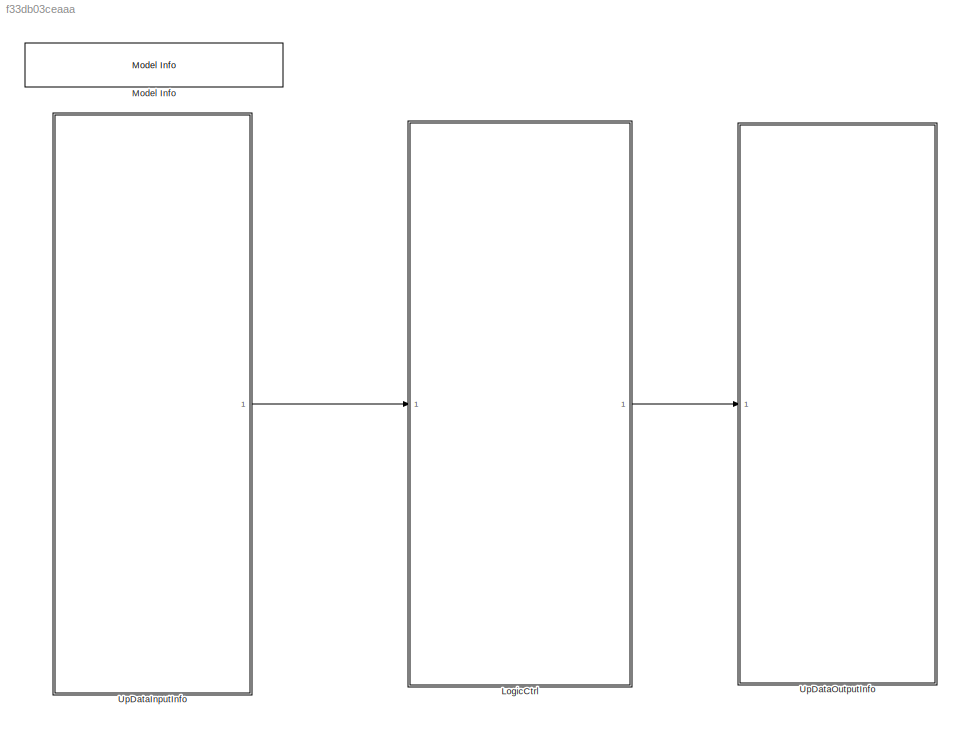
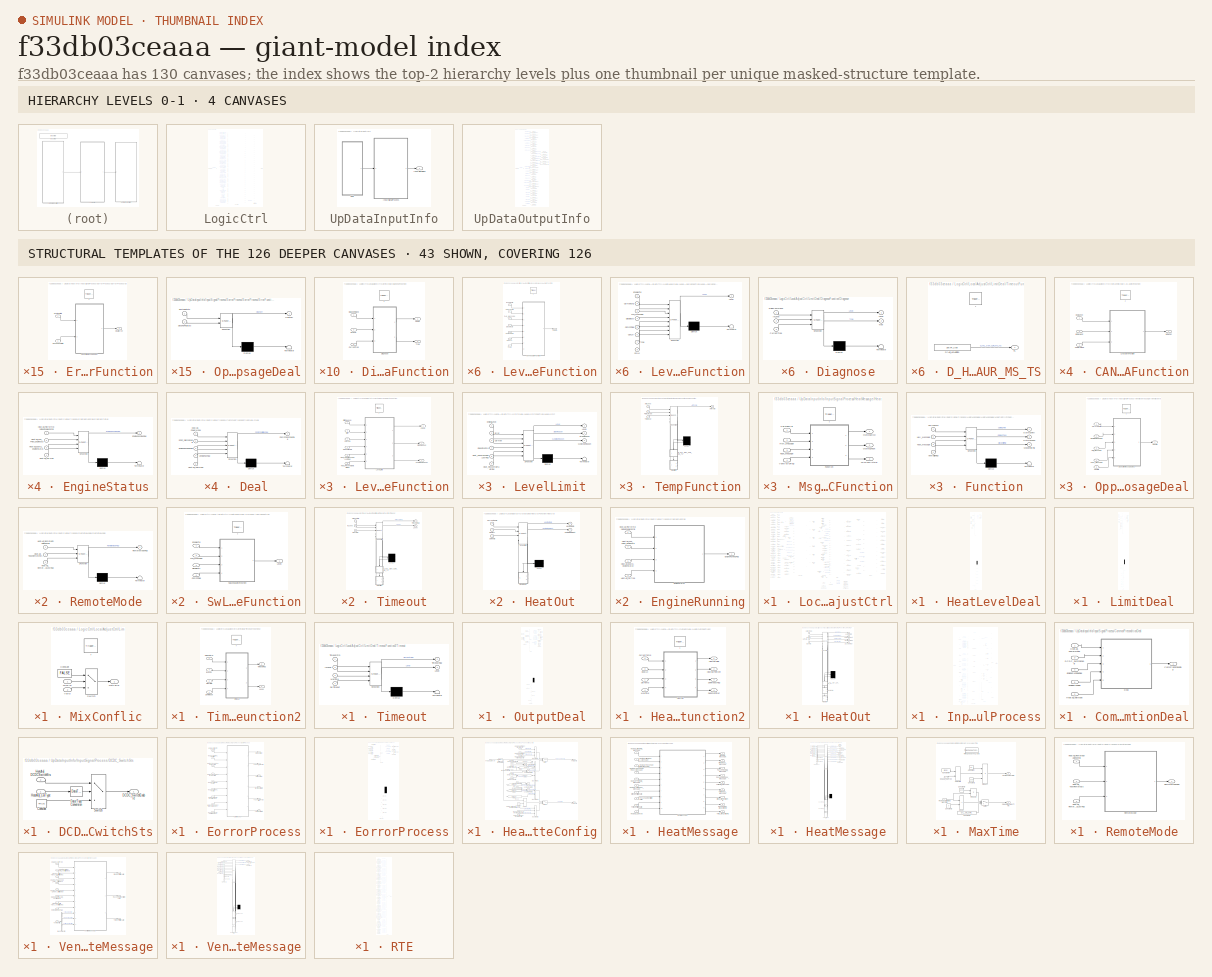
[diagram: thumbnail index - top-2 hierarchy levels (4 canvases) + 43 structural-template representatives of the remaining 126 canvases]
MODEL slx_f33db03ceaaa
KIND model
BLOCK [SubSystem] LogicCtrl
  Ports = [1, 1]
  Priority = 2
  RTWFcnNameOpts = Use subsystem name
  RTWSystemCode = Nonreusable function
  RequestExecContextInheritance = off
  TreatAsAtomicUnit = on
BLOCK [BusSelector] LogicCtrl/Bus Selector
  OutputAsBus = off
  OutputSignals = Rte_SignalBUs.HeatAdj_D_SimuIndex_DRHeat,Rte_SignalBUs.HeatAdj_D_SimuIndex_PAHeat,Rte_SignalBUs.HeatAdj_D_SimuIndex_ThirdHeat,Rte_SignalBUs.HeatAdj_DrHeatNtcAdc,Rte_SignalBUs.HeatAdj_PaHeatNtcAdc,Rte_SignalBUs.HeatAdj_ThirdHeatNtcAdc,Rte_SignalBUs.HeatAdj_CarType,Rte_SignalBUs.HeatAdj_RemoteEnableConfig,Rte_SignalBUs.HeatAdj_TboxRemoteSts,Rte_SignalBUs.HeatAdj_RemoteMsgLostFlag,Rte_SignalBUs.HeatA...<+1585ch>
  Ports = [1, 57]
BLOCK [Outport] LogicCtrl/HeatOut
  IconDisplay = Port number
BLOCK [Inport] LogicCtrl/InputSignalBus
  IconDisplay = Port number
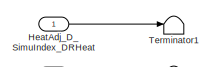
[diagram: LogicCtrl/LocalAdjustCtrl - part 1/6, top left region]
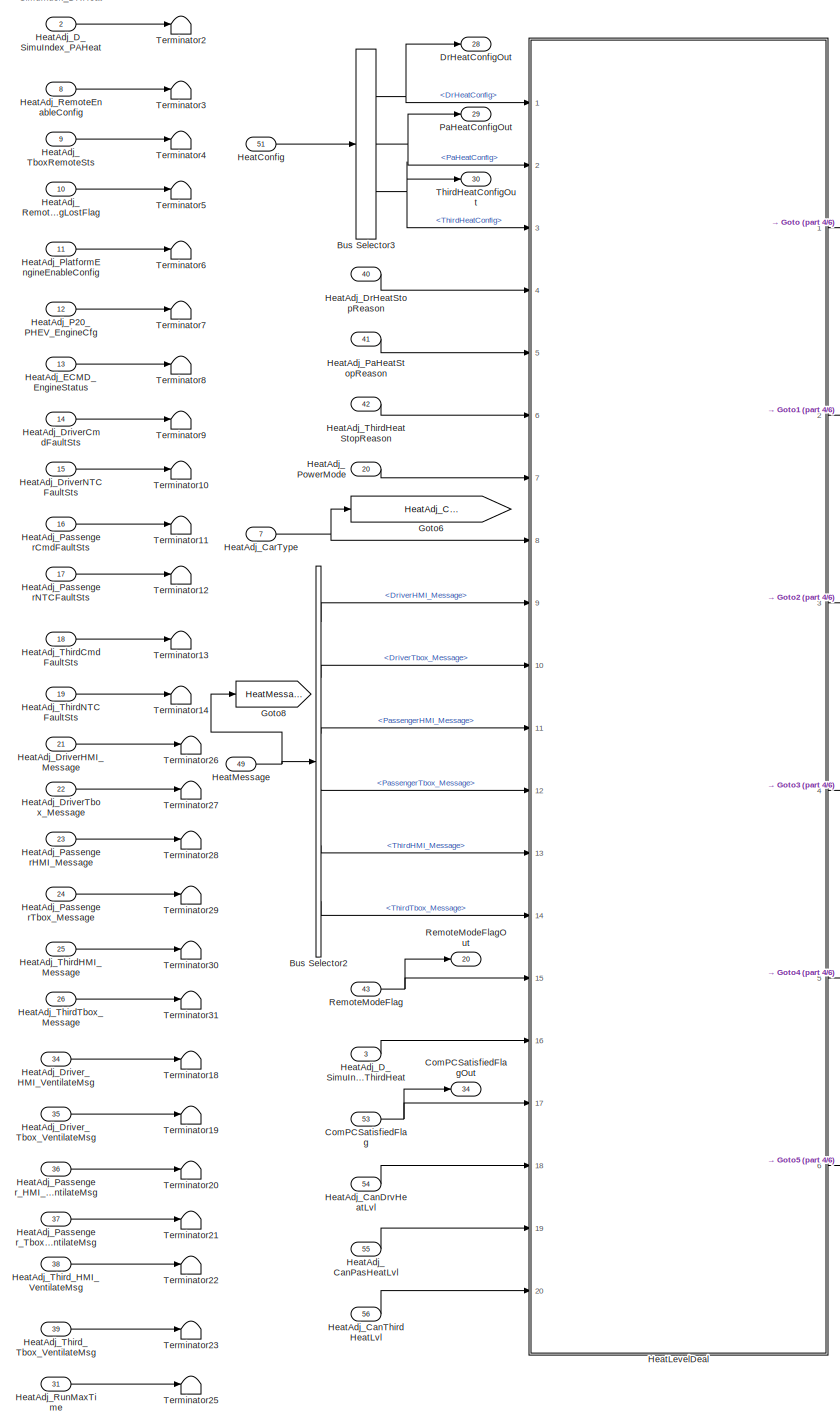
[diagram: LogicCtrl/LocalAdjustCtrl - part 2/6, left side, full height]
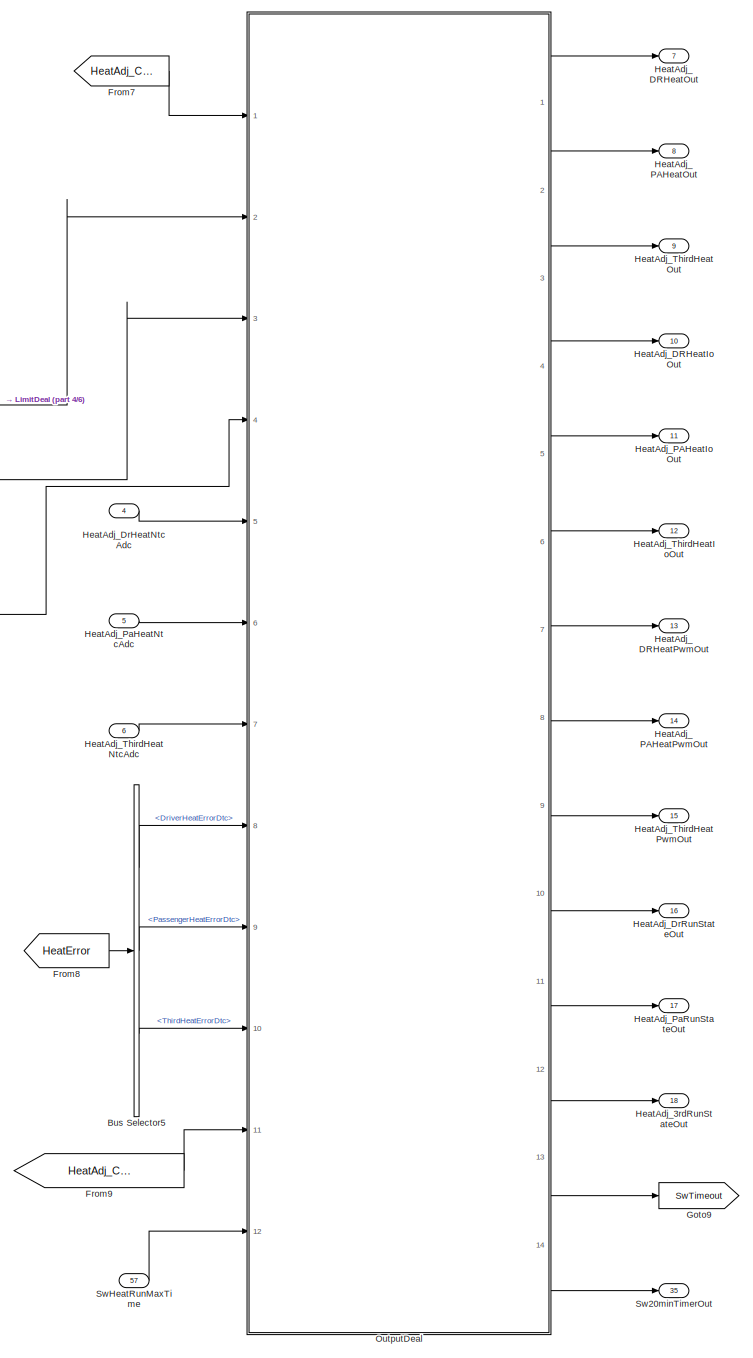
[diagram: LogicCtrl/LocalAdjustCtrl - part 3/6, right side, full height]
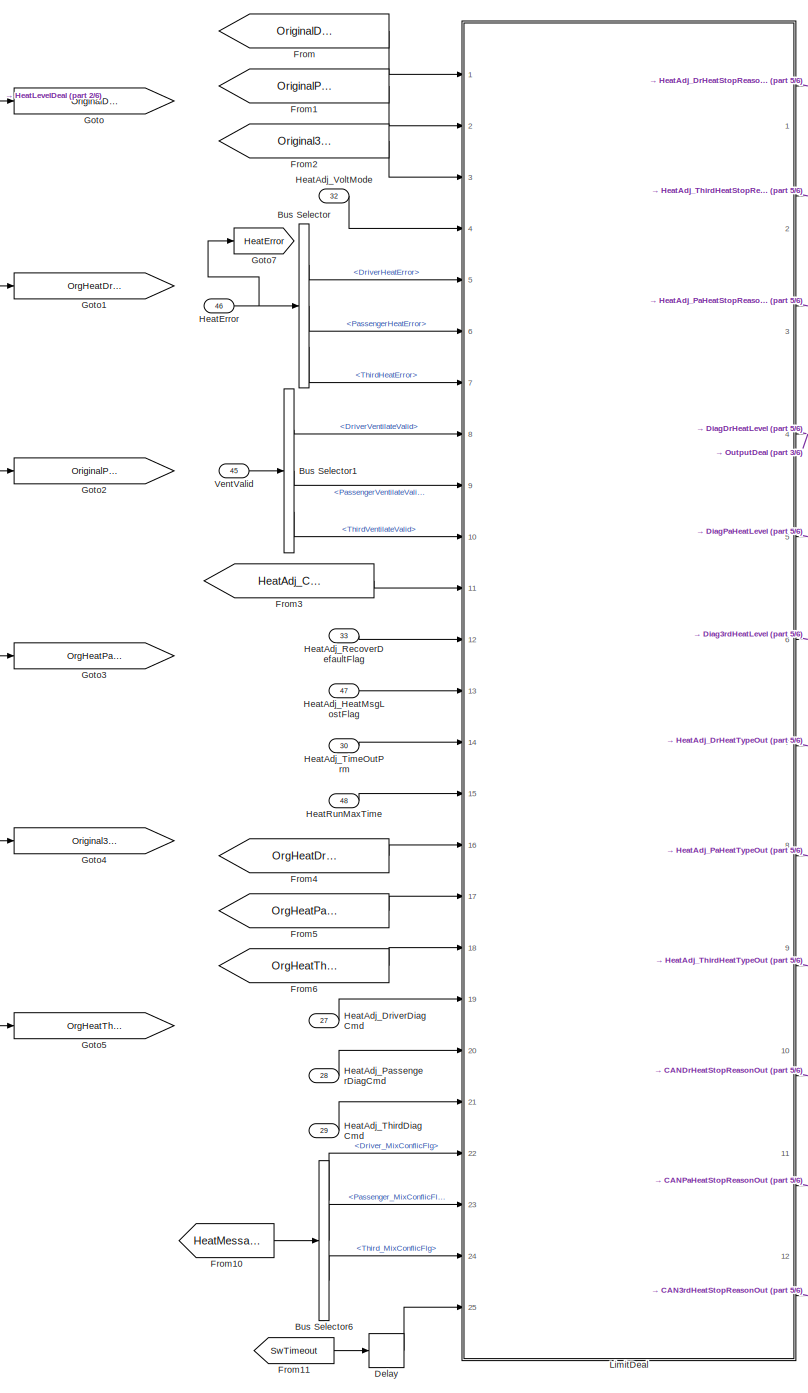
[diagram: LogicCtrl/LocalAdjustCtrl - part 4/6, center side, full height]
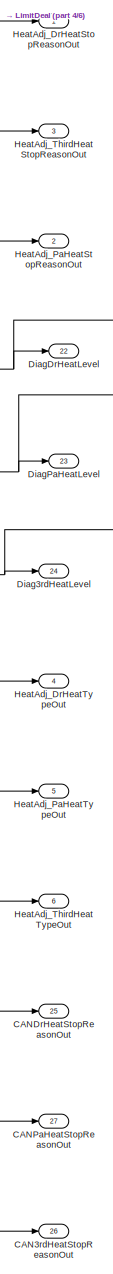
[diagram: LogicCtrl/LocalAdjustCtrl - part 5/6, right side, full height]
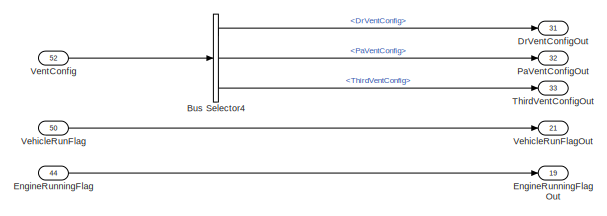
[diagram: LogicCtrl/LocalAdjustCtrl - part 6/6, bottom center region]
BLOCK [SubSystem] LogicCtrl/LocalAdjustCtrl
  AttributesFormatString = %<Description>
  Description = 加热逻辑处理
  Ports = [57, 35]
  RequestExecContextInheritance = off
BLOCK [BusSelector] LogicCtrl/LocalAdjustCtrl/Bus Selector
  OutputAsBus = off
  OutputSignals = DriverHeatError,PassengerHeatError,ThirdHeatError
  Ports = [1, 3]
BLOCK [BusSelector] LogicCtrl/LocalAdjustCtrl/Bus Selector1
  OutputAsBus = off
  OutputSignals = DriverVentilateValid,PassengerVentilateValid,ThirdVentilateValid
  Ports = [1, 3]
BLOCK [BusSelector] LogicCtrl/LocalAdjustCtrl/Bus Selector2
  OutputAsBus = off
  OutputSignals = DriverHMI_Message,DriverTbox_Message,PassengerHMI_Message,PassengerTbox_Message,ThirdHMI_Message,ThirdTbox_Message
  Ports = [1, 6]
BLOCK [BusSelector] LogicCtrl/LocalAdjustCtrl/Bus Selector3
  OutputAsBus = off
  OutputSignals = DrHeatConfig,PaHeatConfig,ThirdHeatConfig
  Ports = [1, 3]
BLOCK [BusSelector] LogicCtrl/LocalAdjustCtrl/Bus Selector4
  OutputAsBus = off
  OutputSignals = DrVentConfig,PaVentConfig,ThirdVentConfig
  Ports = [1, 3]
BLOCK [BusSelector] LogicCtrl/LocalAdjustCtrl/Bus Selector5
  OutputAsBus = off
  OutputSignals = DriverHeatErrorDtc,PassengerHeatErrorDtc,ThirdHeatErrorDtc
  Ports = [1, 3]
BLOCK [BusSelector] LogicCtrl/LocalAdjustCtrl/Bus Selector6
  OutputAsBus = off
  OutputSignals = Driver_MixConflicFlg,Passenger_MixConflicFlg,Third_MixConflicFlg
  Ports = [1, 3]
BLOCK [Outport] LogicCtrl/LocalAdjustCtrl/CAN3rdHeatStopReasonOut
  IconDisplay = Port number
  Port = 26
BLOCK [Outport] LogicCtrl/LocalAdjustCtrl/CANDrHeatStopReasonOut
  IconDisplay = Port number
  Port = 25
BLOCK [Outport] LogicCtrl/LocalAdjustCtrl/CANPaHeatStopReasonOut
  IconDisplay = Port number
  Port = 27
BLOCK [Inport] LogicCtrl/LocalAdjustCtrl/ComPCSatisfiedFlag
  IconDisplay = Port number
  Port = 53
BLOCK [Outport] LogicCtrl/LocalAdjustCtrl/ComPCSatisfiedFlagOut
  IconDisplay = Port number
  Port = 34
BLOCK [Delay] LogicCtrl/LocalAdjustCtrl/Delay
  DelayLength = 1
  InitialCondition = 0
  InputPortMap = u0
  Ports = [1, 1]
BLOCK [Outport] LogicCtrl/LocalAdjustCtrl/Diag3rdHeatLevel
  IconDisplay = Port number
  Port = 24
BLOCK [Outport] LogicCtrl/LocalAdjustCtrl/DiagDrHeatLevel
  IconDisplay = Port number
  Port = 22
BLOCK [Outport] LogicCtrl/LocalAdjustCtrl/DiagPaHeatLevel
  IconDisplay = Port number
  Port = 23
BLOCK [Outport] LogicCtrl/LocalAdjustCtrl/DrHeatConfigOut
  IconDisplay = Port number
  Port = 28
BLOCK [Outport] LogicCtrl/LocalAdjustCtrl/DrVentConfigOut
  IconDisplay = Port number
  Port = 31
BLOCK [Inport] LogicCtrl/LocalAdjustCtrl/EngineRunningFlag
  IconDisplay = Port number
  Port = 44
BLOCK [Outport] LogicCtrl/LocalAdjustCtrl/EngineRunningFlagOut
  IconDisplay = Port number
  Port = 19
BLOCK [From] LogicCtrl/LocalAdjustCtrl/From
  GotoTag = OriginalDrHeatLevel
BLOCK [From] LogicCtrl/LocalAdjustCtrl/From1
  GotoTag = OriginalPaHeatLevel
BLOCK [From] LogicCtrl/LocalAdjustCtrl/From10
  GotoTag = HeatMessage
BLOCK [From] LogicCtrl/LocalAdjustCtrl/From11
  GotoTag = SwTimeout
BLOCK [From] LogicCtrl/LocalAdjustCtrl/From2
  GotoTag = Original3rdHeatLevel
BLOCK [From] LogicCtrl/LocalAdjustCtrl/From3
  GotoTag = HeatAdj_CarType
BLOCK [From] LogicCtrl/LocalAdjustCtrl/From4
  GotoTag = OrgHeatDriverRunType
BLOCK [From] LogicCtrl/LocalAdjustCtrl/From5
  GotoTag = OrgHeatPassengerRunType
BLOCK [From] LogicCtrl/LocalAdjustCtrl/From6
  GotoTag = OrgHeatThirdRunType
BLOCK [From] LogicCtrl/LocalAdjustCtrl/From7
  GotoTag = HeatAdj_CarType
BLOCK [From] LogicCtrl/LocalAdjustCtrl/From8
  GotoTag = HeatError
BLOCK [From] LogicCtrl/LocalAdjustCtrl/From9
  GotoTag = HeatAdj_CarType
BLOCK [Goto] LogicCtrl/LocalAdjustCtrl/Goto
  GotoTag = OriginalDrHeatLevel
BLOCK [Goto] LogicCtrl/LocalAdjustCtrl/Goto1
  GotoTag = OrgHeatDriverRunType
BLOCK [Goto] LogicCtrl/LocalAdjustCtrl/Goto2
  GotoTag = OriginalPaHeatLevel
BLOCK [Goto] LogicCtrl/LocalAdjustCtrl/Goto3
  GotoTag = OrgHeatPassengerRunType
BLOCK [Goto] LogicCtrl/LocalAdjustCtrl/Goto4
  GotoTag = Original3rdHeatLevel
BLOCK [Goto] LogicCtrl/LocalAdjustCtrl/Goto5
  GotoTag = OrgHeatThirdRunType
BLOCK [Goto] LogicCtrl/LocalAdjustCtrl/Goto6
  GotoTag = HeatAdj_CarType
BLOCK [Goto] LogicCtrl/LocalAdjustCtrl/Goto7
  GotoTag = HeatError
BLOCK [Goto] LogicCtrl/LocalAdjustCtrl/Goto8
  GotoTag = HeatMessage
BLOCK [Goto] LogicCtrl/LocalAdjustCtrl/Goto9
  GotoTag = SwTimeout
BLOCK [Outport] LogicCtrl/LocalAdjustCtrl/HeatAdj_3rdRunStateOut
  IconDisplay = Port number
  Port = 18
BLOCK [Inport] LogicCtrl/LocalAdjustCtrl/HeatAdj_CanDrvHeatLvl
  IconDisplay = Port number
  Port = 54
BLOCK [Inport] LogicCtrl/LocalAdjustCtrl/HeatAdj_CanPasHeatLvl
  IconDisplay = Port number
  Port = 55
BLOCK [Inport] LogicCtrl/LocalAdjustCtrl/HeatAdj_CanThirdHeatLvl
  IconDisplay = Port number
  Port = 56
BLOCK [Inport] LogicCtrl/LocalAdjustCtrl/HeatAdj_CarType
  IconDisplay = Port number
  Port = 7
BLOCK [Outport] LogicCtrl/LocalAdjustCtrl/HeatAdj_DRHeatIoOut
  IconDisplay = Port number
  Port = 10
BLOCK [Outport] LogicCtrl/LocalAdjustCtrl/HeatAdj_DRHeatOut
  IconDisplay = Port number
  Port = 7
BLOCK [Outport] LogicCtrl/LocalAdjustCtrl/HeatAdj_DRHeatPwmOut
  IconDisplay = Port number
  Port = 13
BLOCK [Inport] LogicCtrl/LocalAdjustCtrl/HeatAdj_D_SimuIndex_DRHeat
  IconDisplay = Port number
BLOCK [Inport] LogicCtrl/LocalAdjustCtrl/HeatAdj_D_SimuIndex_PAHeat
  IconDisplay = Port number
  Port = 2
BLOCK [Inport] LogicCtrl/LocalAdjustCtrl/HeatAdj_D_SimuIndex_ThirdHeat
  IconDisplay = Port number
  Port = 3
BLOCK [Inport] LogicCtrl/LocalAdjustCtrl/HeatAdj_DrHeatNtcAdc
  IconDisplay = Port number
  Port = 4
BLOCK [Inport] LogicCtrl/LocalAdjustCtrl/HeatAdj_DrHeatStopReason
  IconDisplay = Port number
  Port = 40
BLOCK [Outport] LogicCtrl/LocalAdjustCtrl/HeatAdj_DrHeatStopReasonOut
  IconDisplay = Port number
BLOCK [Outport] LogicCtrl/LocalAdjustCtrl/HeatAdj_DrHeatTypeOut
  IconDisplay = Port number
  Port = 4
BLOCK [Outport] LogicCtrl/LocalAdjustCtrl/HeatAdj_DrRunStateOut
  IconDisplay = Port number
  Port = 16
BLOCK [Inport] LogicCtrl/LocalAdjustCtrl/HeatAdj_DriverCmdFaultSts
  IconDisplay = Port number
  Port = 14
BLOCK [Inport] LogicCtrl/LocalAdjustCtrl/HeatAdj_DriverDiagCmd
  IconDisplay = Port number
  Port = 27
BLOCK [Inport] LogicCtrl/LocalAdjustCtrl/HeatAdj_DriverHMI_Message
  IconDisplay = Port number
  Port = 21
BLOCK [Inport] LogicCtrl/LocalAdjustCtrl/HeatAdj_DriverNTCFaultSts
  IconDisplay = Port number
  Port = 15
BLOCK [Inport] LogicCtrl/LocalAdjustCtrl/HeatAdj_DriverTbox_Message
  IconDisplay = Port number
  Port = 22
BLOCK [Inport] LogicCtrl/LocalAdjustCtrl/HeatAdj_Driver_HMI_VentilateMsg
  IconDisplay = Port number
  Port = 34
BLOCK [Inport] LogicCtrl/LocalAdjustCtrl/HeatAdj_Driver_Tbox_VentilateMsg
  IconDisplay = Port number
  Port = 35
BLOCK [Inport] LogicCtrl/LocalAdjustCtrl/HeatAdj_ECMD_EngineStatus
  IconDisplay = Port number
  Port = 13
BLOCK [Inport] LogicCtrl/LocalAdjustCtrl/HeatAdj_HeatMsgLostFlag
  IconDisplay = Port number
  Port = 47
BLOCK [Inport] LogicCtrl/LocalAdjustCtrl/HeatAdj_P20_PHEV_EngineCfg
  IconDisplay = Port number
  Port = 12
BLOCK [Outport] LogicCtrl/LocalAdjustCtrl/HeatAdj_PAHeatIoOut
  IconDisplay = Port number
  Port = 11
BLOCK [Outport] LogicCtrl/LocalAdjustCtrl/HeatAdj_PAHeatOut
  IconDisplay = Port number
  Port = 8
BLOCK [Outport] LogicCtrl/LocalAdjustCtrl/HeatAdj_PAHeatPwmOut
  IconDisplay = Port number
  Port = 14
BLOCK [Inport] LogicCtrl/LocalAdjustCtrl/HeatAdj_PaHeatNtcAdc
  IconDisplay = Port number
  Port = 5
BLOCK [Inport] LogicCtrl/LocalAdjustCtrl/HeatAdj_PaHeatStopReason
  IconDisplay = Port number
  Port = 41
BLOCK [Outport] LogicCtrl/LocalAdjustCtrl/HeatAdj_PaHeatStopReasonOut
  IconDisplay = Port number
  Port = 2
BLOCK [Outport] LogicCtrl/LocalAdjustCtrl/HeatAdj_PaHeatTypeOut
  IconDisplay = Port number
  Port = 5
BLOCK [Outport] LogicCtrl/LocalAdjustCtrl/HeatAdj_PaRunStateOut
  IconDisplay = Port number
  Port = 17
BLOCK [Inport] LogicCtrl/LocalAdjustCtrl/HeatAdj_PassengerCmdFaultSts
  IconDisplay = Port number
  Port = 16
BLOCK [Inport] LogicCtrl/LocalAdjustCtrl/HeatAdj_PassengerDiagCmd
  IconDisplay = Port number
  Port = 28
BLOCK [Inport] LogicCtrl/LocalAdjustCtrl/HeatAdj_PassengerHMI_Message
  IconDisplay = Port number
  Port = 23
BLOCK [Inport] LogicCtrl/LocalAdjustCtrl/HeatAdj_PassengerNTCFaultSts
  IconDisplay = Port number
  Port = 17
BLOCK [Inport] LogicCtrl/LocalAdjustCtrl/HeatAdj_PassengerTbox_Message
  IconDisplay = Port number
  Port = 24
BLOCK [Inport] LogicCtrl/LocalAdjustCtrl/HeatAdj_Passenger_HMI_VentilateMsg
  IconDisplay = Port number
  Port = 36
BLOCK [Inport] LogicCtrl/LocalAdjustCtrl/HeatAdj_Passenger_Tbox_VentilateMsg
  IconDisplay = Port number
  Port = 37
BLOCK [Inport] LogicCtrl/LocalAdjustCtrl/HeatAdj_PlatformEngineEnableConfig
  IconDisplay = Port number
  Port = 11
BLOCK [Inport] LogicCtrl/LocalAdjustCtrl/HeatAdj_PowerMode
  IconDisplay = Port number
  Port = 20
BLOCK [Inport] LogicCtrl/LocalAdjustCtrl/HeatAdj_RecoverDefaultFlag
  IconDisplay = Port number
  Port = 33
BLOCK [Inport] LogicCtrl/LocalAdjustCtrl/HeatAdj_RemoteEnableConfig
  IconDisplay = Port number
  Port = 8
BLOCK [Inport] LogicCtrl/LocalAdjustCtrl/HeatAdj_RemoteMsgLostFlag
  IconDisplay = Port number
  Port = 10
BLOCK [Inport] LogicCtrl/LocalAdjustCtrl/HeatAdj_RunMaxTime
  IconDisplay = Port number
  Port = 31
BLOCK [Inport] LogicCtrl/LocalAdjustCtrl/HeatAdj_TboxRemoteSts
  IconDisplay = Port number
  Port = 9
BLOCK [Inport] LogicCtrl/LocalAdjustCtrl/HeatAdj_ThirdCmdFaultSts
  IconDisplay = Port number
  Port = 18
BLOCK [Inport] LogicCtrl/LocalAdjustCtrl/HeatAdj_ThirdDiagCmd
  IconDisplay = Port number
  Port = 29
BLOCK [Inport] LogicCtrl/LocalAdjustCtrl/HeatAdj_ThirdHMI_Message
  IconDisplay = Port number
  Port = 25
BLOCK [Outport] LogicCtrl/LocalAdjustCtrl/HeatAdj_ThirdHeatIoOut
  IconDisplay = Port number
  Port = 12
BLOCK [Inport] LogicCtrl/LocalAdjustCtrl/HeatAdj_ThirdHeatNtcAdc
  IconDisplay = Port number
  Port = 6
BLOCK [Outport] LogicCtrl/LocalAdjustCtrl/HeatAdj_ThirdHeatOut
  IconDisplay = Port number
  Port = 9
BLOCK [Outport] LogicCtrl/LocalAdjustCtrl/HeatAdj_ThirdHeatPwmOut
  IconDisplay = Port number
  Port = 15
BLOCK [Inport] LogicCtrl/LocalAdjustCtrl/HeatAdj_ThirdHeatStopReason
  IconDisplay = Port number
  Port = 42
BLOCK [Outport] LogicCtrl/LocalAdjustCtrl/HeatAdj_ThirdHeatStopReasonOut
  IconDisplay = Port number
  Port = 3
BLOCK [Outport] LogicCtrl/LocalAdjustCtrl/HeatAdj_ThirdHeatTypeOut
  IconDisplay = Port number
  Port = 6
BLOCK [Inport] LogicCtrl/LocalAdjustCtrl/HeatAdj_ThirdNTCFaultSts
  IconDisplay = Port number
  Port = 19
BLOCK [Inport] LogicCtrl/LocalAdjustCtrl/HeatAdj_ThirdTbox_Message
  IconDisplay = Port number
  Port = 26
BLOCK [Inport] LogicCtrl/LocalAdjustCtrl/HeatAdj_Third_HMI_VentilateMsg
  IconDisplay = Port number
  Port = 38
BLOCK [Inport] LogicCtrl/LocalAdjustCtrl/HeatAdj_Third_Tbox_VentilateMsg
  IconDisplay = Port number
  Port = 39
BLOCK [Inport] LogicCtrl/LocalAdjustCtrl/HeatAdj_TimeOutPrm
  IconDisplay = Port number
  Port = 30
BLOCK [Inport] LogicCtrl/LocalAdjustCtrl/HeatAdj_VoltMode
  IconDisplay = Port number
  Port = 32
BLOCK [Inport] LogicCtrl/LocalAdjustCtrl/HeatConfig
  IconDisplay = Port number
  Port = 51
BLOCK [Inport] LogicCtrl/LocalAdjustCtrl/HeatError
  IconDisplay = Port number
  Port = 46
BLOCK [SubSystem] LogicCtrl/LocalAdjustCtrl/HeatLevelDeal
  ErrorFcn = Stateflow.Translate.translate
  PermitHierarchicalResolution = ExplicitOnly
  Ports = [20, 6]
  RequestExecContextInheritance = off
  SFBlockType = Chart
  TreatAsAtomicUnit = on
BLOCK [Demux] LogicCtrl/LocalAdjustCtrl/HeatLevelDeal/ Demux 
  Outputs = 9
  Ports = [1, 9]
BLOCK [S-Function] LogicCtrl/LocalAdjustCtrl/HeatLevelDeal/ SFunction 
  EnableBusSupport = on
  FunctionName = sf_sfun
  Parameters = FALSE,TRUE
  PortCounts = [29 60]
  Ports = [29, 60]
  SFcnIsStateOwnerBlock = off
  SFunctionDeploymentMode = off
  Tag = Stateflow S-Function Appl_HeatAdj_CtrlModel 3
BLOCK [SubSystem] LogicCtrl/LocalAdjustCtrl/HeatLevelDeal/CANAquireFunction
  Ports = [3, 1, 0, 1]
  PreDeleteFcn = Stateflow.SLINSF.SimulinkMan.removePreDeleteFcn
  RequestExecContextInheritance = off
  UndoDeleteFcn = Stateflow.SLINSF.SimulinkMan.restorePreDeleteFcn
BLOCK [SubSystem] LogicCtrl/LocalAdjustCtrl/HeatLevelDeal/CANAquireFunction/CANAquireFunction
  ErrorFcn = Stateflow.Translate.translate
  PermitHierarchicalResolution = ExplicitOnly
  Ports = [3, 1]
  RequestExecContextInheritance = off
  SFBlockType = Chart
  TreatAsAtomicUnit = on
BLOCK [Demux] LogicCtrl/LocalAdjustCtrl/HeatLevelDeal/CANAquireFunction/CANAquireFunction/ Demux 
  Outputs = 1
  Ports = [1, 1]
BLOCK [S-Function] LogicCtrl/LocalAdjustCtrl/HeatLevelDeal/CANAquireFunction/CANAquireFunction/ SFunction 
  EnableBusSupport = off
  FunctionName = sf_sfun
  PortCounts = [3 2]
  Ports = [3, 2]
  SFcnIsStateOwnerBlock = off
  SFunctionDeploymentMode = off
  Tag = Stateflow S-Function Appl_HeatAdj_CtrlModel 45
BLOCK [Terminator] LogicCtrl/LocalAdjustCtrl/HeatLevelDeal/CANAquireFunction/CANAquireFunction/ Terminator 
BLOCK [Inport] LogicCtrl/LocalAdjustCtrl/HeatLevelDeal/CANAquireFunction/CANAquireFunction/HeatLevel
  IconDisplay = Port number
BLOCK [Outport] LogicCtrl/LocalAdjustCtrl/HeatLevelDeal/CANAquireFunction/CANAquireFunction/IVISwCan
  IconDisplay = Port number
BLOCK [Inport] LogicCtrl/LocalAdjustCtrl/HeatLevelDeal/CANAquireFunction/CANAquireFunction/IVISwsHeat
  IconDisplay = Port number
  Port = 2
BLOCK [Inport] LogicCtrl/LocalAdjustCtrl/HeatLevelDeal/CANAquireFunction/CANAquireFunction/PowerMode
  IconDisplay = Port number
  Port = 3
BLOCK [Inport] LogicCtrl/LocalAdjustCtrl/HeatLevelDeal/CANAquireFunction/HeatLevel
  IconDisplay = Port number
BLOCK [Outport] LogicCtrl/LocalAdjustCtrl/HeatLevelDeal/CANAquireFunction/IVISwCan 
  IconDisplay = Port number
BLOCK [Inport] LogicCtrl/LocalAdjustCtrl/HeatLevelDeal/CANAquireFunction/IVISwsHeat
  IconDisplay = Port number
  Port = 2
BLOCK [Inport] LogicCtrl/LocalAdjustCtrl/HeatLevelDeal/CANAquireFunction/PowerMode
  IconDisplay = Port number
  Port = 3
BLOCK [TriggerPort] LogicCtrl/LocalAdjustCtrl/HeatLevelDeal/CANAquireFunction/f
  CopyFcn = Stateflow.SLINSF.SimulinkMan.removeBlockPreDeleteFcn
  Ports = []
  PreDeleteFcn = Stateflow.SLINSF.SimulinkMan.unsafePredeleteFcn
  StatesWhenEnabling = held
  TriggerType = function-call
  VariantControl = (inherit)
BLOCK [Inport] LogicCtrl/LocalAdjustCtrl/HeatLevelDeal/ComPCSatisfiedFlag
  IconDisplay = Port number
  Port = 17
BLOCK [Inport] LogicCtrl/LocalAdjustCtrl/HeatLevelDeal/DrHeatConfig
  IconDisplay = Port number
BLOCK [Inport] LogicCtrl/LocalAdjustCtrl/HeatLevelDeal/DriverHMI_Message
  IconDisplay = Port number
  Port = 9
BLOCK [Inport] LogicCtrl/LocalAdjustCtrl/HeatLevelDeal/DriverTbox_Message
  IconDisplay = Port number
  Port = 10
BLOCK [Inport] LogicCtrl/LocalAdjustCtrl/HeatLevelDeal/HeatAdj_CanDrvHeatLvl
  IconDisplay = Port number
  Port = 18
BLOCK [Inport] LogicCtrl/LocalAdjustCtrl/HeatLevelDeal/HeatAdj_CanPasHeatLvl
  IconDisplay = Port number
  Port = 19
BLOCK [Inport] LogicCtrl/LocalAdjustCtrl/HeatLevelDeal/HeatAdj_CanThirdHeatLvl
  IconDisplay = Port number
  Port = 20
BLOCK [Inport] LogicCtrl/LocalAdjustCtrl/HeatLevelDeal/HeatAdj_CarType
  IconDisplay = Port number
  Port = 8
BLOCK [Inport] LogicCtrl/LocalAdjustCtrl/HeatLevelDeal/HeatAdj_D_SimuIndex_ThirdHeat
  IconDisplay = Port number
  Port = 16
BLOCK [Inport] LogicCtrl/LocalAdjustCtrl/HeatLevelDeal/HeatAdj_DrHeatStopReason
  IconDisplay = Port number
  Port = 4
BLOCK [Inport] LogicCtrl/LocalAdjustCtrl/HeatLevelDeal/HeatAdj_PaHeatStopReason
  IconDisplay = Port number
  Port = 5
BLOCK [Inport] LogicCtrl/LocalAdjustCtrl/HeatLevelDeal/HeatAdj_PowerMode
  IconDisplay = Port number
  Port = 7
BLOCK [Inport] LogicCtrl/LocalAdjustCtrl/HeatLevelDeal/HeatAdj_ThirdHeatStopReason
  IconDisplay = Port number
  Port = 6
BLOCK [SubSystem] LogicCtrl/LocalAdjustCtrl/HeatLevelDeal/LevelAquireFunction
  Ports = [7, 1, 0, 1]
  PreDeleteFcn = Stateflow.SLINSF.SimulinkMan.removePreDeleteFcn
  RequestExecContextInheritance = off
  UndoDeleteFcn = Stateflow.SLINSF.SimulinkMan.restorePreDeleteFcn
BLOCK [Inport] LogicCtrl/LocalAdjustCtrl/HeatLevelDeal/LevelAquireFunction/CAN_Message
  IconDisplay = Port number
  Port = 3
BLOCK [Inport] LogicCtrl/LocalAdjustCtrl/HeatLevelDeal/LevelAquireFunction/CanLvl
  IconDisplay = Port number
  OutDataTypeStr = uint8
  Port = 6
BLOCK [Inport] LogicCtrl/LocalAdjustCtrl/HeatLevelDeal/LevelAquireFunction/CarTypeCfg
  IconDisplay = Port number
  Port = 2
BLOCK [Inport] LogicCtrl/LocalAdjustCtrl/HeatLevelDeal/LevelAquireFunction/ComPCFlag
  IconDisplay = Port number
  OutDataTypeStr = uint8
  Port = 5
BLOCK [Inport] LogicCtrl/LocalAdjustCtrl/HeatLevelDeal/LevelAquireFunction/DisableSts
  IconDisplay = Port number
  Port = 4
BLOCK [Inport] LogicCtrl/LocalAdjustCtrl/HeatLevelDeal/LevelAquireFunction/EnableCfg
  IconDisplay = Port number
BLOCK [Outport] LogicCtrl/LocalAdjustCtrl/HeatLevelDeal/LevelAquireFunction/Level 
  IconDisplay = Port number
BLOCK [SubSystem] LogicCtrl/LocalAdjustCtrl/HeatLevelDeal/LevelAquireFunction/LevelAquireFunction
  ErrorFcn = Stateflow.Translate.translate
  PermitHierarchicalResolution = ExplicitOnly
  Ports = [8, 1]
  RequestExecContextInheritance = off
  SFBlockType = Chart
  TreatAsAtomicUnit = on
BLOCK [Demux] LogicCtrl/LocalAdjustCtrl/HeatLevelDeal/LevelAquireFunction/LevelAquireFunction/ Demux 
  Outputs = 1
  Ports = [1, 1]
BLOCK [S-Function] LogicCtrl/LocalAdjustCtrl/HeatLevelDeal/LevelAquireFunction/LevelAquireFunction/ SFunction 
  EnableBusSupport = off
  FunctionName = sf_sfun
  Parameters = FALSE,TRUE
  PortCounts = [8 2]
  Ports = [8, 2]
  SFcnIsStateOwnerBlock = off
  SFunctionDeploymentMode = off
  Tag = Stateflow S-Function Appl_HeatAdj_CtrlModel 41
BLOCK [Terminator] LogicCtrl/LocalAdjustCtrl/HeatLevelDeal/LevelAquireFunction/LevelAquireFunction/ Terminator 
BLOCK [Inport] LogicCtrl/LocalAdjustCtrl/HeatLevelDeal/LevelAquireFunction/LevelAquireFunction/CAN_Message
  IconDisplay = Port number
  Port = 3
BLOCK [Inport] LogicCtrl/LocalAdjustCtrl/HeatLevelDeal/LevelAquireFunction/LevelAquireFunction/CanLvl
  IconDisplay = Port number
  Port = 6
BLOCK [Inport] LogicCtrl/LocalAdjustCtrl/HeatLevelDeal/LevelAquireFunction/LevelAquireFunction/CarTypeCfg
  IconDisplay = Port number
  Port = 2
BLOCK [Inport] LogicCtrl/LocalAdjustCtrl/HeatLevelDeal/LevelAquireFunction/LevelAquireFunction/ComPCFlag
  IconDisplay = Port number
  Port = 5
BLOCK [Inport] LogicCtrl/LocalAdjustCtrl/HeatLevelDeal/LevelAquireFunction/LevelAquireFunction/CurLvl
  IconDisplay = Port number
  Port = 8
BLOCK [Inport] LogicCtrl/LocalAdjustCtrl/HeatLevelDeal/LevelAquireFunction/LevelAquireFunction/DisableSts
  IconDisplay = Port number
  Port = 4
BLOCK [Inport] LogicCtrl/LocalAdjustCtrl/HeatLevelDeal/LevelAquireFunction/LevelAquireFunction/EnableCfg
  IconDisplay = Port number
BLOCK [Outport] LogicCtrl/LocalAdjustCtrl/HeatLevelDeal/LevelAquireFunction/LevelAquireFunction/Level
  IconDisplay = Port number
BLOCK [Inport] LogicCtrl/LocalAdjustCtrl/HeatLevelDeal/LevelAquireFunction/LevelAquireFunction/Type
  IconDisplay = Port number
  Port = 7
BLOCK [Inport] LogicCtrl/LocalAdjustCtrl/HeatLevelDeal/LevelAquireFunction/Type
  IconDisplay = Port number
  OutDataTypeStr = uint8
  Port = 7
BLOCK [TriggerPort] LogicCtrl/LocalAdjustCtrl/HeatLevelDeal/LevelAquireFunction/f
  CopyFcn = Stateflow.SLINSF.SimulinkMan.removeBlockPreDeleteFcn
  Ports = []
  PreDeleteFcn = Stateflow.SLINSF.SimulinkMan.unsafePredeleteFcn
  StatesWhenEnabling = held
  TriggerType = function-call
  VariantControl = (inherit)
BLOCK [SubSystem] LogicCtrl/LocalAdjustCtrl/HeatLevelDeal/LevelAquireFunction1
  Ports = [7, 1, 0, 1]
  PreDeleteFcn = Stateflow.SLINSF.SimulinkMan.removePreDeleteFcn
  RequestExecContextInheritance = off
  UndoDeleteFcn = Stateflow.SLINSF.SimulinkMan.restorePreDeleteFcn
BLOCK [Inport] LogicCtrl/LocalAdjustCtrl/HeatLevelDeal/LevelAquireFunction1/CAN_Message
  IconDisplay = Port number
  Port = 3
BLOCK [Inport] LogicCtrl/LocalAdjustCtrl/HeatLevelDeal/LevelAquireFunction1/CanLvl
  IconDisplay = Port number
  OutDataTypeStr = uint8
  Port = 6
BLOCK [Inport] LogicCtrl/LocalAdjustCtrl/HeatLevelDeal/LevelAquireFunction1/CarTypeCfg
  IconDisplay = Port number
  Port = 2
BLOCK [Inport] LogicCtrl/LocalAdjustCtrl/HeatLevelDeal/LevelAquireFunction1/ComPCFlag
  IconDisplay = Port number
  OutDataTypeStr = uint8
  Port = 5
BLOCK [Inport] LogicCtrl/LocalAdjustCtrl/HeatLevelDeal/LevelAquireFunction1/DisableSts
  IconDisplay = Port number
  Port = 4
BLOCK [Inport] LogicCtrl/LocalAdjustCtrl/HeatLevelDeal/LevelAquireFunction1/EnableCfg
  IconDisplay = Port number
BLOCK [Outport] LogicCtrl/LocalAdjustCtrl/HeatLevelDeal/LevelAquireFunction1/Level 
  IconDisplay = Port number
BLOCK [SubSystem] LogicCtrl/LocalAdjustCtrl/HeatLevelDeal/LevelAquireFunction1/LevelAquireFunction
  ErrorFcn = Stateflow.Translate.translate
  PermitHierarchicalResolution = ExplicitOnly
  Ports = [8, 1]
  RequestExecContextInheritance = off
  SFBlockType = Chart
  TreatAsAtomicUnit = on
BLOCK [Demux] LogicCtrl/LocalAdjustCtrl/HeatLevelDeal/LevelAquireFunction1/LevelAquireFunction/ Demux 
  Outputs = 1
  Ports = [1, 1]
BLOCK [S-Function] LogicCtrl/LocalAdjustCtrl/HeatLevelDeal/LevelAquireFunction1/LevelAquireFunction/ SFunction 
  EnableBusSupport = off
  FunctionName = sf_sfun
  Parameters = FALSE,TRUE
  PortCounts = [8 2]
  Ports = [8, 2]
  SFcnIsStateOwnerBlock = off
  SFunctionDeploymentMode = off
  Tag = Stateflow S-Function Appl_HeatAdj_CtrlModel 1
BLOCK [Terminator] LogicCtrl/LocalAdjustCtrl/HeatLevelDeal/LevelAquireFunction1/LevelAquireFunction/ Terminator 
BLOCK [Inport] LogicCtrl/LocalAdjustCtrl/HeatLevelDeal/LevelAquireFunction1/LevelAquireFunction/CAN_Message
  IconDisplay = Port number
  Port = 3
BLOCK [Inport] LogicCtrl/LocalAdjustCtrl/HeatLevelDeal/LevelAquireFunction1/LevelAquireFunction/CanLvl
  IconDisplay = Port number
  Port = 6
BLOCK [Inport] LogicCtrl/LocalAdjustCtrl/HeatLevelDeal/LevelAquireFunction1/LevelAquireFunction/CarTypeCfg
  IconDisplay = Port number
  Port = 2
BLOCK [Inport] LogicCtrl/LocalAdjustCtrl/HeatLevelDeal/LevelAquireFunction1/LevelAquireFunction/ComPCFlag
  IconDisplay = Port number
  Port = 5
BLOCK [Inport] LogicCtrl/LocalAdjustCtrl/HeatLevelDeal/LevelAquireFunction1/LevelAquireFunction/CurLvl
  IconDisplay = Port number
  Port = 8
BLOCK [Inport] LogicCtrl/LocalAdjustCtrl/HeatLevelDeal/LevelAquireFunction1/LevelAquireFunction/DisableSts
  IconDisplay = Port number
  Port = 4
BLOCK [Inport] LogicCtrl/LocalAdjustCtrl/HeatLevelDeal/LevelAquireFunction1/LevelAquireFunction/EnableCfg
  IconDisplay = Port number
BLOCK [Outport] LogicCtrl/LocalAdjustCtrl/HeatLevelDeal/LevelAquireFunction1/LevelAquireFunction/Level
  IconDisplay = Port number
BLOCK [Inport] LogicCtrl/LocalAdjustCtrl/HeatLevelDeal/LevelAquireFunction1/LevelAquireFunction/Type
  IconDisplay = Port number
  Port = 7
BLOCK [Inport] LogicCtrl/LocalAdjustCtrl/HeatLevelDeal/LevelAquireFunction1/Type
  IconDisplay = Port number
  OutDataTypeStr = uint8
  Port = 7
BLOCK [TriggerPort] LogicCtrl/LocalAdjustCtrl/HeatLevelDeal/LevelAquireFunction1/f
  CopyFcn = Stateflow.SLINSF.SimulinkMan.removeBlockPreDeleteFcn
  Ports = []
  PreDeleteFcn = Stateflow.SLINSF.SimulinkMan.unsafePredeleteFcn
  StatesWhenEnabling = held
  TriggerType = function-call
  VariantControl = (inherit)
BLOCK [SubSystem] LogicCtrl/LocalAdjustCtrl/HeatLevelDeal/LevelAquireFunction2
  Ports = [7, 1, 0, 1]
  PreDeleteFcn = Stateflow.SLINSF.SimulinkMan.removePreDeleteFcn
  RequestExecContextInheritance = off
  UndoDeleteFcn = Stateflow.SLINSF.SimulinkMan.restorePreDeleteFcn
BLOCK [Inport] LogicCtrl/LocalAdjustCtrl/HeatLevelDeal/LevelAquireFunction2/CAN_Message
  IconDisplay = Port number
  Port = 3
BLOCK [Inport] LogicCtrl/LocalAdjustCtrl/HeatLevelDeal/LevelAquireFunction2/CanLvl
  IconDisplay = Port number
  OutDataTypeStr = uint8
  Port = 6
BLOCK [Inport] LogicCtrl/LocalAdjustCtrl/HeatLevelDeal/LevelAquireFunction2/CarTypeCfg
  IconDisplay = Port number
  Port = 2
BLOCK [Inport] LogicCtrl/LocalAdjustCtrl/HeatLevelDeal/LevelAquireFunction2/ComPCFlag
  IconDisplay = Port number
  OutDataTypeStr = uint8
  Port = 5
BLOCK [Inport] LogicCtrl/LocalAdjustCtrl/HeatLevelDeal/LevelAquireFunction2/DisableSts
  IconDisplay = Port number
  Port = 4
BLOCK [Inport] LogicCtrl/LocalAdjustCtrl/HeatLevelDeal/LevelAquireFunction2/EnableCfg
  IconDisplay = Port number
BLOCK [Outport] LogicCtrl/LocalAdjustCtrl/HeatLevelDeal/LevelAquireFunction2/Level 
  IconDisplay = Port number
BLOCK [SubSystem] LogicCtrl/LocalAdjustCtrl/HeatLevelDeal/LevelAquireFunction2/LevelAquireFunction
  ErrorFcn = Stateflow.Translate.translate
  PermitHierarchicalResolution = ExplicitOnly
  Ports = [8, 1]
  RequestExecContextInheritance = off
  SFBlockType = Chart
  TreatAsAtomicUnit = on
BLOCK [Demux] LogicCtrl/LocalAdjustCtrl/HeatLevelDeal/LevelAquireFunction2/LevelAquireFunction/ Demux 
  Outputs = 1
  Ports = [1, 1]
BLOCK [S-Function] LogicCtrl/LocalAdjustCtrl/HeatLevelDeal/LevelAquireFunction2/LevelAquireFunction/ SFunction 
  EnableBusSupport = off
  FunctionName = sf_sfun
  Parameters = FALSE,TRUE
  PortCounts = [8 2]
  Ports = [8, 2]
  SFcnIsStateOwnerBlock = off
  SFunctionDeploymentMode = off
  Tag = Stateflow S-Function Appl_HeatAdj_CtrlModel 36
BLOCK [Terminator] LogicCtrl/LocalAdjustCtrl/HeatLevelDeal/LevelAquireFunction2/LevelAquireFunction/ Terminator 
BLOCK [Inport] LogicCtrl/LocalAdjustCtrl/HeatLevelDeal/LevelAquireFunction2/LevelAquireFunction/CAN_Message
  IconDisplay = Port number
  Port = 3
BLOCK [Inport] LogicCtrl/LocalAdjustCtrl/HeatLevelDeal/LevelAquireFunction2/LevelAquireFunction/CanLvl
  IconDisplay = Port number
  Port = 6
BLOCK [Inport] LogicCtrl/LocalAdjustCtrl/HeatLevelDeal/LevelAquireFunction2/LevelAquireFunction/CarTypeCfg
  IconDisplay = Port number
  Port = 2
BLOCK [Inport] LogicCtrl/LocalAdjustCtrl/HeatLevelDeal/LevelAquireFunction2/LevelAquireFunction/ComPCFlag
  IconDisplay = Port number
  Port = 5
BLOCK [Inport] LogicCtrl/LocalAdjustCtrl/HeatLevelDeal/LevelAquireFunction2/LevelAquireFunction/CurLvl
  IconDisplay = Port number
  Port = 8
BLOCK [Inport] LogicCtrl/LocalAdjustCtrl/HeatLevelDeal/LevelAquireFunction2/LevelAquireFunction/DisableSts
  IconDisplay = Port number
  Port = 4
BLOCK [Inport] LogicCtrl/LocalAdjustCtrl/HeatLevelDeal/LevelAquireFunction2/LevelAquireFunction/EnableCfg
  IconDisplay = Port number
BLOCK [Outport] LogicCtrl/LocalAdjustCtrl/HeatLevelDeal/LevelAquireFunction2/LevelAquireFunction/Level
  IconDisplay = Port number
BLOCK [Inport] LogicCtrl/LocalAdjustCtrl/HeatLevelDeal/LevelAquireFunction2/LevelAquireFunction/Type
  IconDisplay = Port number
  Port = 7
BLOCK [Inport] LogicCtrl/LocalAdjustCtrl/HeatLevelDeal/LevelAquireFunction2/Type
  IconDisplay = Port number
  OutDataTypeStr = uint8
  Port = 7
BLOCK [TriggerPort] LogicCtrl/LocalAdjustCtrl/HeatLevelDeal/LevelAquireFunction2/f
  CopyFcn = Stateflow.SLINSF.SimulinkMan.removeBlockPreDeleteFcn
  Ports = []
  PreDeleteFcn = Stateflow.SLINSF.SimulinkMan.unsafePredeleteFcn
  StatesWhenEnabling = held
  TriggerType = function-call
  VariantControl = (inherit)
BLOCK [SubSystem] LogicCtrl/LocalAdjustCtrl/HeatLevelDeal/LevelAquireFunction3
  Ports = [7, 1, 0, 1]
  PreDeleteFcn = Stateflow.SLINSF.SimulinkMan.removePreDeleteFcn
  RequestExecContextInheritance = off
  UndoDeleteFcn = Stateflow.SLINSF.SimulinkMan.restorePreDeleteFcn
BLOCK [Inport] LogicCtrl/LocalAdjustCtrl/HeatLevelDeal/LevelAquireFunction3/CAN_Message
  IconDisplay = Port number
  Port = 3
BLOCK [Inport] LogicCtrl/LocalAdjustCtrl/HeatLevelDeal/LevelAquireFunction3/CanLvl
  IconDisplay = Port number
  OutDataTypeStr = uint8
  Port = 6
BLOCK [Inport] LogicCtrl/LocalAdjustCtrl/HeatLevelDeal/LevelAquireFunction3/CarTypeCfg
  IconDisplay = Port number
  Port = 2
BLOCK [Inport] LogicCtrl/LocalAdjustCtrl/HeatLevelDeal/LevelAquireFunction3/ComPCFlag
  IconDisplay = Port number
  OutDataTypeStr = uint8
  Port = 5
BLOCK [Inport] LogicCtrl/LocalAdjustCtrl/HeatLevelDeal/LevelAquireFunction3/DisableSts
  IconDisplay = Port number
  Port = 4
BLOCK [Inport] LogicCtrl/LocalAdjustCtrl/HeatLevelDeal/LevelAquireFunction3/EnableCfg
  IconDisplay = Port number
BLOCK [Outport] LogicCtrl/LocalAdjustCtrl/HeatLevelDeal/LevelAquireFunction3/Level 
  IconDisplay = Port number
BLOCK [SubSystem] LogicCtrl/LocalAdjustCtrl/HeatLevelDeal/LevelAquireFunction3/LevelAquireFunction
  ErrorFcn = Stateflow.Translate.translate
  PermitHierarchicalResolution = ExplicitOnly
  Ports = [8, 1]
  RequestExecContextInheritance = off
  SFBlockType = Chart
  TreatAsAtomicUnit = on
BLOCK [Demux] LogicCtrl/LocalAdjustCtrl/HeatLevelDeal/LevelAquireFunction3/LevelAquireFunction/ Demux 
  Outputs = 1
  Ports = [1, 1]
BLOCK [S-Function] LogicCtrl/LocalAdjustCtrl/HeatLevelDeal/LevelAquireFunction3/LevelAquireFunction/ SFunction 
  EnableBusSupport = off
  FunctionName = sf_sfun
  Parameters = FALSE,TRUE
  PortCounts = [8 2]
  Ports = [8, 2]
  SFcnIsStateOwnerBlock = off
  SFunctionDeploymentMode = off
  Tag = Stateflow S-Function Appl_HeatAdj_CtrlModel 43
BLOCK [Terminator] LogicCtrl/LocalAdjustCtrl/HeatLevelDeal/LevelAquireFunction3/LevelAquireFunction/ Terminator 
BLOCK [Inport] LogicCtrl/LocalAdjustCtrl/HeatLevelDeal/LevelAquireFunction3/LevelAquireFunction/CAN_Message
  IconDisplay = Port number
  Port = 3
BLOCK [Inport] LogicCtrl/LocalAdjustCtrl/HeatLevelDeal/LevelAquireFunction3/LevelAquireFunction/CanLvl
  IconDisplay = Port number
  Port = 6
BLOCK [Inport] LogicCtrl/LocalAdjustCtrl/HeatLevelDeal/LevelAquireFunction3/LevelAquireFunction/CarTypeCfg
  IconDisplay = Port number
  Port = 2
BLOCK [Inport] LogicCtrl/LocalAdjustCtrl/HeatLevelDeal/LevelAquireFunction3/LevelAquireFunction/ComPCFlag
  IconDisplay = Port number
  Port = 5
BLOCK [Inport] LogicCtrl/LocalAdjustCtrl/HeatLevelDeal/LevelAquireFunction3/LevelAquireFunction/CurLvl
  IconDisplay = Port number
  Port = 8
BLOCK [Inport] LogicCtrl/LocalAdjustCtrl/HeatLevelDeal/LevelAquireFunction3/LevelAquireFunction/DisableSts
  IconDisplay = Port number
  Port = 4
BLOCK [Inport] LogicCtrl/LocalAdjustCtrl/HeatLevelDeal/LevelAquireFunction3/LevelAquireFunction/EnableCfg
  IconDisplay = Port number
BLOCK [Outport] LogicCtrl/LocalAdjustCtrl/HeatLevelDeal/LevelAquireFunction3/LevelAquireFunction/Level
  IconDisplay = Port number
BLOCK [Inport] LogicCtrl/LocalAdjustCtrl/HeatLevelDeal/LevelAquireFunction3/LevelAquireFunction/Type
  IconDisplay = Port number
  Port = 7
BLOCK [Inport] LogicCtrl/LocalAdjustCtrl/HeatLevelDeal/LevelAquireFunction3/Type
  IconDisplay = Port number
  OutDataTypeStr = uint8
  Port = 7
BLOCK [TriggerPort] LogicCtrl/LocalAdjustCtrl/HeatLevelDeal/LevelAquireFunction3/f
  CopyFcn = Stateflow.SLINSF.SimulinkMan.removeBlockPreDeleteFcn
  Ports = []
  PreDeleteFcn = Stateflow.SLINSF.SimulinkMan.unsafePredeleteFcn
  StatesWhenEnabling = held
  TriggerType = function-call
  VariantControl = (inherit)
BLOCK [SubSystem] LogicCtrl/LocalAdjustCtrl/HeatLevelDeal/LevelAquireFunction4
  Ports = [7, 1, 0, 1]
  PreDeleteFcn = Stateflow.SLINSF.SimulinkMan.removePreDeleteFcn
  RequestExecContextInheritance = off
  UndoDeleteFcn = Stateflow.SLINSF.SimulinkMan.restorePreDeleteFcn
BLOCK [Inport] LogicCtrl/LocalAdjustCtrl/HeatLevelDeal/LevelAquireFunction4/CAN_Message
  IconDisplay = Port number
  Port = 3
BLOCK [Inport] LogicCtrl/LocalAdjustCtrl/HeatLevelDeal/LevelAquireFunction4/CanLvl
  IconDisplay = Port number
  OutDataTypeStr = uint8
  Port = 6
BLOCK [Inport] LogicCtrl/LocalAdjustCtrl/HeatLevelDeal/LevelAquireFunction4/CarTypeCfg
  IconDisplay = Port number
  Port = 2
BLOCK [Inport] LogicCtrl/LocalAdjustCtrl/HeatLevelDeal/LevelAquireFunction4/ComPCFlag
  IconDisplay = Port number
  OutDataTypeStr = uint8
  Port = 5
BLOCK [Inport] LogicCtrl/LocalAdjustCtrl/HeatLevelDeal/LevelAquireFunction4/DisableSts
  IconDisplay = Port number
  Port = 4
BLOCK [Inport] LogicCtrl/LocalAdjustCtrl/HeatLevelDeal/LevelAquireFunction4/EnableCfg
  IconDisplay = Port number
BLOCK [Outport] LogicCtrl/LocalAdjustCtrl/HeatLevelDeal/LevelAquireFunction4/Level 
  IconDisplay = Port number
BLOCK [SubSystem] LogicCtrl/LocalAdjustCtrl/HeatLevelDeal/LevelAquireFunction4/LevelAquireFunction
  ErrorFcn = Stateflow.Translate.translate
  PermitHierarchicalResolution = ExplicitOnly
  Ports = [8, 1]
  RequestExecContextInheritance = off
  SFBlockType = Chart
  TreatAsAtomicUnit = on
BLOCK [Demux] LogicCtrl/LocalAdjustCtrl/HeatLevelDeal/LevelAquireFunction4/LevelAquireFunction/ Demux 
  Outputs = 1
  Ports = [1, 1]
BLOCK [S-Function] LogicCtrl/LocalAdjustCtrl/HeatLevelDeal/LevelAquireFunction4/LevelAquireFunction/ SFunction 
  EnableBusSupport = off
  FunctionName = sf_sfun
  Parameters = FALSE,TRUE
  PortCounts = [8 2]
  Ports = [8, 2]
  SFcnIsStateOwnerBlock = off
  SFunctionDeploymentMode = off
  Tag = Stateflow S-Function Appl_HeatAdj_CtrlModel 40
BLOCK [Terminator] LogicCtrl/LocalAdjustCtrl/HeatLevelDeal/LevelAquireFunction4/LevelAquireFunction/ Terminator 
BLOCK [Inport] LogicCtrl/LocalAdjustCtrl/HeatLevelDeal/LevelAquireFunction4/LevelAquireFunction/CAN_Message
  IconDisplay = Port number
  Port = 3
BLOCK [Inport] LogicCtrl/LocalAdjustCtrl/HeatLevelDeal/LevelAquireFunction4/LevelAquireFunction/CanLvl
  IconDisplay = Port number
  Port = 6
BLOCK [Inport] LogicCtrl/LocalAdjustCtrl/HeatLevelDeal/LevelAquireFunction4/LevelAquireFunction/CarTypeCfg
  IconDisplay = Port number
  Port = 2
BLOCK [Inport] LogicCtrl/LocalAdjustCtrl/HeatLevelDeal/LevelAquireFunction4/LevelAquireFunction/ComPCFlag
  IconDisplay = Port number
  Port = 5
BLOCK [Inport] LogicCtrl/LocalAdjustCtrl/HeatLevelDeal/LevelAquireFunction4/LevelAquireFunction/CurLvl
  IconDisplay = Port number
  Port = 8
BLOCK [Inport] LogicCtrl/LocalAdjustCtrl/HeatLevelDeal/LevelAquireFunction4/LevelAquireFunction/DisableSts
  IconDisplay = Port number
  Port = 4
BLOCK [Inport] LogicCtrl/LocalAdjustCtrl/HeatLevelDeal/LevelAquireFunction4/LevelAquireFunction/EnableCfg
  IconDisplay = Port number
BLOCK [Outport] LogicCtrl/LocalAdjustCtrl/HeatLevelDeal/LevelAquireFunction4/LevelAquireFunction/Level
  IconDisplay = Port number
BLOCK [Inport] LogicCtrl/LocalAdjustCtrl/HeatLevelDeal/LevelAquireFunction4/LevelAquireFunction/Type
  IconDisplay = Port number
  Port = 7
BLOCK [Inport] LogicCtrl/LocalAdjustCtrl/HeatLevelDeal/LevelAquireFunction4/Type
  IconDisplay = Port number
  OutDataTypeStr = uint8
  Port = 7
BLOCK [TriggerPort] LogicCtrl/LocalAdjustCtrl/HeatLevelDeal/LevelAquireFunction4/f
  CopyFcn = Stateflow.SLINSF.SimulinkMan.removeBlockPreDeleteFcn
  Ports = []
  PreDeleteFcn = Stateflow.SLINSF.SimulinkMan.unsafePredeleteFcn
  StatesWhenEnabling = held
  TriggerType = function-call
  VariantControl = (inherit)
BLOCK [SubSystem] LogicCtrl/LocalAdjustCtrl/HeatLevelDeal/LevelAquireFunction5
  Ports = [7, 1, 0, 1]
  PreDeleteFcn = Stateflow.SLINSF.SimulinkMan.removePreDeleteFcn
  RequestExecContextInheritance = off
  UndoDeleteFcn = Stateflow.SLINSF.SimulinkMan.restorePreDeleteFcn
BLOCK [Inport] LogicCtrl/LocalAdjustCtrl/HeatLevelDeal/LevelAquireFunction5/CAN_Message
  IconDisplay = Port number
  Port = 3
BLOCK [Inport] LogicCtrl/LocalAdjustCtrl/HeatLevelDeal/LevelAquireFunction5/CanLvl
  IconDisplay = Port number
  OutDataTypeStr = uint8
  Port = 6
BLOCK [Inport] LogicCtrl/LocalAdjustCtrl/HeatLevelDeal/LevelAquireFunction5/CarTypeCfg
  IconDisplay = Port number
  Port = 2
BLOCK [Inport] LogicCtrl/LocalAdjustCtrl/HeatLevelDeal/LevelAquireFunction5/ComPCFlag
  IconDisplay = Port number
  OutDataTypeStr = uint8
  Port = 5
BLOCK [Inport] LogicCtrl/LocalAdjustCtrl/HeatLevelDeal/LevelAquireFunction5/DisableSts
  IconDisplay = Port number
  Port = 4
BLOCK [Inport] LogicCtrl/LocalAdjustCtrl/HeatLevelDeal/LevelAquireFunction5/EnableCfg
  IconDisplay = Port number
BLOCK [Outport] LogicCtrl/LocalAdjustCtrl/HeatLevelDeal/LevelAquireFunction5/Level 
  IconDisplay = Port number
BLOCK [SubSystem] LogicCtrl/LocalAdjustCtrl/HeatLevelDeal/LevelAquireFunction5/LevelAquireFunction
  ErrorFcn = Stateflow.Translate.translate
  PermitHierarchicalResolution = ExplicitOnly
  Ports = [8, 1]
  RequestExecContextInheritance = off
  SFBlockType = Chart
  TreatAsAtomicUnit = on
BLOCK [Demux] LogicCtrl/LocalAdjustCtrl/HeatLevelDeal/LevelAquireFunction5/LevelAquireFunction/ Demux 
  Outputs = 1
  Ports = [1, 1]
BLOCK [S-Function] LogicCtrl/LocalAdjustCtrl/HeatLevelDeal/LevelAquireFunction5/LevelAquireFunction/ SFunction 
  EnableBusSupport = off
  FunctionName = sf_sfun
  Parameters = FALSE,TRUE
  PortCounts = [8 2]
  Ports = [8, 2]
  SFcnIsStateOwnerBlock = off
  SFunctionDeploymentMode = off
  Tag = Stateflow S-Function Appl_HeatAdj_CtrlModel 42
BLOCK [Terminator] LogicCtrl/LocalAdjustCtrl/HeatLevelDeal/LevelAquireFunction5/LevelAquireFunction/ Terminator 
BLOCK [Inport] LogicCtrl/LocalAdjustCtrl/HeatLevelDeal/LevelAquireFunction5/LevelAquireFunction/CAN_Message
  IconDisplay = Port number
  Port = 3
BLOCK [Inport] LogicCtrl/LocalAdjustCtrl/HeatLevelDeal/LevelAquireFunction5/LevelAquireFunction/CanLvl
  IconDisplay = Port number
  Port = 6
BLOCK [Inport] LogicCtrl/LocalAdjustCtrl/HeatLevelDeal/LevelAquireFunction5/LevelAquireFunction/CarTypeCfg
  IconDisplay = Port number
  Port = 2
BLOCK [Inport] LogicCtrl/LocalAdjustCtrl/HeatLevelDeal/LevelAquireFunction5/LevelAquireFunction/ComPCFlag
  IconDisplay = Port number
  Port = 5
BLOCK [Inport] LogicCtrl/LocalAdjustCtrl/HeatLevelDeal/LevelAquireFunction5/LevelAquireFunction/CurLvl
  IconDisplay = Port number
  Port = 8
BLOCK [Inport] LogicCtrl/LocalAdjustCtrl/HeatLevelDeal/LevelAquireFunction5/LevelAquireFunction/DisableSts
  IconDisplay = Port number
  Port = 4
BLOCK [Inport] LogicCtrl/LocalAdjustCtrl/HeatLevelDeal/LevelAquireFunction5/LevelAquireFunction/EnableCfg
  IconDisplay = Port number
BLOCK [Outport] LogicCtrl/LocalAdjustCtrl/HeatLevelDeal/LevelAquireFunction5/LevelAquireFunction/Level
  IconDisplay = Port number
BLOCK [Inport] LogicCtrl/LocalAdjustCtrl/HeatLevelDeal/LevelAquireFunction5/LevelAquireFunction/Type
  IconDisplay = Port number
  Port = 7
BLOCK [Inport] LogicCtrl/LocalAdjustCtrl/HeatLevelDeal/LevelAquireFunction5/Type
  IconDisplay = Port number
  OutDataTypeStr = uint8
  Port = 7
BLOCK [TriggerPort] LogicCtrl/LocalAdjustCtrl/HeatLevelDeal/LevelAquireFunction5/f
  CopyFcn = Stateflow.SLINSF.SimulinkMan.removeBlockPreDeleteFcn
  Ports = []
  PreDeleteFcn = Stateflow.SLINSF.SimulinkMan.unsafePredeleteFcn
  StatesWhenEnabling = held
  TriggerType = function-call
  VariantControl = (inherit)
BLOCK [Outport] LogicCtrl/LocalAdjustCtrl/HeatLevelDeal/OrgHeatDriverRunType
  IconDisplay = Port number
  Port = 2
BLOCK [Outport] LogicCtrl/LocalAdjustCtrl/HeatLevelDeal/OrgHeatPassengerRunType
  IconDisplay = Port number
  Port = 4
BLOCK [Outport] LogicCtrl/LocalAdjustCtrl/HeatLevelDeal/OrgHeatThirdRunType
  IconDisplay = Port number
  Port = 6
BLOCK [Outport] LogicCtrl/LocalAdjustCtrl/HeatLevelDeal/Original3rdHeatLevel
  IconDisplay = Port number
  Port = 5
BLOCK [Outport] LogicCtrl/LocalAdjustCtrl/HeatLevelDeal/OriginalDrHeatLevel
  IconDisplay = Port number
BLOCK [Outport] LogicCtrl/LocalAdjustCtrl/HeatLevelDeal/OriginalPaHeatLevel
  IconDisplay = Port number
  Port = 3
BLOCK [Inport] LogicCtrl/LocalAdjustCtrl/HeatLevelDeal/PaHeatConfig
  IconDisplay = Port number
  Port = 2
BLOCK [Inport] LogicCtrl/LocalAdjustCtrl/HeatLevelDeal/PassengerHMI_Message
  IconDisplay = Port number
  Port = 11
BLOCK [Inport] LogicCtrl/LocalAdjustCtrl/HeatLevelDeal/PassengerTbox_Message
  IconDisplay = Port number
  Port = 12
BLOCK [Inport] LogicCtrl/LocalAdjustCtrl/HeatLevelDeal/RemoteModeFlag
  IconDisplay = Port number
  Port = 15
BLOCK [SubSystem] LogicCtrl/LocalAdjustCtrl/HeatLevelDeal/SwLevelAquireFunction
  Ports = [4, 1, 0, 1]
  PreDeleteFcn = Stateflow.SLINSF.SimulinkMan.removePreDeleteFcn
  RequestExecContextInheritance = off
  UndoDeleteFcn = Stateflow.SLINSF.SimulinkMan.restorePreDeleteFcn
BLOCK [Inport] LogicCtrl/LocalAdjustCtrl/HeatLevelDeal/SwLevelAquireFunction/CAN_Message
  IconDisplay = Port number
  Port = 2
BLOCK [Inport] LogicCtrl/LocalAdjustCtrl/HeatLevelDeal/SwLevelAquireFunction/ComPCFlag
  IconDisplay = Port number
  OutDataTypeStr = uint8
  Port = 4
BLOCK [Inport] LogicCtrl/LocalAdjustCtrl/HeatLevelDeal/SwLevelAquireFunction/DisableSts
  IconDisplay = Port number
  Port = 3
BLOCK [Inport] LogicCtrl/LocalAdjustCtrl/HeatLevelDeal/SwLevelAquireFunction/EnableCfg
  IconDisplay = Port number
BLOCK [Outport] LogicCtrl/LocalAdjustCtrl/HeatLevelDeal/SwLevelAquireFunction/Level 
  IconDisplay = Port number
BLOCK [SubSystem] LogicCtrl/LocalAdjustCtrl/HeatLevelDeal/SwLevelAquireFunction/SwLevelAquireFunction
  ErrorFcn = Stateflow.Translate.translate
  PermitHierarchicalResolution = ExplicitOnly
  Ports = [4, 1]
  RequestExecContextInheritance = off
  SFBlockType = Chart
  TreatAsAtomicUnit = on
BLOCK [Demux] LogicCtrl/LocalAdjustCtrl/HeatLevelDeal/SwLevelAquireFunction/SwLevelAquireFunction/ Demux 
  Outputs = 1
  Ports = [1, 1]
BLOCK [S-Function] LogicCtrl/LocalAdjustCtrl/HeatLevelDeal/SwLevelAquireFunction/SwLevelAquireFunction/ SFunction 
  EnableBusSupport = off
  FunctionName = sf_sfun
  Parameters = FALSE,TRUE
  PortCounts = [4 2]
  Ports = [4, 2]
  SFcnIsStateOwnerBlock = off
  SFunctionDeploymentMode = off
  Tag = Stateflow S-Function Appl_HeatAdj_CtrlModel 46
BLOCK [Terminator] LogicCtrl/LocalAdjustCtrl/HeatLevelDeal/SwLevelAquireFunction/SwLevelAquireFunction/ Terminator 
BLOCK [Inport] LogicCtrl/LocalAdjustCtrl/HeatLevelDeal/SwLevelAquireFunction/SwLevelAquireFunction/CAN_Message
  IconDisplay = Port number
  Port = 2
BLOCK [Inport] LogicCtrl/LocalAdjustCtrl/HeatLevelDeal/SwLevelAquireFunction/SwLevelAquireFunction/ComPCFlag
  IconDisplay = Port number
  Port = 4
BLOCK [Inport] LogicCtrl/LocalAdjustCtrl/HeatLevelDeal/SwLevelAquireFunction/SwLevelAquireFunction/DisableSts
  IconDisplay = Port number
  Port = 3
BLOCK [Inport] LogicCtrl/LocalAdjustCtrl/HeatLevelDeal/SwLevelAquireFunction/SwLevelAquireFunction/EnableCfg
  IconDisplay = Port number
BLOCK [Outport] LogicCtrl/LocalAdjustCtrl/HeatLevelDeal/SwLevelAquireFunction/SwLevelAquireFunction/Level
  IconDisplay = Port number
BLOCK [TriggerPort] LogicCtrl/LocalAdjustCtrl/HeatLevelDeal/SwLevelAquireFunction/f
  CopyFcn = Stateflow.SLINSF.SimulinkMan.removeBlockPreDeleteFcn
  Ports = []
  PreDeleteFcn = Stateflow.SLINSF.SimulinkMan.unsafePredeleteFcn
  StatesWhenEnabling = held
  TriggerType = function-call
  VariantControl = (inherit)
BLOCK [SubSystem] LogicCtrl/LocalAdjustCtrl/HeatLevelDeal/SwLevelAquireFunction1
  Ports = [4, 1, 0, 1]
  PreDeleteFcn = Stateflow.SLINSF.SimulinkMan.removePreDeleteFcn
  RequestExecContextInheritance = off
  UndoDeleteFcn = Stateflow.SLINSF.SimulinkMan.restorePreDeleteFcn
BLOCK [Inport] LogicCtrl/LocalAdjustCtrl/HeatLevelDeal/SwLevelAquireFunction1/CAN_Message
  IconDisplay = Port number
  Port = 2
BLOCK [Inport] LogicCtrl/LocalAdjustCtrl/HeatLevelDeal/SwLevelAquireFunction1/ComPCFlag
  IconDisplay = Port number
  OutDataTypeStr = uint8
  Port = 4
BLOCK [Inport] LogicCtrl/LocalAdjustCtrl/HeatLevelDeal/SwLevelAquireFunction1/DisableSts
  IconDisplay = Port number
  Port = 3
BLOCK [Inport] LogicCtrl/LocalAdjustCtrl/HeatLevelDeal/SwLevelAquireFunction1/EnableCfg
  IconDisplay = Port number
BLOCK [Outport] LogicCtrl/LocalAdjustCtrl/HeatLevelDeal/SwLevelAquireFunction1/Level 
  IconDisplay = Port number
BLOCK [SubSystem] LogicCtrl/LocalAdjustCtrl/HeatLevelDeal/SwLevelAquireFunction1/SwLevelAquireFunction
  ErrorFcn = Stateflow.Translate.translate
  PermitHierarchicalResolution = ExplicitOnly
  Ports = [4, 1]
  RequestExecContextInheritance = off
  SFBlockType = Chart
  TreatAsAtomicUnit = on
BLOCK [Demux] LogicCtrl/LocalAdjustCtrl/HeatLevelDeal/SwLevelAquireFunction1/SwLevelAquireFunction/ Demux 
  Outputs = 1
  Ports = [1, 1]
BLOCK [S-Function] LogicCtrl/LocalAdjustCtrl/HeatLevelDeal/SwLevelAquireFunction1/SwLevelAquireFunction/ SFunction 
  EnableBusSupport = off
  FunctionName = sf_sfun
  Parameters = FALSE,TRUE
  PortCounts = [4 2]
  Ports = [4, 2]
  SFcnIsStateOwnerBlock = off
  SFunctionDeploymentMode = off
  Tag = Stateflow S-Function Appl_HeatAdj_CtrlModel 49
BLOCK [Terminator] LogicCtrl/LocalAdjustCtrl/HeatLevelDeal/SwLevelAquireFunction1/SwLevelAquireFunction/ Terminator 
BLOCK [Inport] LogicCtrl/LocalAdjustCtrl/HeatLevelDeal/SwLevelAquireFunction1/SwLevelAquireFunction/CAN_Message
  IconDisplay = Port number
  Port = 2
BLOCK [Inport] LogicCtrl/LocalAdjustCtrl/HeatLevelDeal/SwLevelAquireFunction1/SwLevelAquireFunction/ComPCFlag
  IconDisplay = Port number
  Port = 4
BLOCK [Inport] LogicCtrl/LocalAdjustCtrl/HeatLevelDeal/SwLevelAquireFunction1/SwLevelAquireFunction/DisableSts
  IconDisplay = Port number
  Port = 3
BLOCK [Inport] LogicCtrl/LocalAdjustCtrl/HeatLevelDeal/SwLevelAquireFunction1/SwLevelAquireFunction/EnableCfg
  IconDisplay = Port number
BLOCK [Outport] LogicCtrl/LocalAdjustCtrl/HeatLevelDeal/SwLevelAquireFunction1/SwLevelAquireFunction/Level
  IconDisplay = Port number
BLOCK [TriggerPort] LogicCtrl/LocalAdjustCtrl/HeatLevelDeal/SwLevelAquireFunction1/f
  CopyFcn = Stateflow.SLINSF.SimulinkMan.removeBlockPreDeleteFcn
  Ports = []
  PreDeleteFcn = Stateflow.SLINSF.SimulinkMan.unsafePredeleteFcn
  StatesWhenEnabling = held
  TriggerType = function-call
  VariantControl = (inherit)
BLOCK [Inport] LogicCtrl/LocalAdjustCtrl/HeatLevelDeal/ThirdHMI_Message
  IconDisplay = Port number
  Port = 13
BLOCK [Inport] LogicCtrl/LocalAdjustCtrl/HeatLevelDeal/ThirdHeatConfig
  IconDisplay = Port number
  Port = 3
BLOCK [Inport] LogicCtrl/LocalAdjustCtrl/HeatLevelDeal/ThirdTbox_Message
  IconDisplay = Port number
  Port = 14
BLOCK [Inport] LogicCtrl/LocalAdjustCtrl/HeatMessage
  IconDisplay = Port number
  Port = 49
BLOCK [Inport] LogicCtrl/LocalAdjustCtrl/HeatRunMaxTime
  IconDisplay = Port number
  Port = 48
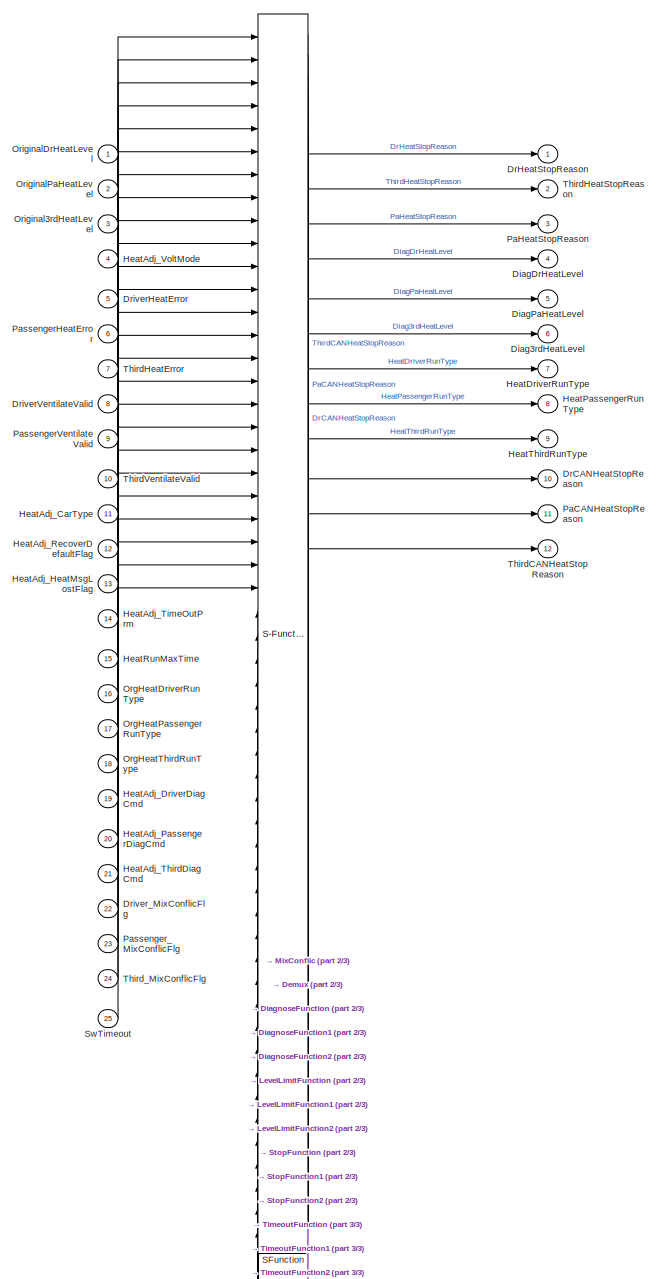
[diagram: LogicCtrl/LocalAdjustCtrl/LimitDeal - part 1/3, full width, top band]
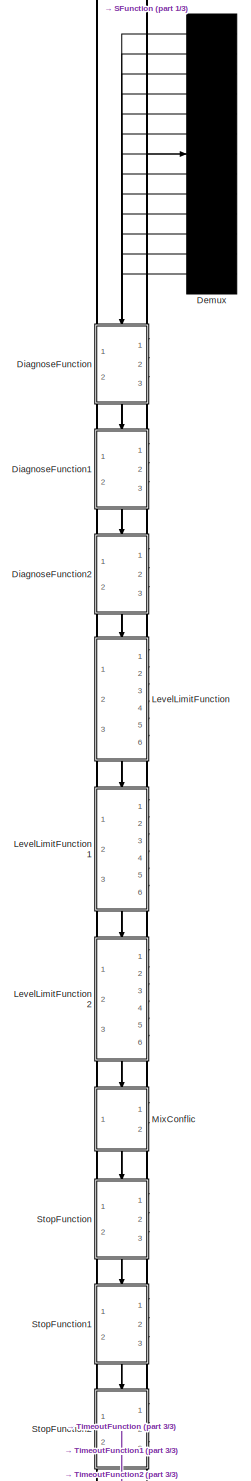
[diagram: LogicCtrl/LocalAdjustCtrl/LimitDeal - part 2/3, bottom center region]
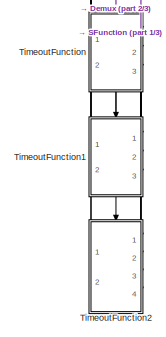
[diagram: LogicCtrl/LocalAdjustCtrl/LimitDeal - part 3/3, bottom center region]
BLOCK [SubSystem] LogicCtrl/LocalAdjustCtrl/LimitDeal
  ErrorFcn = Stateflow.Translate.translate
  PermitHierarchicalResolution = ExplicitOnly
  Ports = [25, 12]
  RequestExecContextInheritance = off
  SFBlockType = Chart
  TreatAsAtomicUnit = on
BLOCK [Demux] LogicCtrl/LocalAdjustCtrl/LimitDeal/ Demux 
  Outputs = 13
  Ports = [1, 13]
BLOCK [S-Function] LogicCtrl/LocalAdjustCtrl/LimitDeal/ SFunction 
  EnableBusSupport = on
  FunctionName = sf_sfun
  PortCounts = [53 61]
  Ports = [53, 61]
  SFcnIsStateOwnerBlock = off
  SFunctionDeploymentMode = off
  Tag = Stateflow S-Function Appl_HeatAdj_CtrlModel 2
BLOCK [Outport] LogicCtrl/LocalAdjustCtrl/LimitDeal/Diag3rdHeatLevel
  IconDisplay = Port number
  Port = 6
BLOCK [Outport] LogicCtrl/LocalAdjustCtrl/LimitDeal/DiagDrHeatLevel
  IconDisplay = Port number
  Port = 4
BLOCK [Outport] LogicCtrl/LocalAdjustCtrl/LimitDeal/DiagPaHeatLevel
  IconDisplay = Port number
  Port = 5
BLOCK [SubSystem] LogicCtrl/LocalAdjustCtrl/LimitDeal/DiagnoseFunction
  Ports = [3, 2, 0, 1]
  PreDeleteFcn = Stateflow.SLINSF.SimulinkMan.removePreDeleteFcn
  RequestExecContextInheritance = off
  UndoDeleteFcn = Stateflow.SLINSF.SimulinkMan.restorePreDeleteFcn
BLOCK [Inport] LogicCtrl/LocalAdjustCtrl/LimitDeal/DiagnoseFunction/CurrentType
  IconDisplay = Port number
  Port = 3
BLOCK [Inport] LogicCtrl/LocalAdjustCtrl/LimitDeal/DiagnoseFunction/DiagCommand
  IconDisplay = Port number
BLOCK [SubSystem] LogicCtrl/LocalAdjustCtrl/LimitDeal/DiagnoseFunction/Diagnose
  ErrorFcn = Stateflow.Translate.translate
  PermitHierarchicalResolution = ExplicitOnly
  Ports = [3, 2]
  RequestExecContextInheritance = off
  SFBlockType = Chart
  TreatAsAtomicUnit = on
BLOCK [Demux] LogicCtrl/LocalAdjustCtrl/LimitDeal/DiagnoseFunction/Diagnose/ Demux 
  Outputs = 1
  Ports = [1, 1]
BLOCK [S-Function] LogicCtrl/LocalAdjustCtrl/LimitDeal/DiagnoseFunction/Diagnose/ SFunction 
  EnableBusSupport = off
  FunctionName = sf_sfun
  PortCounts = [3 3]
  Ports = [3, 3]
  SFcnIsStateOwnerBlock = off
  SFunctionDeploymentMode = off
  Tag = Stateflow S-Function Appl_HeatAdj_CtrlModel 13
BLOCK [Terminator] LogicCtrl/LocalAdjustCtrl/LimitDeal/DiagnoseFunction/Diagnose/ Terminator 
BLOCK [Inport] LogicCtrl/LocalAdjustCtrl/LimitDeal/DiagnoseFunction/Diagnose/CurrentType
  IconDisplay = Port number
  Port = 3
BLOCK [Inport] LogicCtrl/LocalAdjustCtrl/LimitDeal/DiagnoseFunction/Diagnose/DiagCommand
  IconDisplay = Port number
BLOCK [Inport] LogicCtrl/LocalAdjustCtrl/LimitDeal/DiagnoseFunction/Diagnose/InLevel
  IconDisplay = Port number
  Port = 2
BLOCK [Outport] LogicCtrl/LocalAdjustCtrl/LimitDeal/DiagnoseFunction/Diagnose/Level
  IconDisplay = Port number
BLOCK [Outport] LogicCtrl/LocalAdjustCtrl/LimitDeal/DiagnoseFunction/Diagnose/Type
  IconDisplay = Port number
  Port = 2
BLOCK [Inport] LogicCtrl/LocalAdjustCtrl/LimitDeal/DiagnoseFunction/InLevel
  IconDisplay = Port number
  Port = 2
BLOCK [Outport] LogicCtrl/LocalAdjustCtrl/LimitDeal/DiagnoseFunction/Level
  IconDisplay = Port number
BLOCK [Outport] LogicCtrl/LocalAdjustCtrl/LimitDeal/DiagnoseFunction/Type
  IconDisplay = Port number
  Port = 2
BLOCK [TriggerPort] LogicCtrl/LocalAdjustCtrl/LimitDeal/DiagnoseFunction/f
  CopyFcn = Stateflow.SLINSF.SimulinkMan.removeBlockPreDeleteFcn
  Ports = []
  PreDeleteFcn = Stateflow.SLINSF.SimulinkMan.unsafePredeleteFcn
  StatesWhenEnabling = held
  TriggerType = function-call
  VariantControl = (inherit)
BLOCK [SubSystem] LogicCtrl/LocalAdjustCtrl/LimitDeal/DiagnoseFunction1
  Ports = [3, 2, 0, 1]
  PreDeleteFcn = Stateflow.SLINSF.SimulinkMan.removePreDeleteFcn
  RequestExecContextInheritance = off
  UndoDeleteFcn = Stateflow.SLINSF.SimulinkMan.restorePreDeleteFcn
BLOCK [Inport] LogicCtrl/LocalAdjustCtrl/LimitDeal/DiagnoseFunction1/CurrentType
  IconDisplay = Port number
  Port = 3
BLOCK [Inport] LogicCtrl/LocalAdjustCtrl/LimitDeal/DiagnoseFunction1/DiagCommand
  IconDisplay = Port number
BLOCK [SubSystem] LogicCtrl/LocalAdjustCtrl/LimitDeal/DiagnoseFunction1/Diagnose
  ErrorFcn = Stateflow.Translate.translate
  PermitHierarchicalResolution = ExplicitOnly
  Ports = [3, 2]
  RequestExecContextInheritance = off
  SFBlockType = Chart
  TreatAsAtomicUnit = on
BLOCK [Demux] LogicCtrl/LocalAdjustCtrl/LimitDeal/DiagnoseFunction1/Diagnose/ Demux 
  Outputs = 1
  Ports = [1, 1]
BLOCK [S-Function] LogicCtrl/LocalAdjustCtrl/LimitDeal/DiagnoseFunction1/Diagnose/ SFunction 
  EnableBusSupport = off
  FunctionName = sf_sfun
  PortCounts = [3 3]
  Ports = [3, 3]
  SFcnIsStateOwnerBlock = off
  SFunctionDeploymentMode = off
  Tag = Stateflow S-Function Appl_HeatAdj_CtrlModel 28
BLOCK [Terminator] LogicCtrl/LocalAdjustCtrl/LimitDeal/DiagnoseFunction1/Diagnose/ Terminator 
BLOCK [Inport] LogicCtrl/LocalAdjustCtrl/LimitDeal/DiagnoseFunction1/Diagnose/CurrentType
  IconDisplay = Port number
  Port = 3
BLOCK [Inport] LogicCtrl/LocalAdjustCtrl/LimitDeal/DiagnoseFunction1/Diagnose/DiagCommand
  IconDisplay = Port number
BLOCK [Inport] LogicCtrl/LocalAdjustCtrl/LimitDeal/DiagnoseFunction1/Diagnose/InLevel
  IconDisplay = Port number
  Port = 2
BLOCK [Outport] LogicCtrl/LocalAdjustCtrl/LimitDeal/DiagnoseFunction1/Diagnose/Level
  IconDisplay = Port number
BLOCK [Outport] LogicCtrl/LocalAdjustCtrl/LimitDeal/DiagnoseFunction1/Diagnose/Type
  IconDisplay = Port number
  Port = 2
BLOCK [Inport] LogicCtrl/LocalAdjustCtrl/LimitDeal/DiagnoseFunction1/InLevel
  IconDisplay = Port number
  Port = 2
BLOCK [Outport] LogicCtrl/LocalAdjustCtrl/LimitDeal/DiagnoseFunction1/Level
  IconDisplay = Port number
BLOCK [Outport] LogicCtrl/LocalAdjustCtrl/LimitDeal/DiagnoseFunction1/Type
  IconDisplay = Port number
  Port = 2
BLOCK [TriggerPort] LogicCtrl/LocalAdjustCtrl/LimitDeal/DiagnoseFunction1/f
  CopyFcn = Stateflow.SLINSF.SimulinkMan.removeBlockPreDeleteFcn
  Ports = []
  PreDeleteFcn = Stateflow.SLINSF.SimulinkMan.unsafePredeleteFcn
  StatesWhenEnabling = held
  TriggerType = function-call
  VariantControl = (inherit)
BLOCK [SubSystem] LogicCtrl/LocalAdjustCtrl/LimitDeal/DiagnoseFunction2
  Ports = [3, 2, 0, 1]
  PreDeleteFcn = Stateflow.SLINSF.SimulinkMan.removePreDeleteFcn
  RequestExecContextInheritance = off
  UndoDeleteFcn = Stateflow.SLINSF.SimulinkMan.restorePreDeleteFcn
BLOCK [Inport] LogicCtrl/LocalAdjustCtrl/LimitDeal/DiagnoseFunction2/CurrentType
  IconDisplay = Port number
  Port = 3
BLOCK [Inport] LogicCtrl/LocalAdjustCtrl/LimitDeal/DiagnoseFunction2/DiagCommand
  IconDisplay = Port number
BLOCK [SubSystem] LogicCtrl/LocalAdjustCtrl/LimitDeal/DiagnoseFunction2/Diagnose
  ErrorFcn = Stateflow.Translate.translate
  PermitHierarchicalResolution = ExplicitOnly
  Ports = [3, 2]
  RequestExecContextInheritance = off
  SFBlockType = Chart
  TreatAsAtomicUnit = on
BLOCK [Demux] LogicCtrl/LocalAdjustCtrl/LimitDeal/DiagnoseFunction2/Diagnose/ Demux 
  Outputs = 1
  Ports = [1, 1]
BLOCK [S-Function] LogicCtrl/LocalAdjustCtrl/LimitDeal/DiagnoseFunction2/Diagnose/ SFunction 
  EnableBusSupport = off
  FunctionName = sf_sfun
  PortCounts = [3 3]
  Ports = [3, 3]
  SFcnIsStateOwnerBlock = off
  SFunctionDeploymentMode = off
  Tag = Stateflow S-Function Appl_HeatAdj_CtrlModel 29
BLOCK [Terminator] LogicCtrl/LocalAdjustCtrl/LimitDeal/DiagnoseFunction2/Diagnose/ Terminator 
BLOCK [Inport] LogicCtrl/LocalAdjustCtrl/LimitDeal/DiagnoseFunction2/Diagnose/CurrentType
  IconDisplay = Port number
  Port = 3
BLOCK [Inport] LogicCtrl/LocalAdjustCtrl/LimitDeal/DiagnoseFunction2/Diagnose/DiagCommand
  IconDisplay = Port number
BLOCK [Inport] LogicCtrl/LocalAdjustCtrl/LimitDeal/DiagnoseFunction2/Diagnose/InLevel
  IconDisplay = Port number
  Port = 2
BLOCK [Outport] LogicCtrl/LocalAdjustCtrl/LimitDeal/DiagnoseFunction2/Diagnose/Level
  IconDisplay = Port number
BLOCK [Outport] LogicCtrl/LocalAdjustCtrl/LimitDeal/DiagnoseFunction2/Diagnose/Type
  IconDisplay = Port number
  Port = 2
BLOCK [Inport] LogicCtrl/LocalAdjustCtrl/LimitDeal/DiagnoseFunction2/InLevel
  IconDisplay = Port number
  Port = 2
BLOCK [Outport] LogicCtrl/LocalAdjustCtrl/LimitDeal/DiagnoseFunction2/Level
  IconDisplay = Port number
BLOCK [Outport] LogicCtrl/LocalAdjustCtrl/LimitDeal/DiagnoseFunction2/Type
  IconDisplay = Port number
  Port = 2
BLOCK [TriggerPort] LogicCtrl/LocalAdjustCtrl/LimitDeal/DiagnoseFunction2/f
  CopyFcn = Stateflow.SLINSF.SimulinkMan.removeBlockPreDeleteFcn
  Ports = []
  PreDeleteFcn = Stateflow.SLINSF.SimulinkMan.unsafePredeleteFcn
  StatesWhenEnabling = held
  TriggerType = function-call
  VariantControl = (inherit)
BLOCK [Outport] LogicCtrl/LocalAdjustCtrl/LimitDeal/DrCANHeatStopReason
  IconDisplay = Port number
  Port = 10
BLOCK [Outport] LogicCtrl/LocalAdjustCtrl/LimitDeal/DrHeatStopReason
  IconDisplay = Port number
BLOCK [Inport] LogicCtrl/LocalAdjustCtrl/LimitDeal/DriverHeatError
  IconDisplay = Port number
  Port = 5
BLOCK [Inport] LogicCtrl/LocalAdjustCtrl/LimitDeal/DriverVentilateValid
  IconDisplay = Port number
  Port = 8
BLOCK [Inport] LogicCtrl/LocalAdjustCtrl/LimitDeal/Driver_MixConflicFlg
  IconDisplay = Port number
  Port = 22
BLOCK [Inport] LogicCtrl/LocalAdjustCtrl/LimitDeal/HeatAdj_CarType
  IconDisplay = Port number
  Port = 11
BLOCK [Inport] LogicCtrl/LocalAdjustCtrl/LimitDeal/HeatAdj_DriverDiagCmd
  IconDisplay = Port number
  Port = 19
BLOCK [Inport] LogicCtrl/LocalAdjustCtrl/LimitDeal/HeatAdj_HeatMsgLostFlag
  IconDisplay = Port number
  Port = 13
BLOCK [Inport] LogicCtrl/LocalAdjustCtrl/LimitDeal/HeatAdj_PassengerDiagCmd
  IconDisplay = Port number
  Port = 20
BLOCK [Inport] LogicCtrl/LocalAdjustCtrl/LimitDeal/HeatAdj_RecoverDefaultFlag
  IconDisplay = Port number
  Port = 12
BLOCK [Inport] LogicCtrl/LocalAdjustCtrl/LimitDeal/HeatAdj_ThirdDiagCmd
  IconDisplay = Port number
  Port = 21
BLOCK [Inport] LogicCtrl/LocalAdjustCtrl/LimitDeal/HeatAdj_TimeOutPrm
  IconDisplay = Port number
  Port = 14
BLOCK [Inport] LogicCtrl/LocalAdjustCtrl/LimitDeal/HeatAdj_VoltMode
  IconDisplay = Port number
  Port = 4
BLOCK [Outport] LogicCtrl/LocalAdjustCtrl/LimitDeal/HeatDriverRunType
  IconDisplay = Port number
  Port = 7
BLOCK [Outport] LogicCtrl/LocalAdjustCtrl/LimitDeal/HeatPassengerRunType
  IconDisplay = Port number
  Port = 8
BLOCK [Inport] LogicCtrl/LocalAdjustCtrl/LimitDeal/HeatRunMaxTime
  IconDisplay = Port number
  Port = 15
BLOCK [Outport] LogicCtrl/LocalAdjustCtrl/LimitDeal/HeatThirdRunType
  IconDisplay = Port number
  Port = 9
BLOCK [SubSystem] LogicCtrl/LocalAdjustCtrl/LimitDeal/LevelLimitFunction
  Ports = [6, 3, 0, 1]
  PreDeleteFcn = Stateflow.SLINSF.SimulinkMan.removePreDeleteFcn
  RequestExecContextInheritance = off
  UndoDeleteFcn = Stateflow.SLINSF.SimulinkMan.restorePreDeleteFcn
BLOCK [Outport] LogicCtrl/LocalAdjustCtrl/LimitDeal/LevelLimitFunction/CANStopReason
  IconDisplay = Port number
  Port = 3
BLOCK [Inport] LogicCtrl/LocalAdjustCtrl/LimitDeal/LevelLimitFunction/CarType
  IconDisplay = Port number
  Port = 4
BLOCK [Inport] LogicCtrl/LocalAdjustCtrl/LimitDeal/LevelLimitFunction/Error
  IconDisplay = Port number
  Port = 2
BLOCK [Inport] LogicCtrl/LocalAdjustCtrl/LimitDeal/LevelLimitFunction/Heat_CanMessageLostFlag
  IconDisplay = Port number
  Port = 5
BLOCK [Inport] LogicCtrl/LocalAdjustCtrl/LimitDeal/LevelLimitFunction/Heat_RecoverDefaultFlag
  IconDisplay = Port number
  Port = 6
BLOCK [Outport] LogicCtrl/LocalAdjustCtrl/LimitDeal/LevelLimitFunction/Level
  IconDisplay = Port number
BLOCK [SubSystem] LogicCtrl/LocalAdjustCtrl/LimitDeal/LevelLimitFunction/LevelLimit
  ErrorFcn = Stateflow.Translate.translate
  PermitHierarchicalResolution = ExplicitOnly
  Ports = [6, 3]
  RequestExecContextInheritance = off
  SFBlockType = Chart
  TreatAsAtomicUnit = on
BLOCK [Demux] LogicCtrl/LocalAdjustCtrl/LimitDeal/LevelLimitFunction/LevelLimit/ Demux 
  Outputs = 1
  Ports = [1, 1]
BLOCK [S-Function] LogicCtrl/LocalAdjustCtrl/LimitDeal/LevelLimitFunction/LevelLimit/ SFunction 
  EnableBusSupport = off
  FunctionName = sf_sfun
  Parameters = FALSE,TRUE
  PortCounts = [6 4]
  Ports = [6, 4]
  SFcnIsStateOwnerBlock = off
  SFunctionDeploymentMode = off
  Tag = Stateflow S-Function Appl_HeatAdj_CtrlModel 4
BLOCK [Terminator] LogicCtrl/LocalAdjustCtrl/LimitDeal/LevelLimitFunction/LevelLimit/ Terminator 
BLOCK [Outport] LogicCtrl/LocalAdjustCtrl/LimitDeal/LevelLimitFunction/LevelLimit/CANStopReason
  IconDisplay = Port number
  Port = 3
BLOCK [Inport] LogicCtrl/LocalAdjustCtrl/LimitDeal/LevelLimitFunction/LevelLimit/CarType
  IconDisplay = Port number
  Port = 3
BLOCK [Inport] LogicCtrl/LocalAdjustCtrl/LimitDeal/LevelLimitFunction/LevelLimit/Error
  IconDisplay = Port number
  Port = 2
BLOCK [Inport] LogicCtrl/LocalAdjustCtrl/LimitDeal/LevelLimitFunction/LevelLimit/Heat_CanMessageLostFlag
  IconDisplay = Port number
  Port = 5
BLOCK [Inport] LogicCtrl/LocalAdjustCtrl/LimitDeal/LevelLimitFunction/LevelLimit/Heat_RecoverDefaultFlag
  IconDisplay = Port number
  Port = 6
BLOCK [Outport] LogicCtrl/LocalAdjustCtrl/LimitDeal/LevelLimitFunction/LevelLimit/Level
  IconDisplay = Port number
BLOCK [Inport] LogicCtrl/LocalAdjustCtrl/LimitDeal/LevelLimitFunction/LevelLimit/OppositeCmd
  IconDisplay = Port number
  Port = 4
BLOCK [Inport] LogicCtrl/LocalAdjustCtrl/LimitDeal/LevelLimitFunction/LevelLimit/OriginalLevel
  IconDisplay = Port number
BLOCK [Outport] LogicCtrl/LocalAdjustCtrl/LimitDeal/LevelLimitFunction/LevelLimit/StopReason
  IconDisplay = Port number
  Port = 2
BLOCK [Inport] LogicCtrl/LocalAdjustCtrl/LimitDeal/LevelLimitFunction/OppositeCmd
  IconDisplay = Port number
  Port = 3
BLOCK [Inport] LogicCtrl/LocalAdjustCtrl/LimitDeal/LevelLimitFunction/OriginalLevel
  IconDisplay = Port number
BLOCK [Outport] LogicCtrl/LocalAdjustCtrl/LimitDeal/LevelLimitFunction/StopReason
  IconDisplay = Port number
  Port = 2
BLOCK [TriggerPort] LogicCtrl/LocalAdjustCtrl/LimitDeal/LevelLimitFunction/f
  CopyFcn = Stateflow.SLINSF.SimulinkMan.removeBlockPreDeleteFcn
  Ports = []
  PreDeleteFcn = Stateflow.SLINSF.SimulinkMan.unsafePredeleteFcn
  StatesWhenEnabling = held
  TriggerType = function-call
  VariantControl = (inherit)
BLOCK [SubSystem] LogicCtrl/LocalAdjustCtrl/LimitDeal/LevelLimitFunction1
  Ports = [6, 3, 0, 1]
  PreDeleteFcn = Stateflow.SLINSF.SimulinkMan.removePreDeleteFcn
  RequestExecContextInheritance = off
  UndoDeleteFcn = Stateflow.SLINSF.SimulinkMan.restorePreDeleteFcn
BLOCK [Outport] LogicCtrl/LocalAdjustCtrl/LimitDeal/LevelLimitFunction1/CANStopReason
  IconDisplay = Port number
  Port = 3
BLOCK [Inport] LogicCtrl/LocalAdjustCtrl/LimitDeal/LevelLimitFunction1/CarType
  IconDisplay = Port number
  Port = 4
BLOCK [Inport] LogicCtrl/LocalAdjustCtrl/LimitDeal/LevelLimitFunction1/Error
  IconDisplay = Port number
  Port = 2
BLOCK [Inport] LogicCtrl/LocalAdjustCtrl/LimitDeal/LevelLimitFunction1/Heat_CanMessageLostFlag
  IconDisplay = Port number
  Port = 5
BLOCK [Inport] LogicCtrl/LocalAdjustCtrl/LimitDeal/LevelLimitFunction1/Heat_RecoverDefaultFlag
  IconDisplay = Port number
  Port = 6
BLOCK [Outport] LogicCtrl/LocalAdjustCtrl/LimitDeal/LevelLimitFunction1/Level
  IconDisplay = Port number
BLOCK [SubSystem] LogicCtrl/LocalAdjustCtrl/LimitDeal/LevelLimitFunction1/LevelLimit
  ErrorFcn = Stateflow.Translate.translate
  PermitHierarchicalResolution = ExplicitOnly
  Ports = [6, 3]
  RequestExecContextInheritance = off
  SFBlockType = Chart
  TreatAsAtomicUnit = on
BLOCK [Demux] LogicCtrl/LocalAdjustCtrl/LimitDeal/LevelLimitFunction1/LevelLimit/ Demux 
  Outputs = 1
  Ports = [1, 1]
BLOCK [S-Function] LogicCtrl/LocalAdjustCtrl/LimitDeal/LevelLimitFunction1/LevelLimit/ SFunction 
  EnableBusSupport = off
  FunctionName = sf_sfun
  Parameters = FALSE,TRUE
  PortCounts = [6 4]
  Ports = [6, 4]
  SFcnIsStateOwnerBlock = off
  SFunctionDeploymentMode = off
  Tag = Stateflow S-Function Appl_HeatAdj_CtrlModel 26
BLOCK [Terminator] LogicCtrl/LocalAdjustCtrl/LimitDeal/LevelLimitFunction1/LevelLimit/ Terminator 
BLOCK [Outport] LogicCtrl/LocalAdjustCtrl/LimitDeal/LevelLimitFunction1/LevelLimit/CANStopReason
  IconDisplay = Port number
  Port = 3
BLOCK [Inport] LogicCtrl/LocalAdjustCtrl/LimitDeal/LevelLimitFunction1/LevelLimit/CarType
  IconDisplay = Port number
  Port = 3
BLOCK [Inport] LogicCtrl/LocalAdjustCtrl/LimitDeal/LevelLimitFunction1/LevelLimit/Error
  IconDisplay = Port number
  Port = 2
BLOCK [Inport] LogicCtrl/LocalAdjustCtrl/LimitDeal/LevelLimitFunction1/LevelLimit/Heat_CanMessageLostFlag
  IconDisplay = Port number
  Port = 5
BLOCK [Inport] LogicCtrl/LocalAdjustCtrl/LimitDeal/LevelLimitFunction1/LevelLimit/Heat_RecoverDefaultFlag
  IconDisplay = Port number
  Port = 6
BLOCK [Outport] LogicCtrl/LocalAdjustCtrl/LimitDeal/LevelLimitFunction1/LevelLimit/Level
  IconDisplay = Port number
BLOCK [Inport] LogicCtrl/LocalAdjustCtrl/LimitDeal/LevelLimitFunction1/LevelLimit/OppositeCmd
  IconDisplay = Port number
  Port = 4
BLOCK [Inport] LogicCtrl/LocalAdjustCtrl/LimitDeal/LevelLimitFunction1/LevelLimit/OriginalLevel
  IconDisplay = Port number
BLOCK [Outport] LogicCtrl/LocalAdjustCtrl/LimitDeal/LevelLimitFunction1/LevelLimit/StopReason
  IconDisplay = Port number
  Port = 2
BLOCK [Inport] LogicCtrl/LocalAdjustCtrl/LimitDeal/LevelLimitFunction1/OppositeCmd
  IconDisplay = Port number
  Port = 3
BLOCK [Inport] LogicCtrl/LocalAdjustCtrl/LimitDeal/LevelLimitFunction1/OriginalLevel
  IconDisplay = Port number
BLOCK [Outport] LogicCtrl/LocalAdjustCtrl/LimitDeal/LevelLimitFunction1/StopReason
  IconDisplay = Port number
  Port = 2
BLOCK [TriggerPort] LogicCtrl/LocalAdjustCtrl/LimitDeal/LevelLimitFunction1/f
  CopyFcn = Stateflow.SLINSF.SimulinkMan.removeBlockPreDeleteFcn
  Ports = []
  PreDeleteFcn = Stateflow.SLINSF.SimulinkMan.unsafePredeleteFcn
  StatesWhenEnabling = held
  TriggerType = function-call
  VariantControl = (inherit)
BLOCK [SubSystem] LogicCtrl/LocalAdjustCtrl/LimitDeal/LevelLimitFunction2
  Ports = [6, 3, 0, 1]
  PreDeleteFcn = Stateflow.SLINSF.SimulinkMan.removePreDeleteFcn
  RequestExecContextInheritance = off
  UndoDeleteFcn = Stateflow.SLINSF.SimulinkMan.restorePreDeleteFcn
BLOCK [Outport] LogicCtrl/LocalAdjustCtrl/LimitDeal/LevelLimitFunction2/CANStopReason
  IconDisplay = Port number
  Port = 3
BLOCK [Inport] LogicCtrl/LocalAdjustCtrl/LimitDeal/LevelLimitFunction2/CarType
  IconDisplay = Port number
  Port = 4
BLOCK [Inport] LogicCtrl/LocalAdjustCtrl/LimitDeal/LevelLimitFunction2/Error
  IconDisplay = Port number
  Port = 2
BLOCK [Inport] LogicCtrl/LocalAdjustCtrl/LimitDeal/LevelLimitFunction2/Heat_CanMessageLostFlag
  IconDisplay = Port number
  Port = 5
BLOCK [Inport] LogicCtrl/LocalAdjustCtrl/LimitDeal/LevelLimitFunction2/Heat_RecoverDefaultFlag
  IconDisplay = Port number
  Port = 6
BLOCK [Outport] LogicCtrl/LocalAdjustCtrl/LimitDeal/LevelLimitFunction2/Level
  IconDisplay = Port number
BLOCK [SubSystem] LogicCtrl/LocalAdjustCtrl/LimitDeal/LevelLimitFunction2/LevelLimit
  ErrorFcn = Stateflow.Translate.translate
  PermitHierarchicalResolution = ExplicitOnly
  Ports = [6, 3]
  RequestExecContextInheritance = off
  SFBlockType = Chart
  TreatAsAtomicUnit = on
BLOCK [Demux] LogicCtrl/LocalAdjustCtrl/LimitDeal/LevelLimitFunction2/LevelLimit/ Demux 
  Outputs = 1
  Ports = [1, 1]
BLOCK [S-Function] LogicCtrl/LocalAdjustCtrl/LimitDeal/LevelLimitFunction2/LevelLimit/ SFunction 
  EnableBusSupport = off
  FunctionName = sf_sfun
  Parameters = FALSE,TRUE
  PortCounts = [6 4]
  Ports = [6, 4]
  SFcnIsStateOwnerBlock = off
  SFunctionDeploymentMode = off
  Tag = Stateflow S-Function Appl_HeatAdj_CtrlModel 27
BLOCK [Terminator] LogicCtrl/LocalAdjustCtrl/LimitDeal/LevelLimitFunction2/LevelLimit/ Terminator 
BLOCK [Outport] LogicCtrl/LocalAdjustCtrl/LimitDeal/LevelLimitFunction2/LevelLimit/CANStopReason
  IconDisplay = Port number
  Port = 3
BLOCK [Inport] LogicCtrl/LocalAdjustCtrl/LimitDeal/LevelLimitFunction2/LevelLimit/CarType
  IconDisplay = Port number
  Port = 3
BLOCK [Inport] LogicCtrl/LocalAdjustCtrl/LimitDeal/LevelLimitFunction2/LevelLimit/Error
  IconDisplay = Port number
  Port = 2
BLOCK [Inport] LogicCtrl/LocalAdjustCtrl/LimitDeal/LevelLimitFunction2/LevelLimit/Heat_CanMessageLostFlag
  IconDisplay = Port number
  Port = 5
BLOCK [Inport] LogicCtrl/LocalAdjustCtrl/LimitDeal/LevelLimitFunction2/LevelLimit/Heat_RecoverDefaultFlag
  IconDisplay = Port number
  Port = 6
BLOCK [Outport] LogicCtrl/LocalAdjustCtrl/LimitDeal/LevelLimitFunction2/LevelLimit/Level
  IconDisplay = Port number
BLOCK [Inport] LogicCtrl/LocalAdjustCtrl/LimitDeal/LevelLimitFunction2/LevelLimit/OppositeCmd
  IconDisplay = Port number
  Port = 4
BLOCK [Inport] LogicCtrl/LocalAdjustCtrl/LimitDeal/LevelLimitFunction2/LevelLimit/OriginalLevel
  IconDisplay = Port number
BLOCK [Outport] LogicCtrl/LocalAdjustCtrl/LimitDeal/LevelLimitFunction2/LevelLimit/StopReason
  IconDisplay = Port number
  Port = 2
BLOCK [Inport] LogicCtrl/LocalAdjustCtrl/LimitDeal/LevelLimitFunction2/OppositeCmd
  IconDisplay = Port number
  Port = 3
BLOCK [Inport] LogicCtrl/LocalAdjustCtrl/LimitDeal/LevelLimitFunction2/OriginalLevel
  IconDisplay = Port number
BLOCK [Outport] LogicCtrl/LocalAdjustCtrl/LimitDeal/LevelLimitFunction2/StopReason
  IconDisplay = Port number
  Port = 2
BLOCK [TriggerPort] LogicCtrl/LocalAdjustCtrl/LimitDeal/LevelLimitFunction2/f
  CopyFcn = Stateflow.SLINSF.SimulinkMan.removeBlockPreDeleteFcn
  Ports = []
  PreDeleteFcn = Stateflow.SLINSF.SimulinkMan.unsafePredeleteFcn
  StatesWhenEnabling = held
  TriggerType = function-call
  VariantControl = (inherit)
BLOCK [SubSystem] LogicCtrl/LocalAdjustCtrl/LimitDeal/MixConflic
  Ports = [2, 1, 0, 1]
  PreDeleteFcn = Stateflow.SLINSF.SimulinkMan.removePreDeleteFcn
  RequestExecContextInheritance = off
  UndoDeleteFcn = Stateflow.SLINSF.SimulinkMan.restorePreDeleteFcn
BLOCK [Constant] LogicCtrl/LocalAdjustCtrl/LimitDeal/MixConflic/Constant
  Value = FALSE
BLOCK [Inport] LogicCtrl/LocalAdjustCtrl/LimitDeal/MixConflic/MixFlg
  IconDisplay = Port number
  OutDataTypeStr = uint8
BLOCK [Outport] LogicCtrl/LocalAdjustCtrl/LimitDeal/MixConflic/OutValid
  IconDisplay = Port number
BLOCK [Switch] LogicCtrl/LocalAdjustCtrl/LimitDeal/MixConflic/Switch
  Criteria = u2 ~= 0
  InputSameDT = off
  OutDataTypeStr = uint8
  SaturateOnIntegerOverflow = off
BLOCK [Inport] LogicCtrl/LocalAdjustCtrl/LimitDeal/MixConflic/Valid
  IconDisplay = Port number
  OutDataTypeStr = uint8
  Port = 2
BLOCK [TriggerPort] LogicCtrl/LocalAdjustCtrl/LimitDeal/MixConflic/f
  CopyFcn = Stateflow.SLINSF.SimulinkMan.removeBlockPreDeleteFcn
  Ports = []
  PreDeleteFcn = Stateflow.SLINSF.SimulinkMan.unsafePredeleteFcn
  StatesWhenEnabling = held
  TriggerType = function-call
  VariantControl = (inherit)
BLOCK [Inport] LogicCtrl/LocalAdjustCtrl/LimitDeal/OrgHeatDriverRunType
  IconDisplay = Port number
  Port = 16
BLOCK [Inport] LogicCtrl/LocalAdjustCtrl/LimitDeal/OrgHeatPassengerRunType
  IconDisplay = Port number
  Port = 17
BLOCK [Inport] LogicCtrl/LocalAdjustCtrl/LimitDeal/OrgHeatThirdRunType
  IconDisplay = Port number
  Port = 18
BLOCK [Inport] LogicCtrl/LocalAdjustCtrl/LimitDeal/Original3rdHeatLevel
  IconDisplay = Port number
  Port = 3
BLOCK [Inport] LogicCtrl/LocalAdjustCtrl/LimitDeal/OriginalDrHeatLevel
  IconDisplay = Port number
BLOCK [Inport] LogicCtrl/LocalAdjustCtrl/LimitDeal/OriginalPaHeatLevel
  IconDisplay = Port number
  Port = 2
BLOCK [Outport] LogicCtrl/LocalAdjustCtrl/LimitDeal/PaCANHeatStopReason
  IconDisplay = Port number
  Port = 11
BLOCK [Outport] LogicCtrl/LocalAdjustCtrl/LimitDeal/PaHeatStopReason
  IconDisplay = Port number
  Port = 3
BLOCK [Inport] LogicCtrl/LocalAdjustCtrl/LimitDeal/PassengerHeatError
  IconDisplay = Port number
  Port = 6
BLOCK [Inport] LogicCtrl/LocalAdjustCtrl/LimitDeal/PassengerVentilateValid
  IconDisplay = Port number
  Port = 9
BLOCK [Inport] LogicCtrl/LocalAdjustCtrl/LimitDeal/Passenger_MixConflicFlg
  IconDisplay = Port number
  Port = 23
BLOCK [SubSystem] LogicCtrl/LocalAdjustCtrl/LimitDeal/StopFunction
  Ports = [3, 2, 0, 1]
  PreDeleteFcn = Stateflow.SLINSF.SimulinkMan.removePreDeleteFcn
  RequestExecContextInheritance = off
  UndoDeleteFcn = Stateflow.SLINSF.SimulinkMan.restorePreDeleteFcn
BLOCK [Outport] LogicCtrl/LocalAdjustCtrl/LimitDeal/StopFunction/CANStopReason
  IconDisplay = Port number
  Port = 2
BLOCK [Inport] LogicCtrl/LocalAdjustCtrl/LimitDeal/StopFunction/ComCANStop
  IconDisplay = Port number
  OutDataTypeStr = Enum: enHeatStopReason
  Port = 3
BLOCK [Inport] LogicCtrl/LocalAdjustCtrl/LimitDeal/StopFunction/ComStop
  IconDisplay = Port number
BLOCK [SubSystem] LogicCtrl/LocalAdjustCtrl/LimitDeal/StopFunction/StopFunction
  ErrorFcn = Stateflow.Translate.translate
  PermitHierarchicalResolution = ExplicitOnly
  Ports = [3, 2]
  RequestExecContextInheritance = off
  SFBlockType = Chart
  TreatAsAtomicUnit = on
BLOCK [Demux] LogicCtrl/LocalAdjustCtrl/LimitDeal/StopFunction/StopFunction/ Demux 
  Outputs = 1
  Ports = [1, 1]
BLOCK [S-Function] LogicCtrl/LocalAdjustCtrl/LimitDeal/StopFunction/StopFunction/ SFunction 
  EnableBusSupport = off
  FunctionName = sf_sfun
  Parameters = FALSE,TRUE
  PortCounts = [3 3]
  Ports = [3, 3]
  SFcnIsStateOwnerBlock = off
  SFunctionDeploymentMode = off
  Tag = Stateflow S-Function Appl_HeatAdj_CtrlModel 12
BLOCK [Terminator] LogicCtrl/LocalAdjustCtrl/LimitDeal/StopFunction/StopFunction/ Terminator 
BLOCK [Outport] LogicCtrl/LocalAdjustCtrl/LimitDeal/StopFunction/StopFunction/CANStopReason
  IconDisplay = Port number
  Port = 2
BLOCK [Inport] LogicCtrl/LocalAdjustCtrl/LimitDeal/StopFunction/StopFunction/ComCANStop
  IconDisplay = Port number
  Port = 3
BLOCK [Inport] LogicCtrl/LocalAdjustCtrl/LimitDeal/StopFunction/StopFunction/ComStop
  IconDisplay = Port number
BLOCK [Outport] LogicCtrl/LocalAdjustCtrl/LimitDeal/StopFunction/StopFunction/StopReason
  IconDisplay = Port number
BLOCK [Inport] LogicCtrl/LocalAdjustCtrl/LimitDeal/StopFunction/StopFunction/Timeout
  IconDisplay = Port number
  Port = 2
BLOCK [Outport] LogicCtrl/LocalAdjustCtrl/LimitDeal/StopFunction/StopReason
  IconDisplay = Port number
BLOCK [Inport] LogicCtrl/LocalAdjustCtrl/LimitDeal/StopFunction/Timeout
  IconDisplay = Port number
  Port = 2
BLOCK [TriggerPort] LogicCtrl/LocalAdjustCtrl/LimitDeal/StopFunction/f
  CopyFcn = Stateflow.SLINSF.SimulinkMan.removeBlockPreDeleteFcn
  Ports = []
  PreDeleteFcn = Stateflow.SLINSF.SimulinkMan.unsafePredeleteFcn
  StatesWhenEnabling = held
  TriggerType = function-call
  VariantControl = (inherit)
BLOCK [SubSystem] LogicCtrl/LocalAdjustCtrl/LimitDeal/StopFunction1
  Ports = [3, 2, 0, 1]
  PreDeleteFcn = Stateflow.SLINSF.SimulinkMan.removePreDeleteFcn
  RequestExecContextInheritance = off
  UndoDeleteFcn = Stateflow.SLINSF.SimulinkMan.restorePreDeleteFcn
BLOCK [Outport] LogicCtrl/LocalAdjustCtrl/LimitDeal/StopFunction1/CANStopReason
  IconDisplay = Port number
  Port = 2
BLOCK [Inport] LogicCtrl/LocalAdjustCtrl/LimitDeal/StopFunction1/ComCANStop
  IconDisplay = Port number
  OutDataTypeStr = Enum: enHeatStopReason
  Port = 3
BLOCK [Inport] LogicCtrl/LocalAdjustCtrl/LimitDeal/StopFunction1/ComStop
  IconDisplay = Port number
BLOCK [SubSystem] LogicCtrl/LocalAdjustCtrl/LimitDeal/StopFunction1/StopFunction
  ErrorFcn = Stateflow.Translate.translate
  PermitHierarchicalResolution = ExplicitOnly
  Ports = [3, 2]
  RequestExecContextInheritance = off
  SFBlockType = Chart
  TreatAsAtomicUnit = on
BLOCK [Demux] LogicCtrl/LocalAdjustCtrl/LimitDeal/StopFunction1/StopFunction/ Demux 
  Outputs = 1
  Ports = [1, 1]
BLOCK [S-Function] LogicCtrl/LocalAdjustCtrl/LimitDeal/StopFunction1/StopFunction/ SFunction 
  EnableBusSupport = off
  FunctionName = sf_sfun
  Parameters = FALSE,TRUE
  PortCounts = [3 3]
  Ports = [3, 3]
  SFcnIsStateOwnerBlock = off
  SFunctionDeploymentMode = off
  Tag = Stateflow S-Function Appl_HeatAdj_CtrlModel 22
BLOCK [Terminator] LogicCtrl/LocalAdjustCtrl/LimitDeal/StopFunction1/StopFunction/ Terminator 
BLOCK [Outport] LogicCtrl/LocalAdjustCtrl/LimitDeal/StopFunction1/StopFunction/CANStopReason
  IconDisplay = Port number
  Port = 2
BLOCK [Inport] LogicCtrl/LocalAdjustCtrl/LimitDeal/StopFunction1/StopFunction/ComCANStop
  IconDisplay = Port number
  Port = 3
BLOCK [Inport] LogicCtrl/LocalAdjustCtrl/LimitDeal/StopFunction1/StopFunction/ComStop
  IconDisplay = Port number
BLOCK [Outport] LogicCtrl/LocalAdjustCtrl/LimitDeal/StopFunction1/StopFunction/StopReason
  IconDisplay = Port number
BLOCK [Inport] LogicCtrl/LocalAdjustCtrl/LimitDeal/StopFunction1/StopFunction/Timeout
  IconDisplay = Port number
  Port = 2
BLOCK [Outport] LogicCtrl/LocalAdjustCtrl/LimitDeal/StopFunction1/StopReason
  IconDisplay = Port number
BLOCK [Inport] LogicCtrl/LocalAdjustCtrl/LimitDeal/StopFunction1/Timeout
  IconDisplay = Port number
  Port = 2
BLOCK [TriggerPort] LogicCtrl/LocalAdjustCtrl/LimitDeal/StopFunction1/f
  CopyFcn = Stateflow.SLINSF.SimulinkMan.removeBlockPreDeleteFcn
  Ports = []
  PreDeleteFcn = Stateflow.SLINSF.SimulinkMan.unsafePredeleteFcn
  StatesWhenEnabling = held
  TriggerType = function-call
  VariantControl = (inherit)
BLOCK [SubSystem] LogicCtrl/LocalAdjustCtrl/LimitDeal/StopFunction2
  Ports = [3, 2, 0, 1]
  PreDeleteFcn = Stateflow.SLINSF.SimulinkMan.removePreDeleteFcn
  RequestExecContextInheritance = off
  UndoDeleteFcn = Stateflow.SLINSF.SimulinkMan.restorePreDeleteFcn
BLOCK [Outport] LogicCtrl/LocalAdjustCtrl/LimitDeal/StopFunction2/CANStopReason
  IconDisplay = Port number
  Port = 2
BLOCK [Inport] LogicCtrl/LocalAdjustCtrl/LimitDeal/StopFunction2/ComCANStop
  IconDisplay = Port number
  OutDataTypeStr = Enum: enHeatStopReason
  Port = 3
BLOCK [Inport] LogicCtrl/LocalAdjustCtrl/LimitDeal/StopFunction2/ComStop
  IconDisplay = Port number
BLOCK [SubSystem] LogicCtrl/LocalAdjustCtrl/LimitDeal/StopFunction2/StopFunction
  ErrorFcn = Stateflow.Translate.translate
  PermitHierarchicalResolution = ExplicitOnly
  Ports = [3, 2]
  RequestExecContextInheritance = off
  SFBlockType = Chart
  TreatAsAtomicUnit = on
BLOCK [Demux] LogicCtrl/LocalAdjustCtrl/LimitDeal/StopFunction2/StopFunction/ Demux 
  Outputs = 1
  Ports = [1, 1]
BLOCK [S-Function] LogicCtrl/LocalAdjustCtrl/LimitDeal/StopFunction2/StopFunction/ SFunction 
  EnableBusSupport = off
  FunctionName = sf_sfun
  Parameters = FALSE,TRUE
  PortCounts = [3 3]
  Ports = [3, 3]
  SFcnIsStateOwnerBlock = off
  SFunctionDeploymentMode = off
  Tag = Stateflow S-Function Appl_HeatAdj_CtrlModel 23
BLOCK [Terminator] LogicCtrl/LocalAdjustCtrl/LimitDeal/StopFunction2/StopFunction/ Terminator 
BLOCK [Outport] LogicCtrl/LocalAdjustCtrl/LimitDeal/StopFunction2/StopFunction/CANStopReason
  IconDisplay = Port number
  Port = 2
BLOCK [Inport] LogicCtrl/LocalAdjustCtrl/LimitDeal/StopFunction2/StopFunction/ComCANStop
  IconDisplay = Port number
  Port = 3
BLOCK [Inport] LogicCtrl/LocalAdjustCtrl/LimitDeal/StopFunction2/StopFunction/ComStop
  IconDisplay = Port number
BLOCK [Outport] LogicCtrl/LocalAdjustCtrl/LimitDeal/StopFunction2/StopFunction/StopReason
  IconDisplay = Port number
BLOCK [Inport] LogicCtrl/LocalAdjustCtrl/LimitDeal/StopFunction2/StopFunction/Timeout
  IconDisplay = Port number
  Port = 2
BLOCK [Outport] LogicCtrl/LocalAdjustCtrl/LimitDeal/StopFunction2/StopReason
  IconDisplay = Port number
BLOCK [Inport] LogicCtrl/LocalAdjustCtrl/LimitDeal/StopFunction2/Timeout
  IconDisplay = Port number
  Port = 2
BLOCK [TriggerPort] LogicCtrl/LocalAdjustCtrl/LimitDeal/StopFunction2/f
  CopyFcn = Stateflow.SLINSF.SimulinkMan.removeBlockPreDeleteFcn
  Ports = []
  PreDeleteFcn = Stateflow.SLINSF.SimulinkMan.unsafePredeleteFcn
  StatesWhenEnabling = held
  TriggerType = function-call
  VariantControl = (inherit)
BLOCK [Inport] LogicCtrl/LocalAdjustCtrl/LimitDeal/SwTimeout
  IconDisplay = Port number
  Port = 25
BLOCK [Outport] LogicCtrl/LocalAdjustCtrl/LimitDeal/ThirdCANHeatStopReason
  IconDisplay = Port number
  Port = 12
BLOCK [Inport] LogicCtrl/LocalAdjustCtrl/LimitDeal/ThirdHeatError
  IconDisplay = Port number
  Port = 7
BLOCK [Outport] LogicCtrl/LocalAdjustCtrl/LimitDeal/ThirdHeatStopReason
  IconDisplay = Port number
  Port = 2
BLOCK [Inport] LogicCtrl/LocalAdjustCtrl/LimitDeal/ThirdVentilateValid
  IconDisplay = Port number
  Port = 10
BLOCK [Inport] LogicCtrl/LocalAdjustCtrl/LimitDeal/Third_MixConflicFlg
  IconDisplay = Port number
  Port = 24
BLOCK [SubSystem] LogicCtrl/LocalAdjustCtrl/LimitDeal/TimeoutFunction
  Ports = [3, 2, 0, 1]
  PreDeleteFcn = Stateflow.SLINSF.SimulinkMan.removePreDeleteFcn
  RequestExecContextInheritance = off
  UndoDeleteFcn = Stateflow.SLINSF.SimulinkMan.restorePreDeleteFcn
BLOCK [Inport] LogicCtrl/LocalAdjustCtrl/LimitDeal/TimeoutFunction/InLevel
  IconDisplay = Port number
  Port = 3
BLOCK [Outport] LogicCtrl/LocalAdjustCtrl/LimitDeal/TimeoutFunction/Level
  IconDisplay = Port number
BLOCK [Inport] LogicCtrl/LocalAdjustCtrl/LimitDeal/TimeoutFunction/MaxTime
  IconDisplay = Port number
  OutDataTypeStr = uint32
  Port = 2
BLOCK [SubSystem] LogicCtrl/LocalAdjustCtrl/LimitDeal/TimeoutFunction/Timeout
  ErrorFcn = Stateflow.Translate.translate
  PermitHierarchicalResolution = ExplicitOnly
  Ports = [3, 2]
  RequestExecContextInheritance = off
  SFBlockType = Chart
  TreatAsAtomicUnit = on
BLOCK [Demux] LogicCtrl/LocalAdjustCtrl/LimitDeal/TimeoutFunction/Timeout/ Demux 
  Outputs = 2
  Ports = [1, 2]
BLOCK [S-Function] LogicCtrl/LocalAdjustCtrl/LimitDeal/TimeoutFunction/Timeout/ SFunction 
  EnableBusSupport = off
  FunctionName = sf_sfun
  Parameters = FALSE,TRUE
  PortCounts = [5 5]
  Ports = [5, 5]
  SFcnIsStateOwnerBlock = off
  SFunctionDeploymentMode = off
  Tag = Stateflow S-Function Appl_HeatAdj_CtrlModel 34
BLOCK [SubSystem] LogicCtrl/LocalAdjustCtrl/LimitDeal/TimeoutFunction/Timeout/D_HAL_GET_CUR_MS_TS
  Ports = [0, 1, 0, 1]
  PreDeleteFcn = Stateflow.SLINSF.SimulinkMan.removePreDeleteFcn
  RequestExecContextInheritance = off
  UndoDeleteFcn = Stateflow.SLINSF.SimulinkMan.restorePreDeleteFcn
BLOCK [Reference] LogicCtrl/LocalAdjustCtrl/LimitDeal/TimeoutFunction/Timeout/D_HAL_GET_CUR_MS_TS/DrAdj_LenAdjSize  REF=DareLib/Dare/getAPI_type
  Ports = [0, 1]
  SourceBlock = DareLib/Dare/getAPI_type
  SourceProductName = Dare Library
  SourceType = Dare Custom
BLOCK [Outport] LogicCtrl/LocalAdjustCtrl/LimitDeal/TimeoutFunction/Timeout/D_HAL_GET_CUR_MS_TS/Ts
  IconDisplay = Port number
BLOCK [TriggerPort] LogicCtrl/LocalAdjustCtrl/LimitDeal/TimeoutFunction/Timeout/D_HAL_GET_CUR_MS_TS/f
  CopyFcn = Stateflow.SLINSF.SimulinkMan.removeBlockPreDeleteFcn
  Ports = []
  PreDeleteFcn = Stateflow.SLINSF.SimulinkMan.unsafePredeleteFcn
  StatesWhenEnabling = held
  TriggerType = function-call
  VariantControl = (inherit)
BLOCK [Inport] LogicCtrl/LocalAdjustCtrl/LimitDeal/TimeoutFunction/Timeout/InLevel
  IconDisplay = Port number
  Port = 2
BLOCK [Outport] LogicCtrl/LocalAdjustCtrl/LimitDeal/TimeoutFunction/Timeout/Level
  IconDisplay = Port number
  Port = 2
BLOCK [Inport] LogicCtrl/LocalAdjustCtrl/LimitDeal/TimeoutFunction/Timeout/MaxTime
  IconDisplay = Port number
  Port = 3
BLOCK [SubSystem] LogicCtrl/LocalAdjustCtrl/LimitDeal/TimeoutFunction/Timeout/TimeDiffTs
  Ports = [2, 1, 0, 1]
  PreDeleteFcn = Stateflow.SLINSF.SimulinkMan.removePreDeleteFcn
  RequestExecContextInheritance = off
  UndoDeleteFcn = Stateflow.SLINSF.SimulinkMan.restorePreDeleteFcn
BLOCK [SubSystem] LogicCtrl/LocalAdjustCtrl/LimitDeal/TimeoutFunction/Timeout/TimeDiffTs/Chart
  ErrorFcn = Stateflow.Translate.translate
  PermitHierarchicalResolution = ExplicitOnly
  Ports = [2, 1]
  RequestExecContextInheritance = off
  SFBlockType = Chart
  TreatAsAtomicUnit = on
BLOCK [Demux] LogicCtrl/LocalAdjustCtrl/LimitDeal/TimeoutFunction/Timeout/TimeDiffTs/Chart/ Demux 
  Outputs = 1
  Ports = [1, 1]
BLOCK [S-Function] LogicCtrl/LocalAdjustCtrl/LimitDeal/TimeoutFunction/Timeout/TimeDiffTs/Chart/ SFunction 
  EnableBusSupport = off
  FunctionName = sf_sfun
  PortCounts = [2 2]
  Ports = [2, 2]
  SFcnIsStateOwnerBlock = off
  SFunctionDeploymentMode = off
  Tag = Stateflow S-Function Appl_HeatAdj_CtrlModel 35
BLOCK [Terminator] LogicCtrl/LocalAdjustCtrl/LimitDeal/TimeoutFunction/Timeout/TimeDiffTs/Chart/ Terminator 
BLOCK [Outport] LogicCtrl/LocalAdjustCtrl/LimitDeal/TimeoutFunction/Timeout/TimeDiffTs/Chart/OutTs
  IconDisplay = Port number
BLOCK [Inport] LogicCtrl/LocalAdjustCtrl/LimitDeal/TimeoutFunction/Timeout/TimeDiffTs/Chart/Ts
  IconDisplay = Port number
  Port = 2
BLOCK [Inport] LogicCtrl/LocalAdjustCtrl/LimitDeal/TimeoutFunction/Timeout/TimeDiffTs/Chart/lastTs
  IconDisplay = Port number
BLOCK [Outport] LogicCtrl/LocalAdjustCtrl/LimitDeal/TimeoutFunction/Timeout/TimeDiffTs/OutTs
  IconDisplay = Port number
BLOCK [Inport] LogicCtrl/LocalAdjustCtrl/LimitDeal/TimeoutFunction/Timeout/TimeDiffTs/Ts
  IconDisplay = Port number
  Port = 2
BLOCK [TriggerPort] LogicCtrl/LocalAdjustCtrl/LimitDeal/TimeoutFunction/Timeout/TimeDiffTs/f
  CopyFcn = Stateflow.SLINSF.SimulinkMan.removeBlockPreDeleteFcn
  Ports = []
  PreDeleteFcn = Stateflow.SLINSF.SimulinkMan.unsafePredeleteFcn
  StatesWhenEnabling = held
  TriggerType = function-call
  VariantControl = (inherit)
BLOCK [Inport] LogicCtrl/LocalAdjustCtrl/LimitDeal/TimeoutFunction/Timeout/TimeDiffTs/lastTs
  IconDisplay = Port number
BLOCK [Outport] LogicCtrl/LocalAdjustCtrl/LimitDeal/TimeoutFunction/Timeout/TimeoutFlag
  IconDisplay = Port number
BLOCK [Inport] LogicCtrl/LocalAdjustCtrl/LimitDeal/TimeoutFunction/Timeout/TimeoutPrm
  IconDisplay = Port number
BLOCK [Outport] LogicCtrl/LocalAdjustCtrl/LimitDeal/TimeoutFunction/TimeoutFlag
  IconDisplay = Port number
  Port = 2
BLOCK [Inport] LogicCtrl/LocalAdjustCtrl/LimitDeal/TimeoutFunction/TimeoutPrm
  IconDisplay = Port number
BLOCK [TriggerPort] LogicCtrl/LocalAdjustCtrl/LimitDeal/TimeoutFunction/f
  CopyFcn = Stateflow.SLINSF.SimulinkMan.removeBlockPreDeleteFcn
  Ports = []
  PreDeleteFcn = Stateflow.SLINSF.SimulinkMan.unsafePredeleteFcn
  StatesWhenEnabling = held
  TriggerType = function-call
  VariantControl = (inherit)
BLOCK [SubSystem] LogicCtrl/LocalAdjustCtrl/LimitDeal/TimeoutFunction1
  Ports = [3, 2, 0, 1]
  PreDeleteFcn = Stateflow.SLINSF.SimulinkMan.removePreDeleteFcn
  RequestExecContextInheritance = off
  UndoDeleteFcn = Stateflow.SLINSF.SimulinkMan.restorePreDeleteFcn
BLOCK [Inport] LogicCtrl/LocalAdjustCtrl/LimitDeal/TimeoutFunction1/InLevel
  IconDisplay = Port number
  Port = 3
BLOCK [Outport] LogicCtrl/LocalAdjustCtrl/LimitDeal/TimeoutFunction1/Level
  IconDisplay = Port number
BLOCK [Inport] LogicCtrl/LocalAdjustCtrl/LimitDeal/TimeoutFunction1/MaxTime
  IconDisplay = Port number
  OutDataTypeStr = uint32
  Port = 2
BLOCK [SubSystem] LogicCtrl/LocalAdjustCtrl/LimitDeal/TimeoutFunction1/Timeout
  ErrorFcn = Stateflow.Translate.translate
  PermitHierarchicalResolution = ExplicitOnly
  Ports = [3, 2]
  RequestExecContextInheritance = off
  SFBlockType = Chart
  TreatAsAtomicUnit = on
BLOCK [Demux] LogicCtrl/LocalAdjustCtrl/LimitDeal/TimeoutFunction1/Timeout/ Demux 
  Outputs = 2
  Ports = [1, 2]
BLOCK [S-Function] LogicCtrl/LocalAdjustCtrl/LimitDeal/TimeoutFunction1/Timeout/ SFunction 
  EnableBusSupport = off
  FunctionName = sf_sfun
  Parameters = FALSE,TRUE
  PortCounts = [5 5]
  Ports = [5, 5]
  SFcnIsStateOwnerBlock = off
  SFunctionDeploymentMode = off
  Tag = Stateflow S-Function Appl_HeatAdj_CtrlModel 5
BLOCK [SubSystem] LogicCtrl/LocalAdjustCtrl/LimitDeal/TimeoutFunction1/Timeout/D_HAL_GET_CUR_MS_TS
  Ports = [0, 1, 0, 1]
  PreDeleteFcn = Stateflow.SLINSF.SimulinkMan.removePreDeleteFcn
  RequestExecContextInheritance = off
  UndoDeleteFcn = Stateflow.SLINSF.SimulinkMan.restorePreDeleteFcn
BLOCK [Reference] LogicCtrl/LocalAdjustCtrl/LimitDeal/TimeoutFunction1/Timeout/D_HAL_GET_CUR_MS_TS/DrAdj_LenAdjSize  REF=DareLib/Dare/getAPI_type
  Ports = [0, 1]
  SourceBlock = DareLib/Dare/getAPI_type
  SourceProductName = Dare Library
  SourceType = Dare Custom
BLOCK [Outport] LogicCtrl/LocalAdjustCtrl/LimitDeal/TimeoutFunction1/Timeout/D_HAL_GET_CUR_MS_TS/Ts
  IconDisplay = Port number
BLOCK [TriggerPort] LogicCtrl/LocalAdjustCtrl/LimitDeal/TimeoutFunction1/Timeout/D_HAL_GET_CUR_MS_TS/f
  CopyFcn = Stateflow.SLINSF.SimulinkMan.removeBlockPreDeleteFcn
  Ports = []
  PreDeleteFcn = Stateflow.SLINSF.SimulinkMan.unsafePredeleteFcn
  StatesWhenEnabling = held
  TriggerType = function-call
  VariantControl = (inherit)
BLOCK [Inport] LogicCtrl/LocalAdjustCtrl/LimitDeal/TimeoutFunction1/Timeout/InLevel
  IconDisplay = Port number
  Port = 2
BLOCK [Outport] LogicCtrl/LocalAdjustCtrl/LimitDeal/TimeoutFunction1/Timeout/Level
  IconDisplay = Port number
  Port = 2
BLOCK [Inport] LogicCtrl/LocalAdjustCtrl/LimitDeal/TimeoutFunction1/Timeout/MaxTime
  IconDisplay = Port number
  Port = 3
BLOCK [SubSystem] LogicCtrl/LocalAdjustCtrl/LimitDeal/TimeoutFunction1/Timeout/TimeDiffTs
  Ports = [2, 1, 0, 1]
  PreDeleteFcn = Stateflow.SLINSF.SimulinkMan.removePreDeleteFcn
  RequestExecContextInheritance = off
  UndoDeleteFcn = Stateflow.SLINSF.SimulinkMan.restorePreDeleteFcn
BLOCK [SubSystem] LogicCtrl/LocalAdjustCtrl/LimitDeal/TimeoutFunction1/Timeout/TimeDiffTs/Chart
  ErrorFcn = Stateflow.Translate.translate
  PermitHierarchicalResolution = ExplicitOnly
  Ports = [2, 1]
  RequestExecContextInheritance = off
  SFBlockType = Chart
  TreatAsAtomicUnit = on
BLOCK [Demux] LogicCtrl/LocalAdjustCtrl/LimitDeal/TimeoutFunction1/Timeout/TimeDiffTs/Chart/ Demux 
  Outputs = 1
  Ports = [1, 1]
BLOCK [S-Function] LogicCtrl/LocalAdjustCtrl/LimitDeal/TimeoutFunction1/Timeout/TimeDiffTs/Chart/ SFunction 
  EnableBusSupport = off
  FunctionName = sf_sfun
  PortCounts = [2 2]
  Ports = [2, 2]
  SFcnIsStateOwnerBlock = off
  SFunctionDeploymentMode = off
  Tag = Stateflow S-Function Appl_HeatAdj_CtrlModel 24
BLOCK [Terminator] LogicCtrl/LocalAdjustCtrl/LimitDeal/TimeoutFunction1/Timeout/TimeDiffTs/Chart/ Terminator 
BLOCK [Outport] LogicCtrl/LocalAdjustCtrl/LimitDeal/TimeoutFunction1/Timeout/TimeDiffTs/Chart/OutTs
  IconDisplay = Port number
BLOCK [Inport] LogicCtrl/LocalAdjustCtrl/LimitDeal/TimeoutFunction1/Timeout/TimeDiffTs/Chart/Ts
  IconDisplay = Port number
  Port = 2
BLOCK [Inport] LogicCtrl/LocalAdjustCtrl/LimitDeal/TimeoutFunction1/Timeout/TimeDiffTs/Chart/lastTs
  IconDisplay = Port number
BLOCK [Outport] LogicCtrl/LocalAdjustCtrl/LimitDeal/TimeoutFunction1/Timeout/TimeDiffTs/OutTs
  IconDisplay = Port number
BLOCK [Inport] LogicCtrl/LocalAdjustCtrl/LimitDeal/TimeoutFunction1/Timeout/TimeDiffTs/Ts
  IconDisplay = Port number
  Port = 2
BLOCK [TriggerPort] LogicCtrl/LocalAdjustCtrl/LimitDeal/TimeoutFunction1/Timeout/TimeDiffTs/f
  CopyFcn = Stateflow.SLINSF.SimulinkMan.removeBlockPreDeleteFcn
  Ports = []
  PreDeleteFcn = Stateflow.SLINSF.SimulinkMan.unsafePredeleteFcn
  StatesWhenEnabling = held
  TriggerType = function-call
  VariantControl = (inherit)
BLOCK [Inport] LogicCtrl/LocalAdjustCtrl/LimitDeal/TimeoutFunction1/Timeout/TimeDiffTs/lastTs
  IconDisplay = Port number
BLOCK [Outport] LogicCtrl/LocalAdjustCtrl/LimitDeal/TimeoutFunction1/Timeout/TimeoutFlag
  IconDisplay = Port number
BLOCK [Inport] LogicCtrl/LocalAdjustCtrl/LimitDeal/TimeoutFunction1/Timeout/TimeoutPrm
  IconDisplay = Port number
BLOCK [Outport] LogicCtrl/LocalAdjustCtrl/LimitDeal/TimeoutFunction1/TimeoutFlag
  IconDisplay = Port number
  Port = 2
BLOCK [Inport] LogicCtrl/LocalAdjustCtrl/LimitDeal/TimeoutFunction1/TimeoutPrm
  IconDisplay = Port number
BLOCK [TriggerPort] LogicCtrl/LocalAdjustCtrl/LimitDeal/TimeoutFunction1/f
  CopyFcn = Stateflow.SLINSF.SimulinkMan.removeBlockPreDeleteFcn
  Ports = []
  PreDeleteFcn = Stateflow.SLINSF.SimulinkMan.unsafePredeleteFcn
  StatesWhenEnabling = held
  TriggerType = function-call
  VariantControl = (inherit)
BLOCK [SubSystem] LogicCtrl/LocalAdjustCtrl/LimitDeal/TimeoutFunction2
  Ports = [4, 2, 0, 1]
  PreDeleteFcn = Stateflow.SLINSF.SimulinkMan.removePreDeleteFcn
  RequestExecContextInheritance = off
  UndoDeleteFcn = Stateflow.SLINSF.SimulinkMan.restorePreDeleteFcn
BLOCK [Inport] LogicCtrl/LocalAdjustCtrl/LimitDeal/TimeoutFunction2/InLevel
  IconDisplay = Port number
  Port = 3
BLOCK [Outport] LogicCtrl/LocalAdjustCtrl/LimitDeal/TimeoutFunction2/Level
  IconDisplay = Port number
BLOCK [Inport] LogicCtrl/LocalAdjustCtrl/LimitDeal/TimeoutFunction2/MaxTime
  IconDisplay = Port number
  OutDataTypeStr = uint32
  Port = 2
BLOCK [Inport] LogicCtrl/LocalAdjustCtrl/LimitDeal/TimeoutFunction2/SwTimeout
  IconDisplay = Port number
  OutDataTypeStr = uint32
  Port = 4
BLOCK [SubSystem] LogicCtrl/LocalAdjustCtrl/LimitDeal/TimeoutFunction2/Timeout
  ErrorFcn = Stateflow.Translate.translate
  PermitHierarchicalResolution = ExplicitOnly
  Ports = [4, 2]
  RequestExecContextInheritance = off
  SFBlockType = Chart
  TreatAsAtomicUnit = on
BLOCK [Demux] LogicCtrl/LocalAdjustCtrl/LimitDeal/TimeoutFunction2/Timeout/ Demux 
  Outputs = 1
  Ports = [1, 1]
BLOCK [S-Function] LogicCtrl/LocalAdjustCtrl/LimitDeal/TimeoutFunction2/Timeout/ SFunction 
  EnableBusSupport = off
  FunctionName = sf_sfun
  Parameters = FALSE,TRUE
  PortCounts = [4 3]
  Ports = [4, 3]
  SFcnIsStateOwnerBlock = off
  SFunctionDeploymentMode = off
  Tag = Stateflow S-Function Appl_HeatAdj_CtrlModel 25
BLOCK [Terminator] LogicCtrl/LocalAdjustCtrl/LimitDeal/TimeoutFunction2/Timeout/ Terminator 
BLOCK [Inport] LogicCtrl/LocalAdjustCtrl/LimitDeal/TimeoutFunction2/Timeout/InLevel
  IconDisplay = Port number
  Port = 2
BLOCK [Outport] LogicCtrl/LocalAdjustCtrl/LimitDeal/TimeoutFunction2/Timeout/Level
  IconDisplay = Port number
  Port = 2
BLOCK [Inport] LogicCtrl/LocalAdjustCtrl/LimitDeal/TimeoutFunction2/Timeout/MaxTime
  IconDisplay = Port number
  Port = 3
BLOCK [Inport] LogicCtrl/LocalAdjustCtrl/LimitDeal/TimeoutFunction2/Timeout/SwTimeout
  IconDisplay = Port number
  Port = 4
BLOCK [Outport] LogicCtrl/LocalAdjustCtrl/LimitDeal/TimeoutFunction2/Timeout/TimeoutFlag
  IconDisplay = Port number
BLOCK [Inport] LogicCtrl/LocalAdjustCtrl/LimitDeal/TimeoutFunction2/Timeout/TimeoutPrm
  IconDisplay = Port number
BLOCK [Outport] LogicCtrl/LocalAdjustCtrl/LimitDeal/TimeoutFunction2/TimeoutFlag
  IconDisplay = Port number
  Port = 2
BLOCK [Inport] LogicCtrl/LocalAdjustCtrl/LimitDeal/TimeoutFunction2/TimeoutPrm
  IconDisplay = Port number
BLOCK [TriggerPort] LogicCtrl/LocalAdjustCtrl/LimitDeal/TimeoutFunction2/f
  CopyFcn = Stateflow.SLINSF.SimulinkMan.removeBlockPreDeleteFcn
  Ports = []
  PreDeleteFcn = Stateflow.SLINSF.SimulinkMan.unsafePredeleteFcn
  StatesWhenEnabling = held
  TriggerType = function-call
  VariantControl = (inherit)
BLOCK [SubSystem] LogicCtrl/LocalAdjustCtrl/OutputDeal
  ErrorFcn = Stateflow.Translate.translate
  PermitHierarchicalResolution = ExplicitOnly
  Ports = [12, 14]
  RequestExecContextInheritance = off
  SFBlockType = Chart
  TreatAsAtomicUnit = on
BLOCK [Demux] LogicCtrl/LocalAdjustCtrl/OutputDeal/ Demux 
  Outputs = 6
  Ports = [1, 6]
BLOCK [S-Function] LogicCtrl/LocalAdjustCtrl/OutputDeal/ SFunction 
  EnableBusSupport = on
  FunctionName = sf_sfun
  Parameters = FALSE,TRUE
  PortCounts = [23 34]
  Ports = [23, 34]
  SFcnIsStateOwnerBlock = off
  SFunctionDeploymentMode = off
  Tag = Stateflow S-Function Appl_HeatAdj_CtrlModel 14
BLOCK [Inport] LogicCtrl/LocalAdjustCtrl/OutputDeal/CarTypeCfg
  IconDisplay = Port number
BLOCK [Inport] LogicCtrl/LocalAdjustCtrl/OutputDeal/Diag3rdHeatLevel
  IconDisplay = Port number
  Port = 4
BLOCK [Inport] LogicCtrl/LocalAdjustCtrl/OutputDeal/DiagDrHeatLevel
  IconDisplay = Port number
  Port = 2
BLOCK [Inport] LogicCtrl/LocalAdjustCtrl/OutputDeal/DiagPaHeatLevel
  IconDisplay = Port number
  Port = 3
BLOCK [Inport] LogicCtrl/LocalAdjustCtrl/OutputDeal/DriverHeatErrorDtc
  IconDisplay = Port number
  Port = 8
BLOCK [Inport] LogicCtrl/LocalAdjustCtrl/OutputDeal/HeatAdj_CarType
  IconDisplay = Port number
  Port = 11
BLOCK [Outport] LogicCtrl/LocalAdjustCtrl/OutputDeal/HeatAdj_DRHeatIo
  IconDisplay = Port number
  Port = 4
BLOCK [Outport] LogicCtrl/LocalAdjustCtrl/OutputDeal/HeatAdj_DRHeatPwmCnt
  IconDisplay = Port number
  Port = 7
BLOCK [Inport] LogicCtrl/LocalAdjustCtrl/OutputDeal/HeatAdj_DrHeatNtcAdc
  IconDisplay = Port number
  Port = 5
BLOCK [Outport] LogicCtrl/LocalAdjustCtrl/OutputDeal/HeatAdj_PAHeatIo
  IconDisplay = Port number
  Port = 5
BLOCK [Outport] LogicCtrl/LocalAdjustCtrl/OutputDeal/HeatAdj_PAHeatPwmCnt
  IconDisplay = Port number
  Port = 8
BLOCK [Inport] LogicCtrl/LocalAdjustCtrl/OutputDeal/HeatAdj_PaHeatNtcAdc
  IconDisplay = Port number
  Port = 6
BLOCK [Outport] LogicCtrl/LocalAdjustCtrl/OutputDeal/HeatAdj_ThirdHeatIo
  IconDisplay = Port number
  Port = 6
BLOCK [Inport] LogicCtrl/LocalAdjustCtrl/OutputDeal/HeatAdj_ThirdHeatNtcAdc
  IconDisplay = Port number
  Port = 7
BLOCK [Outport] LogicCtrl/LocalAdjustCtrl/OutputDeal/HeatAdj_ThirdHeatPwmCnt
  IconDisplay = Port number
  Port = 9
BLOCK [SubSystem] LogicCtrl/LocalAdjustCtrl/OutputDeal/HeatOutFunction
  Ports = [3, 2, 0, 1]
  PreDeleteFcn = Stateflow.SLINSF.SimulinkMan.removePreDeleteFcn
  RequestExecContextInheritance = off
  UndoDeleteFcn = Stateflow.SLINSF.SimulinkMan.restorePreDeleteFcn
BLOCK [Inport] LogicCtrl/LocalAdjustCtrl/OutputDeal/HeatOutFunction/CurrentTemp
  IconDisplay = Port number
  Port = 2
BLOCK [Inport] LogicCtrl/LocalAdjustCtrl/OutputDeal/HeatOutFunction/HeatLvl
  IconDisplay = Port number
  Port = 3
BLOCK [SubSystem] LogicCtrl/LocalAdjustCtrl/OutputDeal/HeatOutFunction/HeatOut
  ErrorFcn = Stateflow.Translate.translate
  PermitHierarchicalResolution = ExplicitOnly
  Ports = [3, 2]
  RequestExecContextInheritance = off
  SFBlockType = Chart
  TreatAsAtomicUnit = on
BLOCK [Demux] LogicCtrl/LocalAdjustCtrl/OutputDeal/HeatOutFunction/HeatOut/ Demux 
  Outputs = 1
  Ports = [1, 1]
BLOCK [S-Function] LogicCtrl/LocalAdjustCtrl/OutputDeal/HeatOutFunction/HeatOut/ SFunction 
  EnableBusSupport = off
  FunctionName = sf_sfun
  Parameters = D_HEAT_HEAT_DEF,OFF,ON
  PortCounts = [4 5]
  Ports = [4, 5]
  SFcnIsStateOwnerBlock = off
  SFunctionDeploymentMode = off
  Tag = Stateflow S-Function Appl_HeatAdj_CtrlModel 16
BLOCK [Inport] LogicCtrl/LocalAdjustCtrl/OutputDeal/HeatOutFunction/HeatOut/CurrentTemp
  IconDisplay = Port number
BLOCK [Inport] LogicCtrl/LocalAdjustCtrl/OutputDeal/HeatOutFunction/HeatOut/HeatLvl
  IconDisplay = Port number
  Port = 2
BLOCK [Outport] LogicCtrl/LocalAdjustCtrl/OutputDeal/HeatOutFunction/HeatOut/HeatOutGpio
  IconDisplay = Port number
BLOCK [Outport] LogicCtrl/LocalAdjustCtrl/OutputDeal/HeatOutFunction/HeatOut/HeatOutPwmCnt
  IconDisplay = Port number
  Port = 2
BLOCK [SubSystem] LogicCtrl/LocalAdjustCtrl/OutputDeal/HeatOutFunction/HeatOut/PidGetPwm
  Ports = [2, 1, 0, 1]
  PreDeleteFcn = Stateflow.SLINSF.SimulinkMan.removePreDeleteFcn
  RequestExecContextInheritance = off
  UndoDeleteFcn = Stateflow.SLINSF.SimulinkMan.restorePreDeleteFcn
BLOCK [Inport] LogicCtrl/LocalAdjustCtrl/OutputDeal/HeatOutFunction/HeatOut/PidGetPwm/CurrentTemp
  IconDisplay = Port number
BLOCK [SubSystem] LogicCtrl/LocalAdjustCtrl/OutputDeal/HeatOutFunction/HeatOut/PidGetPwm/Pid 
  ErrorFcn = Stateflow.Translate.translate
  PermitHierarchicalResolution = ExplicitOnly
  Ports = [2, 1]
  RequestExecContextInheritance = off
  SFBlockType = Chart
  TreatAsAtomicUnit = on
BLOCK [Demux] LogicCtrl/LocalAdjustCtrl/OutputDeal/HeatOutFunction/HeatOut/PidGetPwm/Pid / Demux 
  Outputs = 1
  Ports = [1, 1]
BLOCK [S-Function] LogicCtrl/LocalAdjustCtrl/OutputDeal/HeatOutFunction/HeatOut/PidGetPwm/Pid / SFunction 
  EnableBusSupport = off
  FunctionName = sf_sfun
  Parameters = D_DRVHEAT_PID_D,D_DRVHEAT_PID_I,D_DRVHEAT_PID_P
  PortCounts = [2 2]
  Ports = [2, 2]
  SFcnIsStateOwnerBlock = off
  SFunctionDeploymentMode = off
  Tag = Stateflow S-Function Appl_HeatAdj_CtrlModel 18
BLOCK [Terminator] LogicCtrl/LocalAdjustCtrl/OutputDeal/HeatOutFunction/HeatOut/PidGetPwm/Pid / Terminator 
BLOCK [Inport] LogicCtrl/LocalAdjustCtrl/OutputDeal/HeatOutFunction/HeatOut/PidGetPwm/Pid /CurrentTemp
  IconDisplay = Port number
BLOCK [Outport] LogicCtrl/LocalAdjustCtrl/OutputDeal/HeatOutFunction/HeatOut/PidGetPwm/Pid /PwmCnt
  IconDisplay = Port number
BLOCK [Inport] LogicCtrl/LocalAdjustCtrl/OutputDeal/HeatOutFunction/HeatOut/PidGetPwm/Pid /SetTemp
  IconDisplay = Port number
  Port = 2
BLOCK [Outport] LogicCtrl/LocalAdjustCtrl/OutputDeal/HeatOutFunction/HeatOut/PidGetPwm/PwmCnt
  IconDisplay = Port number
BLOCK [Inport] LogicCtrl/LocalAdjustCtrl/OutputDeal/HeatOutFunction/HeatOut/PidGetPwm/SetTemp
  IconDisplay = Port number
  Port = 2
BLOCK [TriggerPort] LogicCtrl/LocalAdjustCtrl/OutputDeal/HeatOutFunction/HeatOut/PidGetPwm/f
  CopyFcn = Stateflow.SLINSF.SimulinkMan.removeBlockPreDeleteFcn
  Ports = []
  PreDeleteFcn = Stateflow.SLINSF.SimulinkMan.unsafePredeleteFcn
  StatesWhenEnabling = held
  TriggerType = function-call
  VariantControl = (inherit)
BLOCK [Inport] LogicCtrl/LocalAdjustCtrl/OutputDeal/HeatOutFunction/HeatOut/SetTemp
  IconDisplay = Port number
  Port = 3
BLOCK [Outport] LogicCtrl/LocalAdjustCtrl/OutputDeal/HeatOutFunction/HeatOutGpio
  IconDisplay = Port number
BLOCK [Outport] LogicCtrl/LocalAdjustCtrl/OutputDeal/HeatOutFunction/HeatOutPwmCnt
  IconDisplay = Port number
  Port = 2
BLOCK [Inport] LogicCtrl/LocalAdjustCtrl/OutputDeal/HeatOutFunction/SetTemp
  IconDisplay = Port number
BLOCK [TriggerPort] LogicCtrl/LocalAdjustCtrl/OutputDeal/HeatOutFunction/f
  CopyFcn = Stateflow.SLINSF.SimulinkMan.removeBlockPreDeleteFcn
  Ports = []
  PreDeleteFcn = Stateflow.SLINSF.SimulinkMan.unsafePredeleteFcn
  StatesWhenEnabling = held
  TriggerType = function-call
  VariantControl = (inherit)
BLOCK [SubSystem] LogicCtrl/LocalAdjustCtrl/OutputDeal/HeatOutFunction1
  Ports = [3, 2, 0, 1]
  PreDeleteFcn = Stateflow.SLINSF.SimulinkMan.removePreDeleteFcn
  RequestExecContextInheritance = off
  UndoDeleteFcn = Stateflow.SLINSF.SimulinkMan.restorePreDeleteFcn
BLOCK [Inport] LogicCtrl/LocalAdjustCtrl/OutputDeal/HeatOutFunction1/CurrentTemp
  IconDisplay = Port number
  Port = 2
BLOCK [Inport] LogicCtrl/LocalAdjustCtrl/OutputDeal/HeatOutFunction1/HeatLvl
  IconDisplay = Port number
  Port = 3
BLOCK [SubSystem] LogicCtrl/LocalAdjustCtrl/OutputDeal/HeatOutFunction1/HeatOut
  ErrorFcn = Stateflow.Translate.translate
  PermitHierarchicalResolution = ExplicitOnly
  Ports = [3, 2]
  RequestExecContextInheritance = off
  SFBlockType = Chart
  TreatAsAtomicUnit = on
BLOCK [Demux] LogicCtrl/LocalAdjustCtrl/OutputDeal/HeatOutFunction1/HeatOut/ Demux 
  Outputs = 1
  Ports = [1, 1]
BLOCK [S-Function] LogicCtrl/LocalAdjustCtrl/OutputDeal/HeatOutFunction1/HeatOut/ SFunction 
  EnableBusSupport = off
  FunctionName = sf_sfun
  Parameters = D_HEAT_HEAT_DEF,OFF,ON
  PortCounts = [4 5]
  Ports = [4, 5]
  SFcnIsStateOwnerBlock = off
  SFunctionDeploymentMode = off
  Tag = Stateflow S-Function Appl_HeatAdj_CtrlModel 30
BLOCK [Inport] LogicCtrl/LocalAdjustCtrl/OutputDeal/HeatOutFunction1/HeatOut/CurrentTemp
  IconDisplay = Port number
BLOCK [Inport] LogicCtrl/LocalAdjustCtrl/OutputDeal/HeatOutFunction1/HeatOut/HeatLvl
  IconDisplay = Port number
  Port = 2
BLOCK [Outport] LogicCtrl/LocalAdjustCtrl/OutputDeal/HeatOutFunction1/HeatOut/HeatOutGpio
  IconDisplay = Port number
BLOCK [Outport] LogicCtrl/LocalAdjustCtrl/OutputDeal/HeatOutFunction1/HeatOut/HeatOutPwmCnt
  IconDisplay = Port number
  Port = 2
BLOCK [SubSystem] LogicCtrl/LocalAdjustCtrl/OutputDeal/HeatOutFunction1/HeatOut/PidGetPwm
  Ports = [2, 1, 0, 1]
  PreDeleteFcn = Stateflow.SLINSF.SimulinkMan.removePreDeleteFcn
  RequestExecContextInheritance = off
  UndoDeleteFcn = Stateflow.SLINSF.SimulinkMan.restorePreDeleteFcn
BLOCK [Inport] LogicCtrl/LocalAdjustCtrl/OutputDeal/HeatOutFunction1/HeatOut/PidGetPwm/CurrentTemp
  IconDisplay = Port number
BLOCK [SubSystem] LogicCtrl/LocalAdjustCtrl/OutputDeal/HeatOutFunction1/HeatOut/PidGetPwm/Pid 
  ErrorFcn = Stateflow.Translate.translate
  PermitHierarchicalResolution = ExplicitOnly
  Ports = [2, 1]
  RequestExecContextInheritance = off
  SFBlockType = Chart
  TreatAsAtomicUnit = on
BLOCK [Demux] LogicCtrl/LocalAdjustCtrl/OutputDeal/HeatOutFunction1/HeatOut/PidGetPwm/Pid / Demux 
  Outputs = 1
  Ports = [1, 1]
BLOCK [S-Function] LogicCtrl/LocalAdjustCtrl/OutputDeal/HeatOutFunction1/HeatOut/PidGetPwm/Pid / SFunction 
  EnableBusSupport = off
  FunctionName = sf_sfun
  Parameters = D_DRVHEAT_PID_D,D_DRVHEAT_PID_I,D_DRVHEAT_PID_P
  PortCounts = [2 2]
  Ports = [2, 2]
  SFcnIsStateOwnerBlock = off
  SFunctionDeploymentMode = off
  Tag = Stateflow S-Function Appl_HeatAdj_CtrlModel 31
BLOCK [Terminator] LogicCtrl/LocalAdjustCtrl/OutputDeal/HeatOutFunction1/HeatOut/PidGetPwm/Pid / Terminator 
BLOCK [Inport] LogicCtrl/LocalAdjustCtrl/OutputDeal/HeatOutFunction1/HeatOut/PidGetPwm/Pid /CurrentTemp
  IconDisplay = Port number
BLOCK [Outport] LogicCtrl/LocalAdjustCtrl/OutputDeal/HeatOutFunction1/HeatOut/PidGetPwm/Pid /PwmCnt
  IconDisplay = Port number
BLOCK [Inport] LogicCtrl/LocalAdjustCtrl/OutputDeal/HeatOutFunction1/HeatOut/PidGetPwm/Pid /SetTemp
  IconDisplay = Port number
  Port = 2
BLOCK [Outport] LogicCtrl/LocalAdjustCtrl/OutputDeal/HeatOutFunction1/HeatOut/PidGetPwm/PwmCnt
  IconDisplay = Port number
BLOCK [Inport] LogicCtrl/LocalAdjustCtrl/OutputDeal/HeatOutFunction1/HeatOut/PidGetPwm/SetTemp
  IconDisplay = Port number
  Port = 2
BLOCK [TriggerPort] LogicCtrl/LocalAdjustCtrl/OutputDeal/HeatOutFunction1/HeatOut/PidGetPwm/f
  CopyFcn = Stateflow.SLINSF.SimulinkMan.removeBlockPreDeleteFcn
  Ports = []
  PreDeleteFcn = Stateflow.SLINSF.SimulinkMan.unsafePredeleteFcn
  StatesWhenEnabling = held
  TriggerType = function-call
  VariantControl = (inherit)
BLOCK [Inport] LogicCtrl/LocalAdjustCtrl/OutputDeal/HeatOutFunction1/HeatOut/SetTemp
  IconDisplay = Port number
  Port = 3
BLOCK [Outport] LogicCtrl/LocalAdjustCtrl/OutputDeal/HeatOutFunction1/HeatOutGpio
  IconDisplay = Port number
BLOCK [Outport] LogicCtrl/LocalAdjustCtrl/OutputDeal/HeatOutFunction1/HeatOutPwmCnt
  IconDisplay = Port number
  Port = 2
BLOCK [Inport] LogicCtrl/LocalAdjustCtrl/OutputDeal/HeatOutFunction1/SetTemp
  IconDisplay = Port number
BLOCK [TriggerPort] LogicCtrl/LocalAdjustCtrl/OutputDeal/HeatOutFunction1/f
  CopyFcn = Stateflow.SLINSF.SimulinkMan.removeBlockPreDeleteFcn
  Ports = []
  PreDeleteFcn = Stateflow.SLINSF.SimulinkMan.unsafePredeleteFcn
  StatesWhenEnabling = held
  TriggerType = function-call
  VariantControl = (inherit)
BLOCK [SubSystem] LogicCtrl/LocalAdjustCtrl/OutputDeal/HeatOutFunction2
  Ports = [4, 4, 0, 1]
  PreDeleteFcn = Stateflow.SLINSF.SimulinkMan.removePreDeleteFcn
  RequestExecContextInheritance = off
  UndoDeleteFcn = Stateflow.SLINSF.SimulinkMan.restorePreDeleteFcn
BLOCK [Inport] LogicCtrl/LocalAdjustCtrl/OutputDeal/HeatOutFunction2/CurrentTemp
  IconDisplay = Port number
  Port = 2
BLOCK [Inport] LogicCtrl/LocalAdjustCtrl/OutputDeal/HeatOutFunction2/HeatLvl
  IconDisplay = Port number
  Port = 3
BLOCK [SubSystem] LogicCtrl/LocalAdjustCtrl/OutputDeal/HeatOutFunction2/HeatOut
  ErrorFcn = Stateflow.Translate.translate
  PermitHierarchicalResolution = ExplicitOnly
  Ports = [4, 4]
  RequestExecContextInheritance = off
  SFBlockType = Chart
  TreatAsAtomicUnit = on
BLOCK [Demux] LogicCtrl/LocalAdjustCtrl/OutputDeal/HeatOutFunction2/HeatOut/ Demux 
  Outputs = 3
  Ports = [1, 3]
BLOCK [S-Function] LogicCtrl/LocalAdjustCtrl/OutputDeal/HeatOutFunction2/HeatOut/ SFunction 
  EnableBusSupport = off
  FunctionName = sf_sfun
  Parameters = D_HEAT_HEAT_DEF,FALSE,OFF,ON,TRUE
  PortCounts = [7 9]
  Ports = [7, 9]
  SFcnIsStateOwnerBlock = off
  SFunctionDeploymentMode = off
  Tag = Stateflow S-Function Appl_HeatAdj_CtrlModel 32
BLOCK [Inport] LogicCtrl/LocalAdjustCtrl/OutputDeal/HeatOutFunction2/HeatOut/CurrentTemp
  IconDisplay = Port number
BLOCK [SubSystem] LogicCtrl/LocalAdjustCtrl/OutputDeal/HeatOutFunction2/HeatOut/D_HAL_GET_CUR_MS_TS
  Ports = [0, 1, 0, 1]
  PreDeleteFcn = Stateflow.SLINSF.SimulinkMan.removePreDeleteFcn
  RequestExecContextInheritance = off
  UndoDeleteFcn = Stateflow.SLINSF.SimulinkMan.restorePreDeleteFcn
BLOCK [Reference] LogicCtrl/LocalAdjustCtrl/OutputDeal/HeatOutFunction2/HeatOut/D_HAL_GET_CUR_MS_TS/DrAdj_LenAdjSize  REF=DareLib/Dare/getAPI_type
  Ports = [0, 1]
  SourceBlock = DareLib/Dare/getAPI_type
  SourceProductName = Dare Library
  SourceType = Dare Custom
BLOCK [Outport] LogicCtrl/LocalAdjustCtrl/OutputDeal/HeatOutFunction2/HeatOut/D_HAL_GET_CUR_MS_TS/Ts
  IconDisplay = Port number
BLOCK [TriggerPort] LogicCtrl/LocalAdjustCtrl/OutputDeal/HeatOutFunction2/HeatOut/D_HAL_GET_CUR_MS_TS/f
  CopyFcn = Stateflow.SLINSF.SimulinkMan.removeBlockPreDeleteFcn
  Ports = []
  PreDeleteFcn = Stateflow.SLINSF.SimulinkMan.unsafePredeleteFcn
  StatesWhenEnabling = held
  TriggerType = function-call
  VariantControl = (inherit)
BLOCK [Inport] LogicCtrl/LocalAdjustCtrl/OutputDeal/HeatOutFunction2/HeatOut/HeatLvl
  IconDisplay = Port number
  Port = 2
BLOCK [Outport] LogicCtrl/LocalAdjustCtrl/OutputDeal/HeatOutFunction2/HeatOut/HeatOutGpio
  IconDisplay = Port number
BLOCK [Outport] LogicCtrl/LocalAdjustCtrl/OutputDeal/HeatOutFunction2/HeatOut/HeatOutPwmCnt
  IconDisplay = Port number
  Port = 2
BLOCK [Inport] LogicCtrl/LocalAdjustCtrl/OutputDeal/HeatOutFunction2/HeatOut/MaxTime
  IconDisplay = Port number
  Port = 4
BLOCK [SubSystem] LogicCtrl/LocalAdjustCtrl/OutputDeal/HeatOutFunction2/HeatOut/PidGetPwm
  Ports = [2, 1, 0, 1]
  PreDeleteFcn = Stateflow.SLINSF.SimulinkMan.removePreDeleteFcn
  RequestExecContextInheritance = off
  UndoDeleteFcn = Stateflow.SLINSF.SimulinkMan.restorePreDeleteFcn
BLOCK [Inport] LogicCtrl/LocalAdjustCtrl/OutputDeal/HeatOutFunction2/HeatOut/PidGetPwm/CurrentTemp
  IconDisplay = Port number
BLOCK [SubSystem] LogicCtrl/LocalAdjustCtrl/OutputDeal/HeatOutFunction2/HeatOut/PidGetPwm/Pid 
  ErrorFcn = Stateflow.Translate.translate
  PermitHierarchicalResolution = ExplicitOnly
  Ports = [2, 1]
  RequestExecContextInheritance = off
  SFBlockType = Chart
  TreatAsAtomicUnit = on
BLOCK [Demux] LogicCtrl/LocalAdjustCtrl/OutputDeal/HeatOutFunction2/HeatOut/PidGetPwm/Pid / Demux 
  Outputs = 1
  Ports = [1, 1]
BLOCK [S-Function] LogicCtrl/LocalAdjustCtrl/OutputDeal/HeatOutFunction2/HeatOut/PidGetPwm/Pid / SFunction 
  EnableBusSupport = off
  FunctionName = sf_sfun
  Parameters = D_DRVHEAT_PID_D,D_DRVHEAT_PID_I,D_DRVHEAT_PID_P
  PortCounts = [2 2]
  Ports = [2, 2]
  SFcnIsStateOwnerBlock = off
  SFunctionDeploymentMode = off
  Tag = Stateflow S-Function Appl_HeatAdj_CtrlModel 33
BLOCK [Terminator] LogicCtrl/LocalAdjustCtrl/OutputDeal/HeatOutFunction2/HeatOut/PidGetPwm/Pid / Terminator 
BLOCK [Inport] LogicCtrl/LocalAdjustCtrl/OutputDeal/HeatOutFunction2/HeatOut/PidGetPwm/Pid /CurrentTemp
  IconDisplay = Port number
BLOCK [Outport] LogicCtrl/LocalAdjustCtrl/OutputDeal/HeatOutFunction2/HeatOut/PidGetPwm/Pid /PwmCnt
  IconDisplay = Port number
BLOCK [Inport] LogicCtrl/LocalAdjustCtrl/OutputDeal/HeatOutFunction2/HeatOut/PidGetPwm/Pid /SetTemp
  IconDisplay = Port number
  Port = 2
BLOCK [Outport] LogicCtrl/LocalAdjustCtrl/OutputDeal/HeatOutFunction2/HeatOut/PidGetPwm/PwmCnt
  IconDisplay = Port number
BLOCK [Inport] LogicCtrl/LocalAdjustCtrl/OutputDeal/HeatOutFunction2/HeatOut/PidGetPwm/SetTemp
  IconDisplay = Port number
  Port = 2
BLOCK [TriggerPort] LogicCtrl/LocalAdjustCtrl/OutputDeal/HeatOutFunction2/HeatOut/PidGetPwm/f
  CopyFcn = Stateflow.SLINSF.SimulinkMan.removeBlockPreDeleteFcn
  Ports = []
  PreDeleteFcn = Stateflow.SLINSF.SimulinkMan.unsafePredeleteFcn
  StatesWhenEnabling = held
  TriggerType = function-call
  VariantControl = (inherit)
BLOCK [Inport] LogicCtrl/LocalAdjustCtrl/OutputDeal/HeatOutFunction2/HeatOut/SetTemp
  IconDisplay = Port number
  Port = 3
BLOCK [Outport] LogicCtrl/LocalAdjustCtrl/OutputDeal/HeatOutFunction2/HeatOut/Sw20minTimer
  IconDisplay = Port number
  Port = 4
BLOCK [Outport] LogicCtrl/LocalAdjustCtrl/OutputDeal/HeatOutFunction2/HeatOut/SwTimeoutFlag
  IconDisplay = Port number
  Port = 3
BLOCK [SubSystem] LogicCtrl/LocalAdjustCtrl/OutputDeal/HeatOutFunction2/HeatOut/TimeDiffTs
  Ports = [2, 1, 0, 1]
  PreDeleteFcn = Stateflow.SLINSF.SimulinkMan.removePreDeleteFcn
  RequestExecContextInheritance = off
  UndoDeleteFcn = Stateflow.SLINSF.SimulinkMan.restorePreDeleteFcn
BLOCK [SubSystem] LogicCtrl/LocalAdjustCtrl/OutputDeal/HeatOutFunction2/HeatOut/TimeDiffTs/Chart
  ErrorFcn = Stateflow.Translate.translate
  PermitHierarchicalResolution = ExplicitOnly
  Ports = [2, 1]
  RequestExecContextInheritance = off
  SFBlockType = Chart
  TreatAsAtomicUnit = on
BLOCK [Demux] LogicCtrl/LocalAdjustCtrl/OutputDeal/HeatOutFunction2/HeatOut/TimeDiffTs/Chart/ Demux 
  Outputs = 1
  Ports = [1, 1]
BLOCK [S-Function] LogicCtrl/LocalAdjustCtrl/OutputDeal/HeatOutFunction2/HeatOut/TimeDiffTs/Chart/ SFunction 
  EnableBusSupport = off
  FunctionName = sf_sfun
  PortCounts = [2 2]
  Ports = [2, 2]
  SFcnIsStateOwnerBlock = off
  SFunctionDeploymentMode = off
  Tag = Stateflow S-Function Appl_HeatAdj_CtrlModel 50
BLOCK [Terminator] LogicCtrl/LocalAdjustCtrl/OutputDeal/HeatOutFunction2/HeatOut/TimeDiffTs/Chart/ Terminator 
BLOCK [Outport] LogicCtrl/LocalAdjustCtrl/OutputDeal/HeatOutFunction2/HeatOut/TimeDiffTs/Chart/OutTs
  IconDisplay = Port number
BLOCK [Inport] LogicCtrl/LocalAdjustCtrl/OutputDeal/HeatOutFunction2/HeatOut/TimeDiffTs/Chart/Ts
  IconDisplay = Port number
  Port = 2
BLOCK [Inport] LogicCtrl/LocalAdjustCtrl/OutputDeal/HeatOutFunction2/HeatOut/TimeDiffTs/Chart/lastTs
  IconDisplay = Port number
BLOCK [Outport] LogicCtrl/LocalAdjustCtrl/OutputDeal/HeatOutFunction2/HeatOut/TimeDiffTs/OutTs
  IconDisplay = Port number
BLOCK [Inport] LogicCtrl/LocalAdjustCtrl/OutputDeal/HeatOutFunction2/HeatOut/TimeDiffTs/Ts
  IconDisplay = Port number
  Port = 2
BLOCK [TriggerPort] LogicCtrl/LocalAdjustCtrl/OutputDeal/HeatOutFunction2/HeatOut/TimeDiffTs/f
  CopyFcn = Stateflow.SLINSF.SimulinkMan.removeBlockPreDeleteFcn
  Ports = []
  PreDeleteFcn = Stateflow.SLINSF.SimulinkMan.unsafePredeleteFcn
  StatesWhenEnabling = held
  TriggerType = function-call
  VariantControl = (inherit)
BLOCK [Inport] LogicCtrl/LocalAdjustCtrl/OutputDeal/HeatOutFunction2/HeatOut/TimeDiffTs/lastTs
  IconDisplay = Port number
BLOCK [Outport] LogicCtrl/LocalAdjustCtrl/OutputDeal/HeatOutFunction2/HeatOutGpio
  IconDisplay = Port number
BLOCK [Outport] LogicCtrl/LocalAdjustCtrl/OutputDeal/HeatOutFunction2/HeatOutPwmCnt
  IconDisplay = Port number
  Port = 2
BLOCK [Inport] LogicCtrl/LocalAdjustCtrl/OutputDeal/HeatOutFunction2/MaxTime
  IconDisplay = Port number
  OutDataTypeStr = uint32
  Port = 4
BLOCK [Inport] LogicCtrl/LocalAdjustCtrl/OutputDeal/HeatOutFunction2/SetTemp
  IconDisplay = Port number
BLOCK [Outport] LogicCtrl/LocalAdjustCtrl/OutputDeal/HeatOutFunction2/Sw20minTimer
  IconDisplay = Port number
  Port = 4
BLOCK [Outport] LogicCtrl/LocalAdjustCtrl/OutputDeal/HeatOutFunction2/SwTimeoutFlag
  IconDisplay = Port number
  Port = 3
BLOCK [TriggerPort] LogicCtrl/LocalAdjustCtrl/OutputDeal/HeatOutFunction2/f
  CopyFcn = Stateflow.SLINSF.SimulinkMan.removeBlockPreDeleteFcn
  Ports = []
  PreDeleteFcn = Stateflow.SLINSF.SimulinkMan.unsafePredeleteFcn
  StatesWhenEnabling = held
  TriggerType = function-call
  VariantControl = (inherit)
BLOCK [Outport] LogicCtrl/LocalAdjustCtrl/OutputDeal/Out3rdCANHeatLevel
  IconDisplay = Port number
  Port = 3
BLOCK [Outport] LogicCtrl/LocalAdjustCtrl/OutputDeal/Out3rdRunState
  IconDisplay = Port number
  Port = 12
BLOCK [Outport] LogicCtrl/LocalAdjustCtrl/OutputDeal/OutDrCANHeatLevel
  IconDisplay = Port number
BLOCK [Outport] LogicCtrl/LocalAdjustCtrl/OutputDeal/OutDrRunState
  IconDisplay = Port number
  Port = 10
BLOCK [Outport] LogicCtrl/LocalAdjustCtrl/OutputDeal/OutPaCANHeatLevel
  IconDisplay = Port number
  Port = 2
BLOCK [Outport] LogicCtrl/LocalAdjustCtrl/OutputDeal/OutPaRunState
  IconDisplay = Port number
  Port = 11
BLOCK [Inport] LogicCtrl/LocalAdjustCtrl/OutputDeal/PassengerHeatErrorDtc
  IconDisplay = Port number
  Port = 9
BLOCK [Outport] LogicCtrl/LocalAdjustCtrl/OutputDeal/Sw20minTimerOut
  IconDisplay = Port number
  Port = 14
BLOCK [Inport] LogicCtrl/LocalAdjustCtrl/OutputDeal/SwHeatRunMaxTime
  IconDisplay = Port number
  Port = 12
BLOCK [Outport] LogicCtrl/LocalAdjustCtrl/OutputDeal/SwTimeout
  IconDisplay = Port number
  Port = 13
BLOCK [SubSystem] LogicCtrl/LocalAdjustCtrl/OutputDeal/TempFunction
  Ports = [3, 1, 0, 1]
  PreDeleteFcn = Stateflow.SLINSF.SimulinkMan.removePreDeleteFcn
  RequestExecContextInheritance = off
  UndoDeleteFcn = Stateflow.SLINSF.SimulinkMan.restorePreDeleteFcn
BLOCK [Inport] LogicCtrl/LocalAdjustCtrl/OutputDeal/TempFunction/AimLevel
  IconDisplay = Port number
BLOCK [Outport] LogicCtrl/LocalAdjustCtrl/OutputDeal/TempFunction/AimTemp
  IconDisplay = Port number
BLOCK [Inport] LogicCtrl/LocalAdjustCtrl/OutputDeal/TempFunction/ProjectType
  IconDisplay = Port number
  Port = 2
BLOCK [SubSystem] LogicCtrl/LocalAdjustCtrl/OutputDeal/TempFunction/TempFunction
  ErrorFcn = Stateflow.Translate.translate
  PermitHierarchicalResolution = ExplicitOnly
  Ports = [3, 1]
  RequestExecContextInheritance = off
  SFBlockType = Chart
  TreatAsAtomicUnit = on
BLOCK [Demux] LogicCtrl/LocalAdjustCtrl/OutputDeal/TempFunction/TempFunction/ Demux 
  Outputs = 2
  Ports = [1, 2]
BLOCK [S-Function] LogicCtrl/LocalAdjustCtrl/OutputDeal/TempFunction/TempFunction/ SFunction 
  EnableBusSupport = off
  FunctionName = sf_sfun
  Parameters = CAL_LEVEL3_TIMEOUT,D_1stLevel_36,D_2ndLevel_39,D_3rdLevel_45,D_3rdLevel_48,D_SwsLevel_Temp,TRUE
  PortCounts = [5 4]
  Ports = [5, 4]
  SFcnIsStateOwnerBlock = off
  SFunctionDeploymentMode = off
  Tag = Stateflow S-Function Appl_HeatAdj_CtrlModel 15
BLOCK [Inport] LogicCtrl/LocalAdjustCtrl/OutputDeal/TempFunction/TempFunction/AimLevel
  IconDisplay = Port number
BLOCK [Outport] LogicCtrl/LocalAdjustCtrl/OutputDeal/TempFunction/TempFunction/AimTemp
  IconDisplay = Port number
BLOCK [SubSystem] LogicCtrl/LocalAdjustCtrl/OutputDeal/TempFunction/TempFunction/D_HAL_GET_CUR_MS_TS
  Ports = [0, 1, 0, 1]
  PreDeleteFcn = Stateflow.SLINSF.SimulinkMan.removePreDeleteFcn
  RequestExecContextInheritance = off
  UndoDeleteFcn = Stateflow.SLINSF.SimulinkMan.restorePreDeleteFcn
BLOCK [Reference] LogicCtrl/LocalAdjustCtrl/OutputDeal/TempFunction/TempFunction/D_HAL_GET_CUR_MS_TS/DrAdj_LenAdjSize  REF=DareLib/Dare/getAPI_type
  Ports = [0, 1]
  SourceBlock = DareLib/Dare/getAPI_type
  SourceProductName = Dare Library
  SourceType = Dare Custom
BLOCK [Outport] LogicCtrl/LocalAdjustCtrl/OutputDeal/TempFunction/TempFunction/D_HAL_GET_CUR_MS_TS/Ts
  IconDisplay = Port number
BLOCK [TriggerPort] LogicCtrl/LocalAdjustCtrl/OutputDeal/TempFunction/TempFunction/D_HAL_GET_CUR_MS_TS/f
  CopyFcn = Stateflow.SLINSF.SimulinkMan.removeBlockPreDeleteFcn
  Ports = []
  PreDeleteFcn = Stateflow.SLINSF.SimulinkMan.unsafePredeleteFcn
  StatesWhenEnabling = held
  TriggerType = function-call
  VariantControl = (inherit)
BLOCK [Inport] LogicCtrl/LocalAdjustCtrl/OutputDeal/TempFunction/TempFunction/ProjectType
  IconDisplay = Port number
  Port = 2
BLOCK [Inport] LogicCtrl/LocalAdjustCtrl/OutputDeal/TempFunction/TempFunction/ThirdHeat
  IconDisplay = Port number
  Port = 3
BLOCK [SubSystem] LogicCtrl/LocalAdjustCtrl/OutputDeal/TempFunction/TempFunction/TimeDiffTs
  Ports = [2, 1, 0, 1]
  PreDeleteFcn = Stateflow.SLINSF.SimulinkMan.removePreDeleteFcn
  RequestExecContextInheritance = off
  UndoDeleteFcn = Stateflow.SLINSF.SimulinkMan.restorePreDeleteFcn
BLOCK [SubSystem] LogicCtrl/LocalAdjustCtrl/OutputDeal/TempFunction/TempFunction/TimeDiffTs/Chart
  ErrorFcn = Stateflow.Translate.translate
  PermitHierarchicalResolution = ExplicitOnly
  Ports = [2, 1]
  RequestExecContextInheritance = off
  SFBlockType = Chart
  TreatAsAtomicUnit = on
BLOCK [Demux] LogicCtrl/LocalAdjustCtrl/OutputDeal/TempFunction/TempFunction/TimeDiffTs/Chart/ Demux 
  Outputs = 1
  Ports = [1, 1]
BLOCK [S-Function] LogicCtrl/LocalAdjustCtrl/OutputDeal/TempFunction/TempFunction/TimeDiffTs/Chart/ SFunction 
  EnableBusSupport = off
  FunctionName = sf_sfun
  PortCounts = [2 2]
  Ports = [2, 2]
  SFcnIsStateOwnerBlock = off
  SFunctionDeploymentMode = off
  Tag = Stateflow S-Function Appl_HeatAdj_CtrlModel 56
BLOCK [Terminator] LogicCtrl/LocalAdjustCtrl/OutputDeal/TempFunction/TempFunction/TimeDiffTs/Chart/ Terminator 
BLOCK [Outport] LogicCtrl/LocalAdjustCtrl/OutputDeal/TempFunction/TempFunction/TimeDiffTs/Chart/OutTs
  IconDisplay = Port number
BLOCK [Inport] LogicCtrl/LocalAdjustCtrl/OutputDeal/TempFunction/TempFunction/TimeDiffTs/Chart/Ts
  IconDisplay = Port number
  Port = 2
BLOCK [Inport] LogicCtrl/LocalAdjustCtrl/OutputDeal/TempFunction/TempFunction/TimeDiffTs/Chart/lastTs
  IconDisplay = Port number
BLOCK [Outport] LogicCtrl/LocalAdjustCtrl/OutputDeal/TempFunction/TempFunction/TimeDiffTs/OutTs
  IconDisplay = Port number
BLOCK [Inport] LogicCtrl/LocalAdjustCtrl/OutputDeal/TempFunction/TempFunction/TimeDiffTs/Ts
  IconDisplay = Port number
  Port = 2
BLOCK [TriggerPort] LogicCtrl/LocalAdjustCtrl/OutputDeal/TempFunction/TempFunction/TimeDiffTs/f
  CopyFcn = Stateflow.SLINSF.SimulinkMan.removeBlockPreDeleteFcn
  Ports = []
  PreDeleteFcn = Stateflow.SLINSF.SimulinkMan.unsafePredeleteFcn
  StatesWhenEnabling = held
  TriggerType = function-call
  VariantControl = (inherit)
BLOCK [Inport] LogicCtrl/LocalAdjustCtrl/OutputDeal/TempFunction/TempFunction/TimeDiffTs/lastTs
  IconDisplay = Port number
BLOCK [Inport] LogicCtrl/LocalAdjustCtrl/OutputDeal/TempFunction/ThirdHeat
  IconDisplay = Port number
  Port = 3
BLOCK [TriggerPort] LogicCtrl/LocalAdjustCtrl/OutputDeal/TempFunction/f
  CopyFcn = Stateflow.SLINSF.SimulinkMan.removeBlockPreDeleteFcn
  Ports = []
  PreDeleteFcn = Stateflow.SLINSF.SimulinkMan.unsafePredeleteFcn
  StatesWhenEnabling = held
  TriggerType = function-call
  VariantControl = (inherit)
BLOCK [SubSystem] LogicCtrl/LocalAdjustCtrl/OutputDeal/TempFunction1
  Ports = [3, 1, 0, 1]
  PreDeleteFcn = Stateflow.SLINSF.SimulinkMan.removePreDeleteFcn
  RequestExecContextInheritance = off
  UndoDeleteFcn = Stateflow.SLINSF.SimulinkMan.restorePreDeleteFcn
BLOCK [Inport] LogicCtrl/LocalAdjustCtrl/OutputDeal/TempFunction1/AimLevel
  IconDisplay = Port number
BLOCK [Outport] LogicCtrl/LocalAdjustCtrl/OutputDeal/TempFunction1/AimTemp
  IconDisplay = Port number
BLOCK [Inport] LogicCtrl/LocalAdjustCtrl/OutputDeal/TempFunction1/ProjectType
  IconDisplay = Port number
  Port = 2
BLOCK [SubSystem] LogicCtrl/LocalAdjustCtrl/OutputDeal/TempFunction1/TempFunction
  ErrorFcn = Stateflow.Translate.translate
  PermitHierarchicalResolution = ExplicitOnly
  Ports = [3, 1]
  RequestExecContextInheritance = off
  SFBlockType = Chart
  TreatAsAtomicUnit = on
BLOCK [Demux] LogicCtrl/LocalAdjustCtrl/OutputDeal/TempFunction1/TempFunction/ Demux 
  Outputs = 2
  Ports = [1, 2]
BLOCK [S-Function] LogicCtrl/LocalAdjustCtrl/OutputDeal/TempFunction1/TempFunction/ SFunction 
  EnableBusSupport = off
  FunctionName = sf_sfun
  Parameters = CAL_LEVEL3_TIMEOUT,D_1stLevel_36,D_2ndLevel_39,D_3rdLevel_45,D_3rdLevel_48,D_SwsLevel_Temp,TRUE
  PortCounts = [5 4]
  Ports = [5, 4]
  SFcnIsStateOwnerBlock = off
  SFunctionDeploymentMode = off
  Tag = Stateflow S-Function Appl_HeatAdj_CtrlModel 54
BLOCK [Inport] LogicCtrl/LocalAdjustCtrl/OutputDeal/TempFunction1/TempFunction/AimLevel
  IconDisplay = Port number
BLOCK [Outport] LogicCtrl/LocalAdjustCtrl/OutputDeal/TempFunction1/TempFunction/AimTemp
  IconDisplay = Port number
BLOCK [SubSystem] LogicCtrl/LocalAdjustCtrl/OutputDeal/TempFunction1/TempFunction/D_HAL_GET_CUR_MS_TS
  Ports = [0, 1, 0, 1]
  PreDeleteFcn = Stateflow.SLINSF.SimulinkMan.removePreDeleteFcn
  RequestExecContextInheritance = off
  UndoDeleteFcn = Stateflow.SLINSF.SimulinkMan.restorePreDeleteFcn
BLOCK [Reference] LogicCtrl/LocalAdjustCtrl/OutputDeal/TempFunction1/TempFunction/D_HAL_GET_CUR_MS_TS/DrAdj_LenAdjSize  REF=DareLib/Dare/getAPI_type
  Ports = [0, 1]
  SourceBlock = DareLib/Dare/getAPI_type
  SourceProductName = Dare Library
  SourceType = Dare Custom
BLOCK [Outport] LogicCtrl/LocalAdjustCtrl/OutputDeal/TempFunction1/TempFunction/D_HAL_GET_CUR_MS_TS/Ts
  IconDisplay = Port number
BLOCK [TriggerPort] LogicCtrl/LocalAdjustCtrl/OutputDeal/TempFunction1/TempFunction/D_HAL_GET_CUR_MS_TS/f
  CopyFcn = Stateflow.SLINSF.SimulinkMan.removeBlockPreDeleteFcn
  Ports = []
  PreDeleteFcn = Stateflow.SLINSF.SimulinkMan.unsafePredeleteFcn
  StatesWhenEnabling = held
  TriggerType = function-call
  VariantControl = (inherit)
BLOCK [Inport] LogicCtrl/LocalAdjustCtrl/OutputDeal/TempFunction1/TempFunction/ProjectType
  IconDisplay = Port number
  Port = 2
BLOCK [Inport] LogicCtrl/LocalAdjustCtrl/OutputDeal/TempFunction1/TempFunction/ThirdHeat
  IconDisplay = Port number
  Port = 3
BLOCK [SubSystem] LogicCtrl/LocalAdjustCtrl/OutputDeal/TempFunction1/TempFunction/TimeDiffTs
  Ports = [2, 1, 0, 1]
  PreDeleteFcn = Stateflow.SLINSF.SimulinkMan.removePreDeleteFcn
  RequestExecContextInheritance = off
  UndoDeleteFcn = Stateflow.SLINSF.SimulinkMan.restorePreDeleteFcn
BLOCK [SubSystem] LogicCtrl/LocalAdjustCtrl/OutputDeal/TempFunction1/TempFunction/TimeDiffTs/Chart
  ErrorFcn = Stateflow.Translate.translate
  PermitHierarchicalResolution = ExplicitOnly
  Ports = [2, 1]
  RequestExecContextInheritance = off
  SFBlockType = Chart
  TreatAsAtomicUnit = on
BLOCK [Demux] LogicCtrl/LocalAdjustCtrl/OutputDeal/TempFunction1/TempFunction/TimeDiffTs/Chart/ Demux 
  Outputs = 1
  Ports = [1, 1]
BLOCK [S-Function] LogicCtrl/LocalAdjustCtrl/OutputDeal/TempFunction1/TempFunction/TimeDiffTs/Chart/ SFunction 
  EnableBusSupport = off
  FunctionName = sf_sfun
  PortCounts = [2 2]
  Ports = [2, 2]
  SFcnIsStateOwnerBlock = off
  SFunctionDeploymentMode = off
  Tag = Stateflow S-Function Appl_HeatAdj_CtrlModel 55
BLOCK [Terminator] LogicCtrl/LocalAdjustCtrl/OutputDeal/TempFunction1/TempFunction/TimeDiffTs/Chart/ Terminator 
BLOCK [Outport] LogicCtrl/LocalAdjustCtrl/OutputDeal/TempFunction1/TempFunction/TimeDiffTs/Chart/OutTs
  IconDisplay = Port number
BLOCK [Inport] LogicCtrl/LocalAdjustCtrl/OutputDeal/TempFunction1/TempFunction/TimeDiffTs/Chart/Ts
  IconDisplay = Port number
  Port = 2
BLOCK [Inport] LogicCtrl/LocalAdjustCtrl/OutputDeal/TempFunction1/TempFunction/TimeDiffTs/Chart/lastTs
  IconDisplay = Port number
BLOCK [Outport] LogicCtrl/LocalAdjustCtrl/OutputDeal/TempFunction1/TempFunction/TimeDiffTs/OutTs
  IconDisplay = Port number
BLOCK [Inport] LogicCtrl/LocalAdjustCtrl/OutputDeal/TempFunction1/TempFunction/TimeDiffTs/Ts
  IconDisplay = Port number
  Port = 2
BLOCK [TriggerPort] LogicCtrl/LocalAdjustCtrl/OutputDeal/TempFunction1/TempFunction/TimeDiffTs/f
  CopyFcn = Stateflow.SLINSF.SimulinkMan.removeBlockPreDeleteFcn
  Ports = []
  PreDeleteFcn = Stateflow.SLINSF.SimulinkMan.unsafePredeleteFcn
  StatesWhenEnabling = held
  TriggerType = function-call
  VariantControl = (inherit)
BLOCK [Inport] LogicCtrl/LocalAdjustCtrl/OutputDeal/TempFunction1/TempFunction/TimeDiffTs/lastTs
  IconDisplay = Port number
BLOCK [Inport] LogicCtrl/LocalAdjustCtrl/OutputDeal/TempFunction1/ThirdHeat
  IconDisplay = Port number
  Port = 3
BLOCK [TriggerPort] LogicCtrl/LocalAdjustCtrl/OutputDeal/TempFunction1/f
  CopyFcn = Stateflow.SLINSF.SimulinkMan.removeBlockPreDeleteFcn
  Ports = []
  PreDeleteFcn = Stateflow.SLINSF.SimulinkMan.unsafePredeleteFcn
  StatesWhenEnabling = held
  TriggerType = function-call
  VariantControl = (inherit)
BLOCK [SubSystem] LogicCtrl/LocalAdjustCtrl/OutputDeal/TempFunction2
  Ports = [3, 1, 0, 1]
  PreDeleteFcn = Stateflow.SLINSF.SimulinkMan.removePreDeleteFcn
  RequestExecContextInheritance = off
  UndoDeleteFcn = Stateflow.SLINSF.SimulinkMan.restorePreDeleteFcn
BLOCK [Inport] LogicCtrl/LocalAdjustCtrl/OutputDeal/TempFunction2/AimLevel
  IconDisplay = Port number
BLOCK [Outport] LogicCtrl/LocalAdjustCtrl/OutputDeal/TempFunction2/AimTemp
  IconDisplay = Port number
BLOCK [Inport] LogicCtrl/LocalAdjustCtrl/OutputDeal/TempFunction2/ProjectType
  IconDisplay = Port number
  Port = 2
BLOCK [SubSystem] LogicCtrl/LocalAdjustCtrl/OutputDeal/TempFunction2/TempFunction
  ErrorFcn = Stateflow.Translate.translate
  PermitHierarchicalResolution = ExplicitOnly
  Ports = [3, 1]
  RequestExecContextInheritance = off
  SFBlockType = Chart
  TreatAsAtomicUnit = on
BLOCK [Demux] LogicCtrl/LocalAdjustCtrl/OutputDeal/TempFunction2/TempFunction/ Demux 
  Outputs = 2
  Ports = [1, 2]
BLOCK [S-Function] LogicCtrl/LocalAdjustCtrl/OutputDeal/TempFunction2/TempFunction/ SFunction 
  EnableBusSupport = off
  FunctionName = sf_sfun
  Parameters = CAL_LEVEL3_TIMEOUT,D_1stLevel_36,D_2ndLevel_39,D_3rdLevel_45,D_3rdLevel_48,D_SwsLevel_Temp,TRUE
  PortCounts = [5 4]
  Ports = [5, 4]
  SFcnIsStateOwnerBlock = off
  SFunctionDeploymentMode = off
  Tag = Stateflow S-Function Appl_HeatAdj_CtrlModel 57
BLOCK [Inport] LogicCtrl/LocalAdjustCtrl/OutputDeal/TempFunction2/TempFunction/AimLevel
  IconDisplay = Port number
BLOCK [Outport] LogicCtrl/LocalAdjustCtrl/OutputDeal/TempFunction2/TempFunction/AimTemp
  IconDisplay = Port number
BLOCK [SubSystem] LogicCtrl/LocalAdjustCtrl/OutputDeal/TempFunction2/TempFunction/D_HAL_GET_CUR_MS_TS
  Ports = [0, 1, 0, 1]
  PreDeleteFcn = Stateflow.SLINSF.SimulinkMan.removePreDeleteFcn
  RequestExecContextInheritance = off
  UndoDeleteFcn = Stateflow.SLINSF.SimulinkMan.restorePreDeleteFcn
BLOCK [Reference] LogicCtrl/LocalAdjustCtrl/OutputDeal/TempFunction2/TempFunction/D_HAL_GET_CUR_MS_TS/DrAdj_LenAdjSize  REF=DareLib/Dare/getAPI_type
  Ports = [0, 1]
  SourceBlock = DareLib/Dare/getAPI_type
  SourceProductName = Dare Library
  SourceType = Dare Custom
BLOCK [Outport] LogicCtrl/LocalAdjustCtrl/OutputDeal/TempFunction2/TempFunction/D_HAL_GET_CUR_MS_TS/Ts
  IconDisplay = Port number
BLOCK [TriggerPort] LogicCtrl/LocalAdjustCtrl/OutputDeal/TempFunction2/TempFunction/D_HAL_GET_CUR_MS_TS/f
  CopyFcn = Stateflow.SLINSF.SimulinkMan.removeBlockPreDeleteFcn
  Ports = []
  PreDeleteFcn = Stateflow.SLINSF.SimulinkMan.unsafePredeleteFcn
  StatesWhenEnabling = held
  TriggerType = function-call
  VariantControl = (inherit)
BLOCK [Inport] LogicCtrl/LocalAdjustCtrl/OutputDeal/TempFunction2/TempFunction/ProjectType
  IconDisplay = Port number
  Port = 2
BLOCK [Inport] LogicCtrl/LocalAdjustCtrl/OutputDeal/TempFunction2/TempFunction/ThirdHeat
  IconDisplay = Port number
  Port = 3
BLOCK [SubSystem] LogicCtrl/LocalAdjustCtrl/OutputDeal/TempFunction2/TempFunction/TimeDiffTs
  Ports = [2, 1, 0, 1]
  PreDeleteFcn = Stateflow.SLINSF.SimulinkMan.removePreDeleteFcn
  RequestExecContextInheritance = off
  UndoDeleteFcn = Stateflow.SLINSF.SimulinkMan.restorePreDeleteFcn
BLOCK [SubSystem] LogicCtrl/LocalAdjustCtrl/OutputDeal/TempFunction2/TempFunction/TimeDiffTs/Chart
  ErrorFcn = Stateflow.Translate.translate
  PermitHierarchicalResolution = ExplicitOnly
  Ports = [2, 1]
  RequestExecContextInheritance = off
  SFBlockType = Chart
  TreatAsAtomicUnit = on
BLOCK [Demux] LogicCtrl/LocalAdjustCtrl/OutputDeal/TempFunction2/TempFunction/TimeDiffTs/Chart/ Demux 
  Outputs = 1
  Ports = [1, 1]
BLOCK [S-Function] LogicCtrl/LocalAdjustCtrl/OutputDeal/TempFunction2/TempFunction/TimeDiffTs/Chart/ SFunction 
  EnableBusSupport = off
  FunctionName = sf_sfun
  PortCounts = [2 2]
  Ports = [2, 2]
  SFcnIsStateOwnerBlock = off
  SFunctionDeploymentMode = off
  Tag = Stateflow S-Function Appl_HeatAdj_CtrlModel 58
BLOCK [Terminator] LogicCtrl/LocalAdjustCtrl/OutputDeal/TempFunction2/TempFunction/TimeDiffTs/Chart/ Terminator 
BLOCK [Outport] LogicCtrl/LocalAdjustCtrl/OutputDeal/TempFunction2/TempFunction/TimeDiffTs/Chart/OutTs
  IconDisplay = Port number
BLOCK [Inport] LogicCtrl/LocalAdjustCtrl/OutputDeal/TempFunction2/TempFunction/TimeDiffTs/Chart/Ts
  IconDisplay = Port number
  Port = 2
BLOCK [Inport] LogicCtrl/LocalAdjustCtrl/OutputDeal/TempFunction2/TempFunction/TimeDiffTs/Chart/lastTs
  IconDisplay = Port number
BLOCK [Outport] LogicCtrl/LocalAdjustCtrl/OutputDeal/TempFunction2/TempFunction/TimeDiffTs/OutTs
  IconDisplay = Port number
BLOCK [Inport] LogicCtrl/LocalAdjustCtrl/OutputDeal/TempFunction2/TempFunction/TimeDiffTs/Ts
  IconDisplay = Port number
  Port = 2
BLOCK [TriggerPort] LogicCtrl/LocalAdjustCtrl/OutputDeal/TempFunction2/TempFunction/TimeDiffTs/f
  CopyFcn = Stateflow.SLINSF.SimulinkMan.removeBlockPreDeleteFcn
  Ports = []
  PreDeleteFcn = Stateflow.SLINSF.SimulinkMan.unsafePredeleteFcn
  StatesWhenEnabling = held
  TriggerType = function-call
  VariantControl = (inherit)
BLOCK [Inport] LogicCtrl/LocalAdjustCtrl/OutputDeal/TempFunction2/TempFunction/TimeDiffTs/lastTs
  IconDisplay = Port number
BLOCK [Inport] LogicCtrl/LocalAdjustCtrl/OutputDeal/TempFunction2/ThirdHeat
  IconDisplay = Port number
  Port = 3
BLOCK [TriggerPort] LogicCtrl/LocalAdjustCtrl/OutputDeal/TempFunction2/f
  CopyFcn = Stateflow.SLINSF.SimulinkMan.removeBlockPreDeleteFcn
  Ports = []
  PreDeleteFcn = Stateflow.SLINSF.SimulinkMan.unsafePredeleteFcn
  StatesWhenEnabling = held
  TriggerType = function-call
  VariantControl = (inherit)
BLOCK [Inport] LogicCtrl/LocalAdjustCtrl/OutputDeal/ThirdHeatErrorDtc
  IconDisplay = Port number
  Port = 10
BLOCK [Outport] LogicCtrl/LocalAdjustCtrl/PaHeatConfigOut
  IconDisplay = Port number
  Port = 29
BLOCK [Outport] LogicCtrl/LocalAdjustCtrl/PaVentConfigOut
  IconDisplay = Port number
  Port = 32
BLOCK [Inport] LogicCtrl/LocalAdjustCtrl/RemoteModeFlag
  IconDisplay = Port number
  Port = 43
BLOCK [Outport] LogicCtrl/LocalAdjustCtrl/RemoteModeFlagOut
  IconDisplay = Port number
  Port = 20
BLOCK [Outport] LogicCtrl/LocalAdjustCtrl/Sw20minTimerOut
  IconDisplay = Port number
  Port = 35
BLOCK [Inport] LogicCtrl/LocalAdjustCtrl/SwHeatRunMaxTime
  IconDisplay = Port number
  Port = 57
BLOCK [Terminator] LogicCtrl/LocalAdjustCtrl/Terminator1
BLOCK [Terminator] LogicCtrl/LocalAdjustCtrl/Terminator10
BLOCK [Terminator] LogicCtrl/LocalAdjustCtrl/Terminator11
BLOCK [Terminator] LogicCtrl/LocalAdjustCtrl/Terminator12
BLOCK [Terminator] LogicCtrl/LocalAdjustCtrl/Terminator13
BLOCK [Terminator] LogicCtrl/LocalAdjustCtrl/Terminator14
BLOCK [Terminator] LogicCtrl/LocalAdjustCtrl/Terminator18
BLOCK [Terminator] LogicCtrl/LocalAdjustCtrl/Terminator19
BLOCK [Terminator] LogicCtrl/LocalAdjustCtrl/Terminator2
BLOCK [Terminator] LogicCtrl/LocalAdjustCtrl/Terminator20
BLOCK [Terminator] LogicCtrl/LocalAdjustCtrl/Terminator21
BLOCK [Terminator] LogicCtrl/LocalAdjustCtrl/Terminator22
BLOCK [Terminator] LogicCtrl/LocalAdjustCtrl/Terminator23
BLOCK [Terminator] LogicCtrl/LocalAdjustCtrl/Terminator25
BLOCK [Terminator] LogicCtrl/LocalAdjustCtrl/Terminator26
BLOCK [Terminator] LogicCtrl/LocalAdjustCtrl/Terminator27
BLOCK [Terminator] LogicCtrl/LocalAdjustCtrl/Terminator28
BLOCK [Terminator] LogicCtrl/LocalAdjustCtrl/Terminator29
BLOCK [Terminator] LogicCtrl/LocalAdjustCtrl/Terminator3
BLOCK [Terminator] LogicCtrl/LocalAdjustCtrl/Terminator30
BLOCK [Terminator] LogicCtrl/LocalAdjustCtrl/Terminator31
BLOCK [Terminator] LogicCtrl/LocalAdjustCtrl/Terminator4
BLOCK [Terminator] LogicCtrl/LocalAdjustCtrl/Terminator5
BLOCK [Terminator] LogicCtrl/LocalAdjustCtrl/Terminator6
BLOCK [Terminator] LogicCtrl/LocalAdjustCtrl/Terminator7
BLOCK [Terminator] LogicCtrl/LocalAdjustCtrl/Terminator8
BLOCK [Terminator] LogicCtrl/LocalAdjustCtrl/Terminator9
BLOCK [Outport] LogicCtrl/LocalAdjustCtrl/ThirdHeatConfigOut
  IconDisplay = Port number
  Port = 30
BLOCK [Outport] LogicCtrl/LocalAdjustCtrl/ThirdVentConfigOut
  IconDisplay = Port number
  Port = 33
BLOCK [Inport] LogicCtrl/LocalAdjustCtrl/VehicleRunFlag
  IconDisplay = Port number
  Port = 50
BLOCK [Outport] LogicCtrl/LocalAdjustCtrl/VehicleRunFlagOut
  IconDisplay = Port number
  Port = 21
BLOCK [Inport] LogicCtrl/LocalAdjustCtrl/VentConfig
  IconDisplay = Port number
  Port = 52
BLOCK [Inport] LogicCtrl/LocalAdjustCtrl/VentValid
  IconDisplay = Port number
  Port = 45
BLOCK [BusCreator] LogicCtrl/MainVent_OutputLvlSts
  DisplayOption = bar
  InheritFromInputs = on
  Inputs = 35
  Ports = [35, 1]
BLOCK [Reference] Model Info  REF=simulink/Model-Wide
Utilities/Model Info
  Ports = []
  SourceBlock = simulink/Model-Wide\nUtilities/Model Info
  SourceProductBaseCode = SL
  SourceProductName = Simulink
  SourceType = CMBlock
BLOCK [SubSystem] UpDataInputInfo
  Ports = [0, 1]
  Priority = 1
  RTWFcnNameOpts = Use subsystem name
  RTWSystemCode = Nonreusable function
  RequestExecContextInheritance = off
  TreatAsAtomicUnit = on
BLOCK [Outport] UpDataInputInfo/InputSignalBus
  IconDisplay = Port number
BLOCK [SubSystem] UpDataInputInfo/InputSignalProcess
  AttributesFormatString = %<Description>
  Description = 数据处理
  Ports = [1, 1]
  RTWFcnNameOpts = Use subsystem name
  RTWSystemCode = Nonreusable function
  RequestExecContextInheritance = off
BLOCK [BusCreator] UpDataInputInfo/InputSignalProcess/Bus Creator
  DisplayOption = bar
  InheritFromInputs = on
  Inputs = 13
  Ports = [13, 1]
BLOCK [BusCreator] UpDataInputInfo/InputSignalProcess/Bus Creator1
  DisplayOption = bar
  InheritFromInputs = on
  Inputs = 3
  Ports = [3, 1]
BLOCK [BusCreator] UpDataInputInfo/InputSignalProcess/Bus Creator2
  DisplayOption = bar
  InheritFromInputs = on
  Inputs = 6
  Ports = [6, 1]
BLOCK [BusCreator] UpDataInputInfo/InputSignalProcess/Bus Creator3
  DisplayOption = bar
  InheritFromInputs = on
  Inputs = 9
  Ports = [9, 1]
BLOCK [BusSelector] UpDataInputInfo/InputSignalProcess/Bus Selector
  OutputAsBus = off
  OutputSignals = HeatAdj_RemoteEnableConfig,HeatAdj_TboxRemoteSts,HeatAdj_RemoteMsgLostFlag
  Ports = [1, 3]
BLOCK [BusSelector] UpDataInputInfo/InputSignalProcess/Bus Selector1
  OutputAsBus = off
  OutputSignals = HeatAdj_PlatformEngineEnableConfig,HeatAdj_P20_PHEV_EngineCfg,HeatAdj_ECMD_EngineStatus,HeatAdj_CarType
  Ports = [1, 4]
BLOCK [BusSelector] UpDataInputInfo/InputSignalProcess/Bus Selector2
  OutputAsBus = off
  OutputSignals = HeatAdj_CarType,HeatAdj_Driver_HMI_VentilateMsg,HeatAdj_Driver_Tbox_VentilateMsg,HeatAdj_Passenger_HMI_VentilateMsg,HeatAdj_Passenger_Tbox_VentilateMsg,HeatAdj_Third_Tbox_VentilateMsg,HeatAdj_Third_HMI_VentilateMsg
  Ports = [1, 7]
BLOCK [BusSelector] UpDataInputInfo/InputSignalProcess/Bus Selector3
  OutputAsBus = off
  OutputSignals = HeatAdj_DriverCmdFaultSts,HeatAdj_DriverNTCFaultSts,HeatAdj_PassengerCmdFaultSts,HeatAdj_PassengerNTCFaultSts,HeatAdj_ThirdCmdFaultSts,HeatAdj_ThirdNTCFaultSts,HeatAdj_DriverCmdFaultSts4DTC,HeatAdj_PassengerCmdFaultSts4DTC,HeatAdj_ThirdCmdFaultSts4DTC
  Ports = [1, 9]
BLOCK [BusSelector] UpDataInputInfo/InputSignalProcess/Bus Selector4
  OutputAsBus = off
  OutputSignals = HeatAdj_CarType,HeatAdj_ThirdDiagMaxTime
  Ports = [1, 2]
BLOCK [BusSelector] UpDataInputInfo/InputSignalProcess/Bus Selector5
  OutputAsBus = off
  OutputSignals = HeatAdj_DriverHMI_Message,HeatAdj_DriverTbox_Message,HeatAdj_PassengerHMI_Message,HeatAdj_PassengerTbox_Message,HeatAdj_ThirdHMI_Message,HeatAdj_ThirdTbox_Message,HeatAdj_CarType
  Ports = [1, 7]
BLOCK [BusSelector] UpDataInputInfo/InputSignalProcess/Bus Selector6
  OutputAsBus = off
  OutputSignals = HeatAdj_PlatformVehicleEnableConfig,HeatAdj_P20_PHEV_EngineCfg,HeatAdj_VCU_VehRunSta,HeatAdj_CarType
  Ports = [1, 4]
BLOCK [BusSelector] UpDataInputInfo/InputSignalProcess/Bus Selector7
  OutputAsBus = off
  OutputSignals = HeatAdj_CarType,HeatAdj_MemIndexDrHeatConfig,HeatAdj_MemIndexPaHeatConfig,HeatAdj_MemIndexThirdHeatConfig,HeatAdj_MemDiagDrHeatConfig,HeatAdj_MemDiagPaHeatConfig,HeatAdj_MemDiagThirdHeatConfig,HeatAdj_DriverVentEnableConfig,HeatAdj_PassengerVentEnableConfig,HeatAdj_ThirdVentEnableConfig,HeatAdj_MemDiagDrHeatFlg,HeatAdj_MemDiagPaHeatFlg,HeatAdj_DrVentFlg,HeatAdj_PaVentFlg
  Ports = [1, 14]
BLOCK [BusSelector] UpDataInputInfo/InputSignalProcess/Bus Selector8
  OutputAsBus = off
  OutputSignals = HeatAdj_CarType,HeatAdj_DCDCSwitchSts
  Ports = [1, 2]
BLOCK [BusSelector] UpDataInputInfo/InputSignalProcess/Bus Selector9
  OutputAsBus = off
  OutputSignals = HeatAdj_PowerMode,HeatAdj_VoltMode
  Ports = [1, 2]
BLOCK [SubSystem] UpDataInputInfo/InputSignalProcess/CommonPreconditionDeal
  AttributesFormatString = %<Description>
  Description = 通用前置条件处理
  Ports = [5, 1]
  RequestExecContextInheritance = off
BLOCK [Outport] UpDataInputInfo/InputSignalProcess/CommonPreconditionDeal/ComPCSatisfiedFlag 
  IconDisplay = Port number
BLOCK [Inport] UpDataInputInfo/InputSignalProcess/CommonPreconditionDeal/DCDC_SwitchEnable
  IconDisplay = Port number
  Port = 3
BLOCK [SubSystem] UpDataInputInfo/InputSignalProcess/CommonPreconditionDeal/Deal
  ErrorFcn = Stateflow.Translate.translate
  PermitHierarchicalResolution = ExplicitOnly
  Ports = [5, 1]
  RequestExecContextInheritance = off
  SFBlockType = Chart
  TreatAsAtomicUnit = on
BLOCK [Demux] UpDataInputInfo/InputSignalProcess/CommonPreconditionDeal/Deal/ Demux 
  Outputs = 1
  Ports = [1, 1]
BLOCK [S-Function] UpDataInputInfo/InputSignalProcess/CommonPreconditionDeal/Deal/ SFunction 
  EnableBusSupport = on
  FunctionName = sf_sfun
  Parameters = FALSE,TRUE
  PortCounts = [5 2]
  Ports = [5, 2]
  SFcnIsStateOwnerBlock = off
  SFunctionDeploymentMode = off
  Tag = Stateflow S-Function Appl_HeatAdj_CtrlModel 39
BLOCK [Terminator] UpDataInputInfo/InputSignalProcess/CommonPreconditionDeal/Deal/ Terminator 
BLOCK [Outport] UpDataInputInfo/InputSignalProcess/CommonPreconditionDeal/Deal/ComPCSatisfiedFlag
  IconDisplay = Port number
BLOCK [Inport] UpDataInputInfo/InputSignalProcess/CommonPreconditionDeal/Deal/DCDC_SwitchEnable
  IconDisplay = Port number
  Port = 2
BLOCK [Inport] UpDataInputInfo/InputSignalProcess/CommonPreconditionDeal/Deal/EngineRunningFlag
  IconDisplay = Port number
  Port = 3
BLOCK [Inport] UpDataInputInfo/InputSignalProcess/CommonPreconditionDeal/Deal/HeatAdj_PowerMode
  IconDisplay = Port number
BLOCK [Inport] UpDataInputInfo/InputSignalProcess/CommonPreconditionDeal/Deal/HeatAdj_VoltMode
  IconDisplay = Port number
  Port = 5
BLOCK [Inport] UpDataInputInfo/InputSignalProcess/CommonPreconditionDeal/Deal/VehicleRunFlag
  IconDisplay = Port number
  Port = 4
BLOCK [Inport] UpDataInputInfo/InputSignalProcess/CommonPreconditionDeal/EngineRunningFlag
  IconDisplay = Port number
  Port = 4
BLOCK [Inport] UpDataInputInfo/InputSignalProcess/CommonPreconditionDeal/HeatAdj_PowerMode
  IconDisplay = Port number
BLOCK [Inport] UpDataInputInfo/InputSignalProcess/CommonPreconditionDeal/HeatAdj_VoltMode
  IconDisplay = Port number
  Port = 2
BLOCK [Inport] UpDataInputInfo/InputSignalProcess/CommonPreconditionDeal/VehicleRunFlag
  IconDisplay = Port number
  Port = 5
BLOCK [SubSystem] UpDataInputInfo/InputSignalProcess/DCDC_SwitchSts
  AttributesFormatString = %<Description>
  Description = DCDC节点开关状态（有关实车电压）
  Ports = [2, 1]
  RequestExecContextInheritance = off
BLOCK [Constant] UpDataInputInfo/InputSignalProcess/DCDC_SwitchSts/Constant
  OutDataTypeStr = uint8
  Value = TRUE
BLOCK [Outport] UpDataInputInfo/InputSignalProcess/DCDC_SwitchSts/DCDC_SwitchEnable
  IconDisplay = Port number
BLOCK [DataTypeConversion] UpDataInputInfo/InputSignalProcess/DCDC_SwitchSts/Data Type Conversion
  OutDataTypeStr = uint8
  RndMeth = Floor
  SaturateOnIntegerOverflow = off
BLOCK [Inport] UpDataInputInfo/InputSignalProcess/DCDC_SwitchSts/HeatAdj_CarType
  IconDisplay = Port number
BLOCK [Inport] UpDataInputInfo/InputSignalProcess/DCDC_SwitchSts/HeatAdj_DCDCSwitchSts
  IconDisplay = Port number
  Port = 2
BLOCK [Switch] UpDataInputInfo/InputSignalProcess/DCDC_SwitchSts/Switch
  Criteria = u2 ~= 0
  InputSameDT = off
  SaturateOnIntegerOverflow = off
BLOCK [Delay] UpDataInputInfo/InputSignalProcess/Delay
  DelayLength = 1
  InitialCondition = 0
  InputPortMap = u0
  Ports = [1, 1]
BLOCK [SubSystem] UpDataInputInfo/InputSignalProcess/EngineRunning
  AttributesFormatString = %<Description>
  Description = 发动机运行
  Ports = [4, 1]
  RequestExecContextInheritance = off
BLOCK [Outport] UpDataInputInfo/InputSignalProcess/EngineRunning/EngineRunningFlag 
  IconDisplay = Port number
BLOCK [SubSystem] UpDataInputInfo/InputSignalProcess/EngineRunning/EngineStatus
  ErrorFcn = Stateflow.Translate.translate
  PermitHierarchicalResolution = ExplicitOnly
  Ports = [4, 1]
  RequestExecContextInheritance = off
  SFBlockType = Chart
  TreatAsAtomicUnit = on
BLOCK [Demux] UpDataInputInfo/InputSignalProcess/EngineRunning/EngineStatus/ Demux 
  Outputs = 1
  Ports = [1, 1]
BLOCK [S-Function] UpDataInputInfo/InputSignalProcess/EngineRunning/EngineStatus/ SFunction 
  EnableBusSupport = on
  FunctionName = sf_sfun
  Parameters = FALSE,TRUE
  PortCounts = [4 2]
  Ports = [4, 2]
  SFcnIsStateOwnerBlock = off
  SFunctionDeploymentMode = off
  Tag = Stateflow S-Function Appl_HeatAdj_CtrlModel 7
BLOCK [Terminator] UpDataInputInfo/InputSignalProcess/EngineRunning/EngineStatus/ Terminator 
BLOCK [Outport] UpDataInputInfo/InputSignalProcess/EngineRunning/EngineStatus/EngineRunningFlag
  IconDisplay = Port number
BLOCK [Inport] UpDataInputInfo/InputSignalProcess/EngineRunning/EngineStatus/HeatAdj_CarType
  IconDisplay = Port number
  Port = 4
BLOCK [Inport] UpDataInputInfo/InputSignalProcess/EngineRunning/EngineStatus/HeatAdj_ECMD_EngineStatus
  IconDisplay = Port number
  Port = 3
BLOCK [Inport] UpDataInputInfo/InputSignalProcess/EngineRunning/EngineStatus/HeatAdj_P20_PHEV_EngineCfg
  IconDisplay = Port number
  Port = 2
BLOCK [Inport] UpDataInputInfo/InputSignalProcess/EngineRunning/EngineStatus/HeatAdj_PlatformEngineEnableConfig
  IconDisplay = Port number
BLOCK [Inport] UpDataInputInfo/InputSignalProcess/EngineRunning/HeatAdj_CarType
  IconDisplay = Port number
  Port = 4
BLOCK [Inport] UpDataInputInfo/InputSignalProcess/EngineRunning/HeatAdj_ECMD_EngineStatus
  IconDisplay = Port number
  Port = 3
BLOCK [Inport] UpDataInputInfo/InputSignalProcess/EngineRunning/HeatAdj_P20_PHEV_EngineCfg
  IconDisplay = Port number
  Port = 2
BLOCK [Inport] UpDataInputInfo/InputSignalProcess/EngineRunning/HeatAdj_PlatformEngineEnableConfig
  IconDisplay = Port number
BLOCK [SubSystem] UpDataInputInfo/InputSignalProcess/EorrorProcess
  AttributesFormatString = %<Description>
  Description = 故障处理
  Ports = [9, 6]
  RequestExecContextInheritance = off
BLOCK [Outport] UpDataInputInfo/InputSignalProcess/EorrorProcess/DriverHeatError 
  IconDisplay = Port number
BLOCK [Outport] UpDataInputInfo/InputSignalProcess/EorrorProcess/DriverHeatErrorDtc
  IconDisplay = Port number
  Port = 4
BLOCK [SubSystem] UpDataInputInfo/InputSignalProcess/EorrorProcess/EorrorProcess
  ErrorFcn = Stateflow.Translate.translate
  PermitHierarchicalResolution = ExplicitOnly
  Ports = [9, 6]
  RequestExecContextInheritance = off
  SFBlockType = Chart
  TreatAsAtomicUnit = on
BLOCK [Demux] UpDataInputInfo/InputSignalProcess/EorrorProcess/EorrorProcess/ Demux 
  Outputs = 6
  Ports = [1, 6]
BLOCK [S-Function] UpDataInputInfo/InputSignalProcess/EorrorProcess/EorrorProcess/ SFunction 
  EnableBusSupport = on
  FunctionName = sf_sfun
  PortCounts = [15 19]
  Ports = [15, 19]
  SFcnIsStateOwnerBlock = off
  SFunctionDeploymentMode = off
  Tag = Stateflow S-Function Appl_HeatAdj_CtrlModel 10
BLOCK [Outport] UpDataInputInfo/InputSignalProcess/EorrorProcess/EorrorProcess/DriverHeatError
  IconDisplay = Port number
BLOCK [Outport] UpDataInputInfo/InputSignalProcess/EorrorProcess/EorrorProcess/DriverHeatErrorDtc
  IconDisplay = Port number
  Port = 4
BLOCK [SubSystem] UpDataInputInfo/InputSignalProcess/EorrorProcess/EorrorProcess/ErrorFunction
  Ports = [2, 1, 0, 1]
  PreDeleteFcn = Stateflow.SLINSF.SimulinkMan.removePreDeleteFcn
  RequestExecContextInheritance = off
  UndoDeleteFcn = Stateflow.SLINSF.SimulinkMan.restorePreDeleteFcn
BLOCK [Inport] UpDataInputInfo/InputSignalProcess/EorrorProcess/EorrorProcess/ErrorFunction/FirstFaultSts
  IconDisplay = Port number
BLOCK [Outport] UpDataInputInfo/InputSignalProcess/EorrorProcess/EorrorProcess/ErrorFunction/HeatError 
  IconDisplay = Port number
BLOCK [SubSystem] UpDataInputInfo/InputSignalProcess/EorrorProcess/EorrorProcess/ErrorFunction/OppositeMessageDeal
  ErrorFcn = Stateflow.Translate.translate
  PermitHierarchicalResolution = ExplicitOnly
  Ports = [2, 1]
  RequestExecContextInheritance = off
  SFBlockType = Chart
  TreatAsAtomicUnit = on
BLOCK [Demux] UpDataInputInfo/InputSignalProcess/EorrorProcess/EorrorProcess/ErrorFunction/OppositeMessageDeal/ Demux 
  Outputs = 1
  Ports = [1, 1]
BLOCK [S-Function] UpDataInputInfo/InputSignalProcess/EorrorProcess/EorrorProcess/ErrorFunction/OppositeMessageDeal/ SFunction 
  EnableBusSupport = off
  FunctionName = sf_sfun
  Parameters = FALSE,TRUE
  PortCounts = [2 2]
  Ports = [2, 2]
  SFcnIsStateOwnerBlock = off
  SFunctionDeploymentMode = off
  Tag = Stateflow S-Function Appl_HeatAdj_CtrlModel 11
BLOCK [Terminator] UpDataInputInfo/InputSignalProcess/EorrorProcess/EorrorProcess/ErrorFunction/OppositeMessageDeal/ Terminator 
BLOCK [Inport] UpDataInputInfo/InputSignalProcess/EorrorProcess/EorrorProcess/ErrorFunction/OppositeMessageDeal/FirstFaultSts
  IconDisplay = Port number
BLOCK [Outport] UpDataInputInfo/InputSignalProcess/EorrorProcess/EorrorProcess/ErrorFunction/OppositeMessageDeal/HeatErr
  IconDisplay = Port number
BLOCK [Inport] UpDataInputInfo/InputSignalProcess/EorrorProcess/EorrorProcess/ErrorFunction/OppositeMessageDeal/SecondFaultSts
  IconDisplay = Port number
  Port = 2
BLOCK [Inport] UpDataInputInfo/InputSignalProcess/EorrorProcess/EorrorProcess/ErrorFunction/SecondFaultSts
  IconDisplay = Port number
  Port = 2
BLOCK [TriggerPort] UpDataInputInfo/InputSignalProcess/EorrorProcess/EorrorProcess/ErrorFunction/f
  CopyFcn = Stateflow.SLINSF.SimulinkMan.removeBlockPreDeleteFcn
  Ports = []
  PreDeleteFcn = Stateflow.SLINSF.SimulinkMan.unsafePredeleteFcn
  StatesWhenEnabling = held
  TriggerType = function-call
  VariantControl = (inherit)
BLOCK [SubSystem] UpDataInputInfo/InputSignalProcess/EorrorProcess/EorrorProcess/ErrorFunction1
  Ports = [2, 1, 0, 1]
  PreDeleteFcn = Stateflow.SLINSF.SimulinkMan.removePreDeleteFcn
  RequestExecContextInheritance = off
  UndoDeleteFcn = Stateflow.SLINSF.SimulinkMan.restorePreDeleteFcn
BLOCK [Inport] UpDataInputInfo/InputSignalProcess/EorrorProcess/EorrorProcess/ErrorFunction1/FirstFaultSts
  IconDisplay = Port number
BLOCK [Outport] UpDataInputInfo/InputSignalProcess/EorrorProcess/EorrorProcess/ErrorFunction1/HeatError 
  IconDisplay = Port number
BLOCK [SubSystem] UpDataInputInfo/InputSignalProcess/EorrorProcess/EorrorProcess/ErrorFunction1/OppositeMessageDeal
  ErrorFcn = Stateflow.Translate.translate
  PermitHierarchicalResolution = ExplicitOnly
  Ports = [2, 1]
  RequestExecContextInheritance = off
  SFBlockType = Chart
  TreatAsAtomicUnit = on
BLOCK [Demux] UpDataInputInfo/InputSignalProcess/EorrorProcess/EorrorProcess/ErrorFunction1/OppositeMessageDeal/ Demux 
  Outputs = 1
  Ports = [1, 1]
BLOCK [S-Function] UpDataInputInfo/InputSignalProcess/EorrorProcess/EorrorProcess/ErrorFunction1/OppositeMessageDeal/ SFunction 
  EnableBusSupport = off
  FunctionName = sf_sfun
  Parameters = FALSE,TRUE
  PortCounts = [2 2]
  Ports = [2, 2]
  SFcnIsStateOwnerBlock = off
  SFunctionDeploymentMode = off
  Tag = Stateflow S-Function Appl_HeatAdj_CtrlModel 20
BLOCK [Terminator] UpDataInputInfo/InputSignalProcess/EorrorProcess/EorrorProcess/ErrorFunction1/OppositeMessageDeal/ Terminator 
BLOCK [Inport] UpDataInputInfo/InputSignalProcess/EorrorProcess/EorrorProcess/ErrorFunction1/OppositeMessageDeal/FirstFaultSts
  IconDisplay = Port number
BLOCK [Outport] UpDataInputInfo/InputSignalProcess/EorrorProcess/EorrorProcess/ErrorFunction1/OppositeMessageDeal/HeatErr
  IconDisplay = Port number
BLOCK [Inport] UpDataInputInfo/InputSignalProcess/EorrorProcess/EorrorProcess/ErrorFunction1/OppositeMessageDeal/SecondFaultSts
  IconDisplay = Port number
  Port = 2
BLOCK [Inport] UpDataInputInfo/InputSignalProcess/EorrorProcess/EorrorProcess/ErrorFunction1/SecondFaultSts
  IconDisplay = Port number
  Port = 2
BLOCK [TriggerPort] UpDataInputInfo/InputSignalProcess/EorrorProcess/EorrorProcess/ErrorFunction1/f
  CopyFcn = Stateflow.SLINSF.SimulinkMan.removeBlockPreDeleteFcn
  Ports = []
  PreDeleteFcn = Stateflow.SLINSF.SimulinkMan.unsafePredeleteFcn
  StatesWhenEnabling = held
  TriggerType = function-call
  VariantControl = (inherit)
BLOCK [SubSystem] UpDataInputInfo/InputSignalProcess/EorrorProcess/EorrorProcess/ErrorFunction2
  Ports = [2, 1, 0, 1]
  PreDeleteFcn = Stateflow.SLINSF.SimulinkMan.removePreDeleteFcn
  RequestExecContextInheritance = off
  UndoDeleteFcn = Stateflow.SLINSF.SimulinkMan.restorePreDeleteFcn
BLOCK [Inport] UpDataInputInfo/InputSignalProcess/EorrorProcess/EorrorProcess/ErrorFunction2/FirstFaultSts
  IconDisplay = Port number
BLOCK [Outport] UpDataInputInfo/InputSignalProcess/EorrorProcess/EorrorProcess/ErrorFunction2/HeatError 
  IconDisplay = Port number
BLOCK [SubSystem] UpDataInputInfo/InputSignalProcess/EorrorProcess/EorrorProcess/ErrorFunction2/OppositeMessageDeal
  ErrorFcn = Stateflow.Translate.translate
  PermitHierarchicalResolution = ExplicitOnly
  Ports = [2, 1]
  RequestExecContextInheritance = off
  SFBlockType = Chart
  TreatAsAtomicUnit = on
BLOCK [Demux] UpDataInputInfo/InputSignalProcess/EorrorProcess/EorrorProcess/ErrorFunction2/OppositeMessageDeal/ Demux 
  Outputs = 1
  Ports = [1, 1]
BLOCK [S-Function] UpDataInputInfo/InputSignalProcess/EorrorProcess/EorrorProcess/ErrorFunction2/OppositeMessageDeal/ SFunction 
  EnableBusSupport = off
  FunctionName = sf_sfun
  Parameters = FALSE,TRUE
  PortCounts = [2 2]
  Ports = [2, 2]
  SFcnIsStateOwnerBlock = off
  SFunctionDeploymentMode = off
  Tag = Stateflow S-Function Appl_HeatAdj_CtrlModel 21
BLOCK [Terminator] UpDataInputInfo/InputSignalProcess/EorrorProcess/EorrorProcess/ErrorFunction2/OppositeMessageDeal/ Terminator 
BLOCK [Inport] UpDataInputInfo/InputSignalProcess/EorrorProcess/EorrorProcess/ErrorFunction2/OppositeMessageDeal/FirstFaultSts
  IconDisplay = Port number
BLOCK [Outport] UpDataInputInfo/InputSignalProcess/EorrorProcess/EorrorProcess/ErrorFunction2/OppositeMessageDeal/HeatErr
  IconDisplay = Port number
BLOCK [Inport] UpDataInputInfo/InputSignalProcess/EorrorProcess/EorrorProcess/ErrorFunction2/OppositeMessageDeal/SecondFaultSts
  IconDisplay = Port number
  Port = 2
BLOCK [Inport] UpDataInputInfo/InputSignalProcess/EorrorProcess/EorrorProcess/ErrorFunction2/SecondFaultSts
  IconDisplay = Port number
  Port = 2
BLOCK [TriggerPort] UpDataInputInfo/InputSignalProcess/EorrorProcess/EorrorProcess/ErrorFunction2/f
  CopyFcn = Stateflow.SLINSF.SimulinkMan.removeBlockPreDeleteFcn
  Ports = []
  PreDeleteFcn = Stateflow.SLINSF.SimulinkMan.unsafePredeleteFcn
  StatesWhenEnabling = held
  TriggerType = function-call
  VariantControl = (inherit)
BLOCK [SubSystem] UpDataInputInfo/InputSignalProcess/EorrorProcess/EorrorProcess/ErrorFunction3
  Ports = [2, 1, 0, 1]
  PreDeleteFcn = Stateflow.SLINSF.SimulinkMan.removePreDeleteFcn
  RequestExecContextInheritance = off
  UndoDeleteFcn = Stateflow.SLINSF.SimulinkMan.restorePreDeleteFcn
BLOCK [Inport] UpDataInputInfo/InputSignalProcess/EorrorProcess/EorrorProcess/ErrorFunction3/FirstFaultSts
  IconDisplay = Port number
BLOCK [Outport] UpDataInputInfo/InputSignalProcess/EorrorProcess/EorrorProcess/ErrorFunction3/HeatError 
  IconDisplay = Port number
BLOCK [SubSystem] UpDataInputInfo/InputSignalProcess/EorrorProcess/EorrorProcess/ErrorFunction3/OppositeMessageDeal
  ErrorFcn = Stateflow.Translate.translate
  PermitHierarchicalResolution = ExplicitOnly
  Ports = [2, 1]
  RequestExecContextInheritance = off
  SFBlockType = Chart
  TreatAsAtomicUnit = on
BLOCK [Demux] UpDataInputInfo/InputSignalProcess/EorrorProcess/EorrorProcess/ErrorFunction3/OppositeMessageDeal/ Demux 
  Outputs = 1
  Ports = [1, 1]
BLOCK [S-Function] UpDataInputInfo/InputSignalProcess/EorrorProcess/EorrorProcess/ErrorFunction3/OppositeMessageDeal/ SFunction 
  EnableBusSupport = off
  FunctionName = sf_sfun
  Parameters = FALSE,TRUE
  PortCounts = [2 2]
  Ports = [2, 2]
  SFcnIsStateOwnerBlock = off
  SFunctionDeploymentMode = off
  Tag = Stateflow S-Function Appl_HeatAdj_CtrlModel 51
BLOCK [Terminator] UpDataInputInfo/InputSignalProcess/EorrorProcess/EorrorProcess/ErrorFunction3/OppositeMessageDeal/ Terminator 
BLOCK [Inport] UpDataInputInfo/InputSignalProcess/EorrorProcess/EorrorProcess/ErrorFunction3/OppositeMessageDeal/FirstFaultSts
  IconDisplay = Port number
BLOCK [Outport] UpDataInputInfo/InputSignalProcess/EorrorProcess/EorrorProcess/ErrorFunction3/OppositeMessageDeal/HeatErr
  IconDisplay = Port number
BLOCK [Inport] UpDataInputInfo/InputSignalProcess/EorrorProcess/EorrorProcess/ErrorFunction3/OppositeMessageDeal/SecondFaultSts
  IconDisplay = Port number
  Port = 2
BLOCK [Inport] UpDataInputInfo/InputSignalProcess/EorrorProcess/EorrorProcess/ErrorFunction3/SecondFaultSts
  IconDisplay = Port number
  Port = 2
BLOCK [TriggerPort] UpDataInputInfo/InputSignalProcess/EorrorProcess/EorrorProcess/ErrorFunction3/f
  CopyFcn = Stateflow.SLINSF.SimulinkMan.removeBlockPreDeleteFcn
  Ports = []
  PreDeleteFcn = Stateflow.SLINSF.SimulinkMan.unsafePredeleteFcn
  StatesWhenEnabling = held
  TriggerType = function-call
  VariantControl = (inherit)
BLOCK [SubSystem] UpDataInputInfo/InputSignalProcess/EorrorProcess/EorrorProcess/ErrorFunction4
  Ports = [2, 1, 0, 1]
  PreDeleteFcn = Stateflow.SLINSF.SimulinkMan.removePreDeleteFcn
  RequestExecContextInheritance = off
  UndoDeleteFcn = Stateflow.SLINSF.SimulinkMan.restorePreDeleteFcn
BLOCK [Inport] UpDataInputInfo/InputSignalProcess/EorrorProcess/EorrorProcess/ErrorFunction4/FirstFaultSts
  IconDisplay = Port number
BLOCK [Outport] UpDataInputInfo/InputSignalProcess/EorrorProcess/EorrorProcess/ErrorFunction4/HeatError 
  IconDisplay = Port number
BLOCK [SubSystem] UpDataInputInfo/InputSignalProcess/EorrorProcess/EorrorProcess/ErrorFunction4/OppositeMessageDeal
  ErrorFcn = Stateflow.Translate.translate
  PermitHierarchicalResolution = ExplicitOnly
  Ports = [2, 1]
  RequestExecContextInheritance = off
  SFBlockType = Chart
  TreatAsAtomicUnit = on
BLOCK [Demux] UpDataInputInfo/InputSignalProcess/EorrorProcess/EorrorProcess/ErrorFunction4/OppositeMessageDeal/ Demux 
  Outputs = 1
  Ports = [1, 1]
BLOCK [S-Function] UpDataInputInfo/InputSignalProcess/EorrorProcess/EorrorProcess/ErrorFunction4/OppositeMessageDeal/ SFunction 
  EnableBusSupport = off
  FunctionName = sf_sfun
  Parameters = FALSE,TRUE
  PortCounts = [2 2]
  Ports = [2, 2]
  SFcnIsStateOwnerBlock = off
  SFunctionDeploymentMode = off
  Tag = Stateflow S-Function Appl_HeatAdj_CtrlModel 52
BLOCK [Terminator] UpDataInputInfo/InputSignalProcess/EorrorProcess/EorrorProcess/ErrorFunction4/OppositeMessageDeal/ Terminator 
BLOCK [Inport] UpDataInputInfo/InputSignalProcess/EorrorProcess/EorrorProcess/ErrorFunction4/OppositeMessageDeal/FirstFaultSts
  IconDisplay = Port number
BLOCK [Outport] UpDataInputInfo/InputSignalProcess/EorrorProcess/EorrorProcess/ErrorFunction4/OppositeMessageDeal/HeatErr
  IconDisplay = Port number
BLOCK [Inport] UpDataInputInfo/InputSignalProcess/EorrorProcess/EorrorProcess/ErrorFunction4/OppositeMessageDeal/SecondFaultSts
  IconDisplay = Port number
  Port = 2
BLOCK [Inport] UpDataInputInfo/InputSignalProcess/EorrorProcess/EorrorProcess/ErrorFunction4/SecondFaultSts
  IconDisplay = Port number
  Port = 2
BLOCK [TriggerPort] UpDataInputInfo/InputSignalProcess/EorrorProcess/EorrorProcess/ErrorFunction4/f
  CopyFcn = Stateflow.SLINSF.SimulinkMan.removeBlockPreDeleteFcn
  Ports = []
  PreDeleteFcn = Stateflow.SLINSF.SimulinkMan.unsafePredeleteFcn
  StatesWhenEnabling = held
  TriggerType = function-call
  VariantControl = (inherit)
BLOCK [SubSystem] UpDataInputInfo/InputSignalProcess/EorrorProcess/EorrorProcess/ErrorFunction5
  Ports = [2, 1, 0, 1]
  PreDeleteFcn = Stateflow.SLINSF.SimulinkMan.removePreDeleteFcn
  RequestExecContextInheritance = off
  UndoDeleteFcn = Stateflow.SLINSF.SimulinkMan.restorePreDeleteFcn
BLOCK [Inport] UpDataInputInfo/InputSignalProcess/EorrorProcess/EorrorProcess/ErrorFunction5/FirstFaultSts
  IconDisplay = Port number
BLOCK [Outport] UpDataInputInfo/InputSignalProcess/EorrorProcess/EorrorProcess/ErrorFunction5/HeatError 
  IconDisplay = Port number
BLOCK [SubSystem] UpDataInputInfo/InputSignalProcess/EorrorProcess/EorrorProcess/ErrorFunction5/OppositeMessageDeal
  ErrorFcn = Stateflow.Translate.translate
  PermitHierarchicalResolution = ExplicitOnly
  Ports = [2, 1]
  RequestExecContextInheritance = off
  SFBlockType = Chart
  TreatAsAtomicUnit = on
BLOCK [Demux] UpDataInputInfo/InputSignalProcess/EorrorProcess/EorrorProcess/ErrorFunction5/OppositeMessageDeal/ Demux 
  Outputs = 1
  Ports = [1, 1]
BLOCK [S-Function] UpDataInputInfo/InputSignalProcess/EorrorProcess/EorrorProcess/ErrorFunction5/OppositeMessageDeal/ SFunction 
  EnableBusSupport = off
  FunctionName = sf_sfun
  Parameters = FALSE,TRUE
  PortCounts = [2 2]
  Ports = [2, 2]
  SFcnIsStateOwnerBlock = off
  SFunctionDeploymentMode = off
  Tag = Stateflow S-Function Appl_HeatAdj_CtrlModel 53
BLOCK [Terminator] UpDataInputInfo/InputSignalProcess/EorrorProcess/EorrorProcess/ErrorFunction5/OppositeMessageDeal/ Terminator 
BLOCK [Inport] UpDataInputInfo/InputSignalProcess/EorrorProcess/EorrorProcess/ErrorFunction5/OppositeMessageDeal/FirstFaultSts
  IconDisplay = Port number
BLOCK [Outport] UpDataInputInfo/InputSignalProcess/EorrorProcess/EorrorProcess/ErrorFunction5/OppositeMessageDeal/HeatErr
  IconDisplay = Port number
BLOCK [Inport] UpDataInputInfo/InputSignalProcess/EorrorProcess/EorrorProcess/ErrorFunction5/OppositeMessageDeal/SecondFaultSts
  IconDisplay = Port number
  Port = 2
BLOCK [Inport] UpDataInputInfo/InputSignalProcess/EorrorProcess/EorrorProcess/ErrorFunction5/SecondFaultSts
  IconDisplay = Port number
  Port = 2
BLOCK [TriggerPort] UpDataInputInfo/InputSignalProcess/EorrorProcess/EorrorProcess/ErrorFunction5/f
  CopyFcn = Stateflow.SLINSF.SimulinkMan.removeBlockPreDeleteFcn
  Ports = []
  PreDeleteFcn = Stateflow.SLINSF.SimulinkMan.unsafePredeleteFcn
  StatesWhenEnabling = held
  TriggerType = function-call
  VariantControl = (inherit)
BLOCK [Inport] UpDataInputInfo/InputSignalProcess/EorrorProcess/EorrorProcess/HeatAdj_DriverCmdFaultSts
  IconDisplay = Port number
BLOCK [Inport] UpDataInputInfo/InputSignalProcess/EorrorProcess/EorrorProcess/HeatAdj_DriverCmdFaultSts4DTC
  IconDisplay = Port number
  Port = 7
BLOCK [Inport] UpDataInputInfo/InputSignalProcess/EorrorProcess/EorrorProcess/HeatAdj_DriverNTCFaultSts
  IconDisplay = Port number
  Port = 2
BLOCK [Inport] UpDataInputInfo/InputSignalProcess/EorrorProcess/EorrorProcess/HeatAdj_PassengerCmdFaultSts
  IconDisplay = Port number
  Port = 3
BLOCK [Inport] UpDataInputInfo/InputSignalProcess/EorrorProcess/EorrorProcess/HeatAdj_PassengerCmdFaultSts4DTC
  IconDisplay = Port number
  Port = 8
BLOCK [Inport] UpDataInputInfo/InputSignalProcess/EorrorProcess/EorrorProcess/HeatAdj_PassengerNTCFaultSts
  IconDisplay = Port number
  Port = 4
BLOCK [Inport] UpDataInputInfo/InputSignalProcess/EorrorProcess/EorrorProcess/HeatAdj_ThirdCmdFaultSts
  IconDisplay = Port number
  Port = 5
BLOCK [Inport] UpDataInputInfo/InputSignalProcess/EorrorProcess/EorrorProcess/HeatAdj_ThirdCmdFaultSts4DTC
  IconDisplay = Port number
  Port = 9
BLOCK [Inport] UpDataInputInfo/InputSignalProcess/EorrorProcess/EorrorProcess/HeatAdj_ThirdNTCFaultSts
  IconDisplay = Port number
  Port = 6
BLOCK [Outport] UpDataInputInfo/InputSignalProcess/EorrorProcess/EorrorProcess/PassengerHeatError
  IconDisplay = Port number
  Port = 2
BLOCK [Outport] UpDataInputInfo/InputSignalProcess/EorrorProcess/EorrorProcess/PassengerHeatErrorDtc
  IconDisplay = Port number
  Port = 5
BLOCK [Outport] UpDataInputInfo/InputSignalProcess/EorrorProcess/EorrorProcess/ThirdHeatError
  IconDisplay = Port number
  Port = 3
BLOCK [Outport] UpDataInputInfo/InputSignalProcess/EorrorProcess/EorrorProcess/ThirdHeatErrorDtc
  IconDisplay = Port number
  Port = 6
BLOCK [Inport] UpDataInputInfo/InputSignalProcess/EorrorProcess/HeatAdj_DriverCmdFaultSts
  IconDisplay = Port number
BLOCK [Inport] UpDataInputInfo/InputSignalProcess/EorrorProcess/HeatAdj_DriverCmdFaultSts4DTC
  IconDisplay = Port number
  Port = 7
BLOCK [Inport] UpDataInputInfo/InputSignalProcess/EorrorProcess/HeatAdj_DriverNTCFaultSts
  IconDisplay = Port number
  Port = 2
BLOCK [Inport] UpDataInputInfo/InputSignalProcess/EorrorProcess/HeatAdj_PassengerCmdFaultSts
  IconDisplay = Port number
  Port = 3
BLOCK [Inport] UpDataInputInfo/InputSignalProcess/EorrorProcess/HeatAdj_PassengerCmdFaultSts4DTC
  IconDisplay = Port number
  Port = 8
BLOCK [Inport] UpDataInputInfo/InputSignalProcess/EorrorProcess/HeatAdj_PassengerNTCFaultSts
  IconDisplay = Port number
  Port = 4
BLOCK [Inport] UpDataInputInfo/InputSignalProcess/EorrorProcess/HeatAdj_ThirdCmdFaultSts
  IconDisplay = Port number
  Port = 5
BLOCK [Inport] UpDataInputInfo/InputSignalProcess/EorrorProcess/HeatAdj_ThirdCmdFaultSts4DTC
  IconDisplay = Port number
  Port = 9
BLOCK [Inport] UpDataInputInfo/InputSignalProcess/EorrorProcess/HeatAdj_ThirdNTCFaultSts
  IconDisplay = Port number
  Port = 6
BLOCK [Outport] UpDataInputInfo/InputSignalProcess/EorrorProcess/PassengerHeatError 
  IconDisplay = Port number
  Port = 2
BLOCK [Outport] UpDataInputInfo/InputSignalProcess/EorrorProcess/PassengerHeatErrorDtc
  IconDisplay = Port number
  Port = 5
BLOCK [Outport] UpDataInputInfo/InputSignalProcess/EorrorProcess/ThirdHeatError 
  IconDisplay = Port number
  Port = 3
BLOCK [Outport] UpDataInputInfo/InputSignalProcess/EorrorProcess/ThirdHeatErrorDtc
  IconDisplay = Port number
  Port = 6
BLOCK [From] UpDataInputInfo/InputSignalProcess/From
  GotoTag = RemoteModeFlag
BLOCK [From] UpDataInputInfo/InputSignalProcess/From1
  GotoTag = DriverVentilateValid
BLOCK [From] UpDataInputInfo/InputSignalProcess/From2
  GotoTag = PassengerVentilateValid
BLOCK [From] UpDataInputInfo/InputSignalProcess/From3
  GotoTag = ThirdVentilateValid
BLOCK [From] UpDataInputInfo/InputSignalProcess/From4
  GotoTag = DCDC_SwitchEnable
BLOCK [From] UpDataInputInfo/InputSignalProcess/From5
  GotoTag = VehicleRunFlag
BLOCK [From] UpDataInputInfo/InputSignalProcess/From6
  GotoTag = VentConfig
BLOCK [From] UpDataInputInfo/InputSignalProcess/From7
  GotoTag = EngineRunningFlag
BLOCK [Goto] UpDataInputInfo/InputSignalProcess/Goto
  GotoTag = RemoteModeFlag
BLOCK [Goto] UpDataInputInfo/InputSignalProcess/Goto1
  GotoTag = DriverVentilateValid
BLOCK [Goto] UpDataInputInfo/InputSignalProcess/Goto2
  GotoTag = PassengerVentilateValid
BLOCK [Goto] UpDataInputInfo/InputSignalProcess/Goto3
  GotoTag = ThirdVentilateValid
BLOCK [Goto] UpDataInputInfo/InputSignalProcess/Goto4
  GotoTag = DCDC_SwitchEnable
BLOCK [Goto] UpDataInputInfo/InputSignalProcess/Goto5
  GotoTag = VehicleRunFlag
BLOCK [Goto] UpDataInputInfo/InputSignalProcess/Goto6
  GotoTag = EngineRunningFlag
BLOCK [Goto] UpDataInputInfo/InputSignalProcess/Goto7
  GotoTag = VentConfig
BLOCK [SubSystem] UpDataInputInfo/InputSignalProcess/HeatAndVentlateConfig
  AttributesFormatString = %<Description>
  Description = 通风加热配置
  Ports = [14, 2]
  RequestExecContextInheritance = off
BLOCK [BusCreator] UpDataInputInfo/InputSignalProcess/HeatAndVentlateConfig/Bus Creator
  DisplayOption = bar
  InheritFromInputs = on
  Inputs = 3
  Ports = [3, 1]
BLOCK [BusCreator] UpDataInputInfo/InputSignalProcess/HeatAndVentlateConfig/Bus Creator1
  DisplayOption = bar
  InheritFromInputs = on
  Inputs = 3
  Ports = [3, 1]
BLOCK [BusCreator] UpDataInputInfo/InputSignalProcess/HeatAndVentlateConfig/Bus Creator2
  DisplayOption = bar
  InheritFromInputs = on
  Inputs = 3
  Ports = [3, 1]
BLOCK [BusCreator] UpDataInputInfo/InputSignalProcess/HeatAndVentlateConfig/Bus Creator3
  DisplayOption = bar
  InheritFromInputs = on
  Inputs = 3
  Ports = [3, 1]
BLOCK [Constant] UpDataInputInfo/InputSignalProcess/HeatAndVentlateConfig/Constant
  OutDataTypeStr = uint8
  Value = 0
BLOCK [DataTypeConversion] UpDataInputInfo/InputSignalProcess/HeatAndVentlateConfig/Data Type Conversion
  OutDataTypeStr = uint8
  RndMeth = Floor
  SaturateOnIntegerOverflow = off
BLOCK [RelationalOperator] UpDataInputInfo/InputSignalProcess/HeatAndVentlateConfig/Equal
  InputSameDT = off
  Operator = ==
  OutDataTypeStr = boolean
  Ports = [2, 1]
  RndMeth = Simplest
BLOCK [From] UpDataInputInfo/InputSignalProcess/HeatAndVentlateConfig/From
  GotoTag = HeatAdj_MemDiagDrHeatConfig
BLOCK [From] UpDataInputInfo/InputSignalProcess/HeatAndVentlateConfig/From1
  GotoTag = HeatAdj_MemDiagPaHeatConfig
BLOCK [From] UpDataInputInfo/InputSignalProcess/HeatAndVentlateConfig/From2
  GotoTag = HeatAdj_MemDiagThirdHeatConfig
BLOCK [Goto] UpDataInputInfo/InputSignalProcess/HeatAndVentlateConfig/Goto
  GotoTag = HeatAdj_MemDiagDrHeatConfig
BLOCK [Goto] UpDataInputInfo/InputSignalProcess/HeatAndVentlateConfig/Goto1
  GotoTag = HeatAdj_MemDiagPaHeatConfig
BLOCK [Goto] UpDataInputInfo/InputSignalProcess/HeatAndVentlateConfig/Goto2
  GotoTag = HeatAdj_MemDiagThirdHeatConfig
BLOCK [Inport] UpDataInputInfo/InputSignalProcess/HeatAndVentlateConfig/HeatAdj_CarType
  IconDisplay = Port number
BLOCK [Inport] UpDataInputInfo/InputSignalProcess/HeatAndVentlateConfig/HeatAdj_DrVentFlg
  IconDisplay = Port number
  Port = 13
BLOCK [Inport] UpDataInputInfo/InputSignalProcess/HeatAndVentlateConfig/HeatAdj_DriverVentEnableConfig
  IconDisplay = Port number
  Port = 8
BLOCK [Inport] UpDataInputInfo/InputSignalProcess/HeatAndVentlateConfig/HeatAdj_MemDiagDrHeatConfig
  IconDisplay = Port number
  Port = 5
BLOCK [Inport] UpDataInputInfo/InputSignalProcess/HeatAndVentlateConfig/HeatAdj_MemDiagDrHeatFlg
  IconDisplay = Port number
  Port = 11
BLOCK [Inport] UpDataInputInfo/InputSignalProcess/HeatAndVentlateConfig/HeatAdj_MemDiagPaHeatConfig
  IconDisplay = Port number
  Port = 6
BLOCK [Inport] UpDataInputInfo/InputSignalProcess/HeatAndVentlateConfig/HeatAdj_MemDiagPaHeatFlg
  IconDisplay = Port number
  Port = 12
BLOCK [Inport] UpDataInputInfo/InputSignalProcess/HeatAndVentlateConfig/HeatAdj_MemDiagThirdHeatConfig
  IconDisplay = Port number
  Port = 7
BLOCK [Inport] UpDataInputInfo/InputSignalProcess/HeatAndVentlateConfig/HeatAdj_MemIndexDrHeatConfig
  IconDisplay = Port number
  Port = 2
BLOCK [Inport] UpDataInputInfo/InputSignalProcess/HeatAndVentlateConfig/HeatAdj_MemIndexPaHeatConfig
  IconDisplay = Port number
  Port = 3
BLOCK [Inport] UpDataInputInfo/InputSignalProcess/HeatAndVentlateConfig/HeatAdj_MemIndexThirdHeatConfig
  IconDisplay = Port number
  Port = 4
BLOCK [Inport] UpDataInputInfo/InputSignalProcess/HeatAndVentlateConfig/HeatAdj_PaVentFlg
  IconDisplay = Port number
  Port = 14
BLOCK [Inport] UpDataInputInfo/InputSignalProcess/HeatAndVentlateConfig/HeatAdj_PassengerVentEnableConfig
  IconDisplay = Port number
  Port = 9
BLOCK [Inport] UpDataInputInfo/InputSignalProcess/HeatAndVentlateConfig/HeatAdj_ThirdVentEnableConfig
  IconDisplay = Port number
  Port = 10
BLOCK [Outport] UpDataInputInfo/InputSignalProcess/HeatAndVentlateConfig/HeatConfig
  IconDisplay = Port number
BLOCK [Logic] UpDataInputInfo/InputSignalProcess/HeatAndVentlateConfig/Logical Operator
  AllPortsSameDT = off
  OutDataTypeStr = boolean
  Ports = [2, 1]
BLOCK [Logic] UpDataInputInfo/InputSignalProcess/HeatAndVentlateConfig/Logical Operator1
  AllPortsSameDT = off
  OutDataTypeStr = boolean
  Ports = [2, 1]
BLOCK [Logic] UpDataInputInfo/InputSignalProcess/HeatAndVentlateConfig/Logical Operator2
  AllPortsSameDT = off
  OutDataTypeStr = boolean
  Ports = [2, 1]
BLOCK [Logic] UpDataInputInfo/InputSignalProcess/HeatAndVentlateConfig/Logical Operator3
  AllPortsSameDT = off
  OutDataTypeStr = boolean
  Ports = [2, 1]
BLOCK [Switch] UpDataInputInfo/InputSignalProcess/HeatAndVentlateConfig/Switch
  Criteria = u2 > Threshold
  InputSameDT = off
  OutDataTypeStr = uint8
  SaturateOnIntegerOverflow = off
BLOCK [Switch] UpDataInputInfo/InputSignalProcess/HeatAndVentlateConfig/Switch1
  Criteria = u2 ~= 0
  InputSameDT = off
  SaturateOnIntegerOverflow = off
BLOCK [Outport] UpDataInputInfo/InputSignalProcess/HeatAndVentlateConfig/VentConfig
  IconDisplay = Port number
  Port = 2
BLOCK [SubSystem] UpDataInputInfo/InputSignalProcess/HeatMessage
  AttributesFormatString = %<Description>
  Description = 加热报文处理
  Ports = [10, 9]
  RequestExecContextInheritance = off
BLOCK [Outport] UpDataInputInfo/InputSignalProcess/HeatMessage/DriverHMI_Message
  IconDisplay = Port number
BLOCK [Outport] UpDataInputInfo/InputSignalProcess/HeatMessage/DriverTbox_Message
  IconDisplay = Port number
  Port = 2
BLOCK [Inport] UpDataInputInfo/InputSignalProcess/HeatMessage/DriverVentilateValid
  IconDisplay = Port number
  Port = 8
BLOCK [Outport] UpDataInputInfo/InputSignalProcess/HeatMessage/Driver_MixConflicFlg
  IconDisplay = Port number
  Port = 7
BLOCK [Inport] UpDataInputInfo/InputSignalProcess/HeatMessage/HeatAdj_CarType
  IconDisplay = Port number
  Port = 7
BLOCK [Inport] UpDataInputInfo/InputSignalProcess/HeatMessage/HeatAdj_DriverHMI_Message
  IconDisplay = Port number
BLOCK [Inport] UpDataInputInfo/InputSignalProcess/HeatMessage/HeatAdj_DriverTbox_Message
  IconDisplay = Port number
  Port = 2
BLOCK [Inport] UpDataInputInfo/InputSignalProcess/HeatMessage/HeatAdj_PassengerHMI_Message
  IconDisplay = Port number
  Port = 3
BLOCK [Inport] UpDataInputInfo/InputSignalProcess/HeatMessage/HeatAdj_PassengerTbox_Message
  IconDisplay = Port number
  Port = 4
BLOCK [Inport] UpDataInputInfo/InputSignalProcess/HeatMessage/HeatAdj_ThirdHMI_Message
  IconDisplay = Port number
  Port = 5
BLOCK [Inport] UpDataInputInfo/InputSignalProcess/HeatMessage/HeatAdj_ThirdTbox_Message
  IconDisplay = Port number
  Port = 6
BLOCK [SubSystem] UpDataInputInfo/InputSignalProcess/HeatMessage/HeatMessage
  ErrorFcn = Stateflow.Translate.translate
  PermitHierarchicalResolution = ExplicitOnly
  Ports = [10, 9]
  RequestExecContextInheritance = off
  SFBlockType = Chart
  TreatAsAtomicUnit = on
BLOCK [Demux] UpDataInputInfo/InputSignalProcess/HeatMessage/HeatMessage/ Demux 
  Outputs = 3
  Ports = [1, 3]
BLOCK [S-Function] UpDataInputInfo/InputSignalProcess/HeatMessage/HeatMessage/ SFunction 
  EnableBusSupport = on
  FunctionName = sf_sfun
  PortCounts = [19 22]
  Ports = [19, 22]
  SFcnIsStateOwnerBlock = off
  SFunctionDeploymentMode = off
  Tag = Stateflow S-Function Appl_HeatAdj_CtrlModel 37
BLOCK [Outport] UpDataInputInfo/InputSignalProcess/HeatMessage/HeatMessage/DriverHMI_Message
  IconDisplay = Port number
BLOCK [Outport] UpDataInputInfo/InputSignalProcess/HeatMessage/HeatMessage/DriverTbox_Message
  IconDisplay = Port number
  Port = 2
BLOCK [Inport] UpDataInputInfo/InputSignalProcess/HeatMessage/HeatMessage/DriverVentilateValid
  IconDisplay = Port number
  Port = 7
BLOCK [Outport] UpDataInputInfo/InputSignalProcess/HeatMessage/HeatMessage/Driver_MixConflicFlg
  IconDisplay = Port number
  Port = 7
BLOCK [Inport] UpDataInputInfo/InputSignalProcess/HeatMessage/HeatMessage/HeatAdj_CarType
  IconDisplay = Port number
  Port = 10
BLOCK [Inport] UpDataInputInfo/InputSignalProcess/HeatMessage/HeatMessage/HeatAdj_DriverHMI_Message
  IconDisplay = Port number
BLOCK [Inport] UpDataInputInfo/InputSignalProcess/HeatMessage/HeatMessage/HeatAdj_DriverTbox_Message
  IconDisplay = Port number
  Port = 2
BLOCK [Inport] UpDataInputInfo/InputSignalProcess/HeatMessage/HeatMessage/HeatAdj_PassengerHMI_Message
  IconDisplay = Port number
  Port = 3
BLOCK [Inport] UpDataInputInfo/InputSignalProcess/HeatMessage/HeatMessage/HeatAdj_PassengerTbox_Message
  IconDisplay = Port number
  Port = 4
BLOCK [Inport] UpDataInputInfo/InputSignalProcess/HeatMessage/HeatMessage/HeatAdj_ThirdHMI_Message
  IconDisplay = Port number
  Port = 5
BLOCK [Inport] UpDataInputInfo/InputSignalProcess/HeatMessage/HeatMessage/HeatAdj_ThirdTbox_Message
  IconDisplay = Port number
  Port = 6
BLOCK [SubSystem] UpDataInputInfo/InputSignalProcess/HeatMessage/HeatMessage/MsgConflictFunction
  Ports = [4, 3, 0, 1]
  PreDeleteFcn = Stateflow.SLINSF.SimulinkMan.removePreDeleteFcn
  RequestExecContextInheritance = off
  UndoDeleteFcn = Stateflow.SLINSF.SimulinkMan.restorePreDeleteFcn
BLOCK [Inport] UpDataInputInfo/InputSignalProcess/HeatMessage/HeatMessage/MsgConflictFunction/CarTypeCfg
  IconDisplay = Port number
BLOCK [SubSystem] UpDataInputInfo/InputSignalProcess/HeatMessage/HeatMessage/MsgConflictFunction/Function
  ErrorFcn = Stateflow.Translate.translate
  PermitHierarchicalResolution = ExplicitOnly
  Ports = [4, 3]
  RequestExecContextInheritance = off
  SFBlockType = Chart
  TreatAsAtomicUnit = on
BLOCK [Demux] UpDataInputInfo/InputSignalProcess/HeatMessage/HeatMessage/MsgConflictFunction/Function/ Demux 
  Outputs = 1
  Ports = [1, 1]
BLOCK [S-Function] UpDataInputInfo/InputSignalProcess/HeatMessage/HeatMessage/MsgConflictFunction/Function/ SFunction 
  EnableBusSupport = off
  FunctionName = sf_sfun
  Parameters = FALSE,TRUE
  PortCounts = [4 4]
  Ports = [4, 4]
  SFcnIsStateOwnerBlock = off
  SFunctionDeploymentMode = off
  Tag = Stateflow S-Function Appl_HeatAdj_CtrlModel 38
BLOCK [Terminator] UpDataInputInfo/InputSignalProcess/HeatMessage/HeatMessage/MsgConflictFunction/Function/ Terminator 
BLOCK [Inport] UpDataInputInfo/InputSignalProcess/HeatMessage/HeatMessage/MsgConflictFunction/Function/CarTypeCfg
  IconDisplay = Port number
BLOCK [Inport] UpDataInputInfo/InputSignalProcess/HeatMessage/HeatMessage/MsgConflictFunction/Function/HMI_Message
  IconDisplay = Port number
  Port = 2
BLOCK [Outport] UpDataInputInfo/InputSignalProcess/HeatMessage/HeatMessage/MsgConflictFunction/Function/MixConflictFlg
  IconDisplay = Port number
  Port = 3
BLOCK [Outport] UpDataInputInfo/InputSignalProcess/HeatMessage/HeatMessage/MsgConflictFunction/Function/OutMsgHMI
  IconDisplay = Port number
BLOCK [Outport] UpDataInputInfo/InputSignalProcess/HeatMessage/HeatMessage/MsgConflictFunction/Function/OutMsgTbox
  IconDisplay = Port number
  Port = 2
BLOCK [Inport] UpDataInputInfo/InputSignalProcess/HeatMessage/HeatMessage/MsgConflictFunction/Function/Tbox_Message
  IconDisplay = Port number
  Port = 3
BLOCK [Inport] UpDataInputInfo/InputSignalProcess/HeatMessage/HeatMessage/MsgConflictFunction/Function/VentValidFlag
  IconDisplay = Port number
  Port = 4
BLOCK [Inport] UpDataInputInfo/InputSignalProcess/HeatMessage/HeatMessage/MsgConflictFunction/HMI_Message
  IconDisplay = Port number
  OutDataTypeStr = uint8
  Port = 2
BLOCK [Outport] UpDataInputInfo/InputSignalProcess/HeatMessage/HeatMessage/MsgConflictFunction/MixConflictFlg
  IconDisplay = Port number
  Port = 3
BLOCK [Outport] UpDataInputInfo/InputSignalProcess/HeatMessage/HeatMessage/MsgConflictFunction/OutMsgHMI
  IconDisplay = Port number
BLOCK [Outport] UpDataInputInfo/InputSignalProcess/HeatMessage/HeatMessage/MsgConflictFunction/OutMsgTbox
  IconDisplay = Port number
  Port = 2
BLOCK [Inport] UpDataInputInfo/InputSignalProcess/HeatMessage/HeatMessage/MsgConflictFunction/Tbox_Message
  IconDisplay = Port number
  OutDataTypeStr = uint8
  Port = 3
BLOCK [Inport] UpDataInputInfo/InputSignalProcess/HeatMessage/HeatMessage/MsgConflictFunction/VentValidFlag
  IconDisplay = Port number
  Port = 4
BLOCK [TriggerPort] UpDataInputInfo/InputSignalProcess/HeatMessage/HeatMessage/MsgConflictFunction/f
  CopyFcn = Stateflow.SLINSF.SimulinkMan.removeBlockPreDeleteFcn
  Ports = []
  PreDeleteFcn = Stateflow.SLINSF.SimulinkMan.unsafePredeleteFcn
  StatesWhenEnabling = held
  TriggerType = function-call
  VariantControl = (inherit)
BLOCK [SubSystem] UpDataInputInfo/InputSignalProcess/HeatMessage/HeatMessage/MsgConflictFunction1
  Ports = [4, 3, 0, 1]
  PreDeleteFcn = Stateflow.SLINSF.SimulinkMan.removePreDeleteFcn
  RequestExecContextInheritance = off
  UndoDeleteFcn = Stateflow.SLINSF.SimulinkMan.restorePreDeleteFcn
BLOCK [Inport] UpDataInputInfo/InputSignalProcess/HeatMessage/HeatMessage/MsgConflictFunction1/CarTypeCfg
  IconDisplay = Port number
BLOCK [SubSystem] UpDataInputInfo/InputSignalProcess/HeatMessage/HeatMessage/MsgConflictFunction1/Function
  ErrorFcn = Stateflow.Translate.translate
  PermitHierarchicalResolution = ExplicitOnly
  Ports = [4, 3]
  RequestExecContextInheritance = off
  SFBlockType = Chart
  TreatAsAtomicUnit = on
BLOCK [Demux] UpDataInputInfo/InputSignalProcess/HeatMessage/HeatMessage/MsgConflictFunction1/Function/ Demux 
  Outputs = 1
  Ports = [1, 1]
BLOCK [S-Function] UpDataInputInfo/InputSignalProcess/HeatMessage/HeatMessage/MsgConflictFunction1/Function/ SFunction 
  EnableBusSupport = off
  FunctionName = sf_sfun
  Parameters = FALSE,TRUE
  PortCounts = [4 4]
  Ports = [4, 4]
  SFcnIsStateOwnerBlock = off
  SFunctionDeploymentMode = off
  Tag = Stateflow S-Function Appl_HeatAdj_CtrlModel 47
BLOCK [Terminator] UpDataInputInfo/InputSignalProcess/HeatMessage/HeatMessage/MsgConflictFunction1/Function/ Terminator 
BLOCK [Inport] UpDataInputInfo/InputSignalProcess/HeatMessage/HeatMessage/MsgConflictFunction1/Function/CarTypeCfg
  IconDisplay = Port number
BLOCK [Inport] UpDataInputInfo/InputSignalProcess/HeatMessage/HeatMessage/MsgConflictFunction1/Function/HMI_Message
  IconDisplay = Port number
  Port = 2
BLOCK [Outport] UpDataInputInfo/InputSignalProcess/HeatMessage/HeatMessage/MsgConflictFunction1/Function/MixConflictFlg
  IconDisplay = Port number
  Port = 3
BLOCK [Outport] UpDataInputInfo/InputSignalProcess/HeatMessage/HeatMessage/MsgConflictFunction1/Function/OutMsgHMI
  IconDisplay = Port number
BLOCK [Outport] UpDataInputInfo/InputSignalProcess/HeatMessage/HeatMessage/MsgConflictFunction1/Function/OutMsgTbox
  IconDisplay = Port number
  Port = 2
BLOCK [Inport] UpDataInputInfo/InputSignalProcess/HeatMessage/HeatMessage/MsgConflictFunction1/Function/Tbox_Message
  IconDisplay = Port number
  Port = 3
BLOCK [Inport] UpDataInputInfo/InputSignalProcess/HeatMessage/HeatMessage/MsgConflictFunction1/Function/VentValidFlag
  IconDisplay = Port number
  Port = 4
BLOCK [Inport] UpDataInputInfo/InputSignalProcess/HeatMessage/HeatMessage/MsgConflictFunction1/HMI_Message
  IconDisplay = Port number
  OutDataTypeStr = uint8
  Port = 2
BLOCK [Outport] UpDataInputInfo/InputSignalProcess/HeatMessage/HeatMessage/MsgConflictFunction1/MixConflictFlg
  IconDisplay = Port number
  Port = 3
BLOCK [Outport] UpDataInputInfo/InputSignalProcess/HeatMessage/HeatMessage/MsgConflictFunction1/OutMsgHMI
  IconDisplay = Port number
BLOCK [Outport] UpDataInputInfo/InputSignalProcess/HeatMessage/HeatMessage/MsgConflictFunction1/OutMsgTbox
  IconDisplay = Port number
  Port = 2
BLOCK [Inport] UpDataInputInfo/InputSignalProcess/HeatMessage/HeatMessage/MsgConflictFunction1/Tbox_Message
  IconDisplay = Port number
  OutDataTypeStr = uint8
  Port = 3
BLOCK [Inport] UpDataInputInfo/InputSignalProcess/HeatMessage/HeatMessage/MsgConflictFunction1/VentValidFlag
  IconDisplay = Port number
  Port = 4
BLOCK [TriggerPort] UpDataInputInfo/InputSignalProcess/HeatMessage/HeatMessage/MsgConflictFunction1/f
  CopyFcn = Stateflow.SLINSF.SimulinkMan.removeBlockPreDeleteFcn
  Ports = []
  PreDeleteFcn = Stateflow.SLINSF.SimulinkMan.unsafePredeleteFcn
  StatesWhenEnabling = held
  TriggerType = function-call
  VariantControl = (inherit)
BLOCK [SubSystem] UpDataInputInfo/InputSignalProcess/HeatMessage/HeatMessage/MsgConflictFunction2
  Ports = [4, 3, 0, 1]
  PreDeleteFcn = Stateflow.SLINSF.SimulinkMan.removePreDeleteFcn
  RequestExecContextInheritance = off
  UndoDeleteFcn = Stateflow.SLINSF.SimulinkMan.restorePreDeleteFcn
BLOCK [Inport] UpDataInputInfo/InputSignalProcess/HeatMessage/HeatMessage/MsgConflictFunction2/CarTypeCfg
  IconDisplay = Port number
BLOCK [SubSystem] UpDataInputInfo/InputSignalProcess/HeatMessage/HeatMessage/MsgConflictFunction2/Function
  ErrorFcn = Stateflow.Translate.translate
  PermitHierarchicalResolution = ExplicitOnly
  Ports = [4, 3]
  RequestExecContextInheritance = off
  SFBlockType = Chart
  TreatAsAtomicUnit = on
BLOCK [Demux] UpDataInputInfo/InputSignalProcess/HeatMessage/HeatMessage/MsgConflictFunction2/Function/ Demux 
  Outputs = 1
  Ports = [1, 1]
BLOCK [S-Function] UpDataInputInfo/InputSignalProcess/HeatMessage/HeatMessage/MsgConflictFunction2/Function/ SFunction 
  EnableBusSupport = off
  FunctionName = sf_sfun
  Parameters = FALSE,TRUE
  PortCounts = [4 4]
  Ports = [4, 4]
  SFcnIsStateOwnerBlock = off
  SFunctionDeploymentMode = off
  Tag = Stateflow S-Function Appl_HeatAdj_CtrlModel 48
BLOCK [Terminator] UpDataInputInfo/InputSignalProcess/HeatMessage/HeatMessage/MsgConflictFunction2/Function/ Terminator 
BLOCK [Inport] UpDataInputInfo/InputSignalProcess/HeatMessage/HeatMessage/MsgConflictFunction2/Function/CarTypeCfg
  IconDisplay = Port number
BLOCK [Inport] UpDataInputInfo/InputSignalProcess/HeatMessage/HeatMessage/MsgConflictFunction2/Function/HMI_Message
  IconDisplay = Port number
  Port = 2
BLOCK [Outport] UpDataInputInfo/InputSignalProcess/HeatMessage/HeatMessage/MsgConflictFunction2/Function/MixConflictFlg
  IconDisplay = Port number
  Port = 3
BLOCK [Outport] UpDataInputInfo/InputSignalProcess/HeatMessage/HeatMessage/MsgConflictFunction2/Function/OutMsgHMI
  IconDisplay = Port number
BLOCK [Outport] UpDataInputInfo/InputSignalProcess/HeatMessage/HeatMessage/MsgConflictFunction2/Function/OutMsgTbox
  IconDisplay = Port number
  Port = 2
BLOCK [Inport] UpDataInputInfo/InputSignalProcess/HeatMessage/HeatMessage/MsgConflictFunction2/Function/Tbox_Message
  IconDisplay = Port number
  Port = 3
BLOCK [Inport] UpDataInputInfo/InputSignalProcess/HeatMessage/HeatMessage/MsgConflictFunction2/Function/VentValidFlag
  IconDisplay = Port number
  Port = 4
BLOCK [Inport] UpDataInputInfo/InputSignalProcess/HeatMessage/HeatMessage/MsgConflictFunction2/HMI_Message
  IconDisplay = Port number
  OutDataTypeStr = uint8
  Port = 2
BLOCK [Outport] UpDataInputInfo/InputSignalProcess/HeatMessage/HeatMessage/MsgConflictFunction2/MixConflictFlg
  IconDisplay = Port number
  Port = 3
BLOCK [Outport] UpDataInputInfo/InputSignalProcess/HeatMessage/HeatMessage/MsgConflictFunction2/OutMsgHMI
  IconDisplay = Port number
BLOCK [Outport] UpDataInputInfo/InputSignalProcess/HeatMessage/HeatMessage/MsgConflictFunction2/OutMsgTbox
  IconDisplay = Port number
  Port = 2
BLOCK [Inport] UpDataInputInfo/InputSignalProcess/HeatMessage/HeatMessage/MsgConflictFunction2/Tbox_Message
  IconDisplay = Port number
  OutDataTypeStr = uint8
  Port = 3
BLOCK [Inport] UpDataInputInfo/InputSignalProcess/HeatMessage/HeatMessage/MsgConflictFunction2/VentValidFlag
  IconDisplay = Port number
  Port = 4
BLOCK [TriggerPort] UpDataInputInfo/InputSignalProcess/HeatMessage/HeatMessage/MsgConflictFunction2/f
  CopyFcn = Stateflow.SLINSF.SimulinkMan.removeBlockPreDeleteFcn
  Ports = []
  PreDeleteFcn = Stateflow.SLINSF.SimulinkMan.unsafePredeleteFcn
  StatesWhenEnabling = held
  TriggerType = function-call
  VariantControl = (inherit)
BLOCK [Outport] UpDataInputInfo/InputSignalProcess/HeatMessage/HeatMessage/PassengerHMI_Message
  IconDisplay = Port number
  Port = 3
BLOCK [Outport] UpDataInputInfo/InputSignalProcess/HeatMessage/HeatMessage/PassengerTbox_Message
  IconDisplay = Port number
  Port = 4
BLOCK [Inport] UpDataInputInfo/InputSignalProcess/HeatMessage/HeatMessage/PassengerVentilateValid
  IconDisplay = Port number
  Port = 8
BLOCK [Outport] UpDataInputInfo/InputSignalProcess/HeatMessage/HeatMessage/Passenger_MixConflicFlg
  IconDisplay = Port number
  Port = 8
BLOCK [Outport] UpDataInputInfo/InputSignalProcess/HeatMessage/HeatMessage/ThirdHMI_Message
  IconDisplay = Port number
  Port = 5
BLOCK [Outport] UpDataInputInfo/InputSignalProcess/HeatMessage/HeatMessage/ThirdTbox_Message
  IconDisplay = Port number
  Port = 6
BLOCK [Inport] UpDataInputInfo/InputSignalProcess/HeatMessage/HeatMessage/ThirdVentilateValid
  IconDisplay = Port number
  Port = 9
BLOCK [Outport] UpDataInputInfo/InputSignalProcess/HeatMessage/HeatMessage/Third_MixConflicFlg
  IconDisplay = Port number
  Port = 9
BLOCK [Outport] UpDataInputInfo/InputSignalProcess/HeatMessage/PassengerHMI_Message
  IconDisplay = Port number
  Port = 3
BLOCK [Outport] UpDataInputInfo/InputSignalProcess/HeatMessage/PassengerTbox_Message
  IconDisplay = Port number
  Port = 4
BLOCK [Inport] UpDataInputInfo/InputSignalProcess/HeatMessage/PassengerVentilateValid
  IconDisplay = Port number
  Port = 9
BLOCK [Outport] UpDataInputInfo/InputSignalProcess/HeatMessage/Passenger_MixConflicFlg
  IconDisplay = Port number
  Port = 8
BLOCK [Outport] UpDataInputInfo/InputSignalProcess/HeatMessage/ThirdHMI_Message
  IconDisplay = Port number
  Port = 5
BLOCK [Outport] UpDataInputInfo/InputSignalProcess/HeatMessage/ThirdTbox_Message
  IconDisplay = Port number
  Port = 6
BLOCK [Inport] UpDataInputInfo/InputSignalProcess/HeatMessage/ThirdVentilateValid
  IconDisplay = Port number
  Port = 10
BLOCK [Outport] UpDataInputInfo/InputSignalProcess/HeatMessage/Third_MixConflicFlg
  IconDisplay = Port number
  Port = 9
BLOCK [Outport] UpDataInputInfo/InputSignalProcess/InputSignalBus
  IconDisplay = Port number
BLOCK [SubSystem] UpDataInputInfo/InputSignalProcess/MaxTime
  AttributesFormatString = %<Description>
  Description = 最大运行时间
  Ports = [2, 2]
  RequestExecContextInheritance = off
BLOCK [Constant] UpDataInputInfo/InputSignalProcess/MaxTime/Constant
  OutDataTypeStr = uint32
  Value = 60
BLOCK [Constant] UpDataInputInfo/InputSignalProcess/MaxTime/Constant1
  OutDataTypeStr = uint32
  Value = 1000
BLOCK [Constant] UpDataInputInfo/InputSignalProcess/MaxTime/Constant2
  OutDataTypeStr = uint32
  Value = 0
BLOCK [Constant] UpDataInputInfo/InputSignalProcess/MaxTime/Constant3
  OutDataTypeStr = uint32
  Value = 1000
BLOCK [Constant] UpDataInputInfo/InputSignalProcess/MaxTime/Constant4
  OutDataTypeStr = uint32
  Value = CAL_SW_20min_TIMEOUT
BLOCK [Constant] UpDataInputInfo/InputSignalProcess/MaxTime/Constant5
  OutDataTypeStr = uint32
  Value = [0 20]
BLOCK [RelationalOperator] UpDataInputInfo/InputSignalProcess/MaxTime/Equal
  InputSameDT = off
  Operator = ~=
  OutDataTypeStr = boolean
  Ports = [2, 1]
  RndMeth = Simplest
BLOCK [Inport] UpDataInputInfo/InputSignalProcess/MaxTime/HeatAdj_CarType
  IconDisplay = Port number
BLOCK [Inport] UpDataInputInfo/InputSignalProcess/MaxTime/HeatAdj_ThirdDiagMaxTime
  IconDisplay = Port number
  Port = 2
BLOCK [Outport] UpDataInputInfo/InputSignalProcess/MaxTime/HeatRunMaxTime
  IconDisplay = Port number
BLOCK [Product] UpDataInputInfo/InputSignalProcess/MaxTime/Product
  InputSameDT = off
  Inputs = 3
  OutDataTypeStr = uint32
  Ports = [3, 1]
  RndMeth = Floor
  SaturateOnIntegerOverflow = off
BLOCK [Product] UpDataInputInfo/InputSignalProcess/MaxTime/Product1
  InputSameDT = off
  OutDataTypeStr = uint32
  Ports = [2, 1]
  RndMeth = Floor
  SaturateOnIntegerOverflow = off
BLOCK [Selector] UpDataInputInfo/InputSignalProcess/MaxTime/Selector5
  IndexMode = Zero-based
  IndexOptions = Index vector (port)
  Indices = [1 3]
  InputPortWidth = 2
  OutputSizes = 1
  Ports = [2, 1]
BLOCK [Outport] UpDataInputInfo/InputSignalProcess/MaxTime/SwHeatRunMaxTime
  IconDisplay = Port number
  Port = 2
BLOCK [Switch] UpDataInputInfo/InputSignalProcess/MaxTime/Switch
  Criteria = u2 > Threshold
  InputSameDT = off
  SaturateOnIntegerOverflow = off
BLOCK [Reference] UpDataInputInfo/InputSignalProcess/MaxTime/TimeChangeToCycle5  REF=DareLib/Dare/TimeChangeToCycle
  AttributesFormatString = %<Description>
  Commented = on
  Description = 时间转成执行周期
  Ports = [1, 1]
  SourceBlock = DareLib/Dare/TimeChangeToCycle
  SourceProductName = Dare Library
BLOCK [SubSystem] UpDataInputInfo/InputSignalProcess/RemoteMode
  AttributesFormatString = %<Description>
  Description = 远程模式
  Ports = [3, 1]
  RequestExecContextInheritance = off
BLOCK [Inport] UpDataInputInfo/InputSignalProcess/RemoteMode/HeatAdj_RemoteEnableConfig
  IconDisplay = Port number
BLOCK [Inport] UpDataInputInfo/InputSignalProcess/RemoteMode/HeatAdj_RemoteMsgLostFlag
  IconDisplay = Port number
  Port = 3
BLOCK [Inport] UpDataInputInfo/InputSignalProcess/RemoteMode/HeatAdj_TboxRemoteSts
  IconDisplay = Port number
  Port = 2
BLOCK [SubSystem] UpDataInputInfo/InputSignalProcess/RemoteMode/RemoteMode
  ErrorFcn = Stateflow.Translate.translate
  PermitHierarchicalResolution = ExplicitOnly
  Ports = [3, 1]
  RequestExecContextInheritance = off
  SFBlockType = Chart
  TreatAsAtomicUnit = on
BLOCK [Demux] UpDataInputInfo/InputSignalProcess/RemoteMode/RemoteMode/ Demux 
  Outputs = 1
  Ports = [1, 1]
BLOCK [S-Function] UpDataInputInfo/InputSignalProcess/RemoteMode/RemoteMode/ SFunction 
  EnableBusSupport = on
  FunctionName = sf_sfun
  Parameters = FALSE,TRUE
  PortCounts = [3 2]
  Ports = [3, 2]
  SFcnIsStateOwnerBlock = off
  SFunctionDeploymentMode = off
  Tag = Stateflow S-Function Appl_HeatAdj_CtrlModel 6
BLOCK [Terminator] UpDataInputInfo/InputSignalProcess/RemoteMode/RemoteMode/ Terminator 
BLOCK [Inport] UpDataInputInfo/InputSignalProcess/RemoteMode/RemoteMode/HeatAdj_RemoteEnableConfig
  IconDisplay = Port number
BLOCK [Inport] UpDataInputInfo/InputSignalProcess/RemoteMode/RemoteMode/HeatAdj_RemoteMsgLostFlag
  IconDisplay = Port number
  Port = 3
BLOCK [Inport] UpDataInputInfo/InputSignalProcess/RemoteMode/RemoteMode/HeatAdj_TboxRemoteSts
  IconDisplay = Port number
  Port = 2
BLOCK [Outport] UpDataInputInfo/InputSignalProcess/RemoteMode/RemoteMode/RemoteModeFlag
  IconDisplay = Port number
BLOCK [Outport] UpDataInputInfo/InputSignalProcess/RemoteMode/RemoteModeFlag
  IconDisplay = Port number
BLOCK [Inport] UpDataInputInfo/InputSignalProcess/Rte_SignalBUs
  IconDisplay = Port number
BLOCK [SubSystem] UpDataInputInfo/InputSignalProcess/VehRunSta
  AttributesFormatString = %<Description>
  Description = 整车运行状态
  Ports = [4, 1]
  RequestExecContextInheritance = off
BLOCK [Inport] UpDataInputInfo/InputSignalProcess/VehRunSta/HeatAdj_CarType
  IconDisplay = Port number
  Port = 4
BLOCK [Inport] UpDataInputInfo/InputSignalProcess/VehRunSta/HeatAdj_P20_PHEV_EngineCfg
  IconDisplay = Port number
  Port = 2
BLOCK [Inport] UpDataInputInfo/InputSignalProcess/VehRunSta/HeatAdj_PlatformVehicleEnableConfig
  IconDisplay = Port number
BLOCK [Inport] UpDataInputInfo/InputSignalProcess/VehRunSta/HeatAdj_VCU_VehRunSta
  IconDisplay = Port number
  Port = 3
BLOCK [Outport] UpDataInputInfo/InputSignalProcess/VehRunSta/VehicleRunFlag 
  IconDisplay = Port number
BLOCK [SubSystem] UpDataInputInfo/InputSignalProcess/VehRunSta/VehicleRunStatus
  ErrorFcn = Stateflow.Translate.translate
  PermitHierarchicalResolution = ExplicitOnly
  Ports = [4, 1]
  RequestExecContextInheritance = off
  SFBlockType = Chart
  TreatAsAtomicUnit = on
BLOCK [Demux] UpDataInputInfo/InputSignalProcess/VehRunSta/VehicleRunStatus/ Demux 
  Outputs = 1
  Ports = [1, 1]
BLOCK [S-Function] UpDataInputInfo/InputSignalProcess/VehRunSta/VehicleRunStatus/ SFunction 
  EnableBusSupport = on
  FunctionName = sf_sfun
  Parameters = FALSE,TRUE
  PortCounts = [4 2]
  Ports = [4, 2]
  SFcnIsStateOwnerBlock = off
  SFunctionDeploymentMode = off
  Tag = Stateflow S-Function Appl_HeatAdj_CtrlModel 44
BLOCK [Terminator] UpDataInputInfo/InputSignalProcess/VehRunSta/VehicleRunStatus/ Terminator 
BLOCK [Inport] UpDataInputInfo/InputSignalProcess/VehRunSta/VehicleRunStatus/HeatAdj_CarType
  IconDisplay = Port number
  Port = 4
BLOCK [Inport] UpDataInputInfo/InputSignalProcess/VehRunSta/VehicleRunStatus/HeatAdj_P20_PHEV_EngineCfg
  IconDisplay = Port number
  Port = 2
BLOCK [Inport] UpDataInputInfo/InputSignalProcess/VehRunSta/VehicleRunStatus/HeatAdj_PlatformVehicleEnableConfig
  IconDisplay = Port number
BLOCK [Inport] UpDataInputInfo/InputSignalProcess/VehRunSta/VehicleRunStatus/HeatAdj_VCU_VehRunSta
  IconDisplay = Port number
  Port = 3
BLOCK [Outport] UpDataInputInfo/InputSignalProcess/VehRunSta/VehicleRunStatus/VehicleRunFlag
  IconDisplay = Port number
BLOCK [SubSystem] UpDataInputInfo/InputSignalProcess/VentilateMessage
  AttributesFormatString = %<Description>
  Description = 通风报文处理
  Ports = [9, 3]
  RequestExecContextInheritance = off
BLOCK [BusSelector] UpDataInputInfo/InputSignalProcess/VentilateMessage/Bus Selector
  OutputAsBus = off
  OutputSignals = DrVentConfig,PaVentConfig,ThirdVentConfig
  Ports = [1, 3]
BLOCK [Outport] UpDataInputInfo/InputSignalProcess/VentilateMessage/DriverVentilateValid
  IconDisplay = Port number
BLOCK [Inport] UpDataInputInfo/InputSignalProcess/VentilateMessage/HeatAdj_CarType
  IconDisplay = Port number
BLOCK [Inport] UpDataInputInfo/InputSignalProcess/VentilateMessage/HeatAdj_Driver_HMI_VentilateMsg
  IconDisplay = Port number
  Port = 2
BLOCK [Inport] UpDataInputInfo/InputSignalProcess/VentilateMessage/HeatAdj_Driver_Tbox_VentilateMsg
  IconDisplay = Port number
  Port = 3
BLOCK [Inport] UpDataInputInfo/InputSignalProcess/VentilateMessage/HeatAdj_Passenger_HMI_VentilateMsg
  IconDisplay = Port number
  Port = 4
BLOCK [Inport] UpDataInputInfo/InputSignalProcess/VentilateMessage/HeatAdj_Passenger_Tbox_VentilateMsg
  IconDisplay = Port number
  Port = 5
BLOCK [Inport] UpDataInputInfo/InputSignalProcess/VentilateMessage/HeatAdj_Third_HMI_VentilateMsg
  IconDisplay = Port number
  Port = 6
BLOCK [Inport] UpDataInputInfo/InputSignalProcess/VentilateMessage/HeatAdj_Third_Tbox_VentilateMsg
  IconDisplay = Port number
  Port = 7
BLOCK [Outport] UpDataInputInfo/InputSignalProcess/VentilateMessage/PassengerVentilateValid
  IconDisplay = Port number
  Port = 2
BLOCK [Inport] UpDataInputInfo/InputSignalProcess/VentilateMessage/RemoteModeFlag
  IconDisplay = Port number
  Port = 8
BLOCK [Outport] UpDataInputInfo/InputSignalProcess/VentilateMessage/ThirdVentilateValid
  IconDisplay = Port number
  Port = 3
BLOCK [Inport] UpDataInputInfo/InputSignalProcess/VentilateMessage/VentConfig
  IconDisplay = Port number
  Port = 9
BLOCK [SubSystem] UpDataInputInfo/InputSignalProcess/VentilateMessage/VentilateMessage
  ErrorFcn = Stateflow.Translate.translate
  PermitHierarchicalResolution = ExplicitOnly
  Ports = [11, 3]
  RequestExecContextInheritance = off
  SFBlockType = Chart
  TreatAsAtomicUnit = on
BLOCK [Demux] UpDataInputInfo/InputSignalProcess/VentilateMessage/VentilateMessage/ Demux 
  Outputs = 3
  Ports = [1, 3]
BLOCK [S-Function] UpDataInputInfo/InputSignalProcess/VentilateMessage/VentilateMessage/ SFunction 
  EnableBusSupport = on
  FunctionName = sf_sfun
  PortCounts = [14 19]
  Ports = [14, 19]
  SFcnIsStateOwnerBlock = off
  SFunctionDeploymentMode = off
  Tag = Stateflow S-Function Appl_HeatAdj_CtrlModel 8
BLOCK [Inport] UpDataInputInfo/InputSignalProcess/VentilateMessage/VentilateMessage/DrVentConfig
  IconDisplay = Port number
  Port = 9
BLOCK [Outport] UpDataInputInfo/InputSignalProcess/VentilateMessage/VentilateMessage/DriverVentilateValid
  IconDisplay = Port number
BLOCK [Inport] UpDataInputInfo/InputSignalProcess/VentilateMessage/VentilateMessage/HeatAdj_CarType
  IconDisplay = Port number
BLOCK [Inport] UpDataInputInfo/InputSignalProcess/VentilateMessage/VentilateMessage/HeatAdj_Driver_HMI_VentilateMsg
  IconDisplay = Port number
  Port = 2
BLOCK [Inport] UpDataInputInfo/InputSignalProcess/VentilateMessage/VentilateMessage/HeatAdj_Driver_Tbox_VentilateMsg
  IconDisplay = Port number
  Port = 3
BLOCK [Inport] UpDataInputInfo/InputSignalProcess/VentilateMessage/VentilateMessage/HeatAdj_Passenger_HMI_VentilateMsg
  IconDisplay = Port number
  Port = 4
BLOCK [Inport] UpDataInputInfo/InputSignalProcess/VentilateMessage/VentilateMessage/HeatAdj_Passenger_Tbox_VentilateMsg
  IconDisplay = Port number
  Port = 5
BLOCK [Inport] UpDataInputInfo/InputSignalProcess/VentilateMessage/VentilateMessage/HeatAdj_Third_HMI_VentilateMsg
  IconDisplay = Port number
  Port = 6
BLOCK [Inport] UpDataInputInfo/InputSignalProcess/VentilateMessage/VentilateMessage/HeatAdj_Third_Tbox_VentilateMsg
  IconDisplay = Port number
  Port = 7
BLOCK [SubSystem] UpDataInputInfo/InputSignalProcess/VentilateMessage/VentilateMessage/OppositeMessageDeal
  Ports = [5, 1, 0, 1]
  PreDeleteFcn = Stateflow.SLINSF.SimulinkMan.removePreDeleteFcn
  RequestExecContextInheritance = off
  UndoDeleteFcn = Stateflow.SLINSF.SimulinkMan.restorePreDeleteFcn
BLOCK [Inport] UpDataInputInfo/InputSignalProcess/VentilateMessage/VentilateMessage/OppositeMessageDeal/CarTypeCfg
  IconDisplay = Port number
BLOCK [Inport] UpDataInputInfo/InputSignalProcess/VentilateMessage/VentilateMessage/OppositeMessageDeal/HMI_Message
  IconDisplay = Port number
  Port = 3
BLOCK [SubSystem] UpDataInputInfo/InputSignalProcess/VentilateMessage/VentilateMessage/OppositeMessageDeal/OppositeMessageDeal
  ErrorFcn = Stateflow.Translate.translate
  PermitHierarchicalResolution = ExplicitOnly
  Ports = [5, 1]
  RequestExecContextInheritance = off
  SFBlockType = Chart
  TreatAsAtomicUnit = on
BLOCK [Demux] UpDataInputInfo/InputSignalProcess/VentilateMessage/VentilateMessage/OppositeMessageDeal/OppositeMessageDeal/ Demux 
  Outputs = 1
  Ports = [1, 1]
BLOCK [S-Function] UpDataInputInfo/InputSignalProcess/VentilateMessage/VentilateMessage/OppositeMessageDeal/OppositeMessageDeal/ SFunction 
  EnableBusSupport = off
  FunctionName = sf_sfun
  Parameters = FALSE,TRUE
  PortCounts = [5 2]
  Ports = [5, 2]
  SFcnIsStateOwnerBlock = off
  SFunctionDeploymentMode = off
  Tag = Stateflow S-Function Appl_HeatAdj_CtrlModel 9
BLOCK [Terminator] UpDataInputInfo/InputSignalProcess/VentilateMessage/VentilateMessage/OppositeMessageDeal/OppositeMessageDeal/ Terminator 
BLOCK [Inport] UpDataInputInfo/InputSignalProcess/VentilateMessage/VentilateMessage/OppositeMessageDeal/OppositeMessageDeal/CarTypeCfg
  IconDisplay = Port number
BLOCK [Inport] UpDataInputInfo/InputSignalProcess/VentilateMessage/VentilateMessage/OppositeMessageDeal/OppositeMessageDeal/HMI_Message
  IconDisplay = Port number
  Port = 3
BLOCK [Inport] UpDataInputInfo/InputSignalProcess/VentilateMessage/VentilateMessage/OppositeMessageDeal/OppositeMessageDeal/RemoteModeFlag
  IconDisplay = Port number
  Port = 2
BLOCK [Inport] UpDataInputInfo/InputSignalProcess/VentilateMessage/VentilateMessage/OppositeMessageDeal/OppositeMessageDeal/Tbox_Message
  IconDisplay = Port number
  Port = 4
BLOCK [Outport] UpDataInputInfo/InputSignalProcess/VentilateMessage/VentilateMessage/OppositeMessageDeal/OppositeMessageDeal/VenSts
  IconDisplay = Port number
BLOCK [Inport] UpDataInputInfo/InputSignalProcess/VentilateMessage/VentilateMessage/OppositeMessageDeal/OppositeMessageDeal/VentCfg
  IconDisplay = Port number
  Port = 5
BLOCK [Inport] UpDataInputInfo/InputSignalProcess/VentilateMessage/VentilateMessage/OppositeMessageDeal/RemoteModeFlag
  IconDisplay = Port number
  Port = 2
BLOCK [Inport] UpDataInputInfo/InputSignalProcess/VentilateMessage/VentilateMessage/OppositeMessageDeal/Tbox_Message
  IconDisplay = Port number
  Port = 4
BLOCK [Outport] UpDataInputInfo/InputSignalProcess/VentilateMessage/VentilateMessage/OppositeMessageDeal/VenSts 
  IconDisplay = Port number
BLOCK [Inport] UpDataInputInfo/InputSignalProcess/VentilateMessage/VentilateMessage/OppositeMessageDeal/VentCfg
  IconDisplay = Port number
  Port = 5
BLOCK [TriggerPort] UpDataInputInfo/InputSignalProcess/VentilateMessage/VentilateMessage/OppositeMessageDeal/f
  CopyFcn = Stateflow.SLINSF.SimulinkMan.removeBlockPreDeleteFcn
  Ports = []
  PreDeleteFcn = Stateflow.SLINSF.SimulinkMan.unsafePredeleteFcn
  StatesWhenEnabling = held
  TriggerType = function-call
  VariantControl = (inherit)
BLOCK [SubSystem] UpDataInputInfo/InputSignalProcess/VentilateMessage/VentilateMessage/OppositeMessageDeal1
  Ports = [5, 1, 0, 1]
  PreDeleteFcn = Stateflow.SLINSF.SimulinkMan.removePreDeleteFcn
  RequestExecContextInheritance = off
  UndoDeleteFcn = Stateflow.SLINSF.SimulinkMan.restorePreDeleteFcn
BLOCK [Inport] UpDataInputInfo/InputSignalProcess/VentilateMessage/VentilateMessage/OppositeMessageDeal1/CarTypeCfg
  IconDisplay = Port number
BLOCK [Inport] UpDataInputInfo/InputSignalProcess/VentilateMessage/VentilateMessage/OppositeMessageDeal1/HMI_Message
  IconDisplay = Port number
  Port = 3
BLOCK [SubSystem] UpDataInputInfo/InputSignalProcess/VentilateMessage/VentilateMessage/OppositeMessageDeal1/OppositeMessageDeal
  ErrorFcn = Stateflow.Translate.translate
  PermitHierarchicalResolution = ExplicitOnly
  Ports = [5, 1]
  RequestExecContextInheritance = off
  SFBlockType = Chart
  TreatAsAtomicUnit = on
BLOCK [Demux] UpDataInputInfo/InputSignalProcess/VentilateMessage/VentilateMessage/OppositeMessageDeal1/OppositeMessageDeal/ Demux 
  Outputs = 1
  Ports = [1, 1]
BLOCK [S-Function] UpDataInputInfo/InputSignalProcess/VentilateMessage/VentilateMessage/OppositeMessageDeal1/OppositeMessageDeal/ SFunction 
  EnableBusSupport = off
  FunctionName = sf_sfun
  Parameters = FALSE,TRUE
  PortCounts = [5 2]
  Ports = [5, 2]
  SFcnIsStateOwnerBlock = off
  SFunctionDeploymentMode = off
  Tag = Stateflow S-Function Appl_HeatAdj_CtrlModel 17
BLOCK [Terminator] UpDataInputInfo/InputSignalProcess/VentilateMessage/VentilateMessage/OppositeMessageDeal1/OppositeMessageDeal/ Terminator 
BLOCK [Inport] UpDataInputInfo/InputSignalProcess/VentilateMessage/VentilateMessage/OppositeMessageDeal1/OppositeMessageDeal/CarTypeCfg
  IconDisplay = Port number
BLOCK [Inport] UpDataInputInfo/InputSignalProcess/VentilateMessage/VentilateMessage/OppositeMessageDeal1/OppositeMessageDeal/HMI_Message
  IconDisplay = Port number
  Port = 3
BLOCK [Inport] UpDataInputInfo/InputSignalProcess/VentilateMessage/VentilateMessage/OppositeMessageDeal1/OppositeMessageDeal/RemoteModeFlag
  IconDisplay = Port number
  Port = 2
BLOCK [Inport] UpDataInputInfo/InputSignalProcess/VentilateMessage/VentilateMessage/OppositeMessageDeal1/OppositeMessageDeal/Tbox_Message
  IconDisplay = Port number
  Port = 4
BLOCK [Outport] UpDataInputInfo/InputSignalProcess/VentilateMessage/VentilateMessage/OppositeMessageDeal1/OppositeMessageDeal/VenSts
  IconDisplay = Port number
BLOCK [Inport] UpDataInputInfo/InputSignalProcess/VentilateMessage/VentilateMessage/OppositeMessageDeal1/OppositeMessageDeal/VentCfg
  IconDisplay = Port number
  Port = 5
BLOCK [Inport] UpDataInputInfo/InputSignalProcess/VentilateMessage/VentilateMessage/OppositeMessageDeal1/RemoteModeFlag
  IconDisplay = Port number
  Port = 2
BLOCK [Inport] UpDataInputInfo/InputSignalProcess/VentilateMessage/VentilateMessage/OppositeMessageDeal1/Tbox_Message
  IconDisplay = Port number
  Port = 4
BLOCK [Outport] UpDataInputInfo/InputSignalProcess/VentilateMessage/VentilateMessage/OppositeMessageDeal1/VenSts 
  IconDisplay = Port number
BLOCK [Inport] UpDataInputInfo/InputSignalProcess/VentilateMessage/VentilateMessage/OppositeMessageDeal1/VentCfg
  IconDisplay = Port number
  Port = 5
BLOCK [TriggerPort] UpDataInputInfo/InputSignalProcess/VentilateMessage/VentilateMessage/OppositeMessageDeal1/f
  CopyFcn = Stateflow.SLINSF.SimulinkMan.removeBlockPreDeleteFcn
  Ports = []
  PreDeleteFcn = Stateflow.SLINSF.SimulinkMan.unsafePredeleteFcn
  StatesWhenEnabling = held
  TriggerType = function-call
  VariantControl = (inherit)
BLOCK [SubSystem] UpDataInputInfo/InputSignalProcess/VentilateMessage/VentilateMessage/OppositeMessageDeal2
  Ports = [5, 1, 0, 1]
  PreDeleteFcn = Stateflow.SLINSF.SimulinkMan.removePreDeleteFcn
  RequestExecContextInheritance = off
  UndoDeleteFcn = Stateflow.SLINSF.SimulinkMan.restorePreDeleteFcn
BLOCK [Inport] UpDataInputInfo/InputSignalProcess/VentilateMessage/VentilateMessage/OppositeMessageDeal2/CarTypeCfg
  IconDisplay = Port number
BLOCK [Inport] UpDataInputInfo/InputSignalProcess/VentilateMessage/VentilateMessage/OppositeMessageDeal2/HMI_Message
  IconDisplay = Port number
  Port = 3
BLOCK [SubSystem] UpDataInputInfo/InputSignalProcess/VentilateMessage/VentilateMessage/OppositeMessageDeal2/OppositeMessageDeal
  ErrorFcn = Stateflow.Translate.translate
  PermitHierarchicalResolution = ExplicitOnly
  Ports = [5, 1]
  RequestExecContextInheritance = off
  SFBlockType = Chart
  TreatAsAtomicUnit = on
BLOCK [Demux] UpDataInputInfo/InputSignalProcess/VentilateMessage/VentilateMessage/OppositeMessageDeal2/OppositeMessageDeal/ Demux 
  Outputs = 1
  Ports = [1, 1]
BLOCK [S-Function] UpDataInputInfo/InputSignalProcess/VentilateMessage/VentilateMessage/OppositeMessageDeal2/OppositeMessageDeal/ SFunction 
  EnableBusSupport = off
  FunctionName = sf_sfun
  Parameters = FALSE,TRUE
  PortCounts = [5 2]
  Ports = [5, 2]
  SFcnIsStateOwnerBlock = off
  SFunctionDeploymentMode = off
  Tag = Stateflow S-Function Appl_HeatAdj_CtrlModel 19
BLOCK [Terminator] UpDataInputInfo/InputSignalProcess/VentilateMessage/VentilateMessage/OppositeMessageDeal2/OppositeMessageDeal/ Terminator 
BLOCK [Inport] UpDataInputInfo/InputSignalProcess/VentilateMessage/VentilateMessage/OppositeMessageDeal2/OppositeMessageDeal/CarTypeCfg
  IconDisplay = Port number
BLOCK [Inport] UpDataInputInfo/InputSignalProcess/VentilateMessage/VentilateMessage/OppositeMessageDeal2/OppositeMessageDeal/HMI_Message
  IconDisplay = Port number
  Port = 3
BLOCK [Inport] UpDataInputInfo/InputSignalProcess/VentilateMessage/VentilateMessage/OppositeMessageDeal2/OppositeMessageDeal/RemoteModeFlag
  IconDisplay = Port number
  Port = 2
BLOCK [Inport] UpDataInputInfo/InputSignalProcess/VentilateMessage/VentilateMessage/OppositeMessageDeal2/OppositeMessageDeal/Tbox_Message
  IconDisplay = Port number
  Port = 4
BLOCK [Outport] UpDataInputInfo/InputSignalProcess/VentilateMessage/VentilateMessage/OppositeMessageDeal2/OppositeMessageDeal/VenSts
  IconDisplay = Port number
BLOCK [Inport] UpDataInputInfo/InputSignalProcess/VentilateMessage/VentilateMessage/OppositeMessageDeal2/OppositeMessageDeal/VentCfg
  IconDisplay = Port number
  Port = 5
BLOCK [Inport] UpDataInputInfo/InputSignalProcess/VentilateMessage/VentilateMessage/OppositeMessageDeal2/RemoteModeFlag
  IconDisplay = Port number
  Port = 2
BLOCK [Inport] UpDataInputInfo/InputSignalProcess/VentilateMessage/VentilateMessage/OppositeMessageDeal2/Tbox_Message
  IconDisplay = Port number
  Port = 4
BLOCK [Outport] UpDataInputInfo/InputSignalProcess/VentilateMessage/VentilateMessage/OppositeMessageDeal2/VenSts 
  IconDisplay = Port number
BLOCK [Inport] UpDataInputInfo/InputSignalProcess/VentilateMessage/VentilateMessage/OppositeMessageDeal2/VentCfg
  IconDisplay = Port number
  Port = 5
BLOCK [TriggerPort] UpDataInputInfo/InputSignalProcess/VentilateMessage/VentilateMessage/OppositeMessageDeal2/f
  CopyFcn = Stateflow.SLINSF.SimulinkMan.removeBlockPreDeleteFcn
  Ports = []
  PreDeleteFcn = Stateflow.SLINSF.SimulinkMan.unsafePredeleteFcn
  StatesWhenEnabling = held
  TriggerType = function-call
  VariantControl = (inherit)
BLOCK [Inport] UpDataInputInfo/InputSignalProcess/VentilateMessage/VentilateMessage/PaVentConfig
  IconDisplay = Port number
  Port = 10
BLOCK [Outport] UpDataInputInfo/InputSignalProcess/VentilateMessage/VentilateMessage/PassengerVentilateValid
  IconDisplay = Port number
  Port = 2
BLOCK [Inport] UpDataInputInfo/InputSignalProcess/VentilateMessage/VentilateMessage/RemoteModeFlag
  IconDisplay = Port number
  Port = 8
BLOCK [Inport] UpDataInputInfo/InputSignalProcess/VentilateMessage/VentilateMessage/ThirdVentConfig
  IconDisplay = Port number
  Port = 11
BLOCK [Outport] UpDataInputInfo/InputSignalProcess/VentilateMessage/VentilateMessage/ThirdVentilateValid
  IconDisplay = Port number
  Port = 3
BLOCK [SubSystem] UpDataInputInfo/RTE
  AttributesFormatString = %<Description>
  Description = 接口自动生成
  Ports = [0, 1]
  RTWFcnNameOpts = Use subsystem name
  RTWSystemCode = Nonreusable function
  RequestExecContextInheritance = off
  TreatAsAtomicUnit = on
BLOCK [BusCreator] UpDataInputInfo/RTE/Bus Creator
  DisplayOption = bar
  InheritFromInputs = on
  Inputs = 66
  Ports = [66, 1]
BLOCK [Reference] UpDataInputInfo/RTE/HeatAdj_CanDrvHeatLvl  REF=DareLib/Dare/getAPI_type
  AttributesFormatString = %<g_funcname>
  Ports = [0, 1]
  SourceBlock = DareLib/Dare/getAPI_type
  SourceProductName = Dare Library
  SourceType = Dare Custom
BLOCK [Reference] UpDataInputInfo/RTE/HeatAdj_CanPasHeatLvl  REF=DareLib/Dare/getAPI_type
  AttributesFormatString = %<g_funcname>
  Ports = [0, 1]
  SourceBlock = DareLib/Dare/getAPI_type
  SourceProductName = Dare Library
  SourceType = Dare Custom
BLOCK [Reference] UpDataInputInfo/RTE/HeatAdj_CanThirdHeatLvl  REF=DareLib/Dare/getAPI_type
  AttributesFormatString = %<g_funcname>
  Ports = [0, 1]
  SourceBlock = DareLib/Dare/getAPI_type
  SourceProductName = Dare Library
  SourceType = Dare Custom
BLOCK [Reference] UpDataInputInfo/RTE/HeatAdj_CarType  REF=DareLib/Dare/getAPI_type
  AttributesFormatString = %<g_funcname>
  Ports = [0, 1]
  SourceBlock = DareLib/Dare/getAPI_type
  SourceProductName = Dare Library
  SourceType = Dare Custom
BLOCK [Reference] UpDataInputInfo/RTE/HeatAdj_DCDCSwitchSts  REF=DareLib/Dare/getAPI_type
  AttributesFormatString = %<g_funcname>
  Ports = [0, 1]
  SourceBlock = DareLib/Dare/getAPI_type
  SourceProductName = Dare Library
  SourceType = Dare Custom
BLOCK [Reference] UpDataInputInfo/RTE/HeatAdj_D_SimuIndex_DRHeat  REF=DareLib/Dare/getAPI_type
  AttributesFormatString = %<g_funcname>
  Ports = [0, 1]
  SourceBlock = DareLib/Dare/getAPI_type
  SourceProductName = Dare Library
  SourceType = Dare Custom
BLOCK [Reference] UpDataInputInfo/RTE/HeatAdj_D_SimuIndex_PAHeat  REF=DareLib/Dare/getAPI_type
  AttributesFormatString = %<g_funcname>
  Ports = [0, 1]
  SourceBlock = DareLib/Dare/getAPI_type
  SourceProductName = Dare Library
  SourceType = Dare Custom
BLOCK [Reference] UpDataInputInfo/RTE/HeatAdj_D_SimuIndex_ThirdHeat  REF=DareLib/Dare/getAPI_type
  AttributesFormatString = %<g_funcname>
  Ports = [0, 1]
  SourceBlock = DareLib/Dare/getAPI_type
  SourceProductName = Dare Library
  SourceType = Dare Custom
BLOCK [Reference] UpDataInputInfo/RTE/HeatAdj_DrHeatNtcAdc  REF=DareLib/Dare/getAPI_type
  AttributesFormatString = %<g_funcname>
  Ports = [0, 1]
  SourceBlock = DareLib/Dare/getAPI_type
  SourceProductName = Dare Library
  SourceType = Dare Custom
BLOCK [Reference] UpDataInputInfo/RTE/HeatAdj_DrHeatStopReason  REF=DareLib/Dare/getAPI_type
  AttributesFormatString = %<g_funcname>
  Ports = [0, 1]
  SourceBlock = DareLib/Dare/getAPI_type
  SourceProductName = Dare Library
  SourceType = Dare Custom
BLOCK [Reference] UpDataInputInfo/RTE/HeatAdj_DrVentFlg  REF=DareLib/Dare/getAPI_type
  AttributesFormatString = %<g_funcname>
  Ports = [0, 1]
  SourceBlock = DareLib/Dare/getAPI_type
  SourceProductName = Dare Library
  SourceType = Dare Custom
BLOCK [Reference] UpDataInputInfo/RTE/HeatAdj_DriverCmdFaultSts  REF=DareLib/Dare/getAPI_type
  AttributesFormatString = %<g_funcname>
  Ports = [0, 1]
  SourceBlock = DareLib/Dare/getAPI_type
  SourceProductName = Dare Library
  SourceType = Dare Custom
BLOCK [Reference] UpDataInputInfo/RTE/HeatAdj_DriverCmdFaultSts4DTC  REF=DareLib/Dare/getAPI_type
  AttributesFormatString = %<g_funcname>
  Ports = [0, 1]
  SourceBlock = DareLib/Dare/getAPI_type
  SourceProductName = Dare Library
  SourceType = Dare Custom
BLOCK [Reference] UpDataInputInfo/RTE/HeatAdj_DriverDiagCmd  REF=DareLib/Dare/getAPI_type
  AttributesFormatString = %<g_funcname>
  Ports = [0, 1]
  SourceBlock = DareLib/Dare/getAPI_type
  SourceProductName = Dare Library
  SourceType = Dare Custom
BLOCK [Reference] UpDataInputInfo/RTE/HeatAdj_DriverHMI_Message  REF=DareLib/Dare/getAPI_type
  AttributesFormatString = %<g_funcname>
  Ports = [0, 1]
  SourceBlock = DareLib/Dare/getAPI_type
  SourceProductName = Dare Library
  SourceType = Dare Custom
BLOCK [Reference] UpDataInputInfo/RTE/HeatAdj_DriverNTCFaultSts  REF=DareLib/Dare/getAPI_type
  AttributesFormatString = %<g_funcname>
  Ports = [0, 1]
  SourceBlock = DareLib/Dare/getAPI_type
  SourceProductName = Dare Library
  SourceType = Dare Custom
BLOCK [Reference] UpDataInputInfo/RTE/HeatAdj_DriverTbox_Message  REF=DareLib/Dare/getAPI_type
  AttributesFormatString = %<g_funcname>
  Ports = [0, 1]
  SourceBlock = DareLib/Dare/getAPI_type
  SourceProductName = Dare Library
  SourceType = Dare Custom
BLOCK [Reference] UpDataInputInfo/RTE/HeatAdj_DriverVentEnableConfig  REF=DareLib/Dare/getAPI_type
  AttributesFormatString = %<g_funcname>
  Ports = [0, 1]
  SourceBlock = DareLib/Dare/getAPI_type
  SourceProductName = Dare Library
  SourceType = Dare Custom
BLOCK [Reference] UpDataInputInfo/RTE/HeatAdj_Driver_HMI_VentilateMsg  REF=DareLib/Dare/getAPI_type
  AttributesFormatString = %<g_funcname>
  Ports = [0, 1]
  SourceBlock = DareLib/Dare/getAPI_type
  SourceProductName = Dare Library
  SourceType = Dare Custom
BLOCK [Reference] UpDataInputInfo/RTE/HeatAdj_Driver_Tbox_VentilateMsg  REF=DareLib/Dare/getAPI_type
  AttributesFormatString = %<g_funcname>
  Ports = [0, 1]
  SourceBlock = DareLib/Dare/getAPI_type
  SourceProductName = Dare Library
  SourceType = Dare Custom
BLOCK [Reference] UpDataInputInfo/RTE/HeatAdj_ECMD_EngineStatus  REF=DareLib/Dare/getAPI_type
  AttributesFormatString = %<g_funcname>
  Ports = [0, 1]
  SourceBlock = DareLib/Dare/getAPI_type
  SourceProductName = Dare Library
  SourceType = Dare Custom
BLOCK [Reference] UpDataInputInfo/RTE/HeatAdj_HeatMsgLostFlag  REF=DareLib/Dare/getAPI_type
  AttributesFormatString = %<g_funcname>
  Ports = [0, 1]
  SourceBlock = DareLib/Dare/getAPI_type
  SourceProductName = Dare Library
  SourceType = Dare Custom
BLOCK [Reference] UpDataInputInfo/RTE/HeatAdj_MemDiagDrHeatConfig  REF=DareLib/Dare/getAPI_type
  AttributesFormatString = %<g_funcname>
  Ports = [0, 1]
  SourceBlock = DareLib/Dare/getAPI_type
  SourceProductName = Dare Library
  SourceType = Dare Custom
BLOCK [Reference] UpDataInputInfo/RTE/HeatAdj_MemDiagDrHeatFlg  REF=DareLib/Dare/getAPI_type
  AttributesFormatString = %<g_funcname>
  Ports = [0, 1]
  SourceBlock = DareLib/Dare/getAPI_type
  SourceProductName = Dare Library
  SourceType = Dare Custom
BLOCK [Reference] UpDataInputInfo/RTE/HeatAdj_MemDiagPaHeatConfig  REF=DareLib/Dare/getAPI_type
  AttributesFormatString = %<g_funcname>
  Ports = [0, 1]
  SourceBlock = DareLib/Dare/getAPI_type
  SourceProductName = Dare Library
  SourceType = Dare Custom
BLOCK [Reference] UpDataInputInfo/RTE/HeatAdj_MemDiagPaHeatFlg  REF=DareLib/Dare/getAPI_type
  AttributesFormatString = %<g_funcname>
  Ports = [0, 1]
  SourceBlock = DareLib/Dare/getAPI_type
  SourceProductName = Dare Library
  SourceType = Dare Custom
BLOCK [Reference] UpDataInputInfo/RTE/HeatAdj_MemDiagThirdHeatConfig  REF=DareLib/Dare/getAPI_type
  AttributesFormatString = %<g_funcname>
  Ports = [0, 1]
  SourceBlock = DareLib/Dare/getAPI_type
  SourceProductName = Dare Library
  SourceType = Dare Custom
BLOCK [Reference] UpDataInputInfo/RTE/HeatAdj_MemIndexDrHeatConfig  REF=DareLib/Dare/getAPI_type
  AttributesFormatString = %<g_funcname>
  Ports = [0, 1]
  SourceBlock = DareLib/Dare/getAPI_type
  SourceProductName = Dare Library
  SourceType = Dare Custom
BLOCK [Reference] UpDataInputInfo/RTE/HeatAdj_MemIndexPaHeatConfig  REF=DareLib/Dare/getAPI_type
  AttributesFormatString = %<g_funcname>
  Ports = [0, 1]
  SourceBlock = DareLib/Dare/getAPI_type
  SourceProductName = Dare Library
  SourceType = Dare Custom
BLOCK [Reference] UpDataInputInfo/RTE/HeatAdj_MemIndexThirdHeatConfig  REF=DareLib/Dare/getAPI_type
  AttributesFormatString = %<g_funcname>
  Ports = [0, 1]
  SourceBlock = DareLib/Dare/getAPI_type
  SourceProductName = Dare Library
  SourceType = Dare Custom
BLOCK [Reference] UpDataInputInfo/RTE/HeatAdj_P20_PHEV_EngineCfg  REF=DareLib/Dare/getAPI_type
  AttributesFormatString = %<g_funcname>
  Ports = [0, 1]
  SourceBlock = DareLib/Dare/getAPI_type
  SourceProductName = Dare Library
  SourceType = Dare Custom
BLOCK [Reference] UpDataInputInfo/RTE/HeatAdj_PaHeatNtcAdc  REF=DareLib/Dare/getAPI_type
  AttributesFormatString = %<g_funcname>
  Ports = [0, 1]
  SourceBlock = DareLib/Dare/getAPI_type
  SourceProductName = Dare Library
  SourceType = Dare Custom
BLOCK [Reference] UpDataInputInfo/RTE/HeatAdj_PaHeatStopReason  REF=DareLib/Dare/getAPI_type
  AttributesFormatString = %<g_funcname>
  Ports = [0, 1]
  SourceBlock = DareLib/Dare/getAPI_type
  SourceProductName = Dare Library
  SourceType = Dare Custom
BLOCK [Reference] UpDataInputInfo/RTE/HeatAdj_PaVentFlg  REF=DareLib/Dare/getAPI_type
  AttributesFormatString = %<g_funcname>
  Ports = [0, 1]
  SourceBlock = DareLib/Dare/getAPI_type
  SourceProductName = Dare Library
  SourceType = Dare Custom
BLOCK [Reference] UpDataInputInfo/RTE/HeatAdj_PassengerCmdFaultSts  REF=DareLib/Dare/getAPI_type
  AttributesFormatString = %<g_funcname>
  Ports = [0, 1]
  SourceBlock = DareLib/Dare/getAPI_type
  SourceProductName = Dare Library
  SourceType = Dare Custom
BLOCK [Reference] UpDataInputInfo/RTE/HeatAdj_PassengerCmdFaultSts4DTC  REF=DareLib/Dare/getAPI_type
  AttributesFormatString = %<g_funcname>
  Ports = [0, 1]
  SourceBlock = DareLib/Dare/getAPI_type
  SourceProductName = Dare Library
  SourceType = Dare Custom
BLOCK [Reference] UpDataInputInfo/RTE/HeatAdj_PassengerDiagCmd  REF=DareLib/Dare/getAPI_type
  AttributesFormatString = %<g_funcname>
  Ports = [0, 1]
  SourceBlock = DareLib/Dare/getAPI_type
  SourceProductName = Dare Library
  SourceType = Dare Custom
BLOCK [Reference] UpDataInputInfo/RTE/HeatAdj_PassengerHMI_Message  REF=DareLib/Dare/getAPI_type
  AttributesFormatString = %<g_funcname>
  Ports = [0, 1]
  SourceBlock = DareLib/Dare/getAPI_type
  SourceProductName = Dare Library
  SourceType = Dare Custom
BLOCK [Reference] UpDataInputInfo/RTE/HeatAdj_PassengerNTCFaultSts   REF=DareLib/Dare/getAPI_type
  AttributesFormatString = %<g_funcname>
  Ports = [0, 1]
  SourceBlock = DareLib/Dare/getAPI_type
  SourceProductName = Dare Library
  SourceType = Dare Custom
BLOCK [Reference] UpDataInputInfo/RTE/HeatAdj_PassengerTbox_Message  REF=DareLib/Dare/getAPI_type
  AttributesFormatString = %<g_funcname>
  Ports = [0, 1]
  SourceBlock = DareLib/Dare/getAPI_type
  SourceProductName = Dare Library
  SourceType = Dare Custom
BLOCK [Reference] UpDataInputInfo/RTE/HeatAdj_PassengerVentEnableConfig  REF=DareLib/Dare/getAPI_type
  AttributesFormatString = %<g_funcname>
  Ports = [0, 1]
  SourceBlock = DareLib/Dare/getAPI_type
  SourceProductName = Dare Library
  SourceType = Dare Custom
BLOCK [Reference] UpDataInputInfo/RTE/HeatAdj_Passenger_HMI_VentilateMsg  REF=DareLib/Dare/getAPI_type
  AttributesFormatString = %<g_funcname>
  Ports = [0, 1]
  SourceBlock = DareLib/Dare/getAPI_type
  SourceProductName = Dare Library
  SourceType = Dare Custom
BLOCK [Reference] UpDataInputInfo/RTE/HeatAdj_Passenger_Tbox_VentilateMsg  REF=DareLib/Dare/getAPI_type
  AttributesFormatString = %<g_funcname>
  Ports = [0, 1]
  SourceBlock = DareLib/Dare/getAPI_type
  SourceProductName = Dare Library
  SourceType = Dare Custom
BLOCK [Reference] UpDataInputInfo/RTE/HeatAdj_PlatformEngineEnableConfig  REF=DareLib/Dare/getAPI_type
  AttributesFormatString = %<g_funcname>
  Ports = [0, 1]
  SourceBlock = DareLib/Dare/getAPI_type
  SourceProductName = Dare Library
  SourceType = Dare Custom
BLOCK [Reference] UpDataInputInfo/RTE/HeatAdj_PlatformVehicleEnableConfig  REF=DareLib/Dare/getAPI_type
  AttributesFormatString = %<g_funcname>
  Ports = [0, 1]
  SourceBlock = DareLib/Dare/getAPI_type
  SourceProductName = Dare Library
  SourceType = Dare Custom
BLOCK [Reference] UpDataInputInfo/RTE/HeatAdj_PowerMode  REF=DareLib/Dare/getAPI_type
  AttributesFormatString = %<g_funcname>
  Ports = [0, 1]
  SourceBlock = DareLib/Dare/getAPI_type
  SourceProductName = Dare Library
  SourceType = Dare Custom
BLOCK [Reference] UpDataInputInfo/RTE/HeatAdj_RecoverDefaultFlag  REF=DareLib/Dare/getAPI_type
  AttributesFormatString = %<g_funcname>
  Ports = [0, 1]
  SourceBlock = DareLib/Dare/getAPI_type
  SourceProductName = Dare Library
  SourceType = Dare Custom
BLOCK [Reference] UpDataInputInfo/RTE/HeatAdj_RemoteEnableConfig  REF=DareLib/Dare/getAPI_type
  AttributesFormatString = %<g_funcname>
  Ports = [0, 1]
  SourceBlock = DareLib/Dare/getAPI_type
  SourceProductName = Dare Library
  SourceType = Dare Custom
BLOCK [Reference] UpDataInputInfo/RTE/HeatAdj_RemoteMsgLostFlag  REF=DareLib/Dare/getAPI_type
  AttributesFormatString = %<g_funcname>
  Ports = [0, 1]
  SourceBlock = DareLib/Dare/getAPI_type
  SourceProductName = Dare Library
  SourceType = Dare Custom
BLOCK [Reference] UpDataInputInfo/RTE/HeatAdj_RunMaxTime  REF=DareLib/Dare/getAPI_type
  AttributesFormatString = %<g_funcname>
  Ports = [0, 1]
  SourceBlock = DareLib/Dare/getAPI_type
  SourceProductName = Dare Library
  SourceType = Dare Custom
BLOCK [Reference] UpDataInputInfo/RTE/HeatAdj_TboxRemoteSts  REF=DareLib/Dare/getAPI_type
  AttributesFormatString = %<g_funcname>
  Ports = [0, 1]
  SourceBlock = DareLib/Dare/getAPI_type
  SourceProductName = Dare Library
  SourceType = Dare Custom
BLOCK [Reference] UpDataInputInfo/RTE/HeatAdj_ThirdCmdFaultSts  REF=DareLib/Dare/getAPI_type
  AttributesFormatString = %<g_funcname>
  Ports = [0, 1]
  SourceBlock = DareLib/Dare/getAPI_type
  SourceProductName = Dare Library
  SourceType = Dare Custom
BLOCK [Reference] UpDataInputInfo/RTE/HeatAdj_ThirdCmdFaultSts4DTC  REF=DareLib/Dare/getAPI_type
  AttributesFormatString = %<g_funcname>
  Ports = [0, 1]
  SourceBlock = DareLib/Dare/getAPI_type
  SourceProductName = Dare Library
  SourceType = Dare Custom
BLOCK [Reference] UpDataInputInfo/RTE/HeatAdj_ThirdDiagCmd  REF=DareLib/Dare/getAPI_type
  AttributesFormatString = %<g_funcname>
  Ports = [0, 1]
  SourceBlock = DareLib/Dare/getAPI_type
  SourceProductName = Dare Library
  SourceType = Dare Custom
BLOCK [Reference] UpDataInputInfo/RTE/HeatAdj_ThirdDiagMaxTime  REF=DareLib/Dare/getAPI_type
  AttributesFormatString = %<g_funcname>
  Ports = [0, 1]
  SourceBlock = DareLib/Dare/getAPI_type
  SourceProductName = Dare Library
  SourceType = Dare Custom
BLOCK [Reference] UpDataInputInfo/RTE/HeatAdj_ThirdHMI_Message  REF=DareLib/Dare/getAPI_type
  AttributesFormatString = %<g_funcname>
  Ports = [0, 1]
  SourceBlock = DareLib/Dare/getAPI_type
  SourceProductName = Dare Library
  SourceType = Dare Custom
BLOCK [Reference] UpDataInputInfo/RTE/HeatAdj_ThirdHeatNtcAdc  REF=DareLib/Dare/getAPI_type
  AttributesFormatString = %<g_funcname>
  Ports = [0, 1]
  SourceBlock = DareLib/Dare/getAPI_type
  SourceProductName = Dare Library
  SourceType = Dare Custom
BLOCK [Reference] UpDataInputInfo/RTE/HeatAdj_ThirdHeatStopReason   REF=DareLib/Dare/getAPI_type
  AttributesFormatString = %<g_funcname>
  Ports = [0, 1]
  SourceBlock = DareLib/Dare/getAPI_type
  SourceProductName = Dare Library
  SourceType = Dare Custom
BLOCK [Reference] UpDataInputInfo/RTE/HeatAdj_ThirdNTCFaultSts  REF=DareLib/Dare/getAPI_type
  AttributesFormatString = %<g_funcname>
  Ports = [0, 1]
  SourceBlock = DareLib/Dare/getAPI_type
  SourceProductName = Dare Library
  SourceType = Dare Custom
BLOCK [Reference] UpDataInputInfo/RTE/HeatAdj_ThirdTbox_Message  REF=DareLib/Dare/getAPI_type
  AttributesFormatString = %<g_funcname>
  Ports = [0, 1]
  SourceBlock = DareLib/Dare/getAPI_type
  SourceProductName = Dare Library
  SourceType = Dare Custom
BLOCK [Reference] UpDataInputInfo/RTE/HeatAdj_ThirdVentEnableConfig  REF=DareLib/Dare/getAPI_type
  AttributesFormatString = %<g_funcname>
  Ports = [0, 1]
  SourceBlock = DareLib/Dare/getAPI_type
  SourceProductName = Dare Library
  SourceType = Dare Custom
BLOCK [Reference] UpDataInputInfo/RTE/HeatAdj_Third_HMI_VentilateMsg  REF=DareLib/Dare/getAPI_type
  AttributesFormatString = %<g_funcname>
  Ports = [0, 1]
  SourceBlock = DareLib/Dare/getAPI_type
  SourceProductName = Dare Library
  SourceType = Dare Custom
BLOCK [Reference] UpDataInputInfo/RTE/HeatAdj_Third_Tbox_VentilateMsg  REF=DareLib/Dare/getAPI_type
  AttributesFormatString = %<g_funcname>
  Ports = [0, 1]
  SourceBlock = DareLib/Dare/getAPI_type
  SourceProductName = Dare Library
  SourceType = Dare Custom
BLOCK [Reference] UpDataInputInfo/RTE/HeatAdj_TimeOutPrm  REF=DareLib/Dare/getAPI_type
  AttributesFormatString = %<g_funcname>
  Ports = [0, 1]
  SourceBlock = DareLib/Dare/getAPI_type
  SourceProductName = Dare Library
  SourceType = Dare Custom
BLOCK [Reference] UpDataInputInfo/RTE/HeatAdj_VCU_VehRunSta  REF=DareLib/Dare/getAPI_type
  AttributesFormatString = %<g_funcname>
  Ports = [0, 1]
  SourceBlock = DareLib/Dare/getAPI_type
  SourceProductName = Dare Library
  SourceType = Dare Custom
BLOCK [Reference] UpDataInputInfo/RTE/HeatAdj_VoltMode  REF=DareLib/Dare/getAPI_type
  AttributesFormatString = %<g_funcname>
  Ports = [0, 1]
  SourceBlock = DareLib/Dare/getAPI_type
  SourceProductName = Dare Library
  SourceType = Dare Custom
BLOCK [Outport] UpDataInputInfo/RTE/RTE_Signal
  IconDisplay = Port number
BLOCK [SubSystem] UpDataOutputInfo
  Ports = [1]
  Priority = 3
  RTWFcnNameOpts = Use subsystem name
  RTWSystemCode = Nonreusable function
  RequestExecContextInheritance = off
  TreatAsAtomicUnit = on
BLOCK [BusSelector] UpDataOutputInfo/Bus Selector
  OutputAsBus = off
  OutputSignals = DrHeatStopReason,PaHeatStopReason,ThirdHeatStopReason,HeatDriverRunType,HeatPassengerRunType,HeatThirdRunType,OutDrCANHeatLevel,OutPaCANHeatLevel,Out3rdCANHeatLevel,HeatAdj_DRHeatIo,HeatAdj_PAHeatIo,HeatAdj_ThirdHeatIo,OutDrRunState,OutPaRunState,Out3rdRunState,EngineRunningFlag,RemoteModeFlag,VehicleRunFlag,DiagDrHeatLevel,DiagPaHeatLevel,Diag3rdHeatLevel,DrCANHeatStopReason,ThirdCANHeatStopReaso...<+140ch>
  Ports = [1, 32]
BLOCK [Inport] UpDataOutputInfo/DrvHeatOut
  IconDisplay = Port number
BLOCK [Reference] UpDataOutputInfo/HeatAdj_2ndHeatEnable  REF=DareLib/Dare/setAPI_type
  AttributesFormatString = %<g_funcname>
  Ports = [1]
  SourceBlock = DareLib/Dare/setAPI_type
  SourceProductName = Dare Library
  SourceType = Dare Custom
BLOCK [Reference] UpDataOutputInfo/HeatAdj_2ndVentEnable  REF=DareLib/Dare/setAPI_type
  AttributesFormatString = %<g_funcname>
  Ports = [1]
  SourceBlock = DareLib/Dare/setAPI_type
  SourceProductName = Dare Library
  SourceType = Dare Custom
BLOCK [Reference] UpDataOutputInfo/HeatAdj_3rdHeatEnable  REF=DareLib/Dare/setAPI_type
  AttributesFormatString = %<g_funcname>
  Ports = [1]
  SourceBlock = DareLib/Dare/setAPI_type
  SourceProductName = Dare Library
  SourceType = Dare Custom
BLOCK [Reference] UpDataOutputInfo/HeatAdj_3rdHeatRunState  REF=DareLib/Dare/setAPI_type
  AttributesFormatString = %<g_funcname>
  Ports = [1]
  SourceBlock = DareLib/Dare/setAPI_type
  SourceProductName = Dare Library
  SourceType = Dare Custom
BLOCK [Reference] UpDataOutputInfo/HeatAdj_3rdVentEnable  REF=DareLib/Dare/setAPI_type
  AttributesFormatString = %<g_funcname>
  Ports = [1]
  SourceBlock = DareLib/Dare/setAPI_type
  SourceProductName = Dare Library
  SourceType = Dare Custom
BLOCK [Reference] UpDataOutputInfo/HeatAdj_CANDrHeatStopReason  REF=DareLib/Dare/setAPI_type
  AttributesFormatString = %<g_funcname>
  Ports = [1]
  SourceBlock = DareLib/Dare/setAPI_type
  SourceProductName = Dare Library
  SourceType = Dare Custom
BLOCK [Reference] UpDataOutputInfo/HeatAdj_CANPaHeatStopReason  REF=DareLib/Dare/setAPI_type
  AttributesFormatString = %<g_funcname>
  Ports = [1]
  SourceBlock = DareLib/Dare/setAPI_type
  SourceProductName = Dare Library
  SourceType = Dare Custom
BLOCK [Reference] UpDataOutputInfo/HeatAdj_CANThirdHeatStopReason  REF=DareLib/Dare/setAPI_type
  AttributesFormatString = %<g_funcname>
  Ports = [1]
  SourceBlock = DareLib/Dare/setAPI_type
  SourceProductName = Dare Library
  SourceType = Dare Custom
BLOCK [Reference] UpDataOutputInfo/HeatAdj_CAN_3rdHeatRunState  REF=DareLib/Dare/setAPI_type
  AttributesFormatString = %<g_funcname>
  Ports = [1]
  SourceBlock = DareLib/Dare/setAPI_type
  SourceProductName = Dare Library
  SourceType = Dare Custom
BLOCK [Reference] UpDataOutputInfo/HeatAdj_CAN_DrHeatRunState  REF=DareLib/Dare/setAPI_type
  AttributesFormatString = %<g_funcname>
  Ports = [1]
  SourceBlock = DareLib/Dare/setAPI_type
  SourceProductName = Dare Library
  SourceType = Dare Custom
BLOCK [Reference] UpDataOutputInfo/HeatAdj_CAN_PaHeatRunState  REF=DareLib/Dare/setAPI_type
  AttributesFormatString = %<g_funcname>
  Ports = [1]
  SourceBlock = DareLib/Dare/setAPI_type
  SourceProductName = Dare Library
  SourceType = Dare Custom
BLOCK [Reference] UpDataOutputInfo/HeatAdj_CommPCSts  REF=DareLib/Dare/setAPI_type
  AttributesFormatString = %<g_funcname>
  Ports = [1]
  SourceBlock = DareLib/Dare/setAPI_type
  SourceProductName = Dare Library
  SourceType = Dare Custom
BLOCK [Reference] UpDataOutputInfo/HeatAdj_DRHeat  REF=DareLib/Dare/setAPI_type
  AttributesFormatString = %<g_funcname>
  Ports = [1]
  SourceBlock = DareLib/Dare/setAPI_type
  SourceProductName = Dare Library
  SourceType = Dare Custom
BLOCK [Reference] UpDataOutputInfo/HeatAdj_DRHeatIo  REF=DareLib/Dare/setAPI_type
  AttributesFormatString = %<g_funcname>
  Ports = [1]
  SourceBlock = DareLib/Dare/setAPI_type
  SourceProductName = Dare Library
  SourceType = Dare Custom
BLOCK [Reference] UpDataOutputInfo/HeatAdj_DrHeatEnable  REF=DareLib/Dare/setAPI_type
  AttributesFormatString = %<g_funcname>
  Ports = [1]
  SourceBlock = DareLib/Dare/setAPI_type
  SourceProductName = Dare Library
  SourceType = Dare Custom
BLOCK [Reference] UpDataOutputInfo/HeatAdj_DrHeatHWIO  REF=DareLib/Dare/setAPI_type
  AttributesFormatString = %<g_funcname>
  Commented = on
  Ports = [1]
  SourceBlock = DareLib/Dare/setAPI_type
  SourceProductName = Dare Library
  SourceType = Dare Custom
BLOCK [Reference] UpDataOutputInfo/HeatAdj_DrHeatRunState  REF=DareLib/Dare/setAPI_type
  AttributesFormatString = %<g_funcname>
  Ports = [1]
  SourceBlock = DareLib/Dare/setAPI_type
  SourceProductName = Dare Library
  SourceType = Dare Custom
BLOCK [Reference] UpDataOutputInfo/HeatAdj_DrHeatStopReason  REF=DareLib/Dare/setAPI_type
  AttributesFormatString = %<g_funcname>
  Ports = [1]
  SourceBlock = DareLib/Dare/setAPI_type
  SourceProductName = Dare Library
  SourceType = Dare Custom
BLOCK [Reference] UpDataOutputInfo/HeatAdj_DrHeatType  REF=DareLib/Dare/setAPI_type
  AttributesFormatString = %<g_funcname>
  Ports = [1]
  SourceBlock = DareLib/Dare/setAPI_type
  SourceProductName = Dare Library
  SourceType = Dare Custom
BLOCK [Reference] UpDataOutputInfo/HeatAdj_DrVentEnable  REF=DareLib/Dare/setAPI_type
  AttributesFormatString = %<g_funcname>
  Ports = [1]
  SourceBlock = DareLib/Dare/setAPI_type
  SourceProductName = Dare Library
  SourceType = Dare Custom
BLOCK [Reference] UpDataOutputInfo/HeatAdj_DrvHeatLvl  REF=DareLib/Dare/setAPI_type
  AttributesFormatString = %<g_funcname>
  Ports = [1]
  SourceBlock = DareLib/Dare/setAPI_type
  SourceProductName = Dare Library
  SourceType = Dare Custom
BLOCK [Reference] UpDataOutputInfo/HeatAdj_EngineRunningFlagOut  REF=DareLib/Dare/setAPI_type
  AttributesFormatString = %<g_funcname>
  Ports = [1]
  SourceBlock = DareLib/Dare/setAPI_type
  SourceProductName = Dare Library
  SourceType = Dare Custom
BLOCK [Reference] UpDataOutputInfo/HeatAdj_PAHeat  REF=DareLib/Dare/setAPI_type
  AttributesFormatString = %<g_funcname>
  Ports = [1]
  SourceBlock = DareLib/Dare/setAPI_type
  SourceProductName = Dare Library
  SourceType = Dare Custom
BLOCK [Reference] UpDataOutputInfo/HeatAdj_PAHeatIo  REF=DareLib/Dare/setAPI_type
  AttributesFormatString = %<g_funcname>
  Ports = [1]
  SourceBlock = DareLib/Dare/setAPI_type
  SourceProductName = Dare Library
  SourceType = Dare Custom
BLOCK [Reference] UpDataOutputInfo/HeatAdj_PaHeatHWIO  REF=DareLib/Dare/setAPI_type
  AttributesFormatString = %<g_funcname>
  Commented = on
  Ports = [1]
  SourceBlock = DareLib/Dare/setAPI_type
  SourceProductName = Dare Library
  SourceType = Dare Custom
BLOCK [Reference] UpDataOutputInfo/HeatAdj_PaHeatRunState  REF=DareLib/Dare/setAPI_type
  AttributesFormatString = %<g_funcname>
  Ports = [1]
  SourceBlock = DareLib/Dare/setAPI_type
  SourceProductName = Dare Library
  SourceType = Dare Custom
BLOCK [Reference] UpDataOutputInfo/HeatAdj_PaHeatStopReason  REF=DareLib/Dare/setAPI_type
  AttributesFormatString = %<g_funcname>
  Ports = [1]
  SourceBlock = DareLib/Dare/setAPI_type
  SourceProductName = Dare Library
  SourceType = Dare Custom
BLOCK [Reference] UpDataOutputInfo/HeatAdj_PaHeatType  REF=DareLib/Dare/setAPI_type
  AttributesFormatString = %<g_funcname>
  Ports = [1]
  SourceBlock = DareLib/Dare/setAPI_type
  SourceProductName = Dare Library
  SourceType = Dare Custom
BLOCK [Reference] UpDataOutputInfo/HeatAdj_PasHeatLvl  REF=DareLib/Dare/setAPI_type
  AttributesFormatString = %<g_funcname>
  Ports = [1]
  SourceBlock = DareLib/Dare/setAPI_type
  SourceProductName = Dare Library
  SourceType = Dare Custom
BLOCK [Reference] UpDataOutputInfo/HeatAdj_RemoteModeFlagOut  REF=DareLib/Dare/setAPI_type
  AttributesFormatString = %<g_funcname>
  Ports = [1]
  SourceBlock = DareLib/Dare/setAPI_type
  SourceProductName = Dare Library
  SourceType = Dare Custom
BLOCK [Reference] UpDataOutputInfo/HeatAdj_SwTimer  REF=DareLib/Dare/setAPI_type
  AttributesFormatString = %<g_funcname>
  Ports = [1]
  SourceBlock = DareLib/Dare/setAPI_type
  SourceProductName = Dare Library
  SourceType = Dare Custom
BLOCK [Reference] UpDataOutputInfo/HeatAdj_ThirdHeat  REF=DareLib/Dare/setAPI_type
  AttributesFormatString = %<g_funcname>
  Ports = [1]
  SourceBlock = DareLib/Dare/setAPI_type
  SourceProductName = Dare Library
  SourceType = Dare Custom
BLOCK [Reference] UpDataOutputInfo/HeatAdj_ThirdHeatHWIO  REF=DareLib/Dare/setAPI_type
  AttributesFormatString = %<g_funcname>
  Commented = on
  Ports = [1]
  SourceBlock = DareLib/Dare/setAPI_type
  SourceProductName = Dare Library
  SourceType = Dare Custom
BLOCK [Reference] UpDataOutputInfo/HeatAdj_ThirdHeatIo  REF=DareLib/Dare/setAPI_type
  AttributesFormatString = %<g_funcname>
  Ports = [1]
  SourceBlock = DareLib/Dare/setAPI_type
  SourceProductName = Dare Library
  SourceType = Dare Custom
BLOCK [Reference] UpDataOutputInfo/HeatAdj_ThirdHeatLvl  REF=DareLib/Dare/setAPI_type
  AttributesFormatString = %<g_funcname>
  Ports = [1]
  SourceBlock = DareLib/Dare/setAPI_type
  SourceProductName = Dare Library
  SourceType = Dare Custom
BLOCK [Reference] UpDataOutputInfo/HeatAdj_ThirdHeatStopReason  REF=DareLib/Dare/setAPI_type
  AttributesFormatString = %<g_funcname>
  Ports = [1]
  SourceBlock = DareLib/Dare/setAPI_type
  SourceProductName = Dare Library
  SourceType = Dare Custom
BLOCK [Reference] UpDataOutputInfo/HeatAdj_ThirdHeatType  REF=DareLib/Dare/setAPI_type
  AttributesFormatString = %<g_funcname>
  Ports = [1]
  SourceBlock = DareLib/Dare/setAPI_type
  SourceProductName = Dare Library
  SourceType = Dare Custom
BLOCK [Reference] UpDataOutputInfo/HeatAdj_VehicleRunFlagOut  REF=DareLib/Dare/setAPI_type
  AttributesFormatString = %<g_funcname>
  Ports = [1]
  SourceBlock = DareLib/Dare/setAPI_type
  SourceProductName = Dare Library
  SourceType = Dare Custom
ANNOTATION UpDataInputInfo/InputSignalProcess/HeatAndVentlateConfig: /*0:P20*/
LINE LogicCtrl/Bus Selector:1 -> LogicCtrl/LocalAdjustCtrl:1
LINE LogicCtrl/Bus Selector:10 -> LogicCtrl/LocalAdjustCtrl:10
LINE LogicCtrl/Bus Selector:11 -> LogicCtrl/LocalAdjustCtrl:11
LINE LogicCtrl/Bus Selector:12 -> LogicCtrl/LocalAdjustCtrl:12
LINE LogicCtrl/Bus Selector:13 -> LogicCtrl/LocalAdjustCtrl:13
LINE LogicCtrl/Bus Selector:14 -> LogicCtrl/LocalAdjustCtrl:14
LINE LogicCtrl/Bus Selector:15 -> LogicCtrl/LocalAdjustCtrl:15
LINE LogicCtrl/Bus Selector:16 -> LogicCtrl/LocalAdjustCtrl:16
LINE LogicCtrl/Bus Selector:17 -> LogicCtrl/LocalAdjustCtrl:17
LINE LogicCtrl/Bus Selector:18 -> LogicCtrl/LocalAdjustCtrl:18
LINE LogicCtrl/Bus Selector:19 -> LogicCtrl/LocalAdjustCtrl:19
LINE LogicCtrl/Bus Selector:2 -> LogicCtrl/LocalAdjustCtrl:2
LINE LogicCtrl/Bus Selector:20 -> LogicCtrl/LocalAdjustCtrl:20
LINE LogicCtrl/Bus Selector:21 -> LogicCtrl/LocalAdjustCtrl:21
LINE LogicCtrl/Bus Selector:22 -> LogicCtrl/LocalAdjustCtrl:22
LINE LogicCtrl/Bus Selector:23 -> LogicCtrl/LocalAdjustCtrl:23
LINE LogicCtrl/Bus Selector:24 -> LogicCtrl/LocalAdjustCtrl:24
LINE LogicCtrl/Bus Selector:25 -> LogicCtrl/LocalAdjustCtrl:25
LINE LogicCtrl/Bus Selector:26 -> LogicCtrl/LocalAdjustCtrl:26
LINE LogicCtrl/Bus Selector:27 -> LogicCtrl/LocalAdjustCtrl:27
LINE LogicCtrl/Bus Selector:28 -> LogicCtrl/LocalAdjustCtrl:28
LINE LogicCtrl/Bus Selector:29 -> LogicCtrl/LocalAdjustCtrl:29
LINE LogicCtrl/Bus Selector:3 -> LogicCtrl/LocalAdjustCtrl:3
LINE LogicCtrl/Bus Selector:30 -> LogicCtrl/LocalAdjustCtrl:30
LINE LogicCtrl/Bus Selector:31 -> LogicCtrl/LocalAdjustCtrl:31
LINE LogicCtrl/Bus Selector:32 -> LogicCtrl/LocalAdjustCtrl:32
LINE LogicCtrl/Bus Selector:33 -> LogicCtrl/LocalAdjustCtrl:33
LINE LogicCtrl/Bus Selector:34 -> LogicCtrl/LocalAdjustCtrl:34
LINE LogicCtrl/Bus Selector:35 -> LogicCtrl/LocalAdjustCtrl:35
LINE LogicCtrl/Bus Selector:36 -> LogicCtrl/LocalAdjustCtrl:36
LINE LogicCtrl/Bus Selector:37 -> LogicCtrl/LocalAdjustCtrl:37
LINE LogicCtrl/Bus Selector:38 -> LogicCtrl/LocalAdjustCtrl:38
LINE LogicCtrl/Bus Selector:39 -> LogicCtrl/LocalAdjustCtrl:39
LINE LogicCtrl/Bus Selector:4 -> LogicCtrl/LocalAdjustCtrl:4
LINE LogicCtrl/Bus Selector:40 -> LogicCtrl/LocalAdjustCtrl:40
LINE LogicCtrl/Bus Selector:41 -> LogicCtrl/LocalAdjustCtrl:41
LINE LogicCtrl/Bus Selector:42 -> LogicCtrl/LocalAdjustCtrl:42
LINE LogicCtrl/Bus Selector:43 -> LogicCtrl/LocalAdjustCtrl:43
LINE LogicCtrl/Bus Selector:44 -> LogicCtrl/LocalAdjustCtrl:44
LINE LogicCtrl/Bus Selector:45 -> LogicCtrl/LocalAdjustCtrl:45
LINE LogicCtrl/Bus Selector:46 -> LogicCtrl/LocalAdjustCtrl:46
LINE LogicCtrl/Bus Selector:47 -> LogicCtrl/LocalAdjustCtrl:47
LINE LogicCtrl/Bus Selector:48 -> LogicCtrl/LocalAdjustCtrl:48
LINE LogicCtrl/Bus Selector:49 -> LogicCtrl/LocalAdjustCtrl:49
LINE LogicCtrl/Bus Selector:5 -> LogicCtrl/LocalAdjustCtrl:5
LINE LogicCtrl/Bus Selector:50 -> LogicCtrl/LocalAdjustCtrl:50
LINE LogicCtrl/Bus Selector:51 -> LogicCtrl/LocalAdjustCtrl:51
LINE LogicCtrl/Bus Selector:52 -> LogicCtrl/LocalAdjustCtrl:52
LINE LogicCtrl/Bus Selector:53 -> LogicCtrl/LocalAdjustCtrl:53
LINE LogicCtrl/Bus Selector:54 -> LogicCtrl/LocalAdjustCtrl:54
LINE LogicCtrl/Bus Selector:55 -> LogicCtrl/LocalAdjustCtrl:55
LINE LogicCtrl/Bus Selector:56 -> LogicCtrl/LocalAdjustCtrl:56
LINE LogicCtrl/Bus Selector:57 -> LogicCtrl/LocalAdjustCtrl:57
LINE LogicCtrl/Bus Selector:6 -> LogicCtrl/LocalAdjustCtrl:6
LINE LogicCtrl/Bus Selector:7 -> LogicCtrl/LocalAdjustCtrl:7
LINE LogicCtrl/Bus Selector:8 -> LogicCtrl/LocalAdjustCtrl:8
LINE LogicCtrl/Bus Selector:9 -> LogicCtrl/LocalAdjustCtrl:9
LINE LogicCtrl/InputSignalBus:1 -> LogicCtrl/Bus Selector:1
LINE LogicCtrl/LocalAdjustCtrl/Bus Selector1:1 -> LogicCtrl/LocalAdjustCtrl/LimitDeal:8
LINE LogicCtrl/LocalAdjustCtrl/Bus Selector1:2 -> LogicCtrl/LocalAdjustCtrl/LimitDeal:9
LINE LogicCtrl/LocalAdjustCtrl/Bus Selector1:3 -> LogicCtrl/LocalAdjustCtrl/LimitDeal:10
LINE LogicCtrl/LocalAdjustCtrl/Bus Selector2:1 -> LogicCtrl/LocalAdjustCtrl/HeatLevelDeal:9
LINE LogicCtrl/LocalAdjustCtrl/Bus Selector2:2 -> LogicCtrl/LocalAdjustCtrl/HeatLevelDeal:10
LINE LogicCtrl/LocalAdjustCtrl/Bus Selector2:3 -> LogicCtrl/LocalAdjustCtrl/HeatLevelDeal:11
LINE LogicCtrl/LocalAdjustCtrl/Bus Selector2:4 -> LogicCtrl/LocalAdjustCtrl/HeatLevelDeal:12
LINE LogicCtrl/LocalAdjustCtrl/Bus Selector2:5 -> LogicCtrl/LocalAdjustCtrl/HeatLevelDeal:13
LINE LogicCtrl/LocalAdjustCtrl/Bus Selector2:6 -> LogicCtrl/LocalAdjustCtrl/HeatLevelDeal:14
NET LogicCtrl/LocalAdjustCtrl/Bus Selector3:1 -> LogicCtrl/LocalAdjustCtrl/DrHeatConfigOut:1, LogicCtrl/LocalAdjustCtrl/HeatLevelDeal:1
NET LogicCtrl/LocalAdjustCtrl/Bus Selector3:2 -> LogicCtrl/LocalAdjustCtrl/HeatLevelDeal:2, LogicCtrl/LocalAdjustCtrl/PaHeatConfigOut:1
NET LogicCtrl/LocalAdjustCtrl/Bus Selector3:3 -> LogicCtrl/LocalAdjustCtrl/HeatLevelDeal:3, LogicCtrl/LocalAdjustCtrl/ThirdHeatConfigOut:1
LINE LogicCtrl/LocalAdjustCtrl/Bus Selector4:1 -> LogicCtrl/LocalAdjustCtrl/DrVentConfigOut:1
LINE LogicCtrl/LocalAdjustCtrl/Bus Selector4:2 -> LogicCtrl/LocalAdjustCtrl/PaVentConfigOut:1
LINE LogicCtrl/LocalAdjustCtrl/Bus Selector4:3 -> LogicCtrl/LocalAdjustCtrl/ThirdVentConfigOut:1
LINE LogicCtrl/LocalAdjustCtrl/Bus Selector5:1 -> LogicCtrl/LocalAdjustCtrl/OutputDeal:8
LINE LogicCtrl/LocalAdjustCtrl/Bus Selector5:2 -> LogicCtrl/LocalAdjustCtrl/OutputDeal:9
LINE LogicCtrl/LocalAdjustCtrl/Bus Selector5:3 -> LogicCtrl/LocalAdjustCtrl/OutputDeal:10
LINE LogicCtrl/LocalAdjustCtrl/Bus Selector6:1 -> LogicCtrl/LocalAdjustCtrl/LimitDeal:22
LINE LogicCtrl/LocalAdjustCtrl/Bus Selector6:2 -> LogicCtrl/LocalAdjustCtrl/LimitDeal:23
LINE LogicCtrl/LocalAdjustCtrl/Bus Selector6:3 -> LogicCtrl/LocalAdjustCtrl/LimitDeal:24
LINE LogicCtrl/LocalAdjustCtrl/Bus Selector:1 -> LogicCtrl/LocalAdjustCtrl/LimitDeal:5
LINE LogicCtrl/LocalAdjustCtrl/Bus Selector:2 -> LogicCtrl/LocalAdjustCtrl/LimitDeal:6
LINE LogicCtrl/LocalAdjustCtrl/Bus Selector:3 -> LogicCtrl/LocalAdjustCtrl/LimitDeal:7
NET LogicCtrl/LocalAdjustCtrl/ComPCSatisfiedFlag:1 -> LogicCtrl/LocalAdjustCtrl/ComPCSatisfiedFlagOut:1, LogicCtrl/LocalAdjustCtrl/HeatLevelDeal:17
LINE LogicCtrl/LocalAdjustCtrl/Delay:1 -> LogicCtrl/LocalAdjustCtrl/LimitDeal:25
LINE LogicCtrl/LocalAdjustCtrl/EngineRunningFlag:1 -> LogicCtrl/LocalAdjustCtrl/EngineRunningFlagOut:1
LINE LogicCtrl/LocalAdjustCtrl/From10:1 -> LogicCtrl/LocalAdjustCtrl/Bus Selector6:1
LINE LogicCtrl/LocalAdjustCtrl/From11:1 -> LogicCtrl/LocalAdjustCtrl/Delay:1
LINE LogicCtrl/LocalAdjustCtrl/From1:1 -> LogicCtrl/LocalAdjustCtrl/LimitDeal:2
LINE LogicCtrl/LocalAdjustCtrl/From2:1 -> LogicCtrl/LocalAdjustCtrl/LimitDeal:3
LINE LogicCtrl/LocalAdjustCtrl/From3:1 -> LogicCtrl/LocalAdjustCtrl/LimitDeal:11
LINE LogicCtrl/LocalAdjustCtrl/From4:1 -> LogicCtrl/LocalAdjustCtrl/LimitDeal:16
LINE LogicCtrl/LocalAdjustCtrl/From5:1 -> LogicCtrl/LocalAdjustCtrl/LimitDeal:17
LINE LogicCtrl/LocalAdjustCtrl/From6:1 -> LogicCtrl/LocalAdjustCtrl/LimitDeal:18
LINE LogicCtrl/LocalAdjustCtrl/From7:1 -> LogicCtrl/LocalAdjustCtrl/OutputDeal:1
LINE LogicCtrl/LocalAdjustCtrl/From8:1 -> LogicCtrl/LocalAdjustCtrl/Bus Selector5:1
LINE LogicCtrl/LocalAdjustCtrl/From9:1 -> LogicCtrl/LocalAdjustCtrl/OutputDeal:11
LINE LogicCtrl/LocalAdjustCtrl/From:1 -> LogicCtrl/LocalAdjustCtrl/LimitDeal:1
LINE LogicCtrl/LocalAdjustCtrl/HeatAdj_CanDrvHeatLvl:1 -> LogicCtrl/LocalAdjustCtrl/HeatLevelDeal:18
LINE LogicCtrl/LocalAdjustCtrl/HeatAdj_CanPasHeatLvl:1 -> LogicCtrl/LocalAdjustCtrl/HeatLevelDeal:19
LINE LogicCtrl/LocalAdjustCtrl/HeatAdj_CanThirdHeatLvl:1 -> LogicCtrl/LocalAdjustCtrl/HeatLevelDeal:20
NET LogicCtrl/LocalAdjustCtrl/HeatAdj_CarType:1 -> LogicCtrl/LocalAdjustCtrl/Goto6:1, LogicCtrl/LocalAdjustCtrl/HeatLevelDeal:8
LINE LogicCtrl/LocalAdjustCtrl/HeatAdj_D_SimuIndex_DRHeat:1 -> LogicCtrl/LocalAdjustCtrl/Terminator1:1
LINE LogicCtrl/LocalAdjustCtrl/HeatAdj_D_SimuIndex_PAHeat:1 -> LogicCtrl/LocalAdjustCtrl/Terminator2:1
LINE LogicCtrl/LocalAdjustCtrl/HeatAdj_D_SimuIndex_ThirdHeat:1 -> LogicCtrl/LocalAdjustCtrl/HeatLevelDeal:16
LINE LogicCtrl/LocalAdjustCtrl/HeatAdj_DrHeatNtcAdc:1 -> LogicCtrl/LocalAdjustCtrl/OutputDeal:5
LINE LogicCtrl/LocalAdjustCtrl/HeatAdj_DrHeatStopReason:1 -> LogicCtrl/LocalAdjustCtrl/HeatLevelDeal:4
LINE LogicCtrl/LocalAdjustCtrl/HeatAdj_DriverCmdFaultSts:1 -> LogicCtrl/LocalAdjustCtrl/Terminator9:1
LINE LogicCtrl/LocalAdjustCtrl/HeatAdj_DriverDiagCmd:1 -> LogicCtrl/LocalAdjustCtrl/LimitDeal:19
LINE LogicCtrl/LocalAdjustCtrl/HeatAdj_DriverHMI_Message:1 -> LogicCtrl/LocalAdjustCtrl/Terminator26:1
LINE LogicCtrl/LocalAdjustCtrl/HeatAdj_DriverNTCFaultSts:1 -> LogicCtrl/LocalAdjustCtrl/Terminator10:1
LINE LogicCtrl/LocalAdjustCtrl/HeatAdj_DriverTbox_Message:1 -> LogicCtrl/LocalAdjustCtrl/Terminator27:1
LINE LogicCtrl/LocalAdjustCtrl/HeatAdj_Driver_HMI_VentilateMsg:1 -> LogicCtrl/LocalAdjustCtrl/Terminator18:1
LINE LogicCtrl/LocalAdjustCtrl/HeatAdj_Driver_Tbox_VentilateMsg:1 -> LogicCtrl/LocalAdjustCtrl/Terminator19:1
LINE LogicCtrl/LocalAdjustCtrl/HeatAdj_ECMD_EngineStatus:1 -> LogicCtrl/LocalAdjustCtrl/Terminator8:1
LINE LogicCtrl/LocalAdjustCtrl/HeatAdj_HeatMsgLostFlag:1 -> LogicCtrl/LocalAdjustCtrl/LimitDeal:13
LINE LogicCtrl/LocalAdjustCtrl/HeatAdj_P20_PHEV_EngineCfg:1 -> LogicCtrl/LocalAdjustCtrl/Terminator7:1
LINE LogicCtrl/LocalAdjustCtrl/HeatAdj_PaHeatNtcAdc:1 -> LogicCtrl/LocalAdjustCtrl/OutputDeal:6
LINE LogicCtrl/LocalAdjustCtrl/HeatAdj_PaHeatStopReason:1 -> LogicCtrl/LocalAdjustCtrl/HeatLevelDeal:5
LINE LogicCtrl/LocalAdjustCtrl/HeatAdj_PassengerCmdFaultSts:1 -> LogicCtrl/LocalAdjustCtrl/Terminator11:1
LINE LogicCtrl/LocalAdjustCtrl/HeatAdj_PassengerDiagCmd:1 -> LogicCtrl/LocalAdjustCtrl/LimitDeal:20
LINE LogicCtrl/LocalAdjustCtrl/HeatAdj_PassengerHMI_Message:1 -> LogicCtrl/LocalAdjustCtrl/Terminator28:1
LINE LogicCtrl/LocalAdjustCtrl/HeatAdj_PassengerNTCFaultSts:1 -> LogicCtrl/LocalAdjustCtrl/Terminator12:1
LINE LogicCtrl/LocalAdjustCtrl/HeatAdj_PassengerTbox_Message:1 -> LogicCtrl/LocalAdjustCtrl/Terminator29:1
LINE LogicCtrl/LocalAdjustCtrl/HeatAdj_Passenger_HMI_VentilateMsg:1 -> LogicCtrl/LocalAdjustCtrl/Terminator20:1
LINE LogicCtrl/LocalAdjustCtrl/HeatAdj_Passenger_Tbox_VentilateMsg:1 -> LogicCtrl/LocalAdjustCtrl/Terminator21:1
LINE LogicCtrl/LocalAdjustCtrl/HeatAdj_PlatformEngineEnableConfig:1 -> LogicCtrl/LocalAdjustCtrl/Terminator6:1
LINE LogicCtrl/LocalAdjustCtrl/HeatAdj_PowerMode:1 -> LogicCtrl/LocalAdjustCtrl/HeatLevelDeal:7
LINE LogicCtrl/LocalAdjustCtrl/HeatAdj_RecoverDefaultFlag:1 -> LogicCtrl/LocalAdjustCtrl/LimitDeal:12
LINE LogicCtrl/LocalAdjustCtrl/HeatAdj_RemoteEnableConfig:1 -> LogicCtrl/LocalAdjustCtrl/Terminator3:1
LINE LogicCtrl/LocalAdjustCtrl/HeatAdj_RemoteMsgLostFlag:1 -> LogicCtrl/LocalAdjustCtrl/Terminator5:1
LINE LogicCtrl/LocalAdjustCtrl/HeatAdj_RunMaxTime:1 -> LogicCtrl/LocalAdjustCtrl/Terminator25:1
LINE LogicCtrl/LocalAdjustCtrl/HeatAdj_TboxRemoteSts:1 -> LogicCtrl/LocalAdjustCtrl/Terminator4:1
LINE LogicCtrl/LocalAdjustCtrl/HeatAdj_ThirdCmdFaultSts:1 -> LogicCtrl/LocalAdjustCtrl/Terminator13:1
LINE LogicCtrl/LocalAdjustCtrl/HeatAdj_ThirdDiagCmd:1 -> LogicCtrl/LocalAdjustCtrl/LimitDeal:21
LINE LogicCtrl/LocalAdjustCtrl/HeatAdj_ThirdHMI_Message:1 -> LogicCtrl/LocalAdjustCtrl/Terminator30:1
LINE LogicCtrl/LocalAdjustCtrl/HeatAdj_ThirdHeatNtcAdc:1 -> LogicCtrl/LocalAdjustCtrl/OutputDeal:7
LINE LogicCtrl/LocalAdjustCtrl/HeatAdj_ThirdHeatStopReason:1 -> LogicCtrl/LocalAdjustCtrl/HeatLevelDeal:6
LINE LogicCtrl/LocalAdjustCtrl/HeatAdj_ThirdNTCFaultSts:1 -> LogicCtrl/LocalAdjustCtrl/Terminator14:1
LINE LogicCtrl/LocalAdjustCtrl/HeatAdj_ThirdTbox_Message:1 -> LogicCtrl/LocalAdjustCtrl/Terminator31:1
LINE LogicCtrl/LocalAdjustCtrl/HeatAdj_Third_HMI_VentilateMsg:1 -> LogicCtrl/LocalAdjustCtrl/Terminator22:1
LINE LogicCtrl/LocalAdjustCtrl/HeatAdj_Third_Tbox_VentilateMsg:1 -> LogicCtrl/LocalAdjustCtrl/Terminator23:1
LINE LogicCtrl/LocalAdjustCtrl/HeatAdj_TimeOutPrm:1 -> LogicCtrl/LocalAdjustCtrl/LimitDeal:14
LINE LogicCtrl/LocalAdjustCtrl/HeatAdj_VoltMode:1 -> LogicCtrl/LocalAdjustCtrl/LimitDeal:4
LINE LogicCtrl/LocalAdjustCtrl/HeatConfig:1 -> LogicCtrl/LocalAdjustCtrl/Bus Selector3:1
NET LogicCtrl/LocalAdjustCtrl/HeatError:1 -> LogicCtrl/LocalAdjustCtrl/Bus Selector:1, LogicCtrl/LocalAdjustCtrl/Goto7:1
LINE LogicCtrl/LocalAdjustCtrl/HeatLevelDeal:1 -> LogicCtrl/LocalAdjustCtrl/Goto:1
LINE LogicCtrl/LocalAdjustCtrl/HeatLevelDeal:2 -> LogicCtrl/LocalAdjustCtrl/Goto1:1
LINE LogicCtrl/LocalAdjustCtrl/HeatLevelDeal:3 -> LogicCtrl/LocalAdjustCtrl/Goto2:1
LINE LogicCtrl/LocalAdjustCtrl/HeatLevelDeal:4 -> LogicCtrl/LocalAdjustCtrl/Goto3:1
LINE LogicCtrl/LocalAdjustCtrl/HeatLevelDeal:5 -> LogicCtrl/LocalAdjustCtrl/Goto4:1
LINE LogicCtrl/LocalAdjustCtrl/HeatLevelDeal:6 -> LogicCtrl/LocalAdjustCtrl/Goto5:1
NET LogicCtrl/LocalAdjustCtrl/HeatMessage:1 -> LogicCtrl/LocalAdjustCtrl/Bus Selector2:1, LogicCtrl/LocalAdjustCtrl/Goto8:1
LINE LogicCtrl/LocalAdjustCtrl/HeatRunMaxTime:1 -> LogicCtrl/LocalAdjustCtrl/LimitDeal:15
LINE LogicCtrl/LocalAdjustCtrl/LimitDeal:1 -> LogicCtrl/LocalAdjustCtrl/HeatAdj_DrHeatStopReasonOut:1
LINE LogicCtrl/LocalAdjustCtrl/LimitDeal:10 -> LogicCtrl/LocalAdjustCtrl/CANDrHeatStopReasonOut:1
LINE LogicCtrl/LocalAdjustCtrl/LimitDeal:11 -> LogicCtrl/LocalAdjustCtrl/CANPaHeatStopReasonOut:1
LINE LogicCtrl/LocalAdjustCtrl/LimitDeal:12 -> LogicCtrl/LocalAdjustCtrl/CAN3rdHeatStopReasonOut:1
LINE LogicCtrl/LocalAdjustCtrl/LimitDeal:2 -> LogicCtrl/LocalAdjustCtrl/HeatAdj_ThirdHeatStopReasonOut:1
LINE LogicCtrl/LocalAdjustCtrl/LimitDeal:3 -> LogicCtrl/LocalAdjustCtrl/HeatAdj_PaHeatStopReasonOut:1
NET LogicCtrl/LocalAdjustCtrl/LimitDeal:4 -> LogicCtrl/LocalAdjustCtrl/DiagDrHeatLevel:1, LogicCtrl/LocalAdjustCtrl/OutputDeal:2
NET LogicCtrl/LocalAdjustCtrl/LimitDeal:5 -> LogicCtrl/LocalAdjustCtrl/DiagPaHeatLevel:1, LogicCtrl/LocalAdjustCtrl/OutputDeal:3
NET LogicCtrl/LocalAdjustCtrl/LimitDeal:6 -> LogicCtrl/LocalAdjustCtrl/Diag3rdHeatLevel:1, LogicCtrl/LocalAdjustCtrl/OutputDeal:4
LINE LogicCtrl/LocalAdjustCtrl/LimitDeal:7 -> LogicCtrl/LocalAdjustCtrl/HeatAdj_DrHeatTypeOut:1
LINE LogicCtrl/LocalAdjustCtrl/LimitDeal:8 -> LogicCtrl/LocalAdjustCtrl/HeatAdj_PaHeatTypeOut:1
LINE LogicCtrl/LocalAdjustCtrl/LimitDeal:9 -> LogicCtrl/LocalAdjustCtrl/HeatAdj_ThirdHeatTypeOut:1
LINE LogicCtrl/LocalAdjustCtrl/OutputDeal:1 -> LogicCtrl/LocalAdjustCtrl/HeatAdj_DRHeatOut:1
LINE LogicCtrl/LocalAdjustCtrl/OutputDeal:10 -> LogicCtrl/LocalAdjustCtrl/HeatAdj_DrRunStateOut:1
LINE LogicCtrl/LocalAdjustCtrl/OutputDeal:11 -> LogicCtrl/LocalAdjustCtrl/HeatAdj_PaRunStateOut:1
LINE LogicCtrl/LocalAdjustCtrl/OutputDeal:12 -> LogicCtrl/LocalAdjustCtrl/HeatAdj_3rdRunStateOut:1
LINE LogicCtrl/LocalAdjustCtrl/OutputDeal:13 -> LogicCtrl/LocalAdjustCtrl/Goto9:1
LINE LogicCtrl/LocalAdjustCtrl/OutputDeal:14 -> LogicCtrl/LocalAdjustCtrl/Sw20minTimerOut:1
LINE LogicCtrl/LocalAdjustCtrl/OutputDeal:2 -> LogicCtrl/LocalAdjustCtrl/HeatAdj_PAHeatOut:1
LINE LogicCtrl/LocalAdjustCtrl/OutputDeal:3 -> LogicCtrl/LocalAdjustCtrl/HeatAdj_ThirdHeatOut:1
LINE LogicCtrl/LocalAdjustCtrl/OutputDeal:4 -> LogicCtrl/LocalAdjustCtrl/HeatAdj_DRHeatIoOut:1
LINE LogicCtrl/LocalAdjustCtrl/OutputDeal:5 -> LogicCtrl/LocalAdjustCtrl/HeatAdj_PAHeatIoOut:1
LINE LogicCtrl/LocalAdjustCtrl/OutputDeal:6 -> LogicCtrl/LocalAdjustCtrl/HeatAdj_ThirdHeatIoOut:1
LINE LogicCtrl/LocalAdjustCtrl/OutputDeal:7 -> LogicCtrl/LocalAdjustCtrl/HeatAdj_DRHeatPwmOut:1
LINE LogicCtrl/LocalAdjustCtrl/OutputDeal:8 -> LogicCtrl/LocalAdjustCtrl/HeatAdj_PAHeatPwmOut:1
LINE LogicCtrl/LocalAdjustCtrl/OutputDeal:9 -> LogicCtrl/LocalAdjustCtrl/HeatAdj_ThirdHeatPwmOut:1
NET LogicCtrl/LocalAdjustCtrl/RemoteModeFlag:1 -> LogicCtrl/LocalAdjustCtrl/HeatLevelDeal:15, LogicCtrl/LocalAdjustCtrl/RemoteModeFlagOut:1
LINE LogicCtrl/LocalAdjustCtrl/SwHeatRunMaxTime:1 -> LogicCtrl/LocalAdjustCtrl/OutputDeal:12
LINE LogicCtrl/LocalAdjustCtrl/VehicleRunFlag:1 -> LogicCtrl/LocalAdjustCtrl/VehicleRunFlagOut:1
LINE LogicCtrl/LocalAdjustCtrl/VentConfig:1 -> LogicCtrl/LocalAdjustCtrl/Bus Selector4:1
LINE LogicCtrl/LocalAdjustCtrl/VentValid:1 -> LogicCtrl/LocalAdjustCtrl/Bus Selector1:1
LINE LogicCtrl/LocalAdjustCtrl:1 -> LogicCtrl/MainVent_OutputLvlSts:1
LINE LogicCtrl/LocalAdjustCtrl:10 -> LogicCtrl/MainVent_OutputLvlSts:10
LINE LogicCtrl/LocalAdjustCtrl:11 -> LogicCtrl/MainVent_OutputLvlSts:11
LINE LogicCtrl/LocalAdjustCtrl:12 -> LogicCtrl/MainVent_OutputLvlSts:12
LINE LogicCtrl/LocalAdjustCtrl:13 -> LogicCtrl/MainVent_OutputLvlSts:13
LINE LogicCtrl/LocalAdjustCtrl:14 -> LogicCtrl/MainVent_OutputLvlSts:14
LINE LogicCtrl/LocalAdjustCtrl:15 -> LogicCtrl/MainVent_OutputLvlSts:15
LINE LogicCtrl/LocalAdjustCtrl:16 -> LogicCtrl/MainVent_OutputLvlSts:16
LINE LogicCtrl/LocalAdjustCtrl:17 -> LogicCtrl/MainVent_OutputLvlSts:17
LINE LogicCtrl/LocalAdjustCtrl:18 -> LogicCtrl/MainVent_OutputLvlSts:18
LINE LogicCtrl/LocalAdjustCtrl:19 -> LogicCtrl/MainVent_OutputLvlSts:19
LINE LogicCtrl/LocalAdjustCtrl:2 -> LogicCtrl/MainVent_OutputLvlSts:2
LINE LogicCtrl/LocalAdjustCtrl:20 -> LogicCtrl/MainVent_OutputLvlSts:20
LINE LogicCtrl/LocalAdjustCtrl:21 -> LogicCtrl/MainVent_OutputLvlSts:21
LINE LogicCtrl/LocalAdjustCtrl:22 -> LogicCtrl/MainVent_OutputLvlSts:22
LINE LogicCtrl/LocalAdjustCtrl:23 -> LogicCtrl/MainVent_OutputLvlSts:23
LINE LogicCtrl/LocalAdjustCtrl:24 -> LogicCtrl/MainVent_OutputLvlSts:24
LINE LogicCtrl/LocalAdjustCtrl:25 -> LogicCtrl/MainVent_OutputLvlSts:25
LINE LogicCtrl/LocalAdjustCtrl:26 -> LogicCtrl/MainVent_OutputLvlSts:26
LINE LogicCtrl/LocalAdjustCtrl:27 -> LogicCtrl/MainVent_OutputLvlSts:27
LINE LogicCtrl/LocalAdjustCtrl:28 -> LogicCtrl/MainVent_OutputLvlSts:28
LINE LogicCtrl/LocalAdjustCtrl:29 -> LogicCtrl/MainVent_OutputLvlSts:29
LINE LogicCtrl/LocalAdjustCtrl:3 -> LogicCtrl/MainVent_OutputLvlSts:3
LINE LogicCtrl/LocalAdjustCtrl:30 -> LogicCtrl/MainVent_OutputLvlSts:30
LINE LogicCtrl/LocalAdjustCtrl:31 -> LogicCtrl/MainVent_OutputLvlSts:31
LINE LogicCtrl/LocalAdjustCtrl:32 -> LogicCtrl/MainVent_OutputLvlSts:32
LINE LogicCtrl/LocalAdjustCtrl:33 -> LogicCtrl/MainVent_OutputLvlSts:33
LINE LogicCtrl/LocalAdjustCtrl:34 -> LogicCtrl/MainVent_OutputLvlSts:34
LINE LogicCtrl/LocalAdjustCtrl:35 -> LogicCtrl/MainVent_OutputLvlSts:35
LINE LogicCtrl/LocalAdjustCtrl:4 -> LogicCtrl/MainVent_OutputLvlSts:4
LINE LogicCtrl/LocalAdjustCtrl:5 -> LogicCtrl/MainVent_OutputLvlSts:5
LINE LogicCtrl/LocalAdjustCtrl:6 -> LogicCtrl/MainVent_OutputLvlSts:6
LINE LogicCtrl/LocalAdjustCtrl:7 -> LogicCtrl/MainVent_OutputLvlSts:7
LINE LogicCtrl/LocalAdjustCtrl:8 -> LogicCtrl/MainVent_OutputLvlSts:8
LINE LogicCtrl/LocalAdjustCtrl:9 -> LogicCtrl/MainVent_OutputLvlSts:9
LINE LogicCtrl/MainVent_OutputLvlSts:1 -> LogicCtrl/HeatOut:1
LINE LogicCtrl:1 -> UpDataOutputInfo:1
LINE UpDataInputInfo/InputSignalProcess/Bus Creator1:1 -> UpDataInputInfo/InputSignalProcess/Bus Creator:10
LINE UpDataInputInfo/InputSignalProcess/Bus Creator2:1 -> UpDataInputInfo/InputSignalProcess/Bus Creator:12
LINE UpDataInputInfo/InputSignalProcess/Bus Creator3:1 -> UpDataInputInfo/InputSignalProcess/Bus Creator:11
LINE UpDataInputInfo/InputSignalProcess/Bus Creator:1 -> UpDataInputInfo/InputSignalProcess/InputSignalBus:1
LINE UpDataInputInfo/InputSignalProcess/Bus Selector1:1 -> UpDataInputInfo/InputSignalProcess/EngineRunning:1
LINE UpDataInputInfo/InputSignalProcess/Bus Selector1:2 -> UpDataInputInfo/InputSignalProcess/EngineRunning:2
LINE UpDataInputInfo/InputSignalProcess/Bus Selector1:3 -> UpDataInputInfo/InputSignalProcess/EngineRunning:3
LINE UpDataInputInfo/InputSignalProcess/Bus Selector1:4 -> UpDataInputInfo/InputSignalProcess/EngineRunning:4
LINE UpDataInputInfo/InputSignalProcess/Bus Selector2:1 -> UpDataInputInfo/InputSignalProcess/VentilateMessage:1
LINE UpDataInputInfo/InputSignalProcess/Bus Selector2:2 -> UpDataInputInfo/InputSignalProcess/VentilateMessage:2
LINE UpDataInputInfo/InputSignalProcess/Bus Selector2:3 -> UpDataInputInfo/InputSignalProcess/VentilateMessage:3
LINE UpDataInputInfo/InputSignalProcess/Bus Selector2:4 -> UpDataInputInfo/InputSignalProcess/VentilateMessage:4
LINE UpDataInputInfo/InputSignalProcess/Bus Selector2:5 -> UpDataInputInfo/InputSignalProcess/VentilateMessage:5
LINE UpDataInputInfo/InputSignalProcess/Bus Selector2:6 -> UpDataInputInfo/InputSignalProcess/VentilateMessage:6
LINE UpDataInputInfo/InputSignalProcess/Bus Selector2:7 -> UpDataInputInfo/InputSignalProcess/VentilateMessage:7
LINE UpDataInputInfo/InputSignalProcess/Bus Selector3:1 -> UpDataInputInfo/InputSignalProcess/EorrorProcess:1
LINE UpDataInputInfo/InputSignalProcess/Bus Selector3:2 -> UpDataInputInfo/InputSignalProcess/EorrorProcess:2
LINE UpDataInputInfo/InputSignalProcess/Bus Selector3:3 -> UpDataInputInfo/InputSignalProcess/EorrorProcess:3
LINE UpDataInputInfo/InputSignalProcess/Bus Selector3:4 -> UpDataInputInfo/InputSignalProcess/EorrorProcess:4
LINE UpDataInputInfo/InputSignalProcess/Bus Selector3:5 -> UpDataInputInfo/InputSignalProcess/EorrorProcess:5
LINE UpDataInputInfo/InputSignalProcess/Bus Selector3:6 -> UpDataInputInfo/InputSignalProcess/EorrorProcess:6
LINE UpDataInputInfo/InputSignalProcess/Bus Selector3:7 -> UpDataInputInfo/InputSignalProcess/EorrorProcess:7
LINE UpDataInputInfo/InputSignalProcess/Bus Selector3:8 -> UpDataInputInfo/InputSignalProcess/EorrorProcess:8
LINE UpDataInputInfo/InputSignalProcess/Bus Selector3:9 -> UpDataInputInfo/InputSignalProcess/EorrorProcess:9
LINE UpDataInputInfo/InputSignalProcess/Bus Selector4:1 -> UpDataInputInfo/InputSignalProcess/MaxTime:1
LINE UpDataInputInfo/InputSignalProcess/Bus Selector4:2 -> UpDataInputInfo/InputSignalProcess/MaxTime:2
LINE UpDataInputInfo/InputSignalProcess/Bus Selector5:1 -> UpDataInputInfo/InputSignalProcess/HeatMessage:1
LINE UpDataInputInfo/InputSignalProcess/Bus Selector5:2 -> UpDataInputInfo/InputSignalProcess/HeatMessage:2
LINE UpDataInputInfo/InputSignalProcess/Bus Selector5:3 -> UpDataInputInfo/InputSignalProcess/HeatMessage:3
LINE UpDataInputInfo/InputSignalProcess/Bus Selector5:4 -> UpDataInputInfo/InputSignalProcess/HeatMessage:4
LINE UpDataInputInfo/InputSignalProcess/Bus Selector5:5 -> UpDataInputInfo/InputSignalProcess/HeatMessage:5
LINE UpDataInputInfo/InputSignalProcess/Bus Selector5:6 -> UpDataInputInfo/InputSignalProcess/HeatMessage:6
LINE UpDataInputInfo/InputSignalProcess/Bus Selector5:7 -> UpDataInputInfo/InputSignalProcess/HeatMessage:7
LINE UpDataInputInfo/InputSignalProcess/Bus Selector6:1 -> UpDataInputInfo/InputSignalProcess/VehRunSta:1
LINE UpDataInputInfo/InputSignalProcess/Bus Selector6:2 -> UpDataInputInfo/InputSignalProcess/VehRunSta:2
LINE UpDataInputInfo/InputSignalProcess/Bus Selector6:3 -> UpDataInputInfo/InputSignalProcess/VehRunSta:3
LINE UpDataInputInfo/InputSignalProcess/Bus Selector6:4 -> UpDataInputInfo/InputSignalProcess/VehRunSta:4
LINE UpDataInputInfo/InputSignalProcess/Bus Selector7:1 -> UpDataInputInfo/InputSignalProcess/HeatAndVentlateConfig:1
LINE UpDataInputInfo/InputSignalProcess/Bus Selector7:10 -> UpDataInputInfo/InputSignalProcess/HeatAndVentlateConfig:10
LINE UpDataInputInfo/InputSignalProcess/Bus Selector7:11 -> UpDataInputInfo/InputSignalProcess/HeatAndVentlateConfig:11
LINE UpDataInputInfo/InputSignalProcess/Bus Selector7:12 -> UpDataInputInfo/InputSignalProcess/HeatAndVentlateConfig:12
LINE UpDataInputInfo/InputSignalProcess/Bus Selector7:13 -> UpDataInputInfo/InputSignalProcess/HeatAndVentlateConfig:13
LINE UpDataInputInfo/InputSignalProcess/Bus Selector7:14 -> UpDataInputInfo/InputSignalProcess/HeatAndVentlateConfig:14
LINE UpDataInputInfo/InputSignalProcess/Bus Selector7:2 -> UpDataInputInfo/InputSignalProcess/HeatAndVentlateConfig:2
LINE UpDataInputInfo/InputSignalProcess/Bus Selector7:3 -> UpDataInputInfo/InputSignalProcess/HeatAndVentlateConfig:3
LINE UpDataInputInfo/InputSignalProcess/Bus Selector7:4 -> UpDataInputInfo/InputSignalProcess/HeatAndVentlateConfig:4
LINE UpDataInputInfo/InputSignalProcess/Bus Selector7:5 -> UpDataInputInfo/InputSignalProcess/HeatAndVentlateConfig:5
LINE UpDataInputInfo/InputSignalProcess/Bus Selector7:6 -> UpDataInputInfo/InputSignalProcess/HeatAndVentlateConfig:6
LINE UpDataInputInfo/InputSignalProcess/Bus Selector7:7 -> UpDataInputInfo/InputSignalProcess/HeatAndVentlateConfig:7
LINE UpDataInputInfo/InputSignalProcess/Bus Selector7:8 -> UpDataInputInfo/InputSignalProcess/HeatAndVentlateConfig:8
LINE UpDataInputInfo/InputSignalProcess/Bus Selector7:9 -> UpDataInputInfo/InputSignalProcess/HeatAndVentlateConfig:9
LINE UpDataInputInfo/InputSignalProcess/Bus Selector8:1 -> UpDataInputInfo/InputSignalProcess/DCDC_SwitchSts:1
LINE UpDataInputInfo/InputSignalProcess/Bus Selector8:2 -> UpDataInputInfo/InputSignalProcess/DCDC_SwitchSts:2
LINE UpDataInputInfo/InputSignalProcess/Bus Selector9:1 -> UpDataInputInfo/InputSignalProcess/CommonPreconditionDeal:1
LINE UpDataInputInfo/InputSignalProcess/Bus Selector9:2 -> UpDataInputInfo/InputSignalProcess/CommonPreconditionDeal:2
LINE UpDataInputInfo/InputSignalProcess/Bus Selector:1 -> UpDataInputInfo/InputSignalProcess/RemoteMode:1
LINE UpDataInputInfo/InputSignalProcess/Bus Selector:2 -> UpDataInputInfo/InputSignalProcess/RemoteMode:2
LINE UpDataInputInfo/InputSignalProcess/Bus Selector:3 -> UpDataInputInfo/InputSignalProcess/RemoteMode:3
LINE UpDataInputInfo/InputSignalProcess/CommonPreconditionDeal/DCDC_SwitchEnable:1 -> UpDataInputInfo/InputSignalProcess/CommonPreconditionDeal/Deal:2
LINE UpDataInputInfo/InputSignalProcess/CommonPreconditionDeal/Deal:1 -> UpDataInputInfo/InputSignalProcess/CommonPreconditionDeal/ComPCSatisfiedFlag :1
LINE UpDataInputInfo/InputSignalProcess/CommonPreconditionDeal/EngineRunningFlag:1 -> UpDataInputInfo/InputSignalProcess/CommonPreconditionDeal/Deal:3
LINE UpDataInputInfo/InputSignalProcess/CommonPreconditionDeal/HeatAdj_PowerMode:1 -> UpDataInputInfo/InputSignalProcess/CommonPreconditionDeal/Deal:1
LINE UpDataInputInfo/InputSignalProcess/CommonPreconditionDeal/HeatAdj_VoltMode:1 -> UpDataInputInfo/InputSignalProcess/CommonPreconditionDeal/Deal:5
LINE UpDataInputInfo/InputSignalProcess/CommonPreconditionDeal/VehicleRunFlag:1 -> UpDataInputInfo/InputSignalProcess/CommonPreconditionDeal/Deal:4
LINE UpDataInputInfo/InputSignalProcess/CommonPreconditionDeal:1 -> UpDataInputInfo/InputSignalProcess/Bus Creator:13
LINE UpDataInputInfo/InputSignalProcess/DCDC_SwitchSts/Constant:1 -> UpDataInputInfo/InputSignalProcess/DCDC_SwitchSts/Switch:3
LINE UpDataInputInfo/InputSignalProcess/DCDC_SwitchSts/Data Type Conversion:1 -> UpDataInputInfo/InputSignalProcess/DCDC_SwitchSts/Switch:2
LINE UpDataInputInfo/InputSignalProcess/DCDC_SwitchSts/HeatAdj_CarType:1 -> UpDataInputInfo/InputSignalProcess/DCDC_SwitchSts/Data Type Conversion:1
LINE UpDataInputInfo/InputSignalProcess/DCDC_SwitchSts/HeatAdj_DCDCSwitchSts:1 -> UpDataInputInfo/InputSignalProcess/DCDC_SwitchSts/Switch:1
LINE UpDataInputInfo/InputSignalProcess/DCDC_SwitchSts/Switch:1 -> UpDataInputInfo/InputSignalProcess/DCDC_SwitchSts/DCDC_SwitchEnable:1
NET UpDataInputInfo/InputSignalProcess/DCDC_SwitchSts:1 -> UpDataInputInfo/InputSignalProcess/Bus Creator:6, UpDataInputInfo/InputSignalProcess/Goto4:1
LINE UpDataInputInfo/InputSignalProcess/Delay:1 -> UpDataInputInfo/InputSignalProcess/Goto:1
LINE UpDataInputInfo/InputSignalProcess/EngineRunning/EngineStatus:1 -> UpDataInputInfo/InputSignalProcess/EngineRunning/EngineRunningFlag :1
LINE UpDataInputInfo/InputSignalProcess/EngineRunning/HeatAdj_CarType:1 -> UpDataInputInfo/InputSignalProcess/EngineRunning/EngineStatus:4
LINE UpDataInputInfo/InputSignalProcess/EngineRunning/HeatAdj_ECMD_EngineStatus:1 -> UpDataInputInfo/InputSignalProcess/EngineRunning/EngineStatus:3
LINE UpDataInputInfo/InputSignalProcess/EngineRunning/HeatAdj_P20_PHEV_EngineCfg:1 -> UpDataInputInfo/InputSignalProcess/EngineRunning/EngineStatus:2
LINE UpDataInputInfo/InputSignalProcess/EngineRunning/HeatAdj_PlatformEngineEnableConfig:1 -> UpDataInputInfo/InputSignalProcess/EngineRunning/EngineStatus:1
NET UpDataInputInfo/InputSignalProcess/EngineRunning:1 -> UpDataInputInfo/InputSignalProcess/Bus Creator:9, UpDataInputInfo/InputSignalProcess/Goto6:1
LINE UpDataInputInfo/InputSignalProcess/EorrorProcess/EorrorProcess:1 -> UpDataInputInfo/InputSignalProcess/EorrorProcess/DriverHeatError :1
LINE UpDataInputInfo/InputSignalProcess/EorrorProcess/EorrorProcess:2 -> UpDataInputInfo/InputSignalProcess/EorrorProcess/PassengerHeatError :1
LINE UpDataInputInfo/InputSignalProcess/EorrorProcess/EorrorProcess:3 -> UpDataInputInfo/InputSignalProcess/EorrorProcess/ThirdHeatError :1
LINE UpDataInputInfo/InputSignalProcess/EorrorProcess/EorrorProcess:4 -> UpDataInputInfo/InputSignalProcess/EorrorProcess/DriverHeatErrorDtc:1
LINE UpDataInputInfo/InputSignalProcess/EorrorProcess/EorrorProcess:5 -> UpDataInputInfo/InputSignalProcess/EorrorProcess/PassengerHeatErrorDtc:1
LINE UpDataInputInfo/InputSignalProcess/EorrorProcess/EorrorProcess:6 -> UpDataInputInfo/InputSignalProcess/EorrorProcess/ThirdHeatErrorDtc:1
LINE UpDataInputInfo/InputSignalProcess/EorrorProcess/HeatAdj_DriverCmdFaultSts4DTC:1 -> UpDataInputInfo/InputSignalProcess/EorrorProcess/EorrorProcess:7
LINE UpDataInputInfo/InputSignalProcess/EorrorProcess/HeatAdj_DriverCmdFaultSts:1 -> UpDataInputInfo/InputSignalProcess/EorrorProcess/EorrorProcess:1
LINE UpDataInputInfo/InputSignalProcess/EorrorProcess/HeatAdj_DriverNTCFaultSts:1 -> UpDataInputInfo/InputSignalProcess/EorrorProcess/EorrorProcess:2
LINE UpDataInputInfo/InputSignalProcess/EorrorProcess/HeatAdj_PassengerCmdFaultSts4DTC:1 -> UpDataInputInfo/InputSignalProcess/EorrorProcess/EorrorProcess:8
LINE UpDataInputInfo/InputSignalProcess/EorrorProcess/HeatAdj_PassengerCmdFaultSts:1 -> UpDataInputInfo/InputSignalProcess/EorrorProcess/EorrorProcess:3
LINE UpDataInputInfo/InputSignalProcess/EorrorProcess/HeatAdj_PassengerNTCFaultSts:1 -> UpDataInputInfo/InputSignalProcess/EorrorProcess/EorrorProcess:4
LINE UpDataInputInfo/InputSignalProcess/EorrorProcess/HeatAdj_ThirdCmdFaultSts4DTC:1 -> UpDataInputInfo/InputSignalProcess/EorrorProcess/EorrorProcess:9
LINE UpDataInputInfo/InputSignalProcess/EorrorProcess/HeatAdj_ThirdCmdFaultSts:1 -> UpDataInputInfo/InputSignalProcess/EorrorProcess/EorrorProcess:5
LINE UpDataInputInfo/InputSignalProcess/EorrorProcess/HeatAdj_ThirdNTCFaultSts:1 -> UpDataInputInfo/InputSignalProcess/EorrorProcess/EorrorProcess:6
LINE UpDataInputInfo/InputSignalProcess/EorrorProcess:1 -> UpDataInputInfo/InputSignalProcess/Bus Creator2:1
LINE UpDataInputInfo/InputSignalProcess/EorrorProcess:2 -> UpDataInputInfo/InputSignalProcess/Bus Creator2:2
LINE UpDataInputInfo/InputSignalProcess/EorrorProcess:3 -> UpDataInputInfo/InputSignalProcess/Bus Creator2:3
LINE UpDataInputInfo/InputSignalProcess/EorrorProcess:4 -> UpDataInputInfo/InputSignalProcess/Bus Creator2:4
LINE UpDataInputInfo/InputSignalProcess/EorrorProcess:5 -> UpDataInputInfo/InputSignalProcess/Bus Creator2:5
LINE UpDataInputInfo/InputSignalProcess/EorrorProcess:6 -> UpDataInputInfo/InputSignalProcess/Bus Creator2:6
LINE UpDataInputInfo/InputSignalProcess/From1:1 -> UpDataInputInfo/InputSignalProcess/HeatMessage:8
LINE UpDataInputInfo/InputSignalProcess/From2:1 -> UpDataInputInfo/InputSignalProcess/HeatMessage:9
LINE UpDataInputInfo/InputSignalProcess/From3:1 -> UpDataInputInfo/InputSignalProcess/HeatMessage:10
LINE UpDataInputInfo/InputSignalProcess/From4:1 -> UpDataInputInfo/InputSignalProcess/CommonPreconditionDeal:3
LINE UpDataInputInfo/InputSignalProcess/From5:1 -> UpDataInputInfo/InputSignalProcess/CommonPreconditionDeal:5
LINE UpDataInputInfo/InputSignalProcess/From6:1 -> UpDataInputInfo/InputSignalProcess/VentilateMessage:9
LINE UpDataInputInfo/InputSignalProcess/From7:1 -> UpDataInputInfo/InputSignalProcess/CommonPreconditionDeal:4
LINE UpDataInputInfo/InputSignalProcess/From:1 -> UpDataInputInfo/InputSignalProcess/VentilateMessage:8
LINE UpDataInputInfo/InputSignalProcess/HeatAndVentlateConfig/Bus Creator1:1 -> UpDataInputInfo/InputSignalProcess/HeatAndVentlateConfig/Switch:3
LINE UpDataInputInfo/InputSignalProcess/HeatAndVentlateConfig/Bus Creator2:1 -> UpDataInputInfo/InputSignalProcess/HeatAndVentlateConfig/Switch1:3
LINE UpDataInputInfo/InputSignalProcess/HeatAndVentlateConfig/Bus Creator3:1 -> UpDataInputInfo/InputSignalProcess/HeatAndVentlateConfig/Switch1:1
LINE UpDataInputInfo/InputSignalProcess/HeatAndVentlateConfig/Bus Creator:1 -> UpDataInputInfo/InputSignalProcess/HeatAndVentlateConfig/Switch:1
LINE UpDataInputInfo/InputSignalProcess/HeatAndVentlateConfig/Constant:1 -> UpDataInputInfo/InputSignalProcess/HeatAndVentlateConfig/Equal:2
NET UpDataInputInfo/InputSignalProcess/HeatAndVentlateConfig/Data Type Conversion:1 -> UpDataInputInfo/InputSignalProcess/HeatAndVentlateConfig/Equal:1, UpDataInputInfo/InputSignalProcess/HeatAndVentlateConfig/Switch:2
LINE UpDataInputInfo/InputSignalProcess/HeatAndVentlateConfig/Equal:1 -> UpDataInputInfo/InputSignalProcess/HeatAndVentlateConfig/Switch1:2
LINE UpDataInputInfo/InputSignalProcess/HeatAndVentlateConfig/From1:1 -> UpDataInputInfo/InputSignalProcess/HeatAndVentlateConfig/Logical Operator3:2
LINE UpDataInputInfo/InputSignalProcess/HeatAndVentlateConfig/From2:1 -> UpDataInputInfo/InputSignalProcess/HeatAndVentlateConfig/Bus Creator3:3
LINE UpDataInputInfo/InputSignalProcess/HeatAndVentlateConfig/From:1 -> UpDataInputInfo/InputSignalProcess/HeatAndVentlateConfig/Logical Operator2:2
LINE UpDataInputInfo/InputSignalProcess/HeatAndVentlateConfig/HeatAdj_CarType:1 -> UpDataInputInfo/InputSignalProcess/HeatAndVentlateConfig/Data Type Conversion:1
LINE UpDataInputInfo/InputSignalProcess/HeatAndVentlateConfig/HeatAdj_DrVentFlg:1 -> UpDataInputInfo/InputSignalProcess/HeatAndVentlateConfig/Logical Operator2:1
LINE UpDataInputInfo/InputSignalProcess/HeatAndVentlateConfig/HeatAdj_DriverVentEnableConfig:1 -> UpDataInputInfo/InputSignalProcess/HeatAndVentlateConfig/Bus Creator2:1
NET UpDataInputInfo/InputSignalProcess/HeatAndVentlateConfig/HeatAdj_MemDiagDrHeatConfig:1 -> UpDataInputInfo/InputSignalProcess/HeatAndVentlateConfig/Goto:1, UpDataInputInfo/InputSignalProcess/HeatAndVentlateConfig/Logical Operator:1
LINE UpDataInputInfo/InputSignalProcess/HeatAndVentlateConfig/HeatAdj_MemDiagDrHeatFlg:1 -> UpDataInputInfo/InputSignalProcess/HeatAndVentlateConfig/Logical Operator:2
NET UpDataInputInfo/InputSignalProcess/HeatAndVentlateConfig/HeatAdj_MemDiagPaHeatConfig:1 -> UpDataInputInfo/InputSignalProcess/HeatAndVentlateConfig/Goto1:1, UpDataInputInfo/InputSignalProcess/HeatAndVentlateConfig/Logical Operator1:1
LINE UpDataInputInfo/InputSignalProcess/HeatAndVentlateConfig/HeatAdj_MemDiagPaHeatFlg:1 -> UpDataInputInfo/InputSignalProcess/HeatAndVentlateConfig/Logical Operator1:2
NET UpDataInputInfo/InputSignalProcess/HeatAndVentlateConfig/HeatAdj_MemDiagThirdHeatConfig:1 -> UpDataInputInfo/InputSignalProcess/HeatAndVentlateConfig/Bus Creator1:3, UpDataInputInfo/InputSignalProcess/HeatAndVentlateConfig/Goto2:1
LINE UpDataInputInfo/InputSignalProcess/HeatAndVentlateConfig/HeatAdj_MemIndexDrHeatConfig:1 -> UpDataInputInfo/InputSignalProcess/HeatAndVentlateConfig/Bus Creator:1
LINE UpDataInputInfo/InputSignalProcess/HeatAndVentlateConfig/HeatAdj_MemIndexPaHeatConfig:1 -> UpDataInputInfo/InputSignalProcess/HeatAndVentlateConfig/Bus Creator:2
LINE UpDataInputInfo/InputSignalProcess/HeatAndVentlateConfig/HeatAdj_MemIndexThirdHeatConfig:1 -> UpDataInputInfo/InputSignalProcess/HeatAndVentlateConfig/Bus Creator:3
LINE UpDataInputInfo/InputSignalProcess/HeatAndVentlateConfig/HeatAdj_PaVentFlg:1 -> UpDataInputInfo/InputSignalProcess/HeatAndVentlateConfig/Logical Operator3:1
LINE UpDataInputInfo/InputSignalProcess/HeatAndVentlateConfig/HeatAdj_PassengerVentEnableConfig:1 -> UpDataInputInfo/InputSignalProcess/HeatAndVentlateConfig/Bus Creator2:2
LINE UpDataInputInfo/InputSignalProcess/HeatAndVentlateConfig/HeatAdj_ThirdVentEnableConfig:1 -> UpDataInputInfo/InputSignalProcess/HeatAndVentlateConfig/Bus Creator2:3
LINE UpDataInputInfo/InputSignalProcess/HeatAndVentlateConfig/Logical Operator1:1 -> UpDataInputInfo/InputSignalProcess/HeatAndVentlateConfig/Bus Creator1:2
LINE UpDataInputInfo/InputSignalProcess/HeatAndVentlateConfig/Logical Operator2:1 -> UpDataInputInfo/InputSignalProcess/HeatAndVentlateConfig/Bus Creator3:1
LINE UpDataInputInfo/InputSignalProcess/HeatAndVentlateConfig/Logical Operator3:1 -> UpDataInputInfo/InputSignalProcess/HeatAndVentlateConfig/Bus Creator3:2
LINE UpDataInputInfo/InputSignalProcess/HeatAndVentlateConfig/Logical Operator:1 -> UpDataInputInfo/InputSignalProcess/HeatAndVentlateConfig/Bus Creator1:1
LINE UpDataInputInfo/InputSignalProcess/HeatAndVentlateConfig/Switch1:1 -> UpDataInputInfo/InputSignalProcess/HeatAndVentlateConfig/VentConfig:1
LINE UpDataInputInfo/InputSignalProcess/HeatAndVentlateConfig/Switch:1 -> UpDataInputInfo/InputSignalProcess/HeatAndVentlateConfig/HeatConfig:1
LINE UpDataInputInfo/InputSignalProcess/HeatAndVentlateConfig:1 -> UpDataInputInfo/InputSignalProcess/Bus Creator:4
NET UpDataInputInfo/InputSignalProcess/HeatAndVentlateConfig:2 -> UpDataInputInfo/InputSignalProcess/Bus Creator:5, UpDataInputInfo/InputSignalProcess/Goto7:1
LINE UpDataInputInfo/InputSignalProcess/HeatMessage/DriverVentilateValid:1 -> UpDataInputInfo/InputSignalProcess/HeatMessage/HeatMessage:7
LINE UpDataInputInfo/InputSignalProcess/HeatMessage/HeatAdj_CarType:1 -> UpDataInputInfo/InputSignalProcess/HeatMessage/HeatMessage:10
LINE UpDataInputInfo/InputSignalProcess/HeatMessage/HeatAdj_DriverHMI_Message:1 -> UpDataInputInfo/InputSignalProcess/HeatMessage/HeatMessage:1
LINE UpDataInputInfo/InputSignalProcess/HeatMessage/HeatAdj_DriverTbox_Message:1 -> UpDataInputInfo/InputSignalProcess/HeatMessage/HeatMessage:2
LINE UpDataInputInfo/InputSignalProcess/HeatMessage/HeatAdj_PassengerHMI_Message:1 -> UpDataInputInfo/InputSignalProcess/HeatMessage/HeatMessage:3
LINE UpDataInputInfo/InputSignalProcess/HeatMessage/HeatAdj_PassengerTbox_Message:1 -> UpDataInputInfo/InputSignalProcess/HeatMessage/HeatMessage:4
LINE UpDataInputInfo/InputSignalProcess/HeatMessage/HeatAdj_ThirdHMI_Message:1 -> UpDataInputInfo/InputSignalProcess/HeatMessage/HeatMessage:5
LINE UpDataInputInfo/InputSignalProcess/HeatMessage/HeatAdj_ThirdTbox_Message:1 -> UpDataInputInfo/InputSignalProcess/HeatMessage/HeatMessage:6
LINE UpDataInputInfo/InputSignalProcess/HeatMessage/HeatMessage:1 -> UpDataInputInfo/InputSignalProcess/HeatMessage/DriverHMI_Message:1
LINE UpDataInputInfo/InputSignalProcess/HeatMessage/HeatMessage:2 -> UpDataInputInfo/InputSignalProcess/HeatMessage/DriverTbox_Message:1
LINE UpDataInputInfo/InputSignalProcess/HeatMessage/HeatMessage:3 -> UpDataInputInfo/InputSignalProcess/HeatMessage/PassengerHMI_Message:1
LINE UpDataInputInfo/InputSignalProcess/HeatMessage/HeatMessage:4 -> UpDataInputInfo/InputSignalProcess/HeatMessage/PassengerTbox_Message:1
LINE UpDataInputInfo/InputSignalProcess/HeatMessage/HeatMessage:5 -> UpDataInputInfo/InputSignalProcess/HeatMessage/ThirdHMI_Message:1
LINE UpDataInputInfo/InputSignalProcess/HeatMessage/HeatMessage:6 -> UpDataInputInfo/InputSignalProcess/HeatMessage/ThirdTbox_Message:1
LINE UpDataInputInfo/InputSignalProcess/HeatMessage/HeatMessage:7 -> UpDataInputInfo/InputSignalProcess/HeatMessage/Driver_MixConflicFlg:1
LINE UpDataInputInfo/InputSignalProcess/HeatMessage/HeatMessage:8 -> UpDataInputInfo/InputSignalProcess/HeatMessage/Passenger_MixConflicFlg:1
LINE UpDataInputInfo/InputSignalProcess/HeatMessage/HeatMessage:9 -> UpDataInputInfo/InputSignalProcess/HeatMessage/Third_MixConflicFlg:1
LINE UpDataInputInfo/InputSignalProcess/HeatMessage/PassengerVentilateValid:1 -> UpDataInputInfo/InputSignalProcess/HeatMessage/HeatMessage:8
LINE UpDataInputInfo/InputSignalProcess/HeatMessage/ThirdVentilateValid:1 -> UpDataInputInfo/InputSignalProcess/HeatMessage/HeatMessage:9
LINE UpDataInputInfo/InputSignalProcess/HeatMessage:1 -> UpDataInputInfo/InputSignalProcess/Bus Creator3:1
LINE UpDataInputInfo/InputSignalProcess/HeatMessage:2 -> UpDataInputInfo/InputSignalProcess/Bus Creator3:2
LINE UpDataInputInfo/InputSignalProcess/HeatMessage:3 -> UpDataInputInfo/InputSignalProcess/Bus Creator3:3
LINE UpDataInputInfo/InputSignalProcess/HeatMessage:4 -> UpDataInputInfo/InputSignalProcess/Bus Creator3:4
LINE UpDataInputInfo/InputSignalProcess/HeatMessage:5 -> UpDataInputInfo/InputSignalProcess/Bus Creator3:5
LINE UpDataInputInfo/InputSignalProcess/HeatMessage:6 -> UpDataInputInfo/InputSignalProcess/Bus Creator3:6
LINE UpDataInputInfo/InputSignalProcess/HeatMessage:7 -> UpDataInputInfo/InputSignalProcess/Bus Creator3:7
LINE UpDataInputInfo/InputSignalProcess/HeatMessage:8 -> UpDataInputInfo/InputSignalProcess/Bus Creator3:8
LINE UpDataInputInfo/InputSignalProcess/HeatMessage:9 -> UpDataInputInfo/InputSignalProcess/Bus Creator3:9
LINE UpDataInputInfo/InputSignalProcess/MaxTime/Constant1:1 -> UpDataInputInfo/InputSignalProcess/MaxTime/Product:3
LINE UpDataInputInfo/InputSignalProcess/MaxTime/Constant2:1 -> UpDataInputInfo/InputSignalProcess/MaxTime/Equal:2
LINE UpDataInputInfo/InputSignalProcess/MaxTime/Constant3:1 -> UpDataInputInfo/InputSignalProcess/MaxTime/Product1:1
LINE UpDataInputInfo/InputSignalProcess/MaxTime/Constant4:1 -> UpDataInputInfo/InputSignalProcess/MaxTime/Switch:3
LINE UpDataInputInfo/InputSignalProcess/MaxTime/Constant5:1 -> UpDataInputInfo/InputSignalProcess/MaxTime/Selector5:1
LINE UpDataInputInfo/InputSignalProcess/MaxTime/Constant:1 -> UpDataInputInfo/InputSignalProcess/MaxTime/Product:1
LINE UpDataInputInfo/InputSignalProcess/MaxTime/Equal:1 -> UpDataInputInfo/InputSignalProcess/MaxTime/Switch:2
LINE UpDataInputInfo/InputSignalProcess/MaxTime/HeatAdj_CarType:1 -> UpDataInputInfo/InputSignalProcess/MaxTime/Selector5:2
NET UpDataInputInfo/InputSignalProcess/MaxTime/HeatAdj_ThirdDiagMaxTime:1 -> UpDataInputInfo/InputSignalProcess/MaxTime/Equal:1, UpDataInputInfo/InputSignalProcess/MaxTime/Product1:2
LINE UpDataInputInfo/InputSignalProcess/MaxTime/Product1:1 -> UpDataInputInfo/InputSignalProcess/MaxTime/Switch:1
LINE UpDataInputInfo/InputSignalProcess/MaxTime/Product:1 -> UpDataInputInfo/InputSignalProcess/MaxTime/HeatRunMaxTime:1
LINE UpDataInputInfo/InputSignalProcess/MaxTime/Selector5:1 -> UpDataInputInfo/InputSignalProcess/MaxTime/Product:2
LINE UpDataInputInfo/InputSignalProcess/MaxTime/Switch:1 -> UpDataInputInfo/InputSignalProcess/MaxTime/SwHeatRunMaxTime:1
LINE UpDataInputInfo/InputSignalProcess/MaxTime:1 -> UpDataInputInfo/InputSignalProcess/Bus Creator:2
LINE UpDataInputInfo/InputSignalProcess/MaxTime:2 -> UpDataInputInfo/InputSignalProcess/Bus Creator:3
LINE UpDataInputInfo/InputSignalProcess/RemoteMode/HeatAdj_RemoteEnableConfig:1 -> UpDataInputInfo/InputSignalProcess/RemoteMode/RemoteMode:1
LINE UpDataInputInfo/InputSignalProcess/RemoteMode/HeatAdj_RemoteMsgLostFlag:1 -> UpDataInputInfo/InputSignalProcess/RemoteMode/RemoteMode:3
LINE UpDataInputInfo/InputSignalProcess/RemoteMode/HeatAdj_TboxRemoteSts:1 -> UpDataInputInfo/InputSignalProcess/RemoteMode/RemoteMode:2
LINE UpDataInputInfo/InputSignalProcess/RemoteMode/RemoteMode:1 -> UpDataInputInfo/InputSignalProcess/RemoteMode/RemoteModeFlag:1
NET UpDataInputInfo/InputSignalProcess/RemoteMode:1 -> UpDataInputInfo/InputSignalProcess/Bus Creator:8, UpDataInputInfo/InputSignalProcess/Delay:1
NET UpDataInputInfo/InputSignalProcess/Rte_SignalBUs:1 -> UpDataInputInfo/InputSignalProcess/Bus Creator:1, UpDataInputInfo/InputSignalProcess/Bus Selector1:1, UpDataInputInfo/InputSignalProcess/Bus Selector2:1, UpDataInputInfo/InputSignalProcess/Bus Selector3:1, UpDataInputInfo/InputSignalProcess/Bus Selector4:1, UpDataInputInfo/InputSignalProcess/Bus Selector5:1, UpDataInputInfo/InputSignalProcess/Bus Selector6:1, UpDataInputInfo/InputSignalProcess/Bus Selector7:1, UpDataInputInfo/InputSignalProcess/Bus Selector8:1, UpDataInputInfo/InputSignalProcess/Bus Selector9:1, UpDataInputInfo/InputSignalProcess/Bus Selector:1
LINE UpDataInputInfo/InputSignalProcess/VehRunSta/HeatAdj_CarType:1 -> UpDataInputInfo/InputSignalProcess/VehRunSta/VehicleRunStatus:4
LINE UpDataInputInfo/InputSignalProcess/VehRunSta/HeatAdj_P20_PHEV_EngineCfg:1 -> UpDataInputInfo/InputSignalProcess/VehRunSta/VehicleRunStatus:2
LINE UpDataInputInfo/InputSignalProcess/VehRunSta/HeatAdj_PlatformVehicleEnableConfig:1 -> UpDataInputInfo/InputSignalProcess/VehRunSta/VehicleRunStatus:1
LINE UpDataInputInfo/InputSignalProcess/VehRunSta/HeatAdj_VCU_VehRunSta:1 -> UpDataInputInfo/InputSignalProcess/VehRunSta/VehicleRunStatus:3
LINE UpDataInputInfo/InputSignalProcess/VehRunSta/VehicleRunStatus:1 -> UpDataInputInfo/InputSignalProcess/VehRunSta/VehicleRunFlag :1
NET UpDataInputInfo/InputSignalProcess/VehRunSta:1 -> UpDataInputInfo/InputSignalProcess/Bus Creator:7, UpDataInputInfo/InputSignalProcess/Goto5:1
LINE UpDataInputInfo/InputSignalProcess/VentilateMessage/Bus Selector:1 -> UpDataInputInfo/InputSignalProcess/VentilateMessage/VentilateMessage:9
LINE UpDataInputInfo/InputSignalProcess/VentilateMessage/Bus Selector:2 -> UpDataInputInfo/InputSignalProcess/VentilateMessage/VentilateMessage:10
LINE UpDataInputInfo/InputSignalProcess/VentilateMessage/Bus Selector:3 -> UpDataInputInfo/InputSignalProcess/VentilateMessage/VentilateMessage:11
LINE UpDataInputInfo/InputSignalProcess/VentilateMessage/HeatAdj_CarType:1 -> UpDataInputInfo/InputSignalProcess/VentilateMessage/VentilateMessage:1
LINE UpDataInputInfo/InputSignalProcess/VentilateMessage/HeatAdj_Driver_HMI_VentilateMsg:1 -> UpDataInputInfo/InputSignalProcess/VentilateMessage/VentilateMessage:2
LINE UpDataInputInfo/InputSignalProcess/VentilateMessage/HeatAdj_Driver_Tbox_VentilateMsg:1 -> UpDataInputInfo/InputSignalProcess/VentilateMessage/VentilateMessage:3
LINE UpDataInputInfo/InputSignalProcess/VentilateMessage/HeatAdj_Passenger_HMI_VentilateMsg:1 -> UpDataInputInfo/InputSignalProcess/VentilateMessage/VentilateMessage:4
LINE UpDataInputInfo/InputSignalProcess/VentilateMessage/HeatAdj_Passenger_Tbox_VentilateMsg:1 -> UpDataInputInfo/InputSignalProcess/VentilateMessage/VentilateMessage:5
LINE UpDataInputInfo/InputSignalProcess/VentilateMessage/HeatAdj_Third_HMI_VentilateMsg:1 -> UpDataInputInfo/InputSignalProcess/VentilateMessage/VentilateMessage:6
LINE UpDataInputInfo/InputSignalProcess/VentilateMessage/HeatAdj_Third_Tbox_VentilateMsg:1 -> UpDataInputInfo/InputSignalProcess/VentilateMessage/VentilateMessage:7
LINE UpDataInputInfo/InputSignalProcess/VentilateMessage/RemoteModeFlag:1 -> UpDataInputInfo/InputSignalProcess/VentilateMessage/VentilateMessage:8
LINE UpDataInputInfo/InputSignalProcess/VentilateMessage/VentConfig:1 -> UpDataInputInfo/InputSignalProcess/VentilateMessage/Bus Selector:1
LINE UpDataInputInfo/InputSignalProcess/VentilateMessage/VentilateMessage:1 -> UpDataInputInfo/InputSignalProcess/VentilateMessage/DriverVentilateValid:1
LINE UpDataInputInfo/InputSignalProcess/VentilateMessage/VentilateMessage:2 -> UpDataInputInfo/InputSignalProcess/VentilateMessage/PassengerVentilateValid:1
LINE UpDataInputInfo/InputSignalProcess/VentilateMessage/VentilateMessage:3 -> UpDataInputInfo/InputSignalProcess/VentilateMessage/ThirdVentilateValid:1
NET UpDataInputInfo/InputSignalProcess/VentilateMessage:1 -> UpDataInputInfo/InputSignalProcess/Bus Creator1:1, UpDataInputInfo/InputSignalProcess/Goto1:1
NET UpDataInputInfo/InputSignalProcess/VentilateMessage:2 -> UpDataInputInfo/InputSignalProcess/Bus Creator1:2, UpDataInputInfo/InputSignalProcess/Goto2:1
NET UpDataInputInfo/InputSignalProcess/VentilateMessage:3 -> UpDataInputInfo/InputSignalProcess/Bus Creator1:3, UpDataInputInfo/InputSignalProcess/Goto3:1
LINE UpDataInputInfo/InputSignalProcess:1 -> UpDataInputInfo/InputSignalBus:1
LINE UpDataInputInfo/RTE/Bus Creator:1 -> UpDataInputInfo/RTE/RTE_Signal:1
LINE UpDataInputInfo/RTE/HeatAdj_CanDrvHeatLvl:1 -> UpDataInputInfo/RTE/Bus Creator:38
LINE UpDataInputInfo/RTE/HeatAdj_CanPasHeatLvl:1 -> UpDataInputInfo/RTE/Bus Creator:39
LINE UpDataInputInfo/RTE/HeatAdj_CanThirdHeatLvl:1 -> UpDataInputInfo/RTE/Bus Creator:40
LINE UpDataInputInfo/RTE/HeatAdj_CarType:1 -> UpDataInputInfo/RTE/Bus Creator:23
LINE UpDataInputInfo/RTE/HeatAdj_DCDCSwitchSts:1 -> UpDataInputInfo/RTE/Bus Creator:60
LINE UpDataInputInfo/RTE/HeatAdj_D_SimuIndex_DRHeat:1 -> UpDataInputInfo/RTE/Bus Creator:11
LINE UpDataInputInfo/RTE/HeatAdj_D_SimuIndex_PAHeat:1 -> UpDataInputInfo/RTE/Bus Creator:12
LINE UpDataInputInfo/RTE/HeatAdj_D_SimuIndex_ThirdHeat:1 -> UpDataInputInfo/RTE/Bus Creator:13
LINE UpDataInputInfo/RTE/HeatAdj_DrHeatNtcAdc:1 -> UpDataInputInfo/RTE/Bus Creator:64
LINE UpDataInputInfo/RTE/HeatAdj_DrHeatStopReason:1 -> UpDataInputInfo/RTE/Bus Creator:14
LINE UpDataInputInfo/RTE/HeatAdj_DrVentFlg:1 -> UpDataInputInfo/RTE/Bus Creator:36
LINE UpDataInputInfo/RTE/HeatAdj_DriverCmdFaultSts4DTC:1 -> UpDataInputInfo/RTE/Bus Creator:7
LINE UpDataInputInfo/RTE/HeatAdj_DriverCmdFaultSts:1 -> UpDataInputInfo/RTE/Bus Creator:1
LINE UpDataInputInfo/RTE/HeatAdj_DriverDiagCmd:1 -> UpDataInputInfo/RTE/Bus Creator:61
LINE UpDataInputInfo/RTE/HeatAdj_DriverHMI_Message:1 -> UpDataInputInfo/RTE/Bus Creator:43
LINE UpDataInputInfo/RTE/HeatAdj_DriverNTCFaultSts:1 -> UpDataInputInfo/RTE/Bus Creator:2
LINE UpDataInputInfo/RTE/HeatAdj_DriverTbox_Message:1 -> UpDataInputInfo/RTE/Bus Creator:44
LINE UpDataInputInfo/RTE/HeatAdj_DriverVentEnableConfig:1 -> UpDataInputInfo/RTE/Bus Creator:31
LINE UpDataInputInfo/RTE/HeatAdj_Driver_HMI_VentilateMsg:1 -> UpDataInputInfo/RTE/Bus Creator:49
LINE UpDataInputInfo/RTE/HeatAdj_Driver_Tbox_VentilateMsg:1 -> UpDataInputInfo/RTE/Bus Creator:50
LINE UpDataInputInfo/RTE/HeatAdj_ECMD_EngineStatus:1 -> UpDataInputInfo/RTE/Bus Creator:42
LINE UpDataInputInfo/RTE/HeatAdj_HeatMsgLostFlag:1 -> UpDataInputInfo/RTE/Bus Creator:56
LINE UpDataInputInfo/RTE/HeatAdj_MemDiagDrHeatConfig:1 -> UpDataInputInfo/RTE/Bus Creator:28
LINE UpDataInputInfo/RTE/HeatAdj_MemDiagDrHeatFlg:1 -> UpDataInputInfo/RTE/Bus Creator:34
LINE UpDataInputInfo/RTE/HeatAdj_MemDiagPaHeatConfig:1 -> UpDataInputInfo/RTE/Bus Creator:29
LINE UpDataInputInfo/RTE/HeatAdj_MemDiagPaHeatFlg:1 -> UpDataInputInfo/RTE/Bus Creator:35
LINE UpDataInputInfo/RTE/HeatAdj_MemDiagThirdHeatConfig:1 -> UpDataInputInfo/RTE/Bus Creator:30
LINE UpDataInputInfo/RTE/HeatAdj_MemIndexDrHeatConfig:1 -> UpDataInputInfo/RTE/Bus Creator:20
LINE UpDataInputInfo/RTE/HeatAdj_MemIndexPaHeatConfig:1 -> UpDataInputInfo/RTE/Bus Creator:21
LINE UpDataInputInfo/RTE/HeatAdj_MemIndexThirdHeatConfig:1 -> UpDataInputInfo/RTE/Bus Creator:22
LINE UpDataInputInfo/RTE/HeatAdj_P20_PHEV_EngineCfg:1 -> UpDataInputInfo/RTE/Bus Creator:19
LINE UpDataInputInfo/RTE/HeatAdj_PaHeatNtcAdc:1 -> UpDataInputInfo/RTE/Bus Creator:65
LINE UpDataInputInfo/RTE/HeatAdj_PaHeatStopReason:1 -> UpDataInputInfo/RTE/Bus Creator:15
LINE UpDataInputInfo/RTE/HeatAdj_PaVentFlg:1 -> UpDataInputInfo/RTE/Bus Creator:37
LINE UpDataInputInfo/RTE/HeatAdj_PassengerCmdFaultSts4DTC:1 -> UpDataInputInfo/RTE/Bus Creator:8
LINE UpDataInputInfo/RTE/HeatAdj_PassengerCmdFaultSts:1 -> UpDataInputInfo/RTE/Bus Creator:3
LINE UpDataInputInfo/RTE/HeatAdj_PassengerDiagCmd:1 -> UpDataInputInfo/RTE/Bus Creator:62
LINE UpDataInputInfo/RTE/HeatAdj_PassengerHMI_Message:1 -> UpDataInputInfo/RTE/Bus Creator:45
LINE UpDataInputInfo/RTE/HeatAdj_PassengerNTCFaultSts :1 -> UpDataInputInfo/RTE/Bus Creator:4
LINE UpDataInputInfo/RTE/HeatAdj_PassengerTbox_Message:1 -> UpDataInputInfo/RTE/Bus Creator:46
LINE UpDataInputInfo/RTE/HeatAdj_PassengerVentEnableConfig:1 -> UpDataInputInfo/RTE/Bus Creator:32
LINE UpDataInputInfo/RTE/HeatAdj_Passenger_HMI_VentilateMsg:1 -> UpDataInputInfo/RTE/Bus Creator:51
LINE UpDataInputInfo/RTE/HeatAdj_Passenger_Tbox_VentilateMsg:1 -> UpDataInputInfo/RTE/Bus Creator:52
LINE UpDataInputInfo/RTE/HeatAdj_PlatformEngineEnableConfig:1 -> UpDataInputInfo/RTE/Bus Creator:18
LINE UpDataInputInfo/RTE/HeatAdj_PlatformVehicleEnableConfig:1 -> UpDataInputInfo/RTE/Bus Creator:27
LINE UpDataInputInfo/RTE/HeatAdj_PowerMode:1 -> UpDataInputInfo/RTE/Bus Creator:55
LINE UpDataInputInfo/RTE/HeatAdj_RecoverDefaultFlag:1 -> UpDataInputInfo/RTE/Bus Creator:57
LINE UpDataInputInfo/RTE/HeatAdj_RemoteEnableConfig:1 -> UpDataInputInfo/RTE/Bus Creator:24
LINE UpDataInputInfo/RTE/HeatAdj_RemoteMsgLostFlag:1 -> UpDataInputInfo/RTE/Bus Creator:17
LINE UpDataInputInfo/RTE/HeatAdj_RunMaxTime:1 -> UpDataInputInfo/RTE/Bus Creator:26
LINE UpDataInputInfo/RTE/HeatAdj_TboxRemoteSts:1 -> UpDataInputInfo/RTE/Bus Creator:41
LINE UpDataInputInfo/RTE/HeatAdj_ThirdCmdFaultSts4DTC:1 -> UpDataInputInfo/RTE/Bus Creator:9
LINE UpDataInputInfo/RTE/HeatAdj_ThirdCmdFaultSts:1 -> UpDataInputInfo/RTE/Bus Creator:5
LINE UpDataInputInfo/RTE/HeatAdj_ThirdDiagCmd:1 -> UpDataInputInfo/RTE/Bus Creator:63
LINE UpDataInputInfo/RTE/HeatAdj_ThirdDiagMaxTime:1 -> UpDataInputInfo/RTE/Bus Creator:10
LINE UpDataInputInfo/RTE/HeatAdj_ThirdHMI_Message:1 -> UpDataInputInfo/RTE/Bus Creator:47
LINE UpDataInputInfo/RTE/HeatAdj_ThirdHeatNtcAdc:1 -> UpDataInputInfo/RTE/Bus Creator:66
LINE UpDataInputInfo/RTE/HeatAdj_ThirdHeatStopReason :1 -> UpDataInputInfo/RTE/Bus Creator:16
LINE UpDataInputInfo/RTE/HeatAdj_ThirdNTCFaultSts:1 -> UpDataInputInfo/RTE/Bus Creator:6
LINE UpDataInputInfo/RTE/HeatAdj_ThirdTbox_Message:1 -> UpDataInputInfo/RTE/Bus Creator:48
LINE UpDataInputInfo/RTE/HeatAdj_ThirdVentEnableConfig:1 -> UpDataInputInfo/RTE/Bus Creator:33
LINE UpDataInputInfo/RTE/HeatAdj_Third_HMI_VentilateMsg:1 -> UpDataInputInfo/RTE/Bus Creator:58
LINE UpDataInputInfo/RTE/HeatAdj_Third_Tbox_VentilateMsg:1 -> UpDataInputInfo/RTE/Bus Creator:59
LINE UpDataInputInfo/RTE/HeatAdj_TimeOutPrm:1 -> UpDataInputInfo/RTE/Bus Creator:25
LINE UpDataInputInfo/RTE/HeatAdj_VCU_VehRunSta:1 -> UpDataInputInfo/RTE/Bus Creator:53
LINE UpDataInputInfo/RTE/HeatAdj_VoltMode:1 -> UpDataInputInfo/RTE/Bus Creator:54
LINE UpDataInputInfo/RTE:1 -> UpDataInputInfo/InputSignalProcess:1
LINE UpDataInputInfo:1 -> LogicCtrl:1
LINE UpDataOutputInfo/Bus Selector:1 -> UpDataOutputInfo/HeatAdj_DrHeatStopReason:1
NET UpDataOutputInfo/Bus Selector:10 -> UpDataOutputInfo/HeatAdj_DRHeatIo:1, UpDataOutputInfo/HeatAdj_DrHeatHWIO:1
NET UpDataOutputInfo/Bus Selector:11 -> UpDataOutputInfo/HeatAdj_PAHeatIo:1, UpDataOutputInfo/HeatAdj_PaHeatHWIO:1
NET UpDataOutputInfo/Bus Selector:12 -> UpDataOutputInfo/HeatAdj_ThirdHeatHWIO:1, UpDataOutputInfo/HeatAdj_ThirdHeatIo:1
NET UpDataOutputInfo/Bus Selector:13 -> UpDataOutputInfo/HeatAdj_CAN_DrHeatRunState:1, UpDataOutputInfo/HeatAdj_DrHeatRunState:1
NET UpDataOutputInfo/Bus Selector:14 -> UpDataOutputInfo/HeatAdj_CAN_PaHeatRunState:1, UpDataOutputInfo/HeatAdj_PaHeatRunState:1
NET UpDataOutputInfo/Bus Selector:15 -> UpDataOutputInfo/HeatAdj_3rdHeatRunState:1, UpDataOutputInfo/HeatAdj_CAN_3rdHeatRunState:1
LINE UpDataOutputInfo/Bus Selector:16 -> UpDataOutputInfo/HeatAdj_EngineRunningFlagOut:1
LINE UpDataOutputInfo/Bus Selector:17 -> UpDataOutputInfo/HeatAdj_RemoteModeFlagOut:1
LINE UpDataOutputInfo/Bus Selector:18 -> UpDataOutputInfo/HeatAdj_VehicleRunFlagOut:1
LINE UpDataOutputInfo/Bus Selector:19 -> UpDataOutputInfo/HeatAdj_DRHeat:1
LINE UpDataOutputInfo/Bus Selector:2 -> UpDataOutputInfo/HeatAdj_PaHeatStopReason:1
LINE UpDataOutputInfo/Bus Selector:20 -> UpDataOutputInfo/HeatAdj_PAHeat:1
LINE UpDataOutputInfo/Bus Selector:21 -> UpDataOutputInfo/HeatAdj_ThirdHeat:1
LINE UpDataOutputInfo/Bus Selector:22 -> UpDataOutputInfo/HeatAdj_CANDrHeatStopReason:1
LINE UpDataOutputInfo/Bus Selector:23 -> UpDataOutputInfo/HeatAdj_CANPaHeatStopReason:1
LINE UpDataOutputInfo/Bus Selector:24 -> UpDataOutputInfo/HeatAdj_CANThirdHeatStopReason:1
LINE UpDataOutputInfo/Bus Selector:25 -> UpDataOutputInfo/HeatAdj_DrHeatEnable:1
LINE UpDataOutputInfo/Bus Selector:26 -> UpDataOutputInfo/HeatAdj_2ndHeatEnable:1
LINE UpDataOutputInfo/Bus Selector:27 -> UpDataOutputInfo/HeatAdj_3rdHeatEnable:1
LINE UpDataOutputInfo/Bus Selector:28 -> UpDataOutputInfo/HeatAdj_DrVentEnable:1
LINE UpDataOutputInfo/Bus Selector:29 -> UpDataOutputInfo/HeatAdj_2ndVentEnable:1
LINE UpDataOutputInfo/Bus Selector:3 -> UpDataOutputInfo/HeatAdj_ThirdHeatStopReason:1
LINE UpDataOutputInfo/Bus Selector:30 -> UpDataOutputInfo/HeatAdj_3rdVentEnable:1
LINE UpDataOutputInfo/Bus Selector:31 -> UpDataOutputInfo/HeatAdj_CommPCSts:1
LINE UpDataOutputInfo/Bus Selector:32 -> UpDataOutputInfo/HeatAdj_SwTimer:1
LINE UpDataOutputInfo/Bus Selector:4 -> UpDataOutputInfo/HeatAdj_DrHeatType:1
LINE UpDataOutputInfo/Bus Selector:5 -> UpDataOutputInfo/HeatAdj_PaHeatType:1
LINE UpDataOutputInfo/Bus Selector:6 -> UpDataOutputInfo/HeatAdj_ThirdHeatType:1
LINE UpDataOutputInfo/Bus Selector:7 -> UpDataOutputInfo/HeatAdj_DrvHeatLvl:1
LINE UpDataOutputInfo/Bus Selector:8 -> UpDataOutputInfo/HeatAdj_PasHeatLvl:1
LINE UpDataOutputInfo/Bus Selector:9 -> UpDataOutputInfo/HeatAdj_ThirdHeatLvl:1
LINE UpDataOutputInfo/DrvHeatOut:1 -> UpDataOutputInfo/Bus Selector:1
note: NET lines group one-source signal fan-out (src -> all destinations, sorted); 1:1 wires keep LINE
CHART LogicCtrl/LocalAdjustCtrl/HeatLevelDeal/LevelAquireFunction1/LevelAquireFunction states=1 transitions=39
  STATE_LABEL 'LevelAquire'
  STATE_LABEL '/*加热功能禁能\n|| 通用前置条件不满足)*/\n[enHeatStopReason.EN_HEAT_STOP_R_NONE != DisableSts ...\n|| FALSE == EnableCfg ...\n|| TRUE != ComPCFlag]'
  STATE_LABEL '{StopFlag = FALSE;}'
  STATE_LABEL '{Level = enHeatLvlSts.EN_HEAT_LVL_OFF;\nStopFlag = TRUE;}'
  STATE_LABEL '[FALSE == StopFlag]'
  STATE_LABEL '[enProjectType.EN_PROJECT_P20 == CarTypeCfg]'
  STATE_LABEL '{Level = enHeatLvlSts.EN_HEAT_LVL_OFF;}'
  STATE_LABEL '/* open 信号 且为HMI控制*/\n[5 == CAN_Message && Type == FALSE]'
  STATE_LABEL '{Level = CanLvl + 1;}'
  STATE_LABEL '[4 == CAN_Message]'
  STATE_LABEL '{TempMsg = CAN_Message + 1;}'
  STATE_LABEL '{Level = enHeatLvlSts.EN_HEAT_LVL_OFF;}'
  STATE_LABEL '[1 != CAN_Message]'
  STATE_LABEL '{Level = enHeatLvlSts.EN_HEAT_LVL_OFF;}'
  STATE_LABEL '{TempMsg = CAN_Message;}'
  STATE_LABEL '[1 < TempMsg && 5 > TempMsg]'
  STATE_LABEL '{Level = 0xFF;}'
  STATE_LABEL '[2 == TempMsg]'
  STATE_LABEL '{Level = enHeatLvlSts.EN_HEAT_LVL_1;}'
  STATE_LABEL '[3 == TempMsg]'
  STATE_LABEL '{Level = enHeatLvlSts.EN_HEAT_LVL_3;}'
  STATE_LABEL '{Level = enHeatLvlSts.EN_HEAT_LVL_2;}'
CHART LogicCtrl/LocalAdjustCtrl/LimitDeal states=18 transitions=0
  STATE_LABEL 'OutValid = MixConflic(MixFlg,Valid)'
  STATE_LABEL 'MixConflic1\nen,du:\n[LocalDriverVentilateValid] = MixConflic(Driver_MixConflicFlg, DriverVentilateValid);\n[LocalPassengerVentilateValid] = MixConflic(Passenger_MixConflicFlg, PassengerVentilateValid);\n[LocalThirdVentilateValid] = MixConflic(Third_MixConflicFlg, ThirdVentilateValid);'
  STATE_LABEL '[Level,StopReason,CANStopReason] = LevelLimitFunction(OriginalLevel,Error,OppositeCmd,CarType,Heat_CanMessageLostFlag,Heat_RecoverDefaultFlag)'
  STATE_LABEL 'ForbidLimitDeal\nen,du:\n[ComDrHeatLevel,ComDrStopReason,ComCANDrStopReason] = LevelLimitFunction(OriginalDrHeatLevel,DriverHeatError, LocalDriverVentilateValid,HeatAdj_CarType,HeatAdj_HeatMsgLostFlag,HeatAdj_RecoverDefaultFlag);\n[ComPaHeatLevel,ComPaStopReason,ComCANPaStopReason] = LevelLimitFunction1(OriginalPaHeatLevel,PassengerHeatError, LocalPassengerVentilateValid,HeatAdj_CarType,HeatAdj_HeatM...<+247ch>'
  STATE_LABEL '[Level,StopReason,CANStopReason] = LevelLimitFunction1(OriginalLevel,Error,OppositeCmd,CarType,Heat_CanMessageLostFlag,Heat_RecoverDefaultFlag)'
  STATE_LABEL '[Level,StopReason,CANStopReason] = LevelLimitFunction2(OriginalLevel,Error,OppositeCmd,CarType,Heat_CanMessageLostFlag,Heat_RecoverDefaultFlag)'
  STATE_LABEL '[Level,TimeoutFlag] = TimeoutFunction(TimeoutPrm,MaxTime,InLevel)'
  STATE_LABEL 'TimeLimitDeal\nen,du:\n[TimeDrHeatLevel,TimeoutDrFlag] = TimeoutFunction(HeatAdj_TimeOutPrm,HeatRunMaxTime,ComDrHeatLevel);\n[TimePaHeatLevel,TimeoutPaFlag] = TimeoutFunction1(HeatAdj_TimeOutPrm,HeatRunMaxTime,ComPaHeatLevel);\n[Time3rdHeatLevel,Timeout3rdFlag] = TimeoutFunction2(HeatAdj_TimeOutPrm,HeatRunMaxTime,Com3rdHeatLevel,SwTimeout);'
  STATE_LABEL '[Level,TimeoutFlag] = TimeoutFunction1(TimeoutPrm,MaxTime,InLevel)'
  STATE_LABEL '[Level,TimeoutFlag] = TimeoutFunction2(TimeoutPrm,MaxTime,InLevel,SwTimeout)'
  STATE_LABEL '[StopReason,CANStopReason] = StopFunction(ComStop,Timeout,ComCANStop)'
  STATE_LABEL 'StopReasonDeal\nen,du:\n[DrHeatStopReason,DrCANHeatStopReason] = StopFunction(ComDrStopReason,TimeoutDrFlag,ComCANDrStopReason);\n[PaHeatStopReason,PaCANHeatStopReason] = StopFunction1(ComPaStopReason,TimeoutPaFlag,ComCANPaStopReason);\n[ThirdHeatStopReason,ThirdCANHeatStopReason] = StopFunction2(Com3rdStopReason,Timeout3rdFlag,ComCANPaStopReason);'
  STATE_LABEL '[StopReason,CANStopReason] = StopFunction1(ComStop,Timeout,ComCANStop)'
  STATE_LABEL '[StopReason,CANStopReason] = StopFunction2(ComStop,Timeout,ComCANStop)'
  STATE_LABEL '[Level,Type] = DiagnoseFunction(DiagCommand,InLevel,CurrentType)'
  STATE_LABEL 'DiagnoseCtrlDeal\nen,du:\n[DiagDrHeatLevel,HeatDriverRunType] = DiagnoseFunction(HeatAdj_DriverDiagCmd,TimeDrHeatLevel,OrgHeatDriverRunType);\n[DiagPaHeatLevel,HeatPassengerRunType] = DiagnoseFunction1(HeatAdj_PassengerDiagCmd,TimePaHeatLevel, OrgHeatPassengerRunType);\n[Diag3rdHeatLevel,HeatThirdRunType] = DiagnoseFunction2(HeatAdj_ThirdDiagCmd,Time3rdHeatLevel,OrgHeatThirdRunType);'
  STATE_LABEL '[Level,Type] = DiagnoseFunction1(DiagCommand,InLevel,CurrentType)'
  STATE_LABEL '[Level,Type] = DiagnoseFunction2(DiagCommand,InLevel,CurrentType)'
CHART LogicCtrl/LocalAdjustCtrl/HeatLevelDeal states=22 transitions=87
  STATE_LABEL 'IVISwCan = CANAquireFunction(HeatLevel,IVISwsHeat,PowerMode)'
  STATE_LABEL 'Level = LevelAquireFunction(EnableCfg,CarTypeCfg,CAN_Message,DisableSts,ComPCFlag,CanLvl,Type)'
  STATE_LABEL 'Level = LevelAquireFunction3(EnableCfg,CarTypeCfg,CAN_Message,DisableSts,ComPCFlag,CanLvl,Type)'
  STATE_LABEL 'Level = SwLevelAquireFunction1(EnableCfg,CAN_Message,DisableSts,ComPCFlag)'
  STATE_LABEL 'Level = LevelAquireFunction1(EnableCfg,CarTypeCfg,CAN_Message,DisableSts,ComPCFlag,CanLvl,Type)'
  STATE_LABEL 'Level = LevelAquireFunction4(EnableCfg,CarTypeCfg,CAN_Message,DisableSts,ComPCFlag,CanLvl,Type)'
  STATE_LABEL 'Level = SwLevelAquireFunction(EnableCfg,CAN_Message,DisableSts,ComPCFlag)'
  STATE_LABEL 'Level = LevelAquireFunction2(EnableCfg,CarTypeCfg,CAN_Message,DisableSts,ComPCFlag,CanLvl,Type)'
  STATE_LABEL 'Level = LevelAquireFunction5(EnableCfg,CarTypeCfg,CAN_Message,DisableSts,ComPCFlag,CanLvl,Type)'
  STATE_LABEL 'DriverHeatLevelDeal'
  STATE_LABEL 'HMI_HeatFunction\n\n'
  STATE_LABEL '{LocalDrHMIHeatLevel = LevelAquireFunction(DrHeatConfig, ...\nHeatAdj_CarType, DriverHMI_Message,...\nHeatAdj_DrHeatStopReason,ComPCSatisfiedFlag,HeatAdj_CanDrvHeatLvl,FALSE);}'
  STATE_LABEL '/* 主驾加热大屏判断 */\n[LocalDrHMIHeatLevel <= enHeatLvlSts.EN_HEAT_LVL_3]'
  STATE_LABEL '{OrgHeatDriverRunType = enHeatType.EN_HEAT_TYPE_HMI;\nOriginalDrHeatLevel = LocalDrHMIHeatLevel;}'
  STATE_LABEL 'Tbox_HeatFunction\n'
  STATE_LABEL '[TRUE == RemoteModeFlag]'
  STATE_LABEL '{LocalDrTboxHeatLevel = 0xFF;}'
  STATE_LABEL '{LocalDrTboxHeatLevel = LevelAquireFunction1(DrHeatConfig, ...\nHeatAdj_CarType,DriverTbox_Message, ...\nHeatAdj_DrHeatStopReason,ComPCSatisfiedFlag, ...\nHeatAdj_CanDrvHeatLvl,TRUE);}'
  STATE_LABEL '/* 主驾加热远程判断 */\n[LocalDrTboxHeatLevel <= enHeatLvlSts.EN_HEAT_LVL_3]'
  STATE_LABEL '{OrgHeatDriverRunType = enHeatType.EN_HEAT_TYPE_TBOX;\nOriginalDrHeatLevel = LocalDrTboxHeatLevel;}'
  STATE_LABEL 'HMI_HeatFunction\n\n'
  STATE_LABEL '{LocalDrHMIHeatLevel = LevelAquireFunction(DrHeatConfig, ...\nHeatAdj_CarType, DriverHMI_Message,...\nHeatAdj_DrHeatStopReason,ComPCSatisfiedFlag,HeatAdj_CanDrvHeatLvl,FALSE);}'
  STATE_LABEL '/* 主驾加热大屏判断 */\n[LocalDrHMIHeatLevel <= enHeatLvlSts.EN_HEAT_LVL_3]'
  STATE_LABEL '{OrgHeatDriverRunType = enHeatType.EN_HEAT_TYPE_HMI;\nOriginalDrHeatLevel = LocalDrHMIHeatLevel;}'
  STATE_LABEL 'Tbox_HeatFunction\n'
  STATE_LABEL '[TRUE == RemoteModeFlag]'
  STATE_LABEL '{LocalDrTboxHeatLevel = 0xFF;}'
  STATE_LABEL '{LocalDrTboxHeatLevel = LevelAquireFunction1(DrHeatConfig, ...\nHeatAdj_CarType,DriverTbox_Message, ...\nHeatAdj_DrHeatStopReason,ComPCSatisfiedFlag, ...\nHeatAdj_CanDrvHeatLvl,TRUE);}'
  STATE_LABEL '/* 主驾加热远程判断 */\n[LocalDrTboxHeatLevel <= enHeatLvlSts.EN_HEAT_LVL_3]'
  STATE_LABEL '{OrgHeatDriverRunType = enHeatType.EN_HEAT_TYPE_TBOX;\nOriginalDrHeatLevel = LocalDrTboxHeatLevel;}'
  STATE_LABEL 'ThirdHeatLevelDeal'
  STATE_LABEL 'BM400_ThirdHeatLevelDeal'
  STATE_LABEL 'Tbox_HeatFunction\n'
  STATE_LABEL '[TRUE == RemoteModeFlag]'
  STATE_LABEL '{Local3rdTboxHeatLevel = 0xFF;}'
  STATE_LABEL '{Local3rdTboxHeatLevel = LevelAquireFunction5(ThirdHeatConfig, ...\nHeatAdj_CarType,ThirdTbox_Message, ...\nHeatAdj_ThirdHeatStopReason,ComPCSatisfiedFlag ,...\nHeatAdj_CanThirdHeatLvl,TRUE);}'
  STATE_LABEL '/* 三排加热远程判断 */\n[Local3rdTboxHeatLevel <= enHeatLvlSts.EN_HEAT_LVL_3]'
  STATE_LABEL '{OrgHeatThirdRunType = enHeatType.EN_HEAT_TYPE_TBOX;\nOriginal3rdHeatLevel = Local3rdTboxHeatLevel;}'
  STATE_LABEL 'HMI_HeatFunction\n\n'
  STATE_LABEL '{Local3rdHMIHeatLevel = LevelAquireFunction4(ThirdHeatConfig, ...\nHeatAdj_CarType,ThirdHMI_Message, ...\nHeatAdj_ThirdHeatStopReason,ComPCSatisfiedFlag, ...\nHeatAdj_CanThirdHeatLvl,FALSE);}'
CHART LogicCtrl/LocalAdjustCtrl/LimitDeal/LevelLimitFunction/LevelLimit states=3 transitions=30
  STATE_LABEL 'Default\nen:\nLevel = enHeatLvlSts.EN_HEAT_LVL_OFF;'
  STATE_LABEL 'Run\nen:\nLevel = OriginalLevel;\nCANStopReason = enHeatStopReason.EN_HEAT_STOP_R_NONE;\ndu:\nLevel = OriginalLevel;'
  STATE_LABEL 'ForbidStatus\nen:\nLevel = enHeatLvlSts.EN_HEAT_LVL_OFF;\nCANStopReason = StopReason;\n//暂时屏蔽，查看是否需要一直保存禁能原因\nex:\nStopReason = enHeatStopReason.EN_HEAT_STOP_R_NONE;\n'
  STATE_LABEL '/*存在故障*/\n[TRUE == Error]'
  STATE_LABEL '{StopReason = enHeatStopReason.EN_HEAT_STOP_R_FAULT;}'
  STATE_LABEL '/*互斥命令有效*/\n[TRUE == OppositeCmd]'
  STATE_LABEL '{StopReason = enHeatStopReason.EN_HEAT_STOP_R_CMD;}'
  STATE_LABEL '/*恢复出厂*/\n[TRUE == Heat_RecoverDefaultFlag]'
  STATE_LABEL '{StopReason = enHeatStopReason.EN_HEAT_STOP_R_FACTORY;}'
  STATE_LABEL '/*BM400掉线禁能*/\n[TRUE == Heat_CanMessageLostFlag && enProjectType.EN_PROJECT_BM400 == CarType]'
  STATE_LABEL '{StopReason = enHeatStopReason.EN_HEAT_STOP_R_LOSS;}'
CHART LogicCtrl/LocalAdjustCtrl/LimitDeal/TimeoutFunction1/Timeout states=6 transitions=7
  STATE_LABEL 'Ts = D_HAL_GET_CUR_MS_TS'
  STATE_LABEL 'OutTs = TimeDiffTs(lastTs,Ts)'
  STATE_LABEL 'TimeCountStatus'
  STATE_LABEL 'TimeoutSts\nen:\nLevel = enHeatLvlSts.EN_HEAT_LVL_OFF;\ndu:\nLevel = enHeatLvlSts.EN_HEAT_LVL_OFF;\nex:\nTimer = 0;'
  STATE_LABEL 'Init\nen:\nLevel = InLevel;\nTimer = D_HAL_GET_CUR_MS_TS();\ndu:\nLevel = InLevel;\nex:\nTimer = D_HAL_GET_CUR_MS_TS();\n'
  STATE_LABEL '[TimeDiffTs(Timer,D_HAL_GET_CUR_MS_TS()) >= MaxTime]\n/TimeoutFlag = TRUE;'
  STATE_LABEL '[hasChangedFrom(InLevel,enHeatLvlSts.EN_HEAT_LVL_OFF)]'
  STATE_LABEL '[hasChangedFrom(InLevel,enHeatLvlSts.EN_HEAT_LVL_OFF)]'
  STATE_LABEL 'TimeoutSts\nen:\nLevel = enHeatLvlSts.EN_HEAT_LVL_OFF;\ndu:\nLevel = enHeatLvlSts.EN_HEAT_LVL_OFF;\nex:\nTimer = 0;'
  STATE_LABEL 'Init\nen:\nLevel = InLevel;\nTimer = D_HAL_GET_CUR_MS_TS();\ndu:\nLevel = InLevel;\nex:\nTimer = D_HAL_GET_CUR_MS_TS();\n'
  STATE_LABEL 'Default\nen:\nLevel = InLevel;\ndu:\nLevel = InLevel;'
CHART UpDataInputInfo/InputSignalProcess/RemoteMode/RemoteMode states=2 transitions=3
  STATE_LABEL 'Default\nen:\nRemoteModeFlag = FALSE;'
  STATE_LABEL 'ValidSts\nen:\nRemoteModeFlag = TRUE;'
CHART UpDataInputInfo/InputSignalProcess/EngineRunning/EngineStatus states=2 transitions=3
  STATE_LABEL 'Default\nen:\nEngineRunningFlag = FALSE;'
  STATE_LABEL 'ValidSts\nen:\nEngineRunningFlag = TRUE;'
CHART UpDataInputInfo/InputSignalProcess/VentilateMessage/VentilateMessage states=4 transitions=1
  STATE_LABEL 'VenSts = OppositeMessageDeal(CarTypeCfg,RemoteModeFlag,HMI_Message,Tbox_Message,VentCfg)'
  STATE_LABEL 'VenSts = OppositeMessageDeal1(CarTypeCfg,RemoteModeFlag,HMI_Message,Tbox_Message,VentCfg)'
  STATE_LABEL 'VenSts = OppositeMessageDeal2(CarTypeCfg,RemoteModeFlag,HMI_Message,Tbox_Message,VentCfg)'
  STATE_LABEL 'run\ndu:\nDriverVentilateValid = OppositeMessageDeal(HeatAdj_CarType,RemoteModeFlag,HeatAdj_Driver_HMI_VentilateMsg,HeatAdj_Driver_Tbox_VentilateMsg,DrVentConfig);\nPassengerVentilateValid = OppositeMessageDeal1(HeatAdj_CarType,RemoteModeFlag,HeatAdj_Passenger_HMI_VentilateMsg,HeatAdj_Passenger_Tbox_VentilateMsg,PaVentConfig);\nThirdVentilateValid = OppositeMessageDeal2(HeatAdj_CarType,RemoteModeFlag,...<+81ch>'
CHART UpDataInputInfo/InputSignalProcess/VentilateMessage/VentilateMessage/OppositeMessageDeal/OppositeMessageDeal states=9 transitions=9
  STATE_LABEL 'HMIMessageDeal'
  STATE_LABEL 'HMIInit\nen:\nTempHMI = FALSE;'
  STATE_LABEL 'HMIValid\nen:\nTempHMI = TRUE;'
  STATE_LABEL '/*HMI档位请求有效*/\n[(enProjectType.EN_PROJECT_BM400 != CarTypeCfg && (0x1 == HMI_Message || 0x2 == HMI_Message || 0x3 == HMI_Message || 0x5 == HMI_Message)) ...\n|| (enProjectType.EN_PROJECT_BM400 == CarTypeCfg && (0x8 == HMI_Message || 0x9 == HMI_Message || 0xA == HMI_Message))]'  <repeated x3 — deduplicated; at blocks: OppositeMessageDeal>
  STATE_LABEL '/*HMI报文关闭*/\n[(enProjectType.EN_PROJECT_BM400 != CarTypeCfg && 0x1 != HMI_Message && 0x2 != HMI_Message && 0x3 != HMI_Message && 0x5 != HMI_Message) ...\n|| (enProjectType.EN_PROJECT_BM400 == CarTypeCfg && 0x8 != HMI_Message && 0x9 != HMI_Message && 0xA != HMI_Message)]'  <repeated x3 — deduplicated; at blocks: OppositeMessageDeal>
  STATE_LABEL 'HMIInit\nen:\nTempHMI = FALSE;'
  STATE_LABEL 'HMIValid\nen:\nTempHMI = TRUE;'
  STATE_LABEL 'TboxMessageDeal'
  STATE_LABEL 'TboxValid\nen:\nTempTbox = TRUE;'
  STATE_LABEL 'TboxInit\nen:\nTempTbox = FALSE;'
  STATE_LABEL '/*Tbox档位请求有效*/\n[(TRUE == RemoteModeFlag) ...\n&& (0x1 == Tbox_Message || 0x2 == Tbox_Message || 0x3 == Tbox_Message)]'
  STATE_LABEL '/*Tbox报文关闭*/\n[FALSE == RemoteModeFlag ...\n|| (0x1 != Tbox_Message && 0x2 != Tbox_Message && 0x3 != Tbox_Message)]'
  STATE_LABEL 'TboxValid\nen:\nTempTbox = TRUE;'
  STATE_LABEL 'TboxInit\nen:\nTempTbox = FALSE;'
  STATE_LABEL 'VenStatus'
  STATE_LABEL 'TotalValid\nen:\nVenSts = TRUE;'
  STATE_LABEL 'TotalInit\nen:\nVenSts = FALSE;'
  STATE_LABEL '/*档位请求有效 且配置有效*/\n[(TRUE == TempHMI || TRUE == TempTbox) && VentCfg == TRUE]'
  STATE_LABEL '/* 档位请求无效 或配置无效 */\n[(FALSE == TempHMI && FALSE == TempTbox) || VentCfg == FALSE]'
  STATE_LABEL 'TotalValid\nen:\nVenSts = TRUE;'
  STATE_LABEL 'TotalInit\nen:\nVenSts = FALSE;'
CHART UpDataInputInfo/InputSignalProcess/EorrorProcess/EorrorProcess states=7 transitions=1
  STATE_LABEL 'HeatError = ErrorFunction2(FirstFaultSts,SecondFaultSts)'
  STATE_LABEL 'HeatError = ErrorFunction3(FirstFaultSts,SecondFaultSts)'
  STATE_LABEL 'HeatError = ErrorFunction1(FirstFaultSts,SecondFaultSts)'
  STATE_LABEL 'HeatError = ErrorFunction4(FirstFaultSts,SecondFaultSts)'
  STATE_LABEL 'HeatError = ErrorFunction(FirstFaultSts,SecondFaultSts)'
  STATE_LABEL 'HeatError = ErrorFunction5(FirstFaultSts,SecondFaultSts)'
  STATE_LABEL 'run\ndu:\nDriverHeatError = ErrorFunction(HeatAdj_DriverCmdFaultSts,HeatAdj_DriverNTCFaultSts);\nPassengerHeatError = ErrorFunction1(HeatAdj_PassengerCmdFaultSts,HeatAdj_PassengerNTCFaultSts);\nThirdHeatError = ErrorFunction2(HeatAdj_ThirdCmdFaultSts,HeatAdj_ThirdNTCFaultSts);\nDriverHeatErrorDtc = ErrorFunction3(HeatAdj_DriverCmdFaultSts4DTC,HeatAdj_DriverNTCFaultSts);\nPassengerHeatErrorDtc = ErrorFun...<+163ch>'
CHART UpDataInputInfo/InputSignalProcess/EorrorProcess/EorrorProcess/ErrorFunction/OppositeMessageDeal states=2 transitions=3
  STATE_LABEL 'Default\nen:\nHeatErr = FALSE;'
  STATE_LABEL 'Fault\nen:\nHeatErr = TRUE;'
CHART LogicCtrl/LocalAdjustCtrl/LimitDeal/StopFunction/StopFunction states=2 transitions=3
  STATE_LABEL 'ValidSts\nen,du:\nStopReason = enHeatStopReason.EN_HEAT_STOP_R_TIME;\nCANStopReason = enHeatStopReason.EN_HEAT_STOP_R_TIME;'
  STATE_LABEL 'Default\nen,du:\nStopReason = ComStop;\nCANStopReason = ComCANStop;'
CHART LogicCtrl/LocalAdjustCtrl/LimitDeal/DiagnoseFunction/Diagnose states=1 transitions=8
  STATE_LABEL 'Diagnose'
  STATE_LABEL '/* 无诊断指令 */\n[0 == DiagCommand || DiagCommand > (enHeatLvlSts.EN_HEAT_LVL_3 + 1)]'
  STATE_LABEL '{Level = DiagCommand - 1;\nType = enHeatType.EN_HEAT_TYPE_DIAG;}'
  STATE_LABEL '{Level = InLevel;\nType = CurrentType;}'
CHART LogicCtrl/LocalAdjustCtrl/OutputDeal states=29 transitions=21
  STATE_LABEL 'CANOutputDeal'
  STATE_LABEL 'ProjectP20\nen:\n/*Initial Value(Hex)初始值:0x0*/\nOutDrCANHeatLevel = 0;\nOutPaCANHeatLevel =  0;\nOut3rdCANHeatLevel = 0;\n\n'
  STATE_LABEL 'Drv'
  STATE_LABEL 'Run\nen,du:\n/*0x0:Level 1  1档\n0x1:Level 2   2档\n0x2:Level 3   3档*/\nOutDrCANHeatLevel = DiagDrHeatLevel - 1;\nLocalDrRunState = TRUE;\n'
  STATE_LABEL 'Init\nen:\nLocalDrRunState = FALSE;'
  STATE_LABEL '/* 主驾加热无指令 ,档位反馈关闭前档位*/\n[enHeatLvlSts.EN_HEAT_LVL_OFF == DiagDrHeatLevel]'
  STATE_LABEL '/* 主驾加热指令 */\n[enHeatLvlSts.EN_HEAT_LVL_OFF != DiagDrHeatLevel]'
  STATE_LABEL 'Pas'
  STATE_LABEL 'Run\nen,du:\n/*0x0:Level 1  1档\n0x1:Level 2   2档\n0x2:Level 3   3档*/\nOutPaCANHeatLevel = DiagPaHeatLevel - 1;\nLocalPaRunState = TRUE;\n'
  STATE_LABEL 'Init\nen:\nLocalPaRunState = FALSE;'
  STATE_LABEL '/* 副驾加热无指令 ,档位反馈关闭前档位*/\n[enHeatLvlSts.EN_HEAT_LVL_OFF == DiagPaHeatLevel]'
  STATE_LABEL '/* 副驾加热指令 */\n[enHeatLvlSts.EN_HEAT_LVL_OFF != DiagPaHeatLevel]'
  STATE_LABEL 'Treble'
  STATE_LABEL 'Run\nen,du:\n/*0x0:Level 1  1档\n0x1:Level 2   2档\n0x2:Level 3   3档*/\nOut3rdCANHeatLevel = Diag3rdHeatLevel - 1;\nLocal3rdRunState = TRUE;\n'
  STATE_LABEL 'Init\nen:\nLocal3rdRunState = FALSE;'
  STATE_LABEL '/* 三排加热无指令 ,档位反馈关闭前档位*/\n[enHeatLvlSts.EN_HEAT_LVL_OFF == Diag3rdHeatLevel]'
  STATE_LABEL '/* 三排加热无指令 */\n[enHeatLvlSts.EN_HEAT_LVL_OFF != Diag3rdHeatLevel]'
  STATE_LABEL 'Default\nen:\nOutDrCANHeatLevel = DiagDrHeatLevel;\nOutPaCANHeatLevel = DiagPaHeatLevel;\nOut3rdCANHeatLevel = Diag3rdHeatLevel;\nOutDrRunState = FALSE;\nOutPaRunState = FALSE;\nOut3rdRunState = FALSE;\nLocalDrRunState = FALSE;\nLocalPaRunState = FALSE;\nLocal3rdRunState = FALSE;\ndu:\nOutDrCANHeatLevel = DiagDrHeatLevel;\nOutPaCANHeatLevel = DiagPaHeatLevel;\nOut3rdCANHeatLevel = Diag3rdHeatLevel;\nOutDrRunStat...<+134ch>'
  STATE_LABEL '/* P20的车型 */\n[enProjectType.EN_PROJECT_P20 == CarTypeCfg]'
  STATE_LABEL '/* 非P20车型 */\n[enProjectType.EN_PROJECT_P20 != CarTypeCfg]'
  STATE_LABEL 'ProjectP20\nen:\n/*Initial Value(Hex)初始值:0x0*/\nOutDrCANHeatLevel = 0;\nOutPaCANHeatLevel =  0;\nOut3rdCANHeatLevel = 0;\n\n'
  STATE_LABEL 'Drv'
  STATE_LABEL 'Run\nen,du:\n/*0x0:Level 1  1档\n0x1:Level 2   2档\n0x2:Level 3   3档*/\nOutDrCANHeatLevel = DiagDrHeatLevel - 1;\nLocalDrRunState = TRUE;\n'
  STATE_LABEL 'Init\nen:\nLocalDrRunState = FALSE;'
  STATE_LABEL '/* 主驾加热无指令 ,档位反馈关闭前档位*/\n[enHeatLvlSts.EN_HEAT_LVL_OFF == DiagDrHeatLevel]'
  STATE_LABEL '/* 主驾加热指令 */\n[enHeatLvlSts.EN_HEAT_LVL_OFF != DiagDrHeatLevel]'
  STATE_LABEL 'Pas'
  STATE_LABEL 'Run\nen,du:\n/*0x0:Level 1  1档\n0x1:Level 2   2档\n0x2:Level 3   3档*/\nOutPaCANHeatLevel = DiagPaHeatLevel - 1;\nLocalPaRunState = TRUE;\n'
  STATE_LABEL 'Init\nen:\nLocalPaRunState = FALSE;'
  STATE_LABEL '/* 副驾加热无指令 ,档位反馈关闭前档位*/\n[enHeatLvlSts.EN_HEAT_LVL_OFF == DiagPaHeatLevel]'
  STATE_LABEL '/* 副驾加热指令 */\n[enHeatLvlSts.EN_HEAT_LVL_OFF != DiagPaHeatLevel]'
  STATE_LABEL 'Treble'
  STATE_LABEL 'Run\nen,du:\n/*0x0:Level 1  1档\n0x1:Level 2   2档\n0x2:Level 3   3档*/\nOut3rdCANHeatLevel = Diag3rdHeatLevel - 1;\nLocal3rdRunState = TRUE;\n'
  STATE_LABEL 'Init\nen:\nLocal3rdRunState = FALSE;'
  STATE_LABEL '/* 三排加热无指令 ,档位反馈关闭前档位*/\n[enHeatLvlSts.EN_HEAT_LVL_OFF == Diag3rdHeatLevel]'
  STATE_LABEL '/* 三排加热无指令 */\n[enHeatLvlSts.EN_HEAT_LVL_OFF != Diag3rdHeatLevel]'
  STATE_LABEL 'Drv'
  STATE_LABEL 'Run\nen,du:\n/*0x0:Level 1  1档\n0x1:Level 2   2档\n0x2:Level 3   3档*/\nOutDrCANHeatLevel = DiagDrHeatLevel - 1;\nLocalDrRunState = TRUE;\n'
  STATE_LABEL 'Init\nen:\nLocalDrRunState = FALSE;'
  STATE_LABEL '/* 主驾加热无指令 ,档位反馈关闭前档位*/\n[enHeatLvlSts.EN_HEAT_LVL_OFF == DiagDrHeatLevel]'
CHART LogicCtrl/LocalAdjustCtrl/OutputDeal/TempFunction/TempFunction states=3 transitions=24
  STATE_LABEL 'Ts = D_HAL_GET_CUR_MS_TS'
  STATE_LABEL 'OutTs = TimeDiffTs(lastTs,Ts)'
  STATE_LABEL 'TempLvl'
  STATE_LABEL '/* P20方向盘加热等级 */\n[enProjectType.EN_PROJECT_P20 == ProjectType ...\n&& TRUE == ThirdHeat]'
  STATE_LABEL '{AimTemp = D_SwsLevel_Temp;\nTimeCnt = D_HAL_GET_CUR_MS_TS();}'
  STATE_LABEL '/* 等级1 */\n[enHeatLvlSts.EN_HEAT_LVL_1 == AimLevel]'
  STATE_LABEL '{AimTemp = D_1stLevel_36;\nTimeCnt = D_HAL_GET_CUR_MS_TS();}'
  STATE_LABEL '/* 等级2 */\n[enHeatLvlSts.EN_HEAT_LVL_2 == AimLevel]'
  STATE_LABEL '{AimTemp = D_2ndLevel_39;\nTimeCnt = D_HAL_GET_CUR_MS_TS();}'
  STATE_LABEL '/* 等级3 */\n[enHeatLvlSts.EN_HEAT_LVL_3 == AimLevel]'
  STATE_LABEL '{AimTemp = 0;\nTimeCnt = D_HAL_GET_CUR_MS_TS();}'
  STATE_LABEL '/* 小于13min 且为P20 且本次未降至 45度(防止32bit计数超时重新小于13min) */\n[enProjectType.EN_PROJECT_P20 == ProjectType ...\n&& TimeDiffTs(TimeCnt,D_HAL_GET_CUR_MS_TS()) <= CAL_LEVEL3_TIMEOUT ...\n&& AimTemp != D_3rdLevel_45]'  <repeated x3 — deduplicated; at blocks: TempFunction>
  STATE_LABEL '{AimTemp = D_3rdLevel_45;}'
  STATE_LABEL '{AimTemp = D_3rdLevel_48;}'
CHART LogicCtrl/LocalAdjustCtrl/OutputDeal/HeatOutFunction/HeatOut states=5 transitions=18
  STATE_LABEL 'PwmCnt = PidGetPwm(CurrentTemp,SetTemp)'
  STATE_LABEL 'Controll'
  STATE_LABEL 'None\nen:\ndu:\nHeatOutGpio = OFF;\nHeatOutPwmCnt = 0;\nTimeCnt = 0;'
  STATE_LABEL 'AllOut\nen:\ndu:\nHeatOutGpio = ON;\nHeatOutPwmCnt =100;\nTimeCnt = 0;'
  STATE_LABEL 'PwmOut\nen:\nHeatOutPwmCnt = PidGetPwm(CurrentTemp,SetTemp);'
  STATE_LABEL '/* 100计数 */\n[TimeCnt <= 100]'
  STATE_LABEL '/* 计算pid 算pwm */\n{TimeCnt = 0;\nHeatOutPwmCnt = PidGetPwm(CurrentTemp,SetTemp);}'
  STATE_LABEL '{TimeCnt += 1;}'
  STATE_LABEL '[TimeCnt <= HeatOutPwmCnt]'
  STATE_LABEL '/* 引脚拉低 */\n{HeatOutGpio = OFF;}'
  STATE_LABEL '/* 引脚拉高 */\n{HeatOutGpio = ON;}'
  STATE_LABEL '/* 加热误差在3度 全开 */\n[enHeatLvlSts.EN_HEAT_LVL_OFF < HeatLvl ...\n&& SetTemp > CurrentTemp ...\n&& (SetTemp - CurrentTemp) >= D_HEAT_HEAT_DEF]'
  STATE_LABEL '/*全开 进 关 */\n[SetTemp <= CurrentTemp ...\n|| enHeatLvlSts.EN_HEAT_LVL_OFF == HeatLvl]'
  STATE_LABEL '/* PID 进 关 */\n[SetTemp <= CurrentTemp ...\n|| enHeatLvlSts.EN_HEAT_LVL_OFF == HeatLvl]'
  STATE_LABEL '/* 关 进 PID */\n[enHeatLvlSts.EN_HEAT_LVL_OFF < HeatLvl ...\n&& SetTemp > CurrentTemp ...\n&& (SetTemp - CurrentTemp) < D_HEAT_HEAT_DEF]'
  STATE_LABEL '/* 加热误差在3度 全开 */\n[enHeatLvlSts.EN_HEAT_LVL_OFF < HeatLvl ...\n&& SetTemp > CurrentTemp ...\n&& (SetTemp - CurrentTemp) >= D_HEAT_HEAT_DEF]'
  STATE_LABEL '/* 全开 进PID */\n[enHeatLvlSts.EN_HEAT_LVL_OFF < HeatLvl ...\n&& SetTemp > CurrentTemp ...\n&& (SetTemp - CurrentTemp) < D_HEAT_HEAT_DEF]'
  STATE_LABEL 'None\nen:\ndu:\nHeatOutGpio = OFF;\nHeatOutPwmCnt = 0;\nTimeCnt = 0;'
  STATE_LABEL 'AllOut\nen:\ndu:\nHeatOutGpio = ON;\nHeatOutPwmCnt =100;\nTimeCnt = 0;'
  STATE_LABEL 'PwmOut\nen:\nHeatOutPwmCnt = PidGetPwm(CurrentTemp,SetTemp);'
  STATE_LABEL '/* 100计数 */\n[TimeCnt <= 100]'
  STATE_LABEL '/* 计算pid 算pwm */\n{TimeCnt = 0;\nHeatOutPwmCnt = PidGetPwm(CurrentTemp,SetTemp);}'
  STATE_LABEL '{TimeCnt += 1;}'
  STATE_LABEL '[TimeCnt <= HeatOutPwmCnt]'
  STATE_LABEL '/* 引脚拉低 */\n{HeatOutGpio = OFF;}'
  STATE_LABEL '/* 引脚拉高 */\n{HeatOutGpio = ON;}'
CHART UpDataInputInfo/InputSignalProcess/VentilateMessage/VentilateMessage/OppositeMessageDeal1/OppositeMessageDeal states=9 transitions=9
  STATE_LABEL 'HMIMessageDeal'
  STATE_LABEL 'HMIInit\nen:\nTempHMI = FALSE;'
  STATE_LABEL 'HMIValid\nen:\nTempHMI = TRUE;'
  STATE_LABEL 'HMIInit\nen:\nTempHMI = FALSE;'
  STATE_LABEL 'HMIValid\nen:\nTempHMI = TRUE;'
  STATE_LABEL 'TboxMessageDeal'
  STATE_LABEL 'TboxValid\nen:\nTempTbox = TRUE;'
  STATE_LABEL 'TboxInit\nen:\nTempTbox = FALSE;'
  STATE_LABEL '/*Tbox档位请求有效*/\n[(TRUE == RemoteModeFlag) ...\n&& (0x1 == Tbox_Message || 0x2 == Tbox_Message || 0x3 == Tbox_Message)]'
  STATE_LABEL '/*Tbox报文关闭*/\n[FALSE == RemoteModeFlag ...\n|| (0x1 != Tbox_Message && 0x2 != Tbox_Message && 0x3 != Tbox_Message)]'
  STATE_LABEL 'TboxValid\nen:\nTempTbox = TRUE;'
  STATE_LABEL 'TboxInit\nen:\nTempTbox = FALSE;'
  STATE_LABEL 'VenStatus'
  STATE_LABEL 'TotalValid\nen:\nVenSts = TRUE;'
  STATE_LABEL 'TotalInit\nen:\nVenSts = FALSE;'
  STATE_LABEL '/*档位请求有效 且配置有效*/\n[(TRUE == TempHMI || TRUE == TempTbox) && VentCfg == TRUE]'
  STATE_LABEL '/* 档位请求无效 或配置无效 */\n[(FALSE == TempHMI && FALSE == TempTbox) || VentCfg == FALSE]'
  STATE_LABEL 'TotalValid\nen:\nVenSts = TRUE;'
  STATE_LABEL 'TotalInit\nen:\nVenSts = FALSE;'
CHART LogicCtrl/LocalAdjustCtrl/OutputDeal/HeatOutFunction/HeatOut/PidGetPwm/Pid
 states=0 transitions=8
CHART UpDataInputInfo/InputSignalProcess/VentilateMessage/VentilateMessage/OppositeMessageDeal2/OppositeMessageDeal states=9 transitions=9
  STATE_LABEL 'HMIMessageDeal'
  STATE_LABEL 'HMIInit\nen:\nTempHMI = FALSE;'
  STATE_LABEL 'HMIValid\nen:\nTempHMI = TRUE;'
  STATE_LABEL 'HMIInit\nen:\nTempHMI = FALSE;'
  STATE_LABEL 'HMIValid\nen:\nTempHMI = TRUE;'
  STATE_LABEL 'TboxMessageDeal'
  STATE_LABEL 'TboxValid\nen:\nTempTbox = TRUE;'
  STATE_LABEL 'TboxInit\nen:\nTempTbox = FALSE;'
  STATE_LABEL '/*Tbox档位请求有效*/\n[(TRUE == RemoteModeFlag) ...\n&& (0x1 == Tbox_Message || 0x2 == Tbox_Message || 0x3 == Tbox_Message)]'
  STATE_LABEL '/*Tbox报文关闭*/\n[FALSE == RemoteModeFlag ...\n|| (0x1 != Tbox_Message && 0x2 != Tbox_Message && 0x3 != Tbox_Message)]'
  STATE_LABEL 'TboxValid\nen:\nTempTbox = TRUE;'
  STATE_LABEL 'TboxInit\nen:\nTempTbox = FALSE;'
  STATE_LABEL 'VenStatus'
  STATE_LABEL 'TotalValid\nen:\nVenSts = TRUE;'
  STATE_LABEL 'TotalInit\nen:\nVenSts = FALSE;'
  STATE_LABEL '/*档位请求有效 且配置有效*/\n[(TRUE == TempHMI || TRUE == TempTbox) && VentCfg == TRUE]'
  STATE_LABEL '/* 档位请求无效 或配置无效 */\n[(FALSE == TempHMI && FALSE == TempTbox) || VentCfg == FALSE]'
  STATE_LABEL 'TotalValid\nen:\nVenSts = TRUE;'
  STATE_LABEL 'TotalInit\nen:\nVenSts = FALSE;'
CHART UpDataInputInfo/InputSignalProcess/EorrorProcess/EorrorProcess/ErrorFunction1/OppositeMessageDeal states=2 transitions=3
  STATE_LABEL 'Default\nen:\nHeatErr = FALSE;'
  STATE_LABEL 'Fault\nen:\nHeatErr = TRUE;'
CHART UpDataInputInfo/InputSignalProcess/EorrorProcess/EorrorProcess/ErrorFunction2/OppositeMessageDeal states=2 transitions=3
  STATE_LABEL 'Default\nen:\nHeatErr = FALSE;'
  STATE_LABEL 'Fault\nen:\nHeatErr = TRUE;'
CHART LogicCtrl/LocalAdjustCtrl/LimitDeal/StopFunction1/StopFunction states=2 transitions=3
  STATE_LABEL 'ValidSts\nen,du:\nStopReason = enHeatStopReason.EN_HEAT_STOP_R_TIME;\nCANStopReason = enHeatStopReason.EN_HEAT_STOP_R_TIME;'
  STATE_LABEL 'Default\nen,du:\nStopReason = ComStop;\nCANStopReason = ComCANStop;'
CHART LogicCtrl/LocalAdjustCtrl/LimitDeal/StopFunction2/StopFunction states=2 transitions=3
  STATE_LABEL 'ValidSts\nen,du:\nStopReason = enHeatStopReason.EN_HEAT_STOP_R_TIME;\nCANStopReason = enHeatStopReason.EN_HEAT_STOP_R_TIME;'
  STATE_LABEL 'Default\nen,du:\nStopReason = ComStop;\nCANStopReason = ComCANStop;'
CHART LogicCtrl/LocalAdjustCtrl/LimitDeal/TimeoutFunction1/Timeout/TimeDiffTs/Chart states=0 transitions=7
CHART LogicCtrl/LocalAdjustCtrl/LimitDeal/TimeoutFunction2/Timeout states=2 transitions=3
  STATE_LABEL 'TimeCountStatus\nen,du:\nLevel = enHeatLvlSts.EN_HEAT_LVL_OFF;\nTimeoutFlag = TRUE;'
  STATE_LABEL 'Default\nen,du:\nLevel = InLevel;\nTimeoutFlag = FALSE;'
CHART LogicCtrl/LocalAdjustCtrl/LimitDeal/LevelLimitFunction1/LevelLimit states=3 transitions=30
  STATE_LABEL 'Default\nen:\nLevel = enHeatLvlSts.EN_HEAT_LVL_OFF;'
  STATE_LABEL 'Run\nen:\nLevel = OriginalLevel;\nCANStopReason = enHeatStopReason.EN_HEAT_STOP_R_NONE;\ndu:\nLevel = OriginalLevel;'
  STATE_LABEL 'ForbidStatus\nen:\nLevel = enHeatLvlSts.EN_HEAT_LVL_OFF;\nCANStopReason = StopReason;\n//暂时屏蔽，查看是否需要一直保存禁能原因\nex:\nStopReason = enHeatStopReason.EN_HEAT_STOP_R_NONE;\n'
  STATE_LABEL '/*存在故障*/\n[TRUE == Error]'
  STATE_LABEL '{StopReason = enHeatStopReason.EN_HEAT_STOP_R_FAULT;}'
  STATE_LABEL '/*互斥命令有效*/\n[TRUE == OppositeCmd]'
  STATE_LABEL '{StopReason = enHeatStopReason.EN_HEAT_STOP_R_CMD;}'
  STATE_LABEL '/*恢复出厂*/\n[TRUE == Heat_RecoverDefaultFlag]'
  STATE_LABEL '{StopReason = enHeatStopReason.EN_HEAT_STOP_R_FACTORY;}'
  STATE_LABEL '/*BM400掉线禁能*/\n[TRUE == Heat_CanMessageLostFlag && enProjectType.EN_PROJECT_BM400 == CarType]'
  STATE_LABEL '{StopReason = enHeatStopReason.EN_HEAT_STOP_R_LOSS;}'
CHART LogicCtrl/LocalAdjustCtrl/LimitDeal/LevelLimitFunction2/LevelLimit states=3 transitions=30
  STATE_LABEL 'Default\nen:\nLevel = enHeatLvlSts.EN_HEAT_LVL_OFF;'
  STATE_LABEL 'Run\nen:\nLevel = OriginalLevel;\nCANStopReason = enHeatStopReason.EN_HEAT_STOP_R_NONE;\ndu:\nLevel = OriginalLevel;'
  STATE_LABEL 'ForbidStatus\nen:\nLevel = enHeatLvlSts.EN_HEAT_LVL_OFF;\nCANStopReason = StopReason;\n//暂时屏蔽，查看是否需要一直保存禁能原因\nex:\nStopReason = enHeatStopReason.EN_HEAT_STOP_R_NONE;\n'
  STATE_LABEL '/*存在故障*/\n[TRUE == Error]'
  STATE_LABEL '{StopReason = enHeatStopReason.EN_HEAT_STOP_R_FAULT;}'
  STATE_LABEL '/*互斥命令有效*/\n[TRUE == OppositeCmd]'
  STATE_LABEL '{StopReason = enHeatStopReason.EN_HEAT_STOP_R_CMD;}'
  STATE_LABEL '/*恢复出厂*/\n[TRUE == Heat_RecoverDefaultFlag]'
  STATE_LABEL '{StopReason = enHeatStopReason.EN_HEAT_STOP_R_FACTORY;}'
  STATE_LABEL '/*BM400掉线禁能*/\n[TRUE == Heat_CanMessageLostFlag && enProjectType.EN_PROJECT_BM400 == CarType]'
  STATE_LABEL '{StopReason = enHeatStopReason.EN_HEAT_STOP_R_LOSS;}'
CHART LogicCtrl/LocalAdjustCtrl/LimitDeal/DiagnoseFunction1/Diagnose states=1 transitions=8
  STATE_LABEL 'Diagnose'
  STATE_LABEL '/* 无诊断指令 */\n[0 == DiagCommand || DiagCommand > (enHeatLvlSts.EN_HEAT_LVL_3 + 1)]'
  STATE_LABEL '{Level = DiagCommand - 1;\nType = enHeatType.EN_HEAT_TYPE_DIAG;}'
  STATE_LABEL '{Level = InLevel;\nType = CurrentType;}'
CHART LogicCtrl/LocalAdjustCtrl/LimitDeal/DiagnoseFunction2/Diagnose states=1 transitions=8
  STATE_LABEL 'Diagnose'
  STATE_LABEL '/* 无诊断指令 */\n[0 == DiagCommand || DiagCommand > (enHeatLvlSts.EN_HEAT_LVL_3 + 1)]'
  STATE_LABEL '{Level = DiagCommand - 1;\nType = enHeatType.EN_HEAT_TYPE_DIAG;}'
  STATE_LABEL '{Level = InLevel;\nType = CurrentType;}'
CHART LogicCtrl/LocalAdjustCtrl/OutputDeal/HeatOutFunction1/HeatOut states=5 transitions=18
  STATE_LABEL 'PwmCnt = PidGetPwm(CurrentTemp,SetTemp)'
  STATE_LABEL 'Controll'
  STATE_LABEL 'None\nen:\ndu:\nHeatOutGpio = OFF;\nHeatOutPwmCnt = 0;\nTimeCnt = 0;'
  STATE_LABEL 'AllOut\nen:\ndu:\nHeatOutGpio = ON;\nHeatOutPwmCnt =100;\nTimeCnt = 0;'
  STATE_LABEL 'PwmOut\nen:\nHeatOutPwmCnt = PidGetPwm(CurrentTemp,SetTemp);'
  STATE_LABEL '/* 100计数 */\n[TimeCnt <= 100]'
  STATE_LABEL '/* 计算pid 算pwm */\n{TimeCnt = 0;\nHeatOutPwmCnt = PidGetPwm(CurrentTemp,SetTemp);}'
  STATE_LABEL '{TimeCnt += 1;}'
  STATE_LABEL '[TimeCnt <= HeatOutPwmCnt]'
  STATE_LABEL '/* 引脚拉低 */\n{HeatOutGpio = OFF;}'
  STATE_LABEL '/* 引脚拉高 */\n{HeatOutGpio = ON;}'
  STATE_LABEL '/* 加热误差在3度 全开 */\n[enHeatLvlSts.EN_HEAT_LVL_OFF < HeatLvl ...\n&& SetTemp > CurrentTemp ...\n&& (SetTemp - CurrentTemp) >= D_HEAT_HEAT_DEF]'
  STATE_LABEL '/*全开 进 关 */\n[SetTemp <= CurrentTemp ...\n|| enHeatLvlSts.EN_HEAT_LVL_OFF == HeatLvl]'
  STATE_LABEL '/* 加热误差在3度 全开 */\n[enHeatLvlSts.EN_HEAT_LVL_OFF < HeatLvl ...\n&& SetTemp > CurrentTemp ...\n&& (SetTemp - CurrentTemp) >= D_HEAT_HEAT_DEF]'
  STATE_LABEL '/* 全开 进PID */\n[enHeatLvlSts.EN_HEAT_LVL_OFF < HeatLvl ...\n&& SetTemp > CurrentTemp ...\n&& (SetTemp - CurrentTemp) < D_HEAT_HEAT_DEF]'
  STATE_LABEL '/* PID 进 关 */\n[SetTemp <= CurrentTemp ...\n|| enHeatLvlSts.EN_HEAT_LVL_OFF == HeatLvl]'
  STATE_LABEL '/* 关 进 PID */\n[enHeatLvlSts.EN_HEAT_LVL_OFF < HeatLvl ...\n&& SetTemp > CurrentTemp ...\n&& (SetTemp - CurrentTemp) < D_HEAT_HEAT_DEF]'
  STATE_LABEL 'None\nen:\ndu:\nHeatOutGpio = OFF;\nHeatOutPwmCnt = 0;\nTimeCnt = 0;'
  STATE_LABEL 'AllOut\nen:\ndu:\nHeatOutGpio = ON;\nHeatOutPwmCnt =100;\nTimeCnt = 0;'
  STATE_LABEL 'PwmOut\nen:\nHeatOutPwmCnt = PidGetPwm(CurrentTemp,SetTemp);'
  STATE_LABEL '/* 100计数 */\n[TimeCnt <= 100]'
  STATE_LABEL '/* 计算pid 算pwm */\n{TimeCnt = 0;\nHeatOutPwmCnt = PidGetPwm(CurrentTemp,SetTemp);}'
  STATE_LABEL '{TimeCnt += 1;}'
  STATE_LABEL '[TimeCnt <= HeatOutPwmCnt]'
  STATE_LABEL '/* 引脚拉低 */\n{HeatOutGpio = OFF;}'
  STATE_LABEL '/* 引脚拉高 */\n{HeatOutGpio = ON;}'
CHART LogicCtrl/LocalAdjustCtrl/OutputDeal/HeatOutFunction1/HeatOut/PidGetPwm/Pid
 states=0 transitions=8
CHART LogicCtrl/LocalAdjustCtrl/OutputDeal/HeatOutFunction2/HeatOut states=9 transitions=50
  STATE_LABEL 'PwmCnt = PidGetPwm(CurrentTemp,SetTemp)'
  STATE_LABEL 'Controll'
  STATE_LABEL 'AllOut\nen:\ndu:\nHeatOutGpio = ON;\nHeatOutPwmCnt =100;\nTimeCnt = 0;'
  STATE_LABEL 'None\nen:\ndu:\nHeatOutGpio = OFF;\nHeatOutPwmCnt = 0;\nTimeCnt = 0;'
  STATE_LABEL 'PwmOut\nen:\nHeatOutPwmCnt = PidGetPwm(CurrentTemp,SetTemp);'
  STATE_LABEL '/* 100计数 */\n[TimeCnt <= 100]'
  STATE_LABEL '/* 计算pid 算pwm */\n{TimeCnt = 0;\nHeatOutPwmCnt = PidGetPwm(CurrentTemp,SetTemp);}'
  STATE_LABEL '{TimeCnt += 1;}'
  STATE_LABEL '[TimeCnt <= HeatOutPwmCnt]'
  STATE_LABEL '/* 引脚拉低 */\n{HeatOutGpio = OFF;}'
  STATE_LABEL '/* 引脚拉高 */\n{HeatOutGpio = ON;}'
  STATE_LABEL '/* 加热误差在3度 全开 */\n[enHeatLvlSts.EN_HEAT_LVL_OFF < HeatLvl ...\n&& SetTemp > CurrentTemp ...\n&& (SetTemp - CurrentTemp) >= D_HEAT_HEAT_DEF]'
  STATE_LABEL '/*全开 进 关 */\n[SetTemp <= CurrentTemp ...\n|| enHeatLvlSts.EN_HEAT_LVL_OFF == HeatLvl]'
  STATE_LABEL '/* PID 进 关 */\n[SetTemp <= CurrentTemp ...\n|| enHeatLvlSts.EN_HEAT_LVL_OFF == HeatLvl]'
  STATE_LABEL '/* 关 进 PID */\n[enHeatLvlSts.EN_HEAT_LVL_OFF < HeatLvl ...\n&& SetTemp > CurrentTemp ...\n&& (SetTemp - CurrentTemp) < D_HEAT_HEAT_DEF]'
  STATE_LABEL '/* 加热误差在3度 全开 */\n[enHeatLvlSts.EN_HEAT_LVL_OFF < HeatLvl ...\n&& SetTemp > CurrentTemp ...\n&& (SetTemp - CurrentTemp) >= D_HEAT_HEAT_DEF]'
  STATE_LABEL '/* 全开 进PID */\n[enHeatLvlSts.EN_HEAT_LVL_OFF < HeatLvl ...\n&& SetTemp > CurrentTemp ...\n&& (SetTemp - CurrentTemp) < D_HEAT_HEAT_DEF]'
  STATE_LABEL 'AllOut\nen:\ndu:\nHeatOutGpio = ON;\nHeatOutPwmCnt =100;\nTimeCnt = 0;'
  STATE_LABEL 'None\nen:\ndu:\nHeatOutGpio = OFF;\nHeatOutPwmCnt = 0;\nTimeCnt = 0;'
  STATE_LABEL 'PwmOut\nen:\nHeatOutPwmCnt = PidGetPwm(CurrentTemp,SetTemp);'
  STATE_LABEL '/* 100计数 */\n[TimeCnt <= 100]'
  STATE_LABEL '/* 计算pid 算pwm */\n{TimeCnt = 0;\nHeatOutPwmCnt = PidGetPwm(CurrentTemp,SetTemp);}'
  STATE_LABEL '{TimeCnt += 1;}'
  STATE_LABEL '[TimeCnt <= HeatOutPwmCnt]'
  STATE_LABEL '/* 引脚拉低 */\n{HeatOutGpio = OFF;}'
  STATE_LABEL '/* 引脚拉高 */\n{HeatOutGpio = ON;}'
  STATE_LABEL 'count'
  STATE_LABEL '/*方向盘加热开启且加热温度≥目标温度*/\n[enHeatLvlSts.EN_HEAT_LVL_OFF < HeatLvl ...\n&& CurrentTemp >= (SetTemp - 20)]'
  STATE_LABEL '{Sw20minTimer = D_HAL_GET_CUR_MS_TS();}'
  STATE_LABEL '[TimeDiffTs(Sw20minTimer,D_HAL_GET_CUR_MS_TS()) < MaxTime]'
  STATE_LABEL '{SwTimeoutFlag = TRUE;}'
  STATE_LABEL '{SwTimeoutFlag = FALSE;}'
  STATE_LABEL '[enHeatLvlSts.EN_HEAT_LVL_OFF == HeatLvl]'
  STATE_LABEL '{SwTimeoutFlag = FALSE;}'
  STATE_LABEL 'Ts = D_HAL_GET_CUR_MS_TS'
  STATE_LABEL 'OutTs = TimeDiffTs(lastTs,Ts)'
  STATE_LABEL 'count1'
  STATE_LABEL '/*方向盘加热开启且加热温度≥目标温度*/\n[enHeatLvlSts.EN_HEAT_LVL_OFF < HeatLvl ...\n&& CurrentTemp >= (SetTemp - 20)]'
  STATE_LABEL '[MaxTime > Sw20minTimer]'
  STATE_LABEL '{Sw20minTimer = MaxTime;\nSwTimeoutFlag = TRUE;}'
CHART LogicCtrl/LocalAdjustCtrl/OutputDeal/HeatOutFunction2/HeatOut/PidGetPwm/Pid
 states=0 transitions=8
CHART LogicCtrl/LocalAdjustCtrl/LimitDeal/TimeoutFunction/Timeout states=6 transitions=7
  STATE_LABEL 'Ts = D_HAL_GET_CUR_MS_TS'
  STATE_LABEL 'OutTs = TimeDiffTs(lastTs,Ts)'
  STATE_LABEL 'TimeCountStatus'
  STATE_LABEL 'TimeoutSts\nen:\nLevel = enHeatLvlSts.EN_HEAT_LVL_OFF;\ndu:\nLevel = enHeatLvlSts.EN_HEAT_LVL_OFF;\nex:\nTimer = 0;'
  STATE_LABEL 'Init\nen:\nLevel = InLevel;\nTimer = D_HAL_GET_CUR_MS_TS();\ndu:\nLevel = InLevel;\nex:\nTimer = D_HAL_GET_CUR_MS_TS();\n'
  STATE_LABEL '[TimeDiffTs(Timer,D_HAL_GET_CUR_MS_TS()) >= MaxTime]\n/TimeoutFlag = TRUE;'
  STATE_LABEL '[hasChangedFrom(InLevel,enHeatLvlSts.EN_HEAT_LVL_OFF)]'
  STATE_LABEL '[hasChangedFrom(InLevel,enHeatLvlSts.EN_HEAT_LVL_OFF)]'
  STATE_LABEL 'TimeoutSts\nen:\nLevel = enHeatLvlSts.EN_HEAT_LVL_OFF;\ndu:\nLevel = enHeatLvlSts.EN_HEAT_LVL_OFF;\nex:\nTimer = 0;'
  STATE_LABEL 'Init\nen:\nLevel = InLevel;\nTimer = D_HAL_GET_CUR_MS_TS();\ndu:\nLevel = InLevel;\nex:\nTimer = D_HAL_GET_CUR_MS_TS();\n'
  STATE_LABEL 'Default\nen:\nLevel = InLevel;\ndu:\nLevel = InLevel;'
CHART LogicCtrl/LocalAdjustCtrl/LimitDeal/TimeoutFunction/Timeout/TimeDiffTs/Chart states=0 transitions=7
CHART LogicCtrl/LocalAdjustCtrl/HeatLevelDeal/LevelAquireFunction2/LevelAquireFunction states=1 transitions=39
  STATE_LABEL 'LevelAquire'
  STATE_LABEL '/*加热功能禁能\n|| 通用前置条件不满足)*/\n[enHeatStopReason.EN_HEAT_STOP_R_NONE != DisableSts ...\n|| FALSE == EnableCfg ...\n|| TRUE != ComPCFlag]'
  STATE_LABEL '{StopFlag = FALSE;}'
  STATE_LABEL '{Level = enHeatLvlSts.EN_HEAT_LVL_OFF;\nStopFlag = TRUE;}'
  STATE_LABEL '[FALSE == StopFlag]'
  STATE_LABEL '[enProjectType.EN_PROJECT_P20 == CarTypeCfg]'
  STATE_LABEL '{Level = enHeatLvlSts.EN_HEAT_LVL_OFF;}'
  STATE_LABEL '/* open 信号 且为HMI控制*/\n[5 == CAN_Message && Type == FALSE]'
  STATE_LABEL '{Level = CanLvl + 1;}'
  STATE_LABEL '[4 == CAN_Message]'
  STATE_LABEL '{TempMsg = CAN_Message + 1;}'
  STATE_LABEL '{Level = enHeatLvlSts.EN_HEAT_LVL_OFF;}'
  STATE_LABEL '[1 != CAN_Message]'
  STATE_LABEL '{Level = enHeatLvlSts.EN_HEAT_LVL_OFF;}'
  STATE_LABEL '{TempMsg = CAN_Message;}'
  STATE_LABEL '[1 < TempMsg && 5 > TempMsg]'
  STATE_LABEL '{Level = 0xFF;}'
  STATE_LABEL '[2 == TempMsg]'
  STATE_LABEL '{Level = enHeatLvlSts.EN_HEAT_LVL_1;}'
  STATE_LABEL '[3 == TempMsg]'
  STATE_LABEL '{Level = enHeatLvlSts.EN_HEAT_LVL_3;}'
  STATE_LABEL '{Level = enHeatLvlSts.EN_HEAT_LVL_2;}'
CHART UpDataInputInfo/InputSignalProcess/HeatMessage/HeatMessage states=4 transitions=1
  STATE_LABEL '[OutMsgHMI,OutMsgTbox,MixConflictFlg] = MsgConflictFunction2(CarTypeCfg,HMI_Message,Tbox_Message,VentValidFlag)'
  STATE_LABEL '[OutMsgHMI,OutMsgTbox,MixConflictFlg] = MsgConflictFunction1(CarTypeCfg,HMI_Message,Tbox_Message,VentValidFlag)'
  STATE_LABEL '[OutMsgHMI,OutMsgTbox,MixConflictFlg] = MsgConflictFunction(CarTypeCfg,HMI_Message,Tbox_Message,VentValidFlag)'
  STATE_LABEL 'Message\ndu:\n[DriverHMI_Message,DriverTbox_Message,Driver_MixConflicFlg] = MsgConflictFunction(HeatAdj_CarType,HeatAdj_DriverHMI_Message,HeatAdj_DriverTbox_Message,DriverVentilateValid);\n[PassengerHMI_Message,PassengerTbox_Message,Passenger_MixConflicFlg] = MsgConflictFunction1(HeatAdj_CarType,HeatAdj_PassengerHMI_Message,HeatAdj_PassengerTbox_Message,PassengerVentilateValid);\n[ThirdHMI_Message,Thi...<+148ch>'
CHART UpDataInputInfo/InputSignalProcess/HeatMessage/HeatMessage/MsgConflictFunction/Function states=10 transitions=13
  STATE_LABEL 'HMI_MessageDeal'
  STATE_LABEL 'Default\nen:\nHMI_Flag = FALSE;'
  STATE_LABEL 'Valid\nen:\nHMI_Flag = TRUE;'
  STATE_LABEL '/*HMI加热报文有效0x0:Inactive；0x1:Level 1；1档;0x2:Level 2；2档;0x3:Level 3；3档；0x4:OFF: 0x05 OPEN*/\n[enHeatLvlSts.EN_HEAT_LVL_1 == HMI_Message ...\n|| enHeatLvlSts.EN_HEAT_LVL_2 == HMI_Message ...\n|| enHeatLvlSts.EN_HEAT_LVL_3 == HMI_Message ...\n|| 4 == HMI_Message || 5 == HMI_Message]'  <repeated x3 — deduplicated; at blocks: Function>
  STATE_LABEL '/*HMI加热报文无效，20240507NXM增加关闭4*/\n[enHeatLvlSts.EN_HEAT_LVL_1 != HMI_Message ...\n&& enHeatLvlSts.EN_HEAT_LVL_2 != HMI_Message ...\n&& enHeatLvlSts.EN_HEAT_LVL_3 != HMI_Message ...\n&& 4 != HMI_Message && 5 != HMI_Message]'  <repeated x3 — deduplicated; at blocks: Function>
  STATE_LABEL 'Default\nen:\nHMI_Flag = FALSE;'
  STATE_LABEL 'Valid\nen:\nHMI_Flag = TRUE;'
  STATE_LABEL 'Tbox_MessageDeal'
  STATE_LABEL 'Default\nen:\nTbox_Flag = FALSE;'
  STATE_LABEL 'Valid\nen:\nTbox_Flag = TRUE;'
  STATE_LABEL '/*Tbox加热报文有效0x0:No Request；0x1:Heat_1；0x2:Heat_2；0x3:Heat_3；0x4:Close*/\n[enHeatLvlSts.EN_HEAT_LVL_1 == Tbox_Message ...\n|| enHeatLvlSts.EN_HEAT_LVL_2 == Tbox_Message ...\n|| enHeatLvlSts.EN_HEAT_LVL_3 == Tbox_Message ...\n|| 4 == Tbox_Message]'  <repeated x3 — deduplicated; at blocks: Function>
  STATE_LABEL '/*Tbox加热报文无效，20240507NXM增加关闭4*/\n[enHeatLvlSts.EN_HEAT_LVL_1 != Tbox_Message ...\n&& enHeatLvlSts.EN_HEAT_LVL_2 != Tbox_Message ...\n&& enHeatLvlSts.EN_HEAT_LVL_3 != Tbox_Message ...\n&& 4 != Tbox_Message]'  <repeated x3 — deduplicated; at blocks: Function>
  STATE_LABEL 'Default\nen:\nTbox_Flag = FALSE;'
  STATE_LABEL 'Valid\nen:\nTbox_Flag = TRUE;'
  STATE_LABEL 'MessageConflictDeal'
  STATE_LABEL 'Default\nen,du:\nOutMsgHMI = HMI_Message;\nOutMsgTbox = Tbox_Message;\nMixConflictFlg = FALSE;'
  STATE_LABEL 'VentilateConflict\nen:\nOutMsgHMI = 0;\nOutMsgTbox = 0;\nMixConflictFlg = TRUE;'
  STATE_LABEL 'HeatConflict\nen:\nOutMsgHMI = 0;\nOutMsgTbox = 0;\nMixConflictFlg = FALSE;'
  STATE_LABEL '/*通风加热报文同时有效 不包含关闭 */\n[FALSE != VentValidFlag ...\n&& ((FALSE != HMI_Flag && 4 != HMI_Message)...\n|| (FALSE != Tbox_Flag && 4 != Tbox_Message))]'
  STATE_LABEL '/*通风加热报文不同时有效或关闭，20240507NXM修改跳转顺序*/\n[FALSE == VentValidFlag ...\n|| 4 == HMI_Message ...\n|| 4 == Tbox_Message]'
  STATE_LABEL '/*P20车型HMI、TBOX加热报文同时有效*/\n[enProjectType.EN_PROJECT_P20 == CarTypeCfg ...\n&& FALSE != HMI_Flag ...\n&& FALSE != Tbox_Flag]'
  STATE_LABEL '/*非P20车型||P20车型加热报文不同时有效，20240507NXM*/\n[enProjectType.EN_PROJECT_P20 != CarTypeCfg ...\n|| (enProjectType.EN_PROJECT_P20 == CarTypeCfg ...\n&& (FALSE == HMI_Flag || FALSE == Tbox_Flag))]'  <repeated x3 — deduplicated; at blocks: Function>
  STATE_LABEL '/*P20车型HMI、TBOX加热报文同时有效*/\n[enProjectType.EN_PROJECT_P20 == CarTypeCfg ...\n&& FALSE != HMI_Flag ...\n&& FALSE != Tbox_Flag ...\n&& FALSE == VentValidFlag]'
  STATE_LABEL '/*通风加热报文同时有效，20240507NXM*/\n[FALSE != VentValidFlag ...\n&& (FALSE != HMI_Flag ...\n|| FALSE != Tbox_Flag)]'
  STATE_LABEL 'Default\nen,du:\nOutMsgHMI = HMI_Message;\nOutMsgTbox = Tbox_Message;\nMixConflictFlg = FALSE;'
  STATE_LABEL 'VentilateConflict\nen:\nOutMsgHMI = 0;\nOutMsgTbox = 0;\nMixConflictFlg = TRUE;'
  STATE_LABEL 'HeatConflict\nen:\nOutMsgHMI = 0;\nOutMsgTbox = 0;\nMixConflictFlg = FALSE;'
CHART UpDataInputInfo/InputSignalProcess/CommonPreconditionDeal/Deal states=2 transitions=3
  STATE_LABEL 'Default\nen:\nComPCSatisfiedFlag = FALSE;'
  STATE_LABEL 'ValidSts\nen:\nComPCSatisfiedFlag = TRUE;'
CHART LogicCtrl/LocalAdjustCtrl/HeatLevelDeal/LevelAquireFunction4/LevelAquireFunction states=1 transitions=39
  STATE_LABEL 'LevelAquire'
  STATE_LABEL '/*加热功能禁能\n|| 通用前置条件不满足)*/\n[enHeatStopReason.EN_HEAT_STOP_R_NONE != DisableSts ...\n|| FALSE == EnableCfg ...\n|| TRUE != ComPCFlag]'
  STATE_LABEL '{StopFlag = FALSE;}'
  STATE_LABEL '{Level = enHeatLvlSts.EN_HEAT_LVL_OFF;\nStopFlag = TRUE;}'
  STATE_LABEL '[FALSE == StopFlag]'
  STATE_LABEL '[enProjectType.EN_PROJECT_P20 == CarTypeCfg]'
  STATE_LABEL '{Level = enHeatLvlSts.EN_HEAT_LVL_OFF;}'
  STATE_LABEL '/* open 信号 且为HMI控制*/\n[5 == CAN_Message && Type == FALSE]'
  STATE_LABEL '{Level = CanLvl + 1;}'
  STATE_LABEL '[4 == CAN_Message]'
  STATE_LABEL '{TempMsg = CAN_Message + 1;}'
  STATE_LABEL '{Level = enHeatLvlSts.EN_HEAT_LVL_OFF;}'
  STATE_LABEL '[1 != CAN_Message]'
  STATE_LABEL '{Level = enHeatLvlSts.EN_HEAT_LVL_OFF;}'
  STATE_LABEL '{TempMsg = CAN_Message;}'
  STATE_LABEL '[1 < TempMsg && 5 > TempMsg]'
  STATE_LABEL '{Level = 0xFF;}'
  STATE_LABEL '[2 == TempMsg]'
  STATE_LABEL '{Level = enHeatLvlSts.EN_HEAT_LVL_1;}'
  STATE_LABEL '[3 == TempMsg]'
  STATE_LABEL '{Level = enHeatLvlSts.EN_HEAT_LVL_3;}'
  STATE_LABEL '{Level = enHeatLvlSts.EN_HEAT_LVL_2;}'
CHART LogicCtrl/LocalAdjustCtrl/HeatLevelDeal/LevelAquireFunction/LevelAquireFunction states=1 transitions=39
  STATE_LABEL 'LevelAquire'
  STATE_LABEL '/*加热功能禁能\n|| 通用前置条件不满足)*/\n[enHeatStopReason.EN_HEAT_STOP_R_NONE != DisableSts ...\n|| FALSE == EnableCfg ...\n|| TRUE != ComPCFlag]'
  STATE_LABEL '{StopFlag = FALSE;}'
  STATE_LABEL '{Level = enHeatLvlSts.EN_HEAT_LVL_OFF;\nStopFlag = TRUE;}'
  STATE_LABEL '[FALSE == StopFlag]'
  STATE_LABEL '[enProjectType.EN_PROJECT_P20 == CarTypeCfg]'
  STATE_LABEL '{Level = enHeatLvlSts.EN_HEAT_LVL_OFF;}'
  STATE_LABEL '/* open 信号 且为HMI控制*/\n[5 == CAN_Message && Type == FALSE]'
  STATE_LABEL '{Level = CanLvl + 1;}'
  STATE_LABEL '[4 == CAN_Message]'
  STATE_LABEL '{TempMsg = CAN_Message + 1;}'
  STATE_LABEL '{Level = enHeatLvlSts.EN_HEAT_LVL_OFF;}'
  STATE_LABEL '[1 != CAN_Message]'
  STATE_LABEL '{Level = enHeatLvlSts.EN_HEAT_LVL_OFF;}'
  STATE_LABEL '{TempMsg = CAN_Message;}'
  STATE_LABEL '[1 < TempMsg && 5 > TempMsg]'
  STATE_LABEL '{Level = 0xFF;}'
  STATE_LABEL '[2 == TempMsg]'
  STATE_LABEL '{Level = enHeatLvlSts.EN_HEAT_LVL_1;}'
  STATE_LABEL '[3 == TempMsg]'
  STATE_LABEL '{Level = enHeatLvlSts.EN_HEAT_LVL_3;}'
  STATE_LABEL '{Level = enHeatLvlSts.EN_HEAT_LVL_2;}'
CHART LogicCtrl/LocalAdjustCtrl/HeatLevelDeal/LevelAquireFunction5/LevelAquireFunction states=1 transitions=39
  STATE_LABEL 'LevelAquire'
  STATE_LABEL '/*加热功能禁能\n|| 通用前置条件不满足)*/\n[enHeatStopReason.EN_HEAT_STOP_R_NONE != DisableSts ...\n|| FALSE == EnableCfg ...\n|| TRUE != ComPCFlag]'
  STATE_LABEL '{StopFlag = FALSE;}'
  STATE_LABEL '{Level = enHeatLvlSts.EN_HEAT_LVL_OFF;\nStopFlag = TRUE;}'
  STATE_LABEL '[FALSE == StopFlag]'
  STATE_LABEL '[enProjectType.EN_PROJECT_P20 == CarTypeCfg]'
  STATE_LABEL '{Level = enHeatLvlSts.EN_HEAT_LVL_OFF;}'
  STATE_LABEL '/* open 信号 且为HMI控制*/\n[5 == CAN_Message && Type == FALSE]'
  STATE_LABEL '{Level = CanLvl + 1;}'
  STATE_LABEL '[4 == CAN_Message]'
  STATE_LABEL '{TempMsg = CAN_Message + 1;}'
  STATE_LABEL '{Level = enHeatLvlSts.EN_HEAT_LVL_OFF;}'
  STATE_LABEL '[1 != CAN_Message]'
  STATE_LABEL '{Level = enHeatLvlSts.EN_HEAT_LVL_OFF;}'
  STATE_LABEL '{TempMsg = CAN_Message;}'
  STATE_LABEL '[1 < TempMsg && 5 > TempMsg]'
  STATE_LABEL '{Level = 0xFF;}'
  STATE_LABEL '[2 == TempMsg]'
  STATE_LABEL '{Level = enHeatLvlSts.EN_HEAT_LVL_1;}'
  STATE_LABEL '[3 == TempMsg]'
  STATE_LABEL '{Level = enHeatLvlSts.EN_HEAT_LVL_3;}'
  STATE_LABEL '{Level = enHeatLvlSts.EN_HEAT_LVL_2;}'
CHART LogicCtrl/LocalAdjustCtrl/HeatLevelDeal/LevelAquireFunction3/LevelAquireFunction states=1 transitions=39
  STATE_LABEL 'LevelAquire'
  STATE_LABEL '/*加热功能禁能\n|| 通用前置条件不满足)*/\n[enHeatStopReason.EN_HEAT_STOP_R_NONE != DisableSts ...\n|| FALSE == EnableCfg ...\n|| TRUE != ComPCFlag]'
  STATE_LABEL '{StopFlag = FALSE;}'
  STATE_LABEL '{Level = enHeatLvlSts.EN_HEAT_LVL_OFF;\nStopFlag = TRUE;}'
  STATE_LABEL '[FALSE == StopFlag]'
  STATE_LABEL '[enProjectType.EN_PROJECT_P20 == CarTypeCfg]'
  STATE_LABEL '{Level = enHeatLvlSts.EN_HEAT_LVL_OFF;}'
  STATE_LABEL '/* open 信号 且为HMI控制*/\n[5 == CAN_Message && Type == FALSE]'
  STATE_LABEL '{Level = CanLvl + 1;}'
  STATE_LABEL '[4 == CAN_Message]'
  STATE_LABEL '{TempMsg = CAN_Message + 1;}'
  STATE_LABEL '{Level = enHeatLvlSts.EN_HEAT_LVL_OFF;}'
  STATE_LABEL '[1 != CAN_Message]'
  STATE_LABEL '{Level = enHeatLvlSts.EN_HEAT_LVL_OFF;}'
  STATE_LABEL '{TempMsg = CAN_Message;}'
  STATE_LABEL '[1 < TempMsg && 5 > TempMsg]'
  STATE_LABEL '{Level = 0xFF;}'
  STATE_LABEL '[2 == TempMsg]'
  STATE_LABEL '{Level = enHeatLvlSts.EN_HEAT_LVL_1;}'
  STATE_LABEL '[3 == TempMsg]'
  STATE_LABEL '{Level = enHeatLvlSts.EN_HEAT_LVL_3;}'
  STATE_LABEL '{Level = enHeatLvlSts.EN_HEAT_LVL_2;}'
CHART UpDataInputInfo/InputSignalProcess/VehRunSta/VehicleRunStatus states=2 transitions=3
  STATE_LABEL 'Default\nen:\nVehicleRunFlag = FALSE;'
  STATE_LABEL 'ValidSts\nen:\nVehicleRunFlag = TRUE;'
CHART LogicCtrl/LocalAdjustCtrl/HeatLevelDeal/CANAquireFunction/CANAquireFunction states=3 transitions=17
  STATE_LABEL 'HeatDisable\nen:\nIVISwCan = enSteerHeatType.EN_STEER_NONE;\nTempMsg = 0;'
  STATE_LABEL 'ValidSts\nex:\nTempMsg = 0;\nValidCnt = 0;'
  STATE_LABEL '/*加热已通过其他方式开启*/\n[enHeatLvlSts.EN_HEAT_LVL_OFF != HeatLevel ...\n&& enSteerHeatType.EN_STEER_OPEN != TempMsg]'
  STATE_LABEL '{IVISwCan = enSteerHeatType.EN_STEER_OPEN;\nTempMsg = enSteerHeatType.EN_STEER_OPEN;}'
  STATE_LABEL '{IVISwCan = enSteerHeatType.EN_STEER_NONE;}'
  STATE_LABEL '[ValidCnt < 3]'
  STATE_LABEL '{ValidCnt = 3;}'
  STATE_LABEL '{ValidCnt ++;}'
  STATE_LABEL 'CloseSts\nen:\nIVISwCan = enSteerHeatType.EN_STEER_CLOSE;'
CHART LogicCtrl/LocalAdjustCtrl/HeatLevelDeal/SwLevelAquireFunction/SwLevelAquireFunction states=1 transitions=19
  STATE_LABEL 'LevelAquire'
  STATE_LABEL '/*存在禁能条件时，不再输出有效加热请求*/\n/*加热功能禁能\n|| 通用前置条件不满足)*/\n[enHeatStopReason.EN_HEAT_STOP_R_NONE != DisableSts ...\n|| FALSE == EnableCfg ...\n|| TRUE != ComPCFlag]'
  STATE_LABEL '{StopFlag = FALSE;}'
  STATE_LABEL '{Level = enHeatLvlSts.EN_HEAT_LVL_OFF;\nStopFlag = TRUE;}'
  STATE_LABEL '[FALSE == StopFlag]'
  STATE_LABEL '/*P20\n0x0:无动作\n0x1:开始\n0x2:关闭\n0x3:无效值*/\n[0x02 == CAN_Message]'
  STATE_LABEL '{Level = enHeatLvlSts.EN_HEAT_LVL_OFF;}'
  STATE_LABEL '{Level = enHeatLvlSts.EN_HEAT_LVL_OFF;}'
  STATE_LABEL '/*P20\n0x0:无动作\n0x1:开始\n0x2:关闭\n0x3:无效值*/\n[0x01 == CAN_Message]'
  STATE_LABEL '{Level = 0xFF;}'
  STATE_LABEL '{Level = enHeatLvlSts.EN_HEAT_LVL_3;}'
CHART UpDataInputInfo/InputSignalProcess/HeatMessage/HeatMessage/MsgConflictFunction1/Function states=10 transitions=13
  STATE_LABEL 'HMI_MessageDeal'
  STATE_LABEL 'Default\nen:\nHMI_Flag = FALSE;'
  STATE_LABEL 'Valid\nen:\nHMI_Flag = TRUE;'
  STATE_LABEL 'Default\nen:\nHMI_Flag = FALSE;'
  STATE_LABEL 'Valid\nen:\nHMI_Flag = TRUE;'
  STATE_LABEL 'Tbox_MessageDeal'
  STATE_LABEL 'Default\nen:\nTbox_Flag = FALSE;'
  STATE_LABEL 'Valid\nen:\nTbox_Flag = TRUE;'
  STATE_LABEL 'Default\nen:\nTbox_Flag = FALSE;'
  STATE_LABEL 'Valid\nen:\nTbox_Flag = TRUE;'
  STATE_LABEL 'MessageConflictDeal'
  STATE_LABEL 'Default\nen,du:\nOutMsgHMI = HMI_Message;\nOutMsgTbox = Tbox_Message;\nMixConflictFlg = FALSE;'
  STATE_LABEL 'VentilateConflict\nen:\nOutMsgHMI = 0;\nOutMsgTbox = 0;\nMixConflictFlg = TRUE;'
  STATE_LABEL 'HeatConflict\nen:\nOutMsgHMI = 0;\nOutMsgTbox = 0;\nMixConflictFlg = FALSE;'
  STATE_LABEL '/*通风加热报文同时有效 不包含关闭 */\n[FALSE != VentValidFlag ...\n&& ((FALSE != HMI_Flag && 4 != HMI_Message)...\n|| (FALSE != Tbox_Flag && 4 != Tbox_Message))]'
  STATE_LABEL '/*通风加热报文不同时有效或关闭，20240507NXM修改跳转顺序*/\n[FALSE == VentValidFlag ...\n|| 4 == HMI_Message ...\n|| 4 == Tbox_Message]'
  STATE_LABEL '/*P20车型HMI、TBOX加热报文同时有效*/\n[enProjectType.EN_PROJECT_P20 == CarTypeCfg ...\n&& FALSE != HMI_Flag ...\n&& FALSE != Tbox_Flag]'
  STATE_LABEL '/*P20车型HMI、TBOX加热报文同时有效*/\n[enProjectType.EN_PROJECT_P20 == CarTypeCfg ...\n&& FALSE != HMI_Flag ...\n&& FALSE != Tbox_Flag ...\n&& FALSE == VentValidFlag]'
  STATE_LABEL '/*通风加热报文同时有效，20240507NXM*/\n[FALSE != VentValidFlag ...\n&& (FALSE != HMI_Flag ...\n|| FALSE != Tbox_Flag)]'
  STATE_LABEL 'Default\nen,du:\nOutMsgHMI = HMI_Message;\nOutMsgTbox = Tbox_Message;\nMixConflictFlg = FALSE;'
  STATE_LABEL 'VentilateConflict\nen:\nOutMsgHMI = 0;\nOutMsgTbox = 0;\nMixConflictFlg = TRUE;'
  STATE_LABEL 'HeatConflict\nen:\nOutMsgHMI = 0;\nOutMsgTbox = 0;\nMixConflictFlg = FALSE;'
CHART UpDataInputInfo/InputSignalProcess/HeatMessage/HeatMessage/MsgConflictFunction2/Function states=10 transitions=13
  STATE_LABEL 'HMI_MessageDeal'
  STATE_LABEL 'Default\nen:\nHMI_Flag = FALSE;'
  STATE_LABEL 'Valid\nen:\nHMI_Flag = TRUE;'
  STATE_LABEL 'Default\nen:\nHMI_Flag = FALSE;'
  STATE_LABEL 'Valid\nen:\nHMI_Flag = TRUE;'
  STATE_LABEL 'Tbox_MessageDeal'
  STATE_LABEL 'Default\nen:\nTbox_Flag = FALSE;'
  STATE_LABEL 'Valid\nen:\nTbox_Flag = TRUE;'
  STATE_LABEL 'Default\nen:\nTbox_Flag = FALSE;'
  STATE_LABEL 'Valid\nen:\nTbox_Flag = TRUE;'
  STATE_LABEL 'MessageConflictDeal'
  STATE_LABEL 'Default\nen,du:\nOutMsgHMI = HMI_Message;\nOutMsgTbox = Tbox_Message;\nMixConflictFlg = FALSE;'
  STATE_LABEL 'VentilateConflict\nen:\nOutMsgHMI = 0;\nOutMsgTbox = 0;\nMixConflictFlg = TRUE;'
  STATE_LABEL 'HeatConflict\nen:\nOutMsgHMI = 0;\nOutMsgTbox = 0;\nMixConflictFlg = FALSE;'
  STATE_LABEL '/*通风加热报文同时有效 不包含关闭 */\n[FALSE != VentValidFlag ...\n&& ((FALSE != HMI_Flag && 4 != HMI_Message)...\n|| (FALSE != Tbox_Flag && 4 != Tbox_Message))]'
  STATE_LABEL '/*通风加热报文不同时有效或关闭，20240507NXM修改跳转顺序*/\n[FALSE == VentValidFlag ...\n|| 4 == HMI_Message ...\n|| 4 == Tbox_Message]'
  STATE_LABEL '/*P20车型HMI、TBOX加热报文同时有效*/\n[enProjectType.EN_PROJECT_P20 == CarTypeCfg ...\n&& FALSE != HMI_Flag ...\n&& FALSE != Tbox_Flag]'
  STATE_LABEL '/*P20车型HMI、TBOX加热报文同时有效*/\n[enProjectType.EN_PROJECT_P20 == CarTypeCfg ...\n&& FALSE != HMI_Flag ...\n&& FALSE != Tbox_Flag ...\n&& FALSE == VentValidFlag]'
  STATE_LABEL '/*通风加热报文同时有效，20240507NXM*/\n[FALSE != VentValidFlag ...\n&& (FALSE != HMI_Flag ...\n|| FALSE != Tbox_Flag)]'
  STATE_LABEL 'Default\nen,du:\nOutMsgHMI = HMI_Message;\nOutMsgTbox = Tbox_Message;\nMixConflictFlg = FALSE;'
  STATE_LABEL 'VentilateConflict\nen:\nOutMsgHMI = 0;\nOutMsgTbox = 0;\nMixConflictFlg = TRUE;'
  STATE_LABEL 'HeatConflict\nen:\nOutMsgHMI = 0;\nOutMsgTbox = 0;\nMixConflictFlg = FALSE;'
CHART LogicCtrl/LocalAdjustCtrl/HeatLevelDeal/SwLevelAquireFunction1/SwLevelAquireFunction states=1 transitions=19
  STATE_LABEL 'LevelAquire'
  STATE_LABEL '/*存在禁能条件时，不再输出有效加热请求*/\n/*加热功能禁能\n|| 通用前置条件不满足)*/\n[enHeatStopReason.EN_HEAT_STOP_R_NONE != DisableSts ...\n|| FALSE == EnableCfg ...\n|| TRUE != ComPCFlag]'
  STATE_LABEL '{StopFlag = FALSE;}'
  STATE_LABEL '{Level = enHeatLvlSts.EN_HEAT_LVL_OFF;\nStopFlag = TRUE;}'
  STATE_LABEL '[FALSE == StopFlag]'
  STATE_LABEL '/*P20\n0x0:无动作\n0x1:开始\n0x2:关闭\n0x3:无效值*/\n[0x02 == CAN_Message]'
  STATE_LABEL '{Level = enHeatLvlSts.EN_HEAT_LVL_OFF;}'
  STATE_LABEL '{Level = enHeatLvlSts.EN_HEAT_LVL_OFF;}'
  STATE_LABEL '/*P20\n0x0:无动作\n0x1:开始\n0x2:关闭\n0x3:无效值*/\n[0x01 == CAN_Message]'
  STATE_LABEL '{Level = 0xFF;}'
  STATE_LABEL '{Level = enHeatLvlSts.EN_HEAT_LVL_3;}'
CHART LogicCtrl/LocalAdjustCtrl/OutputDeal/HeatOutFunction2/HeatOut/TimeDiffTs/Chart states=0 transitions=7
CHART UpDataInputInfo/InputSignalProcess/EorrorProcess/EorrorProcess/ErrorFunction3/OppositeMessageDeal states=2 transitions=3
  STATE_LABEL 'Default\nen:\nHeatErr = FALSE;'
  STATE_LABEL 'Fault\nen:\nHeatErr = TRUE;'
CHART UpDataInputInfo/InputSignalProcess/EorrorProcess/EorrorProcess/ErrorFunction4/OppositeMessageDeal states=2 transitions=3
  STATE_LABEL 'Default\nen:\nHeatErr = FALSE;'
  STATE_LABEL 'Fault\nen:\nHeatErr = TRUE;'
CHART UpDataInputInfo/InputSignalProcess/EorrorProcess/EorrorProcess/ErrorFunction5/OppositeMessageDeal states=2 transitions=3
  STATE_LABEL 'Default\nen:\nHeatErr = FALSE;'
  STATE_LABEL 'Fault\nen:\nHeatErr = TRUE;'
CHART LogicCtrl/LocalAdjustCtrl/OutputDeal/TempFunction1/TempFunction states=3 transitions=24
  STATE_LABEL 'Ts = D_HAL_GET_CUR_MS_TS'
  STATE_LABEL 'OutTs = TimeDiffTs(lastTs,Ts)'
  STATE_LABEL 'TempLvl'
  STATE_LABEL '/* P20方向盘加热等级 */\n[enProjectType.EN_PROJECT_P20 == ProjectType ...\n&& TRUE == ThirdHeat]'
  STATE_LABEL '{AimTemp = D_SwsLevel_Temp;\nTimeCnt = D_HAL_GET_CUR_MS_TS();}'
  STATE_LABEL '/* 等级1 */\n[enHeatLvlSts.EN_HEAT_LVL_1 == AimLevel]'
  STATE_LABEL '{AimTemp = D_1stLevel_36;\nTimeCnt = D_HAL_GET_CUR_MS_TS();}'
  STATE_LABEL '/* 等级2 */\n[enHeatLvlSts.EN_HEAT_LVL_2 == AimLevel]'
  STATE_LABEL '{AimTemp = D_2ndLevel_39;\nTimeCnt = D_HAL_GET_CUR_MS_TS();}'
  STATE_LABEL '/* 等级3 */\n[enHeatLvlSts.EN_HEAT_LVL_3 == AimLevel]'
  STATE_LABEL '{AimTemp = 0;\nTimeCnt = D_HAL_GET_CUR_MS_TS();}'
  STATE_LABEL '{AimTemp = D_3rdLevel_45;}'
  STATE_LABEL '{AimTemp = D_3rdLevel_48;}'
CHART LogicCtrl/LocalAdjustCtrl/OutputDeal/TempFunction1/TempFunction/TimeDiffTs/Chart states=0 transitions=7
CHART LogicCtrl/LocalAdjustCtrl/OutputDeal/TempFunction/TempFunction/TimeDiffTs/Chart states=0 transitions=7
CHART LogicCtrl/LocalAdjustCtrl/OutputDeal/TempFunction2/TempFunction states=3 transitions=24
  STATE_LABEL 'Ts = D_HAL_GET_CUR_MS_TS'
  STATE_LABEL 'OutTs = TimeDiffTs(lastTs,Ts)'
  STATE_LABEL 'TempLvl'
  STATE_LABEL '/* P20方向盘加热等级 */\n[enProjectType.EN_PROJECT_P20 == ProjectType ...\n&& TRUE == ThirdHeat]'
  STATE_LABEL '{AimTemp = D_SwsLevel_Temp;\nTimeCnt = D_HAL_GET_CUR_MS_TS();}'
  STATE_LABEL '/* 等级1 */\n[enHeatLvlSts.EN_HEAT_LVL_1 == AimLevel]'
  STATE_LABEL '{AimTemp = D_1stLevel_36;\nTimeCnt = D_HAL_GET_CUR_MS_TS();}'
  STATE_LABEL '/* 等级2 */\n[enHeatLvlSts.EN_HEAT_LVL_2 == AimLevel]'
  STATE_LABEL '{AimTemp = D_2ndLevel_39;\nTimeCnt = D_HAL_GET_CUR_MS_TS();}'
  STATE_LABEL '/* 等级3 */\n[enHeatLvlSts.EN_HEAT_LVL_3 == AimLevel]'
  STATE_LABEL '{AimTemp = 0;\nTimeCnt = D_HAL_GET_CUR_MS_TS();}'
  STATE_LABEL '{AimTemp = D_3rdLevel_45;}'
  STATE_LABEL '{AimTemp = D_3rdLevel_48;}'
CHART LogicCtrl/LocalAdjustCtrl/OutputDeal/TempFunction2/TempFunction/TimeDiffTs/Chart states=0 transitions=7
